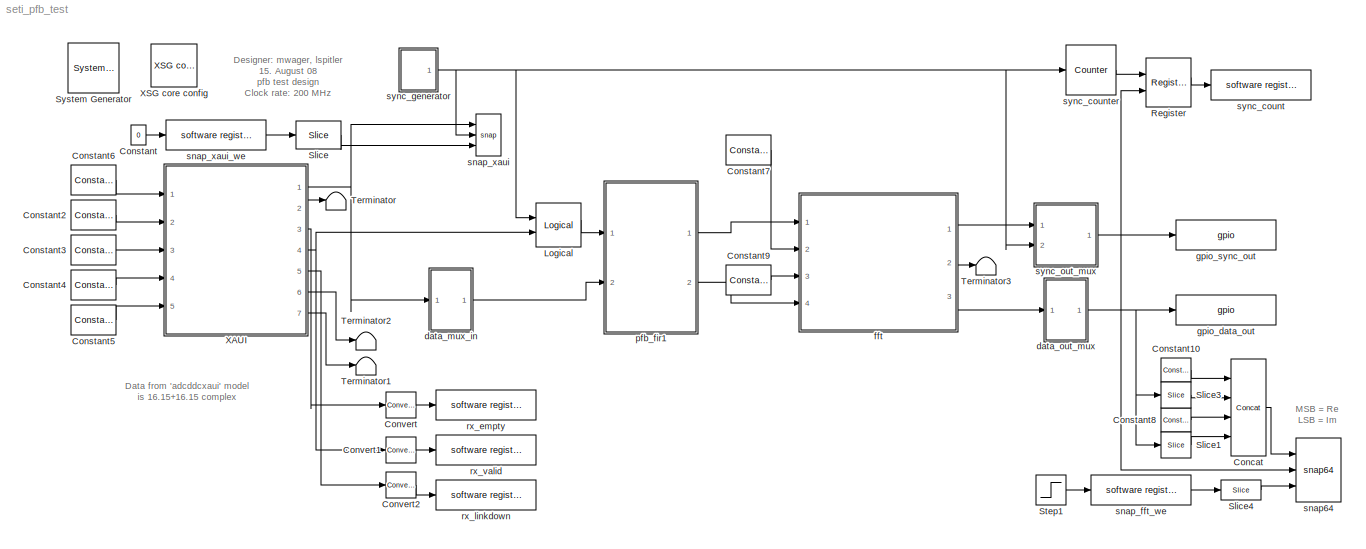
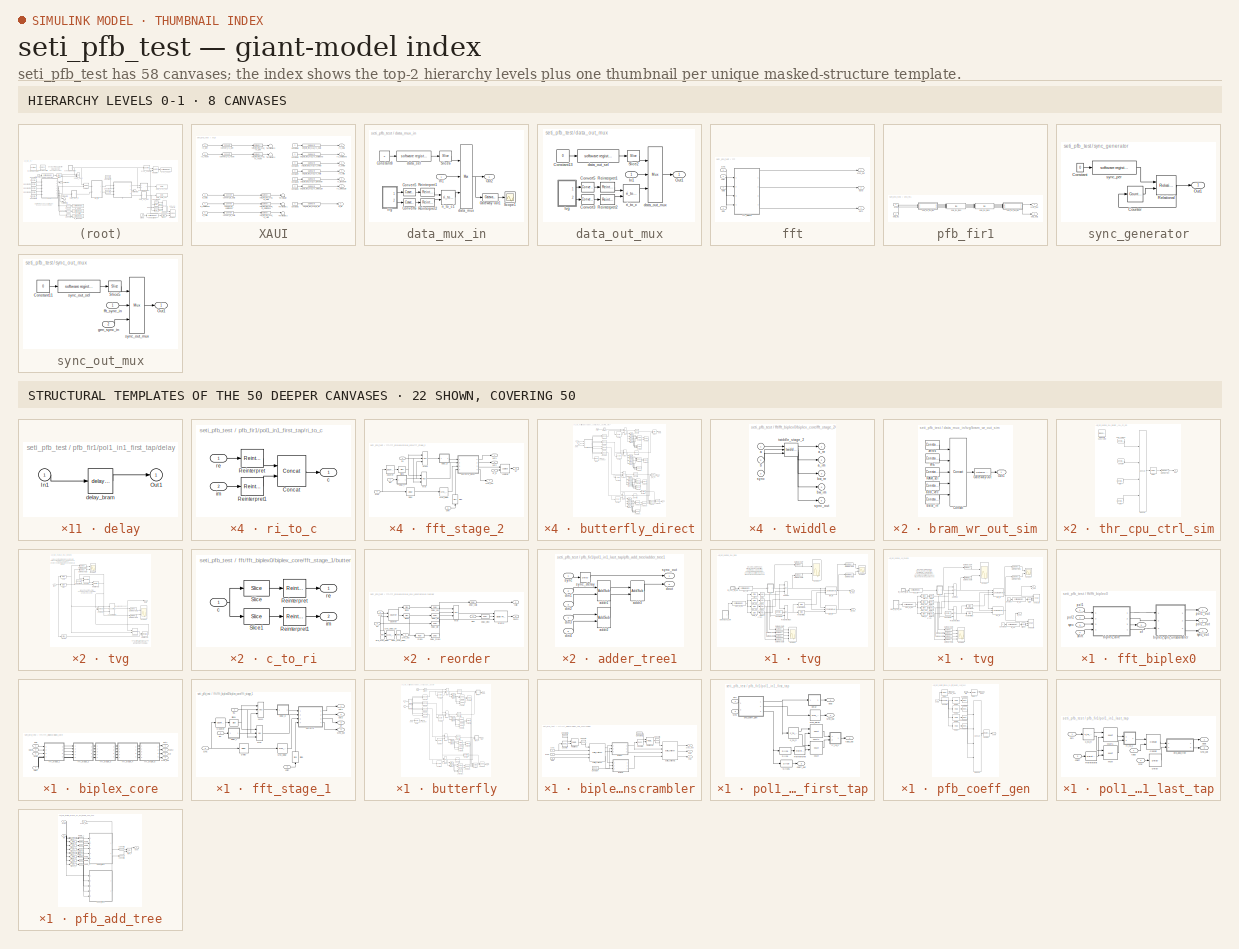
[diagram: thumbnail index - top-2 hierarchy levels (8 canvases) + 22 structural-template representatives of the remaining 50 canvases]
MODEL seti_pfb_test
KIND model
BLOCK [Reference]  System Generator  REF=xbsIndex_r3/ System Generator
  AttributesFormatString = System\\nGenerator
  Ports = []
  ShowPortLabels = on
  SourceBlock = xbsIndex_r3/ System Generator
  SourceType = Xilinx System Generator
  Tag = genX
  UserData = DataTag0
  UserDataPersistent = on
  core_generation = According to Block Masks
  dbl_ovrd = According to Block Masks
  deprecated_control = off
  directory = ./seti_pfb_test/sysgen
  eval_field = 0
  incr_netlist = off
  package = ff1704
  part = xc2vp70
  run_coregen = off
  simulink_period = 1
  speed = -7
  synthesis_tool = XST
  sysclk_period = 5
  testbench = off
  trim_vbits = Everywhere in SubSystem
  xilinxfamily = Virtex2P
BLOCK [Reference] Concat  REF=xbsIndex_r3/Concat
  Ports = [4, 1]
  SourceBlock = xbsIndex_r3/Concat
  SourceType = Xilinx Bus Concatenator
  dbl_ovrd = off
  explicit_period = on
  num_inputs = 4
  period = 1
BLOCK [Constant] Constant
  Value = 0
BLOCK [Reference] Constant10  REF=xbsIndex_r3/Constant
  Ports = [0, 1]
  SourceBlock = xbsIndex_r3/Constant
  SourceType = Xilinx Constant Block
  arith_type = Unsigned
  bin_pt = 0
  carry = CIN
  const = 0
  dbl_ovrd = off
  equ = P=C
  explicit_period = on
  inp1 = P
  inp2 = PCIN>>17
  iostate = 0
  n_bits = 14
  opr = +
  opselect = C
  period = 1
BLOCK [Reference] Constant2  REF=xbsIndex_r3/Constant
  Ports = [0, 1]
  SourceBlock = xbsIndex_r3/Constant
  SourceType = Xilinx Constant Block
  arith_type = Boolean
  bin_pt = 0
  carry = CIN
  const = 0
  dbl_ovrd = off
  equ = P=C
  explicit_period = on
  inp1 = P
  inp2 = PCIN>>17
  iostate = 0
  n_bits = 1
  opr = +
  opselect = C
  period = 1
BLOCK [Reference] Constant3  REF=xbsIndex_r3/Constant
  Ports = [0, 1]
  SourceBlock = xbsIndex_r3/Constant
  SourceType = Xilinx Constant Block
  arith_type = Unsigned
  bin_pt = 0
  carry = CIN
  const = 0
  dbl_ovrd = off
  equ = P=C
  explicit_period = on
  inp1 = P
  inp2 = PCIN>>17
  iostate = 0
  n_bits = 32
  opr = +
  opselect = C
  period = 1
BLOCK [Reference] Constant4  REF=xbsIndex_r3/Constant
  Ports = [0, 1]
  SourceBlock = xbsIndex_r3/Constant
  SourceType = Xilinx Constant Block
  arith_type = Unsigned
  bin_pt = 0
  carry = CIN
  const = 0
  dbl_ovrd = off
  equ = P=C
  explicit_period = on
  inp1 = P
  inp2 = PCIN>>17
  iostate = 0
  n_bits = 4
  opr = +
  opselect = C
  period = 1
BLOCK [Reference] Constant5  REF=xbsIndex_r3/Constant
  Ports = [0, 1]
  SourceBlock = xbsIndex_r3/Constant
  SourceType = Xilinx Constant Block
  arith_type = Boolean
  bin_pt = 0
  carry = CIN
  const = 0
  dbl_ovrd = off
  equ = P=C
  explicit_period = on
  inp1 = P
  inp2 = PCIN>>17
  iostate = 0
  n_bits = 1
  opr = +
  opselect = C
  period = 1
BLOCK [Reference] Constant6  REF=xbsIndex_r3/Constant
  Ports = [0, 1]
  SourceBlock = xbsIndex_r3/Constant
  SourceType = Xilinx Constant Block
  arith_type = Boolean
  bin_pt = 0
  carry = CIN
  const = 1
  dbl_ovrd = off
  equ = P=C
  explicit_period = on
  inp1 = P
  inp2 = PCIN>>17
  iostate = 0
  n_bits = 1
  opr = +
  opselect = C
  period = 1
BLOCK [Reference] Constant7  REF=xbsIndex_r3/Constant
  Ports = [0, 1]
  SourceBlock = xbsIndex_r3/Constant
  SourceType = Xilinx Constant Block
  arith_type = Signed  (2's comp)
  bin_pt = 0
  carry = CIN
  const = -1
  dbl_ovrd = off
  equ = P=C
  explicit_period = on
  inp1 = P
  inp2 = PCIN>>17
  iostate = 0
  n_bits = 18
  opr = +
  opselect = C
  period = 1
BLOCK [Reference] Constant8  REF=xbsIndex_r3/Constant
  Ports = [0, 1]
  SourceBlock = xbsIndex_r3/Constant
  SourceType = Xilinx Constant Block
  arith_type = Unsigned
  bin_pt = 0
  carry = CIN
  const = 0
  dbl_ovrd = off
  equ = P=C
  explicit_period = on
  inp1 = P
  inp2 = PCIN>>17
  iostate = 0
  n_bits = 14
  opr = +
  opselect = C
  period = 1
BLOCK [Reference] Constant9  REF=xbsIndex_r3/Constant
  Ports = [0, 1]
  SourceBlock = xbsIndex_r3/Constant
  SourceType = Xilinx Constant Block
  arith_type = Unsigned
  bin_pt = 0
  carry = CIN
  const = 0
  dbl_ovrd = off
  equ = P=C
  explicit_period = on
  inp1 = P
  inp2 = PCIN>>17
  iostate = 0
  n_bits = 36
  opr = +
  opselect = C
  period = 1
BLOCK [Reference] Convert  REF=xbsIndex_r3/Convert
  Ports = [1, 1]
  SourceBlock = xbsIndex_r3/Convert
  SourceType = Xilinx Converter Block
  arith_type = Unsigned
  bin_pt = 0
  dbl_ovrd = off
  explicit_period = on
  inserted_by_tool = off
  latency = 0
  n_bits = 32
  overflow = Wrap
  period = 1
  pipeline = off
  quantization = Truncate
  show_param = off
  xl_area = [0, 0, 0, 0, 0, 0, 0]
  xl_use_area = off
BLOCK [Reference] Convert1  REF=xbsIndex_r3/Convert
  Ports = [1, 1]
  SourceBlock = xbsIndex_r3/Convert
  SourceType = Xilinx Converter Block
  arith_type = Unsigned
  bin_pt = 0
  dbl_ovrd = off
  explicit_period = on
  inserted_by_tool = off
  latency = 0
  n_bits = 32
  overflow = Wrap
  period = 1
  pipeline = off
  quantization = Truncate
  show_param = off
  xl_area = [0, 0, 0, 0, 0, 0, 0]
  xl_use_area = off
BLOCK [Reference] Convert2  REF=xbsIndex_r3/Convert
  Ports = [1, 1]
  SourceBlock = xbsIndex_r3/Convert
  SourceType = Xilinx Converter Block
  arith_type = Unsigned
  bin_pt = 0
  dbl_ovrd = off
  explicit_period = on
  inserted_by_tool = off
  latency = 0
  n_bits = 32
  overflow = Wrap
  period = 1
  pipeline = off
  quantization = Truncate
  show_param = off
  xl_area = [0, 0, 0, 0, 0, 0, 0]
  xl_use_area = off
BLOCK [Reference] Logical  REF=xbsIndex_r3/Logical
  Ports = [2, 1]
  SourceBlock = xbsIndex_r3/Logical
  SourceType = Xilinx Logical Block
  align_bp = on
  arith_type = Unsigned
  bin_pt = 2
  dbl_ovrd = off
  en = off
  explicit_period = on
  inputs = 2
  latency = 0
  logical_function = AND
  n_bits = 8
  period = 1
  precision = Full
  show_param = off
  xl_area = [0, 0, 0, 0, 0, 0, 0]
  xl_use_area = off
BLOCK [Reference] Register  REF=xbsIndex_r3/Register
  Ports = [2, 1]
  SourceBlock = xbsIndex_r3/Register
  SourceType = Xilinx Register Block
  dbl_ovrd = off
  en = on
  explicit_period = off
  init = 0
  out_en = off
  period = 1
  reg_only_valid = off
  rst = off
  show_param = off
  xl_area = [0, 0, 0, 0, 0, 0, 0]
  xl_use_area = off
BLOCK [Reference] Slice  REF=xbsIndex_r3/Slice
  Ports = [1, 1]
  SourceBlock = xbsIndex_r3/Slice
  SourceType = Xilinx Slice Block
  base0 = LSB of Input
  base1 = MSB of Input
  bit0 = 0
  bit1 = 0
  boolean_output = on
  dbl_ovrd = off
  explicit_period = on
  mode = Lower Bit Location + Width
  nbits = 1
  period = 1
BLOCK [Reference] Slice1  REF=xbsIndex_r3/Slice
  Ports = [1, 1]
  SourceBlock = xbsIndex_r3/Slice
  SourceType = Xilinx Slice Block
  base0 = LSB of Input
  base1 = MSB of Input
  bit0 = 0
  bit1 = 0
  boolean_output = off
  dbl_ovrd = off
  explicit_period = off
  mode = Lower Bit Location + Width
  nbits = 18
  period = 1
BLOCK [Reference] Slice3  REF=xbsIndex_r3/Slice
  Ports = [1, 1]
  SourceBlock = xbsIndex_r3/Slice
  SourceType = Xilinx Slice Block
  base0 = LSB of Input
  base1 = MSB of Input
  bit0 = 18
  bit1 = 0
  boolean_output = off
  dbl_ovrd = off
  explicit_period = off
  mode = Upper Bit Location + Width
  nbits = 18
  period = 1
BLOCK [Reference] Slice4  REF=xbsIndex_r3/Slice
  Ports = [1, 1]
  SourceBlock = xbsIndex_r3/Slice
  SourceType = Xilinx Slice Block
  base0 = LSB of Input
  base1 = MSB of Input
  bit0 = 0
  bit1 = 0
  boolean_output = on
  dbl_ovrd = off
  explicit_period = off
  mode = Lower Bit Location + Width
  nbits = 1
  period = 1
BLOCK [Step] Step1
  SampleTime = 0
BLOCK [Terminator] Terminator
BLOCK [Terminator] Terminator1
BLOCK [Terminator] Terminator2
BLOCK [Terminator] Terminator3
BLOCK [SubSystem] XAUI
  AncestorBlock = xps_library/XAUI
  MaskCallbackString = ||myname=gcb;\nif strcmp(get_param(myname, 'show_param'), 'on')\n    set_param(myname, 'MaskVisibilities', {'on','on','on','on','on'});\nelse\n    set_param(myname, 'MaskVisibilities', {'on','on','on','off','off'});\nend||
  MaskDescription = XAUI block for sending and receiving point-to-point, streaming data over the BEE2 and iBOB's CX4 connectors. NOTE: A new version of this block is in development.
  MaskEnableString = on,on,on,on,on
  MaskHelp = eval('xlWeb([getenv(''MLIB_ROOT''), ''<path>''])')
  MaskIconFrame = on
  MaskIconOpaque = on
  MaskIconRotate = none
  MaskIconUnits = autoscale
  MaskInitialization = xaui_mask;
  MaskPromptString = Demux|Port|---------------------- Show Implementation Parameters -----------------------------------------------------------------------------------|Pre-emphasis|Differential swing
  MaskSelfModifiable = on
  MaskStyleString = popup(1|2),popup(iBOB:0|iBOB:1|BEE2_ctrl:0|BEE2_ctrl:1|BEE2_usr:0|BEE2_usr:1|BEE2_usr:2|BEE2_usr:3|CORR:0),checkbox,popup(0|1|2|3),popup(400|500|600|700|800)
  MaskTabNameString = ,,,,
  MaskToolTipString = on,on,on,on,on
  MaskTunableValueString = off,off,off,off,off
  MaskType = xaui
  MaskValueString = 2|BEE2_usr:0|off|3|800
  MaskVarAliasString = ,,,,
  MaskVariables = demux=@1;port=@2;show_param=&3;pre_emph=@4;swing=@5;
  MaskVisibilityString = on,on,on,off,off
  MinAlgLoopOccurrences = off
  Ports = [5, 7]
  RTWSystemCode = Auto
  Tag = xps:xaui
  TreatAsAtomicUnit = off
BLOCK [Constant] XAUI/Constant1
  Value = 0
BLOCK [Constant] XAUI/Constant2
  Value = 0
BLOCK [Constant] XAUI/Constant3
  Value = 0
BLOCK [Constant] XAUI/Constant4
  Value = 0
BLOCK [Constant] XAUI/Constant5
  Value = 0
BLOCK [Constant] XAUI/Constant6
  Value = 0
BLOCK [Constant] XAUI/Constant7
  Value = 0
BLOCK [Terminator] XAUI/Terminator
BLOCK [Terminator] XAUI/Terminator1
BLOCK [Terminator] XAUI/Terminator2
BLOCK [Terminator] XAUI/Terminator3
BLOCK [Terminator] XAUI/Terminator4
BLOCK [Reference] XAUI/convert_rx_get  REF=xbsIndex_r3/Convert
  Ports = [1, 1]
  SourceBlock = xbsIndex_r3/Convert
  SourceType = Xilinx Converter Block
  arith_type = Boolean
  bin_pt = 0
  dbl_ovrd = off
  explicit_period = off
  inserted_by_tool = off
  latency = 0
  n_bits = 64
  overflow = Wrap
  period = 1
  pipeline = off
  quantization = Truncate
  show_param = off
  xl_area = [0, 0, 0, 0, 0, 0, 0]
  xl_use_area = off
BLOCK [Reference] XAUI/convert_rx_reset  REF=xbsIndex_r3/Convert
  Ports = [1, 1]
  SourceBlock = xbsIndex_r3/Convert
  SourceType = Xilinx Converter Block
  arith_type = Boolean
  bin_pt = 0
  dbl_ovrd = off
  explicit_period = off
  inserted_by_tool = off
  latency = 0
  n_bits = 1
  overflow = Wrap
  period = 1
  pipeline = off
  quantization = Truncate
  show_param = off
  xl_area = [0, 0, 0, 0, 0, 0, 0]
  xl_use_area = off
BLOCK [Reference] XAUI/convert_tx_data  REF=xbsIndex_r3/Convert
  Ports = [1, 1]
  SourceBlock = xbsIndex_r3/Convert
  SourceType = Xilinx Converter Block
  arith_type = Unsigned
  bin_pt = 0
  dbl_ovrd = off
  explicit_period = off
  inserted_by_tool = off
  latency = 0
  n_bits = 32
  overflow = Wrap
  period = 1
  pipeline = off
  quantization = Truncate
  show_param = off
  xl_area = [0, 0, 0, 0, 0, 0, 0]
  xl_use_area = off
BLOCK [Reference] XAUI/convert_tx_outofband  REF=xbsIndex_r3/Convert
  Ports = [1, 1]
  SourceBlock = xbsIndex_r3/Convert
  SourceType = Xilinx Converter Block
  arith_type = Unsigned
  bin_pt = 0
  dbl_ovrd = off
  explicit_period = off
  inserted_by_tool = off
  latency = 0
  n_bits = 4
  overflow = Wrap
  period = 1
  pipeline = off
  quantization = Truncate
  show_param = off
  xl_area = [0, 0, 0, 0, 0, 0, 0]
  xl_use_area = off
BLOCK [Reference] XAUI/convert_tx_valid  REF=xbsIndex_r3/Convert
  Ports = [1, 1]
  SourceBlock = xbsIndex_r3/Convert
  SourceType = Xilinx Converter Block
  arith_type = Boolean
  bin_pt = 0
  dbl_ovrd = off
  explicit_period = off
  inserted_by_tool = off
  latency = 0
  n_bits = 1
  overflow = Wrap
  period = 1
  pipeline = off
  quantization = Truncate
  show_param = off
  xl_area = [0, 0, 0, 0, 0, 0, 0]
  xl_use_area = off
BLOCK [Outport] XAUI/rx_almost_full
  BusOutputAsStruct = off
  IconDisplay = Port number
  Port = 7
BLOCK [Outport] XAUI/rx_data
  BusOutputAsStruct = off
  IconDisplay = Port number
BLOCK [Outport] XAUI/rx_empty
  BusOutputAsStruct = off
  IconDisplay = Port number
  Port = 3
BLOCK [Inport] XAUI/rx_get
  IconDisplay = Port number
  LatchInput = off
  Port = 1
BLOCK [Outport] XAUI/rx_linkdown
  BusOutputAsStruct = off
  IconDisplay = Port number
  Port = 5
BLOCK [Outport] XAUI/rx_outofband
  BusOutputAsStruct = off
  IconDisplay = Port number
  Port = 2
BLOCK [Inport] XAUI/rx_reset
  IconDisplay = Port number
  LatchInput = off
  Port = 2
BLOCK [Outport] XAUI/rx_valid
  BusOutputAsStruct = off
  IconDisplay = Port number
  Port = 4
BLOCK [Reference] XAUI/seti_pfb_test_XAUI_rx_almost_full  REF=xbsIndex_r3/Gateway In
  LOCs = {}
  Ports = [1, 1]
  SourceBlock = xbsIndex_r3/Gateway In
  SourceType = Xilinx Gateway In
  arith_type = Boolean
  bin_pt = 0
  dbl_ovrd = off
  locs_specified = off
  n_bits = 1
  needs_fixed_name = off
  overflow = Wrap
  period = 1
  quantization = Truncate
  show_param = off
  timing_constraint = None
  xl_area = [0, 0, 0, 0, 0, 0, 0]
  xl_use_area = off
BLOCK [Reference] XAUI/seti_pfb_test_XAUI_rx_data  REF=xbsIndex_r3/Gateway In
  LOCs = {}
  Ports = [1, 1]
  SourceBlock = xbsIndex_r3/Gateway In
  SourceType = Xilinx Gateway In
  arith_type = Unsigned
  bin_pt = 0
  dbl_ovrd = off
  locs_specified = off
  n_bits = 32
  needs_fixed_name = off
  overflow = Wrap
  period = 1
  quantization = Truncate
  show_param = off
  timing_constraint = None
  xl_area = [0, 0, 0, 0, 0, 0, 0]
  xl_use_area = off
BLOCK [Reference] XAUI/seti_pfb_test_XAUI_rx_empty  REF=xbsIndex_r3/Gateway In
  LOCs = {}
  Ports = [1, 1]
  SourceBlock = xbsIndex_r3/Gateway In
  SourceType = Xilinx Gateway In
  arith_type = Boolean
  bin_pt = 0
  dbl_ovrd = off
  locs_specified = off
  n_bits = 1
  needs_fixed_name = off
  overflow = Wrap
  period = 1
  quantization = Truncate
  show_param = off
  timing_constraint = None
  xl_area = [0, 0, 0, 0, 0, 0, 0]
  xl_use_area = off
BLOCK [Reference] XAUI/seti_pfb_test_XAUI_rx_get  REF=xbsIndex_r3/Gateway Out
  LOCs = {}
  Ports = [1, 1]
  SourceBlock = xbsIndex_r3/Gateway Out
  SourceType = Xilinx Gateway Out
  arith_type = Boolean
  bin_pt = 6
  hdl_port = on
  locs_specified = off
  nbits = 8
  needs_fixed_name = off
  output_type = Double
  overflow = Wrap
  quantization = Truncate
  show_param = off
  timing_constraint = None
  xl_area = [0, 0, 0, 0, 0, 0, 0]
  xl_use_area = off
BLOCK [Reference] XAUI/seti_pfb_test_XAUI_rx_linkdown  REF=xbsIndex_r3/Gateway In
  LOCs = {}
  Ports = [1, 1]
  SourceBlock = xbsIndex_r3/Gateway In
  SourceType = Xilinx Gateway In
  arith_type = Boolean
  bin_pt = 0
  dbl_ovrd = off
  locs_specified = off
  n_bits = 1
  needs_fixed_name = off
  overflow = Wrap
  period = 1
  quantization = Truncate
  show_param = off
  timing_constraint = None
  xl_area = [0, 0, 0, 0, 0, 0, 0]
  xl_use_area = off
BLOCK [Reference] XAUI/seti_pfb_test_XAUI_rx_outofband  REF=xbsIndex_r3/Gateway In
  LOCs = {}
  Ports = [1, 1]
  SourceBlock = xbsIndex_r3/Gateway In
  SourceType = Xilinx Gateway In
  arith_type = Unsigned
  bin_pt = 0
  dbl_ovrd = off
  locs_specified = off
  n_bits = 4
  needs_fixed_name = off
  overflow = Wrap
  period = 1
  quantization = Truncate
  show_param = off
  timing_constraint = None
  xl_area = [0, 0, 0, 0, 0, 0, 0]
  xl_use_area = off
BLOCK [Reference] XAUI/seti_pfb_test_XAUI_rx_reset  REF=xbsIndex_r3/Gateway Out
  LOCs = {}
  Ports = [1, 1]
  SourceBlock = xbsIndex_r3/Gateway Out
  SourceType = Xilinx Gateway Out
  arith_type = Boolean
  bin_pt = 6
  hdl_port = on
  locs_specified = off
  nbits = 8
  needs_fixed_name = off
  output_type = Double
  overflow = Wrap
  quantization = Truncate
  show_param = off
  timing_constraint = None
  xl_area = [0, 0, 0, 0, 0, 0, 0]
  xl_use_area = off
BLOCK [Reference] XAUI/seti_pfb_test_XAUI_rx_valid  REF=xbsIndex_r3/Gateway In
  LOCs = {}
  Ports = [1, 1]
  SourceBlock = xbsIndex_r3/Gateway In
  SourceType = Xilinx Gateway In
  arith_type = Boolean
  bin_pt = 0
  dbl_ovrd = off
  locs_specified = off
  n_bits = 1
  needs_fixed_name = off
  overflow = Wrap
  period = 1
  quantization = Truncate
  show_param = off
  timing_constraint = None
  xl_area = [0, 0, 0, 0, 0, 0, 0]
  xl_use_area = off
BLOCK [Reference] XAUI/seti_pfb_test_XAUI_tx_data  REF=xbsIndex_r3/Gateway Out
  LOCs = {}
  Ports = [1, 1]
  SourceBlock = xbsIndex_r3/Gateway Out
  SourceType = Xilinx Gateway Out
  arith_type = Boolean
  bin_pt = 6
  hdl_port = on
  locs_specified = off
  nbits = 8
  needs_fixed_name = off
  output_type = Double
  overflow = Wrap
  quantization = Truncate
  show_param = off
  timing_constraint = None
  xl_area = [0, 0, 0, 0, 0, 0, 0]
  xl_use_area = off
BLOCK [Reference] XAUI/seti_pfb_test_XAUI_tx_full  REF=xbsIndex_r3/Gateway In
  LOCs = {}
  Ports = [1, 1]
  SourceBlock = xbsIndex_r3/Gateway In
  SourceType = Xilinx Gateway In
  arith_type = Boolean
  bin_pt = 0
  dbl_ovrd = off
  locs_specified = off
  n_bits = 1
  needs_fixed_name = off
  overflow = Wrap
  period = 1
  quantization = Truncate
  show_param = off
  timing_constraint = None
  xl_area = [0, 0, 0, 0, 0, 0, 0]
  xl_use_area = off
BLOCK [Reference] XAUI/seti_pfb_test_XAUI_tx_outofband  REF=xbsIndex_r3/Gateway Out
  LOCs = {}
  Ports = [1, 1]
  SourceBlock = xbsIndex_r3/Gateway Out
  SourceType = Xilinx Gateway Out
  arith_type = Boolean
  bin_pt = 6
  hdl_port = on
  locs_specified = off
  nbits = 8
  needs_fixed_name = off
  output_type = Double
  overflow = Wrap
  quantization = Truncate
  show_param = off
  timing_constraint = None
  xl_area = [0, 0, 0, 0, 0, 0, 0]
  xl_use_area = off
BLOCK [Reference] XAUI/seti_pfb_test_XAUI_tx_valid  REF=xbsIndex_r3/Gateway Out
  LOCs = {}
  Ports = [1, 1]
  SourceBlock = xbsIndex_r3/Gateway Out
  SourceType = Xilinx Gateway Out
  arith_type = Boolean
  bin_pt = 6
  hdl_port = on
  locs_specified = off
  nbits = 8
  needs_fixed_name = off
  output_type = Double
  overflow = Wrap
  quantization = Truncate
  show_param = off
  timing_constraint = None
  xl_area = [0, 0, 0, 0, 0, 0, 0]
  xl_use_area = off
BLOCK [Inport] XAUI/tx_data
  IconDisplay = Port number
  LatchInput = off
  Port = 3
BLOCK [Outport] XAUI/tx_full
  BusOutputAsStruct = off
  IconDisplay = Port number
  Port = 6
BLOCK [Inport] XAUI/tx_outofband
  IconDisplay = Port number
  LatchInput = off
  Port = 4
BLOCK [Inport] XAUI/tx_valid
  IconDisplay = Port number
  LatchInput = off
  Port = 5
BLOCK [Reference] XSG core config  REF=xps_library/XSG core config  (lib defined in mdl_00b5cec29cd0, mdl_02ab6ecaa3d1, +5 more)
  Ports = []
  ShowPortLabels = on
  SourceBlock = xps_library/XSG core config
  SourceType = xsg core config
  Tag = xps:xsg
  clk_rate = 200
  clk_src = usr_clk2x
  gpio_clk_bit_index = 0
  gpio_clk_io_group = iBOB:sma
  hw_sys = BEE2_usr
  ibob_linux = off
  mpc_type = powerpc405
  sample_period = 1
  synthesis_tool = XST
BLOCK [SubSystem] data_mux_in
  MaskIconFrame = on
  MaskIconOpaque = on
  MaskIconRotate = none
  MaskIconUnits = autoscale
  MaskValueString = 0
  MinAlgLoopOccurrences = off
  Ports = [1, 1]
  RTWSystemCode = Auto
  TreatAsAtomicUnit = off
BLOCK [Constant] data_mux_in/Constant8
  Value = 0
BLOCK [Reference] data_mux_in/Convert5  REF=xbsIndex_r3/Convert
  Ports = [1, 1]
  SourceBlock = xbsIndex_r3/Convert
  SourceType = Xilinx Converter Block
  arith_type = Unsigned
  bin_pt = 0
  dbl_ovrd = off
  explicit_period = on
  inserted_by_tool = off
  latency = 0
  n_bits = 16
  overflow = Wrap
  period = 1
  pipeline = off
  quantization = Truncate
  show_param = off
  xl_area = [0, 0, 0, 0, 0, 0, 0]
  xl_use_area = off
BLOCK [Reference] data_mux_in/Convert6  REF=xbsIndex_r3/Convert
  Ports = [1, 1]
  SourceBlock = xbsIndex_r3/Convert
  SourceType = Xilinx Converter Block
  arith_type = Unsigned
  bin_pt = 0
  dbl_ovrd = off
  explicit_period = on
  inserted_by_tool = off
  latency = 0
  n_bits = 16
  overflow = Wrap
  period = 1
  pipeline = off
  quantization = Truncate
  show_param = off
  xl_area = [0, 0, 0, 0, 0, 0, 0]
  xl_use_area = off
BLOCK [Reference] data_mux_in/Gateway Out1  REF=xbsIndex_r3/Gateway Out
  LOCs = {}
  Ports = [1, 1]
  SourceBlock = xbsIndex_r3/Gateway Out
  SourceType = Xilinx Gateway Out
  arith_type = Boolean
  bin_pt = 6
  hdl_port = on
  locs_specified = off
  nbits = 8
  needs_fixed_name = off
  output_type = Double
  overflow = Wrap
  quantization = Truncate
  show_param = off
  timing_constraint = None
  xl_area = [0, 0, 0, 0, 0, 0, 0]
  xl_use_area = off
BLOCK [Inport] data_mux_in/In1
  IconDisplay = Port number
  LatchInput = off
  Port = 1
BLOCK [Outport] data_mux_in/Out2
  BusOutputAsStruct = off
  IconDisplay = Port number
BLOCK [Reference] data_mux_in/Reinterpret1  REF=xbsIndex_r3/Reinterpret
  Ports = [1, 1]
  SourceBlock = xbsIndex_r3/Reinterpret
  SourceType = Xilinx Type Reinterpreting Block
  arith_type = Signed  (2's comp)
  bin_pt = 15
  force_arith_type = on
  force_bin_pt = on
  force_valid = on
BLOCK [Reference] data_mux_in/Reinterpret2  REF=xbsIndex_r3/Reinterpret
  Ports = [1, 1]
  SourceBlock = xbsIndex_r3/Reinterpret
  SourceType = Xilinx Type Reinterpreting Block
  arith_type = Signed  (2's comp)
  bin_pt = 15
  force_arith_type = on
  force_bin_pt = on
  force_valid = on
BLOCK [Scope] data_mux_in/Scope1
  DataFormat = StructureWithTime
  NumInputPorts = 1
  Ports = [1]
  SaveName = ScopeData5
BLOCK [Reference] data_mux_in/Slice6  REF=xbsIndex_r3/Slice
  Ports = [1, 1]
  SourceBlock = xbsIndex_r3/Slice
  SourceType = Xilinx Slice Block
  base0 = LSB of Input
  base1 = MSB of Input
  bit0 = 0
  bit1 = 0
  boolean_output = off
  dbl_ovrd = off
  explicit_period = off
  mode = Lower Bit Location + Width
  nbits = 1
  period = 1
BLOCK [Reference] data_mux_in/data_mux  REF=xbsIndex_r3/Mux
  Ports = [3, 1]
  SourceBlock = xbsIndex_r3/Mux
  SourceType = Xilinx Multiplexer Block
  arith_type = Signed  (2's comp)
  bin_pt = 2
  dbl_ovrd = off
  en = off
  explicit_period = on
  gen_core = off
  inputs = 2
  latency = 0
  mux_type = off
  n_bits = 8
  overflow = Wrap
  period = 1
  precision = Full
  quantization = Truncate
  show_param = off
  use_rpm = off
  xl_area = [0, 0, 0, 0, 0, 0, 0]
  xl_use_area = off
BLOCK [Reference] data_mux_in/data_sel  REF=xps_library/software register  (lib defined in mdl_00b5cec29cd0, mdl_02ab6ecaa3d1, +5 more)
  Ports = [1, 1]
  ShowPortLabels = on
  SourceBlock = xps_library/software register
  Tag = xps:sw_reg
  arith_type = Unsigned
  bin_pt = 0
  bitwidth = 32
  gw_name = seti_pfb_test_data_mux_in_data_sel_user_data_out
  io_dir = From Processor
  sample_period = 1
BLOCK [Reference] data_mux_in/ri_to_c1  REF=casper_library/Misc/ri_to_c  (lib defined in mdl_138b2fc3435f, mdl_4ed325b712b3, +2 more)
  Ports = [2, 1]
  ShowPortLabels = on
  SourceBlock = casper_library/Misc/ri_to_c
  SourceType = ri_to_c
  UserData = DataTag1
  UserDataPersistent = on
BLOCK [SubSystem] data_mux_in/tvg
  MinAlgLoopOccurrences = off
  Ports = [0, 2]
  RTWSystemCode = Auto
  TreatAsAtomicUnit = off
BLOCK [Reference] data_mux_in/tvg/Constant3  REF=xbsIndex_r3/Constant
  Ports = [0, 1]
  SourceBlock = xbsIndex_r3/Constant
  SourceType = Xilinx Constant Block
  arith_type = Unsigned
  bin_pt = 0
  carry = CIN
  const = 0
  dbl_ovrd = off
  equ = P=C
  explicit_period = on
  inp1 = P
  inp2 = PCIN>>17
  iostate = 0
  n_bits = 4
  opr = +
  opselect = C
  period = 1
BLOCK [Reference] data_mux_in/tvg/Delay  REF=xbsIndex_r3/Delay
  Ports = [1, 1]
  SourceBlock = xbsIndex_r3/Delay
  SourceType = Xilinx Delay Block
  accept_only_valid = off
  dbl_ovrd = off
  en = off
  explicit_period = on
  init_zero = on
  latency = 1
  period = 1
  reg_retiming = off
  show_param = off
  xl_area = [0, 0, 0, 0, 0, 0, 0]
  xl_use_area = off
BLOCK [Reference] data_mux_in/tvg/Delay1  REF=xbsIndex_r3/Delay
  Ports = [1, 1]
  SourceBlock = xbsIndex_r3/Delay
  SourceType = Xilinx Delay Block
  accept_only_valid = off
  dbl_ovrd = off
  en = off
  explicit_period = on
  init_zero = on
  latency = 1
  period = 1
  reg_retiming = off
  show_param = off
  xl_area = [0, 0, 0, 0, 0, 0, 0]
  xl_use_area = off
BLOCK [Reference] data_mux_in/tvg/Delay2  REF=xbsIndex_r3/Delay
  Ports = [1, 1]
  SourceBlock = xbsIndex_r3/Delay
  SourceType = Xilinx Delay Block
  accept_only_valid = off
  dbl_ovrd = off
  en = off
  explicit_period = on
  init_zero = on
  latency = 1
  period = 1
  reg_retiming = off
  show_param = off
  xl_area = [0, 0, 0, 0, 0, 0, 0]
  xl_use_area = off
BLOCK [Reference] data_mux_in/tvg/Delay3  REF=xbsIndex_r3/Delay
  Ports = [1, 1]
  SourceBlock = xbsIndex_r3/Delay
  SourceType = Xilinx Delay Block
  accept_only_valid = off
  dbl_ovrd = off
  en = off
  explicit_period = on
  init_zero = on
  latency = 1
  period = 1
  reg_retiming = off
  show_param = off
  xl_area = [0, 0, 0, 0, 0, 0, 0]
  xl_use_area = off
BLOCK [Reference] data_mux_in/tvg/Gateway Out1  REF=xbsIndex_r3/Gateway Out
  LOCs = {}
  Ports = [1, 1]
  SourceBlock = xbsIndex_r3/Gateway Out
  SourceType = Xilinx Gateway Out
  arith_type = Boolean
  bin_pt = 6
  hdl_port = on
  locs_specified = off
  nbits = 8
  needs_fixed_name = off
  output_type = Double
  overflow = Wrap
  quantization = Truncate
  show_param = off
  timing_constraint = None
  xl_area = [0, 0, 0, 0, 0, 0, 0]
  xl_use_area = off
BLOCK [Reference] data_mux_in/tvg/Gateway Out2  REF=xbsIndex_r3/Gateway Out
  LOCs = {}
  Ports = [1, 1]
  SourceBlock = xbsIndex_r3/Gateway Out
  SourceType = Xilinx Gateway Out
  arith_type = Boolean
  bin_pt = 6
  hdl_port = on
  locs_specified = off
  nbits = 8
  needs_fixed_name = off
  output_type = Double
  overflow = Wrap
  quantization = Truncate
  show_param = off
  timing_constraint = None
  xl_area = [0, 0, 0, 0, 0, 0, 0]
  xl_use_area = off
BLOCK [Reference] data_mux_in/tvg/Gateway Out3  REF=xbsIndex_r3/Gateway Out
  LOCs = {}
  Ports = [1, 1]
  SourceBlock = xbsIndex_r3/Gateway Out
  SourceType = Xilinx Gateway Out
  arith_type = Boolean
  bin_pt = 6
  hdl_port = on
  locs_specified = off
  nbits = 8
  needs_fixed_name = off
  output_type = Double
  overflow = Wrap
  quantization = Truncate
  show_param = off
  timing_constraint = None
  xl_area = [0, 0, 0, 0, 0, 0, 0]
  xl_use_area = off
BLOCK [Reference] data_mux_in/tvg/Gateway Out4  REF=xbsIndex_r3/Gateway Out
  LOCs = {}
  Ports = [1, 1]
  SourceBlock = xbsIndex_r3/Gateway Out
  SourceType = Xilinx Gateway Out
  arith_type = Boolean
  bin_pt = 6
  hdl_port = on
  locs_specified = off
  nbits = 8
  needs_fixed_name = off
  output_type = Double
  overflow = Wrap
  quantization = Truncate
  show_param = off
  timing_constraint = None
  xl_area = [0, 0, 0, 0, 0, 0, 0]
  xl_use_area = off
BLOCK [Reference] data_mux_in/tvg/Gateway Out5  REF=xbsIndex_r3/Gateway Out
  LOCs = {}
  Ports = [1, 1]
  SourceBlock = xbsIndex_r3/Gateway Out
  SourceType = Xilinx Gateway Out
  arith_type = Boolean
  bin_pt = 6
  hdl_port = on
  locs_specified = off
  nbits = 8
  needs_fixed_name = off
  output_type = Double
  overflow = Wrap
  quantization = Truncate
  show_param = off
  timing_constraint = None
  xl_area = [0, 0, 0, 0, 0, 0, 0]
  xl_use_area = off
BLOCK [Reference] data_mux_in/tvg/Gateway Out6  REF=xbsIndex_r3/Gateway Out
  LOCs = {}
  Ports = [1, 1]
  SourceBlock = xbsIndex_r3/Gateway Out
  SourceType = Xilinx Gateway Out
  arith_type = Boolean
  bin_pt = 6
  hdl_port = on
  locs_specified = off
  nbits = 8
  needs_fixed_name = off
  output_type = Double
  overflow = Wrap
  quantization = Truncate
  show_param = off
  timing_constraint = None
  xl_area = [0, 0, 0, 0, 0, 0, 0]
  xl_use_area = off
BLOCK [Reference] data_mux_in/tvg/Gateway Out7  REF=xbsIndex_r3/Gateway Out
  LOCs = {}
  Ports = [1, 1]
  SourceBlock = xbsIndex_r3/Gateway Out
  SourceType = Xilinx Gateway Out
  arith_type = Boolean
  bin_pt = 6
  hdl_port = on
  locs_specified = off
  nbits = 8
  needs_fixed_name = off
  output_type = Double
  overflow = Wrap
  quantization = Truncate
  show_param = off
  timing_constraint = None
  xl_area = [0, 0, 0, 0, 0, 0, 0]
  xl_use_area = off
BLOCK [Reference] data_mux_in/tvg/Gateway Out8  REF=xbsIndex_r3/Gateway Out
  LOCs = {}
  Ports = [1, 1]
  SourceBlock = xbsIndex_r3/Gateway Out
  SourceType = Xilinx Gateway Out
  arith_type = Boolean
  bin_pt = 6
  hdl_port = on
  locs_specified = off
  nbits = 8
  needs_fixed_name = off
  output_type = Double
  overflow = Wrap
  quantization = Truncate
  show_param = off
  timing_constraint = None
  xl_area = [0, 0, 0, 0, 0, 0, 0]
  xl_use_area = off
BLOCK [Reference] data_mux_in/tvg/RAM sel  Re (0)  REF=xbsIndex_r3/Slice
  Ports = [1, 1]
  SourceBlock = xbsIndex_r3/Slice
  SourceType = Xilinx Slice Block
  base0 = LSB of Input
  base1 = MSB of Input
  bit0 = 0
  bit1 = 0
  boolean_output = on
  dbl_ovrd = off
  explicit_period = on
  mode = Lower Bit Location + Width
  nbits = 1
  period = 1
BLOCK [Reference] data_mux_in/tvg/RAM sel Im (1)  REF=xbsIndex_r3/Slice
  Ports = [1, 1]
  SourceBlock = xbsIndex_r3/Slice
  SourceType = Xilinx Slice Block
  base0 = LSB of Input
  base1 = MSB of Input
  bit0 = 1
  bit1 = 0
  boolean_output = on
  dbl_ovrd = off
  explicit_period = on
  mode = Lower Bit Location + Width
  nbits = 1
  period = 1
BLOCK [Reference] data_mux_in/tvg/RAM select mux  REF=xbsIndex_r3/Mux
  Ports = [3, 1]
  SourceBlock = xbsIndex_r3/Mux
  SourceType = Xilinx Multiplexer Block
  arith_type = Signed  (2's comp)
  bin_pt = 2
  dbl_ovrd = off
  en = off
  explicit_period = on
  gen_core = off
  inputs = 2
  latency = 0
  mux_type = off
  n_bits = 8
  overflow = Wrap
  period = 1
  precision = Full
  quantization = Truncate
  show_param = off
  use_rpm = off
  xl_area = [0, 0, 0, 0, 0, 0, 0]
  xl_use_area = off
BLOCK [Reference] data_mux_in/tvg/RAM_sel  REF=xbsIndex_r3/Slice
  Ports = [1, 1]
  SourceBlock = xbsIndex_r3/Slice
  SourceType = Xilinx Slice Block
  base0 = LSB of Input
  base1 = MSB of Input
  bit0 = 27
  bit1 = 10
  boolean_output = off
  dbl_ovrd = off
  explicit_period = on
  mode = Lower Bit Location + Width
  nbits = 2
  period = 1
BLOCK [Scope] data_mux_in/tvg/Scope1
  DataFormat = StructureWithTime
  NumInputPorts = 2
  Ports = [2]
  SaveName = ScopeData2
  YMax = 5~5
  YMin = -5~-5
  ZoomMode = yonly
BLOCK [Scope] data_mux_in/tvg/Scope2
  DataFormat = StructureWithTime
  NumInputPorts = 4
  Ports = [4]
  SaveName = ScopeData1
  YMax = 5~5~5~5
  YMin = -5~-5~-5~-5
  ZoomMode = xonly
BLOCK [Scope] data_mux_in/tvg/Scope3
  DataFormat = StructureWithTime
  NumInputPorts = 2
  Ports = [2]
  SaveName = ScopeData3
  YMax = 5~5
  YMin = -5~-5
  ZoomMode = yonly
BLOCK [Reference] data_mux_in/tvg/WE  REF=xbsIndex_r3/Slice
  Ports = [1, 1]
  SourceBlock = xbsIndex_r3/Slice
  SourceType = Xilinx Slice Block
  base0 = LSB of Input
  base1 = MSB of Input
  bit0 = 29
  bit1 = 10
  boolean_output = off
  dbl_ovrd = off
  explicit_period = on
  mode = Lower Bit Location + Width
  nbits = 1
  period = 1
BLOCK [Reference] data_mux_in/tvg/add mux  REF=xbsIndex_r3/Mux
  Ports = [3, 1]
  SourceBlock = xbsIndex_r3/Mux
  SourceType = Xilinx Multiplexer Block
  arith_type = Signed  (2's comp)
  bin_pt = 2
  dbl_ovrd = off
  en = off
  explicit_period = on
  gen_core = off
  inputs = 2
  latency = 0
  mux_type = off
  n_bits = 8
  overflow = Wrap
  period = 1
  precision = Full
  quantization = Truncate
  show_param = off
  use_rpm = off
  xl_area = [0, 0, 0, 0, 0, 0, 0]
  xl_use_area = off
BLOCK [Reference] data_mux_in/tvg/add_vec  REF=xbsIndex_r3/Slice
  Ports = [1, 1]
  SourceBlock = xbsIndex_r3/Slice
  SourceType = Xilinx Slice Block
  base0 = LSB of Input
  base1 = MSB of Input
  bit0 = 18
  bit1 = 0
  boolean_output = off
  dbl_ovrd = off
  explicit_period = on
  mode = Lower Bit Location + Width
  nbits = 9
  period = 1
BLOCK [SubSystem] data_mux_in/tvg/bram_wr_out_sim
  MaskCallbackString = |||
  MaskEnableString = on,on,on,on
  MaskIconFrame = on
  MaskIconOpaque = on
  MaskIconRotate = none
  MaskIconUnits = autoscale
  MaskPromptString = Write enable|RAM selector (1 = Re; 2 = Im; 3 = both)|RAM address|Data in
  MaskStyleString = edit,edit,edit,edit
  MaskTabNameString = ,,,
  MaskToolTipString = on,on,on,on
  MaskTunableValueString = on,on,on,on
  MaskValueString = 0|3|512|32
  MaskVarAliasString = ,,,
  MaskVariables = we_enable=@1;ram_sel=@2;add_vec=@3;data_in=@4;
  MaskVisibilityString = on,on,on,on
  MinAlgLoopOccurrences = off
  Ports = [0, 1]
  RTWSystemCode = Auto
  TreatAsAtomicUnit = off
BLOCK [Reference] data_mux_in/tvg/bram_wr_out_sim/Concat  REF=xbsIndex_r3/Concat
  Ports = [5, 1]
  SourceBlock = xbsIndex_r3/Concat
  SourceType = Xilinx Bus Concatenator
  dbl_ovrd = off
  explicit_period = off
  num_inputs = 5
  period = 1
BLOCK [Reference] data_mux_in/tvg/bram_wr_out_sim/Gateway Out  REF=xbsIndex_r3/Gateway Out
  LOCs = {}
  Ports = [1, 1]
  SourceBlock = xbsIndex_r3/Gateway Out
  SourceType = Xilinx Gateway Out
  arith_type = Boolean
  bin_pt = 6
  hdl_port = on
  locs_specified = off
  nbits = 8
  needs_fixed_name = off
  output_type = Double
  overflow = Wrap
  quantization = Truncate
  show_param = off
  timing_constraint = None
  xl_area = [0, 0, 0, 0, 0, 0, 0]
  xl_use_area = off
BLOCK [Outport] data_mux_in/tvg/bram_wr_out_sim/Out1
  BusOutputAsStruct = off
  IconDisplay = Port number
BLOCK [Reference] data_mux_in/tvg/bram_wr_out_sim/RAM_sel  REF=xbsIndex_r3/Constant
  Ports = [0, 1]
  SourceBlock = xbsIndex_r3/Constant
  SourceType = Xilinx Constant Block
  arith_type = Unsigned
  bin_pt = 0
  carry = CIN
  const = ram_sel
  dbl_ovrd = off
  equ = P=C
  explicit_period = on
  inp1 = P
  inp2 = PCIN>>17
  iostate = 0
  n_bits = 2
  opr = +
  opselect = C
  period = 1
BLOCK [Reference] data_mux_in/tvg/bram_wr_out_sim/WE  REF=xbsIndex_r3/Constant
  Ports = [0, 1]
  SourceBlock = xbsIndex_r3/Constant
  SourceType = Xilinx Constant Block
  arith_type = Unsigned
  bin_pt = 0
  carry = CIN
  const = we_enable
  dbl_ovrd = off
  equ = P=C
  explicit_period = on
  inp1 = P
  inp2 = PCIN>>17
  iostate = 0
  n_bits = 1
  opr = +
  opselect = C
  period = 1
BLOCK [Reference] data_mux_in/tvg/bram_wr_out_sim/add_vec  REF=xbsIndex_r3/Constant
  Ports = [0, 1]
  SourceBlock = xbsIndex_r3/Constant
  SourceType = Xilinx Constant Block
  arith_type = Unsigned
  bin_pt = 0
  carry = CIN
  const = add_vec
  dbl_ovrd = off
  equ = P=C
  explicit_period = on
  inp1 = P
  inp2 = PCIN>>17
  iostate = 0
  n_bits = 9
  opr = +
  opselect = C
  period = 1
BLOCK [Reference] data_mux_in/tvg/bram_wr_out_sim/data_in  REF=xbsIndex_r3/Constant
  Ports = [0, 1]
  SourceBlock = xbsIndex_r3/Constant
  SourceType = Xilinx Constant Block
  arith_type = Unsigned
  bin_pt = 0
  carry = CIN
  const = data_in
  dbl_ovrd = off
  equ = P=C
  explicit_period = on
  inp1 = P
  inp2 = PCIN>>17
  iostate = 0
  n_bits = 18
  opr = +
  opselect = C
  period = 1
BLOCK [Reference] data_mux_in/tvg/bram_wr_out_sim/zeros  REF=xbsIndex_r3/Constant
  Ports = [0, 1]
  SourceBlock = xbsIndex_r3/Constant
  SourceType = Xilinx Constant Block
  arith_type = Unsigned
  bin_pt = 0
  carry = CIN
  const = 0
  dbl_ovrd = off
  equ = P=C
  explicit_period = on
  inp1 = P
  inp2 = PCIN>>17
  iostate = 0
  n_bits = 2
  opr = +
  opselect = C
  period = 1
BLOCK [Reference] data_mux_in/tvg/bram_wr_reg  REF=xps_library/software register  (lib defined in mdl_00b5cec29cd0, mdl_02ab6ecaa3d1, +5 more)
  Ports = [1, 1]
  ShowPortLabels = on
  SourceBlock = xps_library/software register
  Tag = xps:sw_reg
  arith_type = Unsigned
  bin_pt = 0
  bitwidth = 32
  gw_name = seti_pfb_test_data_mux_in_tvg_bram_wr_reg_user_data_out
  io_dir = From Processor
  sample_period = 1
BLOCK [Reference] data_mux_in/tvg/data_in  REF=xbsIndex_r3/Slice
  Ports = [1, 1]
  SourceBlock = xbsIndex_r3/Slice
  SourceType = Xilinx Slice Block
  base0 = LSB of Input
  base1 = MSB of Input
  bit0 = 0
  bit1 = 0
  boolean_output = off
  dbl_ovrd = off
  explicit_period = on
  mode = Lower Bit Location + Width
  nbits = 18
  period = 1
BLOCK [Outport] data_mux_in/tvg/im_out
  BusOutputAsStruct = off
  IconDisplay = Port number
  Port = 2
BLOCK [Reference] data_mux_in/tvg/ram_im  REF=xps_library/Shared BRAM  (lib defined in mdl_00b5cec29cd0, mdl_02ab6ecaa3d1, +5 more)
  Ports = [3, 1]
  ShowPortLabels = on
  SourceBlock = xps_library/Shared BRAM
  Tag = xps:bram
  addr_width = 11
  arith_type = Signed  (2's comp)
  data_bin_pt = 0
  data_width = 32
  init_vals = [1:2^11]
  sample_rate = 1
BLOCK [Reference] data_mux_in/tvg/ram_re  REF=xps_library/Shared BRAM  (lib defined in mdl_00b5cec29cd0, mdl_02ab6ecaa3d1, +5 more)
  Ports = [3, 1]
  ShowPortLabels = on
  SourceBlock = xps_library/Shared BRAM
  Tag = xps:bram
  addr_width = 11
  arith_type = Signed  (2's comp)
  data_bin_pt = 0
  data_width = 32
  init_vals = [1:2^11]
  sample_rate = 1
BLOCK [Outport] data_mux_in/tvg/re_out
  BusOutputAsStruct = off
  IconDisplay = Port number
BLOCK [SubSystem] data_mux_in/tvg/thr_cpu_ctrl_sim
  MaskCallbackString = ||
  MaskDescription = Mux Data for CT and FFT Syncs:\n\n0 -> Interchip Connection\n1 -> User Generated External Sync\n2 -> Periodic Sync Generator\n3 -> Periodic Sync Generator (Same as 2)\n\nMux Data for CT and FFT Inputs:\n\n0 -> Interchip Connection\n1 -> Test Vector Generator (TVG)\n2 -> All Zeroes (0's)\n3 -> All Ones (1's)
  MaskEnableString = on,on,on
  MaskIconFrame = on
  MaskIconOpaque = on
  MaskIconRotate = none
  MaskIconUnits = autoscale
  MaskPromptString = Skip|Stall|Length
  MaskStyleString = edit,edit,edit
  MaskTabNameString = ,,
  MaskToolTipString = on,on,on
  MaskTunableValueString = on,on,on
  MaskValueString = 1|2|5
  MaskVarAliasString = ,,
  MaskVariables = tvg_skip=@1;tvg_stall=@2;tvg_length=@3;
  MaskVisibilityString = on,on,on
  MinAlgLoopOccurrences = off
  Ports = [0, 1]
  RTWSystemCode = Auto
  TreatAsAtomicUnit = off
BLOCK [Reference] data_mux_in/tvg/thr_cpu_ctrl_sim/Concat  REF=xbsIndex_r3/Concat
  Ports = [4, 1]
  SourceBlock = xbsIndex_r3/Concat
  SourceType = Xilinx Bus Concatenator
  dbl_ovrd = off
  explicit_period = off
  num_inputs = 4
  period = 1
BLOCK [Reference] data_mux_in/tvg/thr_cpu_ctrl_sim/Delay  REF=xbsIndex_r3/Delay
  Ports = [1, 1]
  SourceBlock = xbsIndex_r3/Delay
  SourceType = Xilinx Delay Block
  accept_only_valid = off
  dbl_ovrd = off
  en = off
  explicit_period = off
  init_zero = on
  latency = 1
  period = 1
  reg_retiming = off
  show_param = off
  xl_area = [0, 0, 0, 0, 0, 0, 0]
  xl_use_area = off
BLOCK [Reference] data_mux_in/tvg/thr_cpu_ctrl_sim/Disregard Subsystem  REF=xbsIndex_r3/Disregard Subsystem
  AttributesFormatString = Disregard Subsystem\\nFor Generation
  Ports = []
  ShowPortLabels = on
  SourceBlock = xbsIndex_r3/Disregard Subsystem
  SourceType = Xilinx Disregard Subsystem For Generation
  Tag = discardX
BLOCK [Reference] data_mux_in/tvg/thr_cpu_ctrl_sim/Gateway Out  REF=xbsIndex_r3/Gateway Out
  LOCs = {}
  Ports = [1, 1]
  SourceBlock = xbsIndex_r3/Gateway Out
  SourceType = Xilinx Gateway Out
  arith_type = Boolean
  bin_pt = 6
  hdl_port = off
  locs_specified = off
  nbits = 8
  needs_fixed_name = off
  output_type = Double
  overflow = Wrap
  quantization = Truncate
  show_param = off
  timing_constraint = None
  xl_area = [0, 0, 0, 0, 0, 0, 0]
  xl_use_area = off
BLOCK [Reference] data_mux_in/tvg/thr_cpu_ctrl_sim/Length  REF=xbsIndex_r3/Constant
  Ports = [0, 1]
  SourceBlock = xbsIndex_r3/Constant
  SourceType = Xilinx Constant Block
  arith_type = Unsigned
  bin_pt = 0
  carry = CIN
  const = tvg_length
  dbl_ovrd = off
  equ = P=C
  explicit_period = on
  inp1 = P
  inp2 = PCIN>>17
  iostate = 0
  n_bits = 10
  opr = +
  opselect = C
  period = 1
BLOCK [Reference] data_mux_in/tvg/thr_cpu_ctrl_sim/Skip	  REF=xbsIndex_r3/Constant
  Ports = [0, 1]
  SourceBlock = xbsIndex_r3/Constant
  SourceType = Xilinx Constant Block
  arith_type = Unsigned
  bin_pt = 0
  carry = CIN
  const = tvg_skip
  dbl_ovrd = off
  equ = P=C
  explicit_period = on
  inp1 = P
  inp2 = PCIN>>17
  iostate = 0
  n_bits = 10
  opr = +
  opselect = C
  period = 1
BLOCK [Reference] data_mux_in/tvg/thr_cpu_ctrl_sim/Stall  REF=xbsIndex_r3/Constant
  Ports = [0, 1]
  SourceBlock = xbsIndex_r3/Constant
  SourceType = Xilinx Constant Block
  arith_type = Unsigned
  bin_pt = 0
  carry = CIN
  const = tvg_stall
  dbl_ovrd = off
  equ = P=C
  explicit_period = on
  inp1 = P
  inp2 = PCIN>>17
  iostate = 0
  n_bits = 10
  opr = +
  opselect = C
  period = 1
BLOCK [Outport] data_mux_in/tvg/thr_cpu_ctrl_sim/out
  BusOutputAsStruct = off
  IconDisplay = Port number
BLOCK [Reference] data_mux_in/tvg/thr_cpu_ctrl_sim/pad_zeroes  REF=xbsIndex_r3/Constant
  Ports = [0, 1]
  SourceBlock = xbsIndex_r3/Constant
  SourceType = Xilinx Constant Block
  arith_type = Unsigned
  bin_pt = 0
  carry = CIN
  const = 0
  dbl_ovrd = off
  equ = P=C
  explicit_period = on
  inp1 = P
  inp2 = PCIN>>17
  iostate = 0
  n_bits = 2
  opr = +
  opselect = C
  period = 1
BLOCK [SubSystem] data_mux_in/tvg/tvg
  MaskCallbackString = ||
  MaskEnableString = on,on,on
  MaskIconFrame = on
  MaskIconOpaque = on
  MaskIconRotate = none
  MaskIconUnits = autoscale
  MaskPromptString = Skip|Stall|Length
  MaskStyleString = edit,edit,edit
  MaskTabNameString = ,,
  MaskToolTipString = on,on,on
  MaskTunableValueString = on,on,on
  MaskType = Test Vector Generator(TVG)
  MaskValueString = 1|1|512
  MaskVarAliasString = ,,
  MaskVariables = tvg_skip=@1;tvg_stall=@2;tvg_length=@3;
  MaskVisibilityString = on,on,on
  MinAlgLoopOccurrences = off
  Ports = [1, 1]
  RTWSystemCode = Auto
  TreatAsAtomicUnit = off
BLOCK [Reference] data_mux_in/tvg/tvg/Accumulator  REF=xbsIndex_r3/Accumulator
  Ports = [3, 1]
  SourceBlock = xbsIndex_r3/Accumulator
  SourceType = Xilinx Accumulator
  dbl_ovrd = off
  en = on
  explicit_period = on
  gen_core = off
  hasbypass = off
  n_bits = 10
  operation = Add
  overflow = Wrap
  period = 1
  rst = on
  scale = 1
  show_param = off
  use_rpm = on
  xl_area = [0, 0, 0, 0, 0, 0, 0]
  xl_use_area = off
BLOCK [Reference] data_mux_in/tvg/tvg/AddSub  REF=xbsIndex_r3/AddSub
  Ports = [2, 1]
  SourceBlock = xbsIndex_r3/AddSub
  SourceType = Xilinx Adder/Subtractor
  arith_type = Unsigned
  bin_pt = 2
  dbl_ovrd = off
  en = off
  explicit_period = on
  gen_core = off
  latency = 0
  mode = Addition
  n_bits = 8
  overflow = Wrap
  period = 1
  pipeline = off
  precision = Full
  quantization = Truncate
  show_param = off
  use_carryin = off
  use_carryout = off
  use_core = on
  use_rpm = on
  xl_area = [0, 0, 0, 0, 0, 0, 0]
  xl_use_area = off
BLOCK [Reference] data_mux_in/tvg/tvg/Constant1  REF=xbsIndex_r3/Constant
  Ports = [0, 1]
  SourceBlock = xbsIndex_r3/Constant
  SourceType = Xilinx Constant Block
  arith_type = Unsigned
  bin_pt = 0
  carry = CIN
  const = 1
  dbl_ovrd = off
  equ = P=C
  explicit_period = on
  inp1 = P
  inp2 = PCIN>>17
  iostate = 0
  n_bits = 10
  opr = +
  opselect = C
  period = 1
BLOCK [Reference] data_mux_in/tvg/tvg/Counter  REF=xbsIndex_r3/Counter
  Ports = [2, 1]
  SourceBlock = xbsIndex_r3/Counter
  SourceType = Xilinx Counter Block
  arith_type = Unsigned
  bin_pt = 0
  cnt_by_val = 1
  cnt_to = inf
  cnt_type = Free Running
  dbl_ovrd = off
  en = off
  explicit_period = on
  gen_core = off
  load_pin = on
  n_bits = 10
  operation = Up
  period = 1
  rst = off
  show_param = off
  start_count = 0
  use_rpm = on
  xl_area = [0, 0, 0, 0, 0, 0, 0]
  xl_use_area = off
BLOCK [Reference] data_mux_in/tvg/tvg/Gateway Out1  REF=xbsIndex_r3/Gateway Out
  LOCs = {}
  Ports = [1, 1]
  SourceBlock = xbsIndex_r3/Gateway Out
  SourceType = Xilinx Gateway Out
  arith_type = Boolean
  bin_pt = 6
  hdl_port = on
  locs_specified = off
  nbits = 8
  needs_fixed_name = off
  output_type = Double
  overflow = Wrap
  quantization = Truncate
  show_param = off
  timing_constraint = None
  xl_area = [0, 0, 0, 0, 0, 0, 0]
  xl_use_area = off
BLOCK [Reference] data_mux_in/tvg/tvg/Gateway Out2  REF=xbsIndex_r3/Gateway Out
  LOCs = {}
  Ports = [1, 1]
  SourceBlock = xbsIndex_r3/Gateway Out
  SourceType = Xilinx Gateway Out
  arith_type = Boolean
  bin_pt = 6
  hdl_port = on
  locs_specified = off
  nbits = 8
  needs_fixed_name = off
  output_type = Double
  overflow = Wrap
  quantization = Truncate
  show_param = off
  timing_constraint = None
  xl_area = [0, 0, 0, 0, 0, 0, 0]
  xl_use_area = off
BLOCK [Reference] data_mux_in/tvg/tvg/Gateway Out3  REF=xbsIndex_r3/Gateway Out
  LOCs = {}
  Ports = [1, 1]
  SourceBlock = xbsIndex_r3/Gateway Out
  SourceType = Xilinx Gateway Out
  arith_type = Boolean
  bin_pt = 6
  hdl_port = on
  locs_specified = off
  nbits = 8
  needs_fixed_name = off
  output_type = Double
  overflow = Wrap
  quantization = Truncate
  show_param = off
  timing_constraint = None
  xl_area = [0, 0, 0, 0, 0, 0, 0]
  xl_use_area = off
BLOCK [Reference] data_mux_in/tvg/tvg/Gateway Out4  REF=xbsIndex_r3/Gateway Out
  LOCs = {}
  Ports = [1, 1]
  SourceBlock = xbsIndex_r3/Gateway Out
  SourceType = Xilinx Gateway Out
  arith_type = Boolean
  bin_pt = 6
  hdl_port = on
  locs_specified = off
  nbits = 8
  needs_fixed_name = off
  output_type = Double
  overflow = Wrap
  quantization = Truncate
  show_param = off
  timing_constraint = None
  xl_area = [0, 0, 0, 0, 0, 0, 0]
  xl_use_area = off
BLOCK [Inport] data_mux_in/tvg/tvg/In1
  IconDisplay = Port number
  LatchInput = off
  Port = 1
BLOCK [Reference] data_mux_in/tvg/tvg/Logical  REF=xbsIndex_r3/Logical
  Ports = [2, 1]
  SourceBlock = xbsIndex_r3/Logical
  SourceType = Xilinx Logical Block
  align_bp = on
  arith_type = Unsigned
  bin_pt = 2
  dbl_ovrd = off
  en = off
  explicit_period = off
  inputs = 2
  latency = 0
  logical_function = AND
  n_bits = 8
  period = 1
  precision = Full
  show_param = off
  xl_area = [0, 0, 0, 0, 0, 0, 0]
  xl_use_area = off
BLOCK [Outport] data_mux_in/tvg/tvg/Out1
  BusOutputAsStruct = off
  IconDisplay = Port number
BLOCK [Reference] data_mux_in/tvg/tvg/Relational2  REF=xbsIndex_r3/Relational
  Ports = [2, 1]
  SourceBlock = xbsIndex_r3/Relational
  SourceType = Xilinx Relational Block
  dbl_ovrd = off
  en = off
  explicit_period = on
  latency = 0
  mode = a>=b
  period = 1
  show_param = off
  xl_area = [0, 0, 0, 0, 0, 0, 0]
  xl_use_area = off
BLOCK [Reference] data_mux_in/tvg/tvg/Relational3  REF=xbsIndex_r3/Relational
  Ports = [2, 1]
  SourceBlock = xbsIndex_r3/Relational
  SourceType = Xilinx Relational Block
  dbl_ovrd = off
  en = off
  explicit_period = on
  latency = 0
  mode = a>=b
  period = 1
  show_param = off
  xl_area = [0, 0, 0, 0, 0, 0, 0]
  xl_use_area = off
BLOCK [Scope] data_mux_in/tvg/tvg/Scope1
  DataFormat = StructureWithTime
  NumInputPorts = 2
  Ports = [2]
  YMax = 5~5
  YMin = -5~-5
  ZoomMode = xonly
BLOCK [Scope] data_mux_in/tvg/tvg/Scope3
  DataFormat = StructureWithTime
  NumInputPorts = 2
  Ports = [2]
  SaveName = ScopeData4
  TimeRange = 20
  YMax = 5~5
  YMin = -5~-5
BLOCK [Reference] data_mux_in/tvg/tvg/length  REF=xbsIndex_r3/Slice
  Ports = [1, 1]
  SourceBlock = xbsIndex_r3/Slice
  SourceType = Xilinx Slice Block
  base0 = LSB of Input
  base1 = MSB of Input
  bit0 = 20
  bit1 = 0
  boolean_output = off
  dbl_ovrd = off
  explicit_period = on
  mode = Lower Bit Location + Width
  nbits = 10
  period = 1
BLOCK [Reference] data_mux_in/tvg/tvg/skip  REF=xbsIndex_r3/Slice
  Ports = [1, 1]
  SourceBlock = xbsIndex_r3/Slice
  SourceType = Xilinx Slice Block
  base0 = LSB of Input
  base1 = MSB of Input
  bit0 = 0
  bit1 = 0
  boolean_output = off
  dbl_ovrd = off
  explicit_period = on
  mode = Lower Bit Location + Width
  nbits = 10
  period = 1
BLOCK [Reference] data_mux_in/tvg/tvg/stall  REF=xbsIndex_r3/Slice
  Ports = [1, 1]
  SourceBlock = xbsIndex_r3/Slice
  SourceType = Xilinx Slice Block
  base0 = LSB of Input
  base1 = MSB of Input
  bit0 = 10
  bit1 = 0
  boolean_output = off
  dbl_ovrd = off
  explicit_period = on
  mode = Lower Bit Location + Width
  nbits = 10
  period = 1
BLOCK [Reference] data_mux_in/tvg/tvg_ctrl  REF=xps_library/software register  (lib defined in mdl_00b5cec29cd0, mdl_02ab6ecaa3d1, +5 more)
  Ports = [1, 1]
  ShowPortLabels = on
  SourceBlock = xps_library/software register
  Tag = xps:sw_reg
  arith_type = Unsigned
  bin_pt = 0
  bitwidth = 32
  gw_name = seti_pfb_test_data_mux_in_tvg_tvg_ctrl_user_data_out
  io_dir = From Processor
  sample_period = 1
BLOCK [SubSystem] data_out_mux
  MinAlgLoopOccurrences = off
  Ports = [1, 1]
  RTWSystemCode = Auto
  TreatAsAtomicUnit = off
BLOCK [Constant] data_out_mux/Constant13
  Value = 0
BLOCK [Reference] data_out_mux/Convert3  REF=xbsIndex_r3/Convert
  Ports = [1, 1]
  SourceBlock = xbsIndex_r3/Convert
  SourceType = Xilinx Converter Block
  arith_type = Unsigned
  bin_pt = 0
  dbl_ovrd = off
  explicit_period = on
  inserted_by_tool = off
  latency = 0
  n_bits = 16
  overflow = Wrap
  period = 1
  pipeline = off
  quantization = Truncate
  show_param = off
  xl_area = [0, 0, 0, 0, 0, 0, 0]
  xl_use_area = off
BLOCK [Reference] data_out_mux/Convert5  REF=xbsIndex_r3/Convert
  Ports = [1, 1]
  SourceBlock = xbsIndex_r3/Convert
  SourceType = Xilinx Converter Block
  arith_type = Unsigned
  bin_pt = 0
  dbl_ovrd = off
  explicit_period = on
  inserted_by_tool = off
  latency = 0
  n_bits = 16
  overflow = Wrap
  period = 1
  pipeline = off
  quantization = Truncate
  show_param = off
  xl_area = [0, 0, 0, 0, 0, 0, 0]
  xl_use_area = off
BLOCK [Inport] data_out_mux/In1
  IconDisplay = Port number
  LatchInput = off
  Port = 1
BLOCK [Outport] data_out_mux/Out1
  BusOutputAsStruct = off
  IconDisplay = Port number
BLOCK [Reference] data_out_mux/Reinterpret1  REF=xbsIndex_r3/Reinterpret
  Ports = [1, 1]
  SourceBlock = xbsIndex_r3/Reinterpret
  SourceType = Xilinx Type Reinterpreting Block
  arith_type = Signed  (2's comp)
  bin_pt = 15
  force_arith_type = on
  force_bin_pt = on
  force_valid = on
BLOCK [Reference] data_out_mux/Reinterpret2  REF=xbsIndex_r3/Reinterpret
  Ports = [1, 1]
  SourceBlock = xbsIndex_r3/Reinterpret
  SourceType = Xilinx Type Reinterpreting Block
  arith_type = Signed  (2's comp)
  bin_pt = 15
  force_arith_type = on
  force_bin_pt = on
  force_valid = on
BLOCK [Reference] data_out_mux/Slice2  REF=xbsIndex_r3/Slice
  Ports = [1, 1]
  SourceBlock = xbsIndex_r3/Slice
  SourceType = Xilinx Slice Block
  base0 = LSB of Input
  base1 = MSB of Input
  bit0 = 0
  bit1 = 0
  boolean_output = off
  dbl_ovrd = off
  explicit_period = off
  mode = Lower Bit Location + Width
  nbits = 1
  period = 1
BLOCK [Reference] data_out_mux/data_out_mux  REF=xbsIndex_r3/Mux
  Ports = [3, 1]
  SourceBlock = xbsIndex_r3/Mux
  SourceType = Xilinx Multiplexer Block
  arith_type = Signed  (2's comp)
  bin_pt = 2
  dbl_ovrd = off
  en = off
  explicit_period = on
  gen_core = off
  inputs = 2
  latency = 0
  mux_type = off
  n_bits = 8
  overflow = Wrap
  period = 1
  precision = Full
  quantization = Truncate
  show_param = off
  use_rpm = off
  xl_area = [0, 0, 0, 0, 0, 0, 0]
  xl_use_area = off
BLOCK [Reference] data_out_mux/data_out_sel  REF=xps_library/software register  (lib defined in mdl_00b5cec29cd0, mdl_02ab6ecaa3d1, +5 more)
  Ports = [1, 1]
  ShowPortLabels = on
  SourceBlock = xps_library/software register
  Tag = xps:sw_reg
  arith_type = Unsigned
  bin_pt = 0
  bitwidth = 32
  gw_name = seti_pfb_test_data_out_mux_data_out_sel_user_data_out
  io_dir = From Processor
  sample_period = 1
BLOCK [Reference] data_out_mux/ri_to_c  REF=casper_library/Misc/ri_to_c  (lib defined in mdl_138b2fc3435f, mdl_4ed325b712b3, +2 more)
  Ports = [2, 1]
  ShowPortLabels = on
  SourceBlock = casper_library/Misc/ri_to_c
  SourceType = ri_to_c
  UserData = DataTag2
  UserDataPersistent = on
BLOCK [SubSystem] data_out_mux/tvg
  MinAlgLoopOccurrences = off
  Ports = [0, 2]
  RTWSystemCode = Auto
  TreatAsAtomicUnit = off
BLOCK [Constant] data_out_mux/tvg/Constant
  Value = 0
BLOCK [Constant] data_out_mux/tvg/Constant1
  Value = 0
BLOCK [Reference] data_out_mux/tvg/Constant3  REF=xbsIndex_r3/Constant
  Ports = [0, 1]
  SourceBlock = xbsIndex_r3/Constant
  SourceType = Xilinx Constant Block
  arith_type = Unsigned
  bin_pt = 0
  carry = CIN
  const = 0
  dbl_ovrd = off
  equ = P=C
  explicit_period = on
  inp1 = P
  inp2 = PCIN>>17
  iostate = 0
  n_bits = 4
  opr = +
  opselect = C
  period = 1
BLOCK [Reference] data_out_mux/tvg/Delay  REF=xbsIndex_r3/Delay
  Ports = [1, 1]
  SourceBlock = xbsIndex_r3/Delay
  SourceType = Xilinx Delay Block
  accept_only_valid = off
  dbl_ovrd = off
  en = off
  explicit_period = on
  init_zero = on
  latency = 1
  period = 1
  reg_retiming = off
  show_param = off
  xl_area = [0, 0, 0, 0, 0, 0, 0]
  xl_use_area = off
BLOCK [Reference] data_out_mux/tvg/Delay1  REF=xbsIndex_r3/Delay
  Ports = [1, 1]
  SourceBlock = xbsIndex_r3/Delay
  SourceType = Xilinx Delay Block
  accept_only_valid = off
  dbl_ovrd = off
  en = off
  explicit_period = on
  init_zero = on
  latency = 1
  period = 1
  reg_retiming = off
  show_param = off
  xl_area = [0, 0, 0, 0, 0, 0, 0]
  xl_use_area = off
BLOCK [Reference] data_out_mux/tvg/Delay2  REF=xbsIndex_r3/Delay
  Ports = [1, 1]
  SourceBlock = xbsIndex_r3/Delay
  SourceType = Xilinx Delay Block
  accept_only_valid = off
  dbl_ovrd = off
  en = off
  explicit_period = on
  init_zero = on
  latency = 1
  period = 1
  reg_retiming = off
  show_param = off
  xl_area = [0, 0, 0, 0, 0, 0, 0]
  xl_use_area = off
BLOCK [Reference] data_out_mux/tvg/Delay3  REF=xbsIndex_r3/Delay
  Ports = [1, 1]
  SourceBlock = xbsIndex_r3/Delay
  SourceType = Xilinx Delay Block
  accept_only_valid = off
  dbl_ovrd = off
  en = off
  explicit_period = on
  init_zero = on
  latency = 1
  period = 1
  reg_retiming = off
  show_param = off
  xl_area = [0, 0, 0, 0, 0, 0, 0]
  xl_use_area = off
BLOCK [Reference] data_out_mux/tvg/Gateway Out1  REF=xbsIndex_r3/Gateway Out
  LOCs = {}
  Ports = [1, 1]
  SourceBlock = xbsIndex_r3/Gateway Out
  SourceType = Xilinx Gateway Out
  arith_type = Boolean
  bin_pt = 6
  hdl_port = on
  locs_specified = off
  nbits = 8
  needs_fixed_name = off
  output_type = Double
  overflow = Wrap
  quantization = Truncate
  show_param = off
  timing_constraint = None
  xl_area = [0, 0, 0, 0, 0, 0, 0]
  xl_use_area = off
BLOCK [Reference] data_out_mux/tvg/Gateway Out2  REF=xbsIndex_r3/Gateway Out
  LOCs = {}
  Ports = [1, 1]
  SourceBlock = xbsIndex_r3/Gateway Out
  SourceType = Xilinx Gateway Out
  arith_type = Boolean
  bin_pt = 6
  hdl_port = on
  locs_specified = off
  nbits = 8
  needs_fixed_name = off
  output_type = Double
  overflow = Wrap
  quantization = Truncate
  show_param = off
  timing_constraint = None
  xl_area = [0, 0, 0, 0, 0, 0, 0]
  xl_use_area = off
BLOCK [Reference] data_out_mux/tvg/Gateway Out3  REF=xbsIndex_r3/Gateway Out
  LOCs = {}
  Ports = [1, 1]
  SourceBlock = xbsIndex_r3/Gateway Out
  SourceType = Xilinx Gateway Out
  arith_type = Boolean
  bin_pt = 6
  hdl_port = on
  locs_specified = off
  nbits = 8
  needs_fixed_name = off
  output_type = Double
  overflow = Wrap
  quantization = Truncate
  show_param = off
  timing_constraint = None
  xl_area = [0, 0, 0, 0, 0, 0, 0]
  xl_use_area = off
BLOCK [Reference] data_out_mux/tvg/Gateway Out4  REF=xbsIndex_r3/Gateway Out
  LOCs = {}
  Ports = [1, 1]
  SourceBlock = xbsIndex_r3/Gateway Out
  SourceType = Xilinx Gateway Out
  arith_type = Boolean
  bin_pt = 6
  hdl_port = on
  locs_specified = off
  nbits = 8
  needs_fixed_name = off
  output_type = Double
  overflow = Wrap
  quantization = Truncate
  show_param = off
  timing_constraint = None
  xl_area = [0, 0, 0, 0, 0, 0, 0]
  xl_use_area = off
BLOCK [Reference] data_out_mux/tvg/Gateway Out5  REF=xbsIndex_r3/Gateway Out
  LOCs = {}
  Ports = [1, 1]
  SourceBlock = xbsIndex_r3/Gateway Out
  SourceType = Xilinx Gateway Out
  arith_type = Boolean
  bin_pt = 6
  hdl_port = on
  locs_specified = off
  nbits = 8
  needs_fixed_name = off
  output_type = Double
  overflow = Wrap
  quantization = Truncate
  show_param = off
  timing_constraint = None
  xl_area = [0, 0, 0, 0, 0, 0, 0]
  xl_use_area = off
BLOCK [Reference] data_out_mux/tvg/Gateway Out6  REF=xbsIndex_r3/Gateway Out
  LOCs = {}
  Ports = [1, 1]
  SourceBlock = xbsIndex_r3/Gateway Out
  SourceType = Xilinx Gateway Out
  arith_type = Boolean
  bin_pt = 6
  hdl_port = on
  locs_specified = off
  nbits = 8
  needs_fixed_name = off
  output_type = Double
  overflow = Wrap
  quantization = Truncate
  show_param = off
  timing_constraint = None
  xl_area = [0, 0, 0, 0, 0, 0, 0]
  xl_use_area = off
BLOCK [Reference] data_out_mux/tvg/Gateway Out7  REF=xbsIndex_r3/Gateway Out
  LOCs = {}
  Ports = [1, 1]
  SourceBlock = xbsIndex_r3/Gateway Out
  SourceType = Xilinx Gateway Out
  arith_type = Boolean
  bin_pt = 6
  hdl_port = on
  locs_specified = off
  nbits = 8
  needs_fixed_name = off
  output_type = Double
  overflow = Wrap
  quantization = Truncate
  show_param = off
  timing_constraint = None
  xl_area = [0, 0, 0, 0, 0, 0, 0]
  xl_use_area = off
BLOCK [Reference] data_out_mux/tvg/Gateway Out8  REF=xbsIndex_r3/Gateway Out
  LOCs = {}
  Ports = [1, 1]
  SourceBlock = xbsIndex_r3/Gateway Out
  SourceType = Xilinx Gateway Out
  arith_type = Boolean
  bin_pt = 6
  hdl_port = on
  locs_specified = off
  nbits = 8
  needs_fixed_name = off
  output_type = Double
  overflow = Wrap
  quantization = Truncate
  show_param = off
  timing_constraint = None
  xl_area = [0, 0, 0, 0, 0, 0, 0]
  xl_use_area = off
BLOCK [Reference] data_out_mux/tvg/RAM sel  Re (0)  REF=xbsIndex_r3/Slice
  Ports = [1, 1]
  SourceBlock = xbsIndex_r3/Slice
  SourceType = Xilinx Slice Block
  base0 = LSB of Input
  base1 = MSB of Input
  bit0 = 0
  bit1 = 0
  boolean_output = on
  dbl_ovrd = off
  explicit_period = on
  mode = Lower Bit Location + Width
  nbits = 1
  period = 1
BLOCK [Reference] data_out_mux/tvg/RAM sel Im (1)  REF=xbsIndex_r3/Slice
  Ports = [1, 1]
  SourceBlock = xbsIndex_r3/Slice
  SourceType = Xilinx Slice Block
  base0 = LSB of Input
  base1 = MSB of Input
  bit0 = 1
  bit1 = 0
  boolean_output = on
  dbl_ovrd = off
  explicit_period = on
  mode = Lower Bit Location + Width
  nbits = 1
  period = 1
BLOCK [Reference] data_out_mux/tvg/RAM select mux  REF=xbsIndex_r3/Mux
  Ports = [3, 1]
  SourceBlock = xbsIndex_r3/Mux
  SourceType = Xilinx Multiplexer Block
  arith_type = Signed  (2's comp)
  bin_pt = 2
  dbl_ovrd = off
  en = off
  explicit_period = on
  gen_core = off
  inputs = 2
  latency = 0
  mux_type = off
  n_bits = 8
  overflow = Wrap
  period = 1
  precision = Full
  quantization = Truncate
  show_param = off
  use_rpm = off
  xl_area = [0, 0, 0, 0, 0, 0, 0]
  xl_use_area = off
BLOCK [Reference] data_out_mux/tvg/RAM_sel  REF=xbsIndex_r3/Slice
  Ports = [1, 1]
  SourceBlock = xbsIndex_r3/Slice
  SourceType = Xilinx Slice Block
  base0 = LSB of Input
  base1 = MSB of Input
  bit0 = 27
  bit1 = 10
  boolean_output = off
  dbl_ovrd = off
  explicit_period = on
  mode = Lower Bit Location + Width
  nbits = 2
  period = 1
BLOCK [Scope] data_out_mux/tvg/Scope1
  DataFormat = StructureWithTime
  NumInputPorts = 2
  Ports = [2]
  SaveName = ScopeData2
  YMax = 5~5
  YMin = -5~-5
  ZoomMode = yonly
BLOCK [Scope] data_out_mux/tvg/Scope2
  DataFormat = StructureWithTime
  NumInputPorts = 4
  Ports = [4]
  SaveName = ScopeData1
  YMax = 5~5~5~5
  YMin = -5~-5~-5~-5
  ZoomMode = xonly
BLOCK [Scope] data_out_mux/tvg/Scope3
  DataFormat = StructureWithTime
  NumInputPorts = 2
  Ports = [2]
  SaveName = ScopeData3
  YMax = 5~5
  YMin = -5~-5
  ZoomMode = yonly
BLOCK [Reference] data_out_mux/tvg/Slice  REF=xbsIndex_r3/Slice
  Ports = [1, 1]
  SourceBlock = xbsIndex_r3/Slice
  SourceType = Xilinx Slice Block
  base0 = LSB of Input
  base1 = MSB of Input
  bit0 = 0
  bit1 = 0
  boolean_output = on
  dbl_ovrd = off
  explicit_period = off
  mode = Lower Bit Location + Width
  nbits = 1
  period = 1
BLOCK [Reference] data_out_mux/tvg/Slice1  REF=xbsIndex_r3/Slice
  Ports = [1, 1]
  SourceBlock = xbsIndex_r3/Slice
  SourceType = Xilinx Slice Block
  base0 = LSB of Input
  base1 = MSB of Input
  bit0 = 0
  bit1 = 0
  boolean_output = on
  dbl_ovrd = off
  explicit_period = off
  mode = Lower Bit Location + Width
  nbits = 1
  period = 1
BLOCK [Reference] data_out_mux/tvg/WE  REF=xbsIndex_r3/Slice
  Ports = [1, 1]
  SourceBlock = xbsIndex_r3/Slice
  SourceType = Xilinx Slice Block
  base0 = LSB of Input
  base1 = MSB of Input
  bit0 = 29
  bit1 = 10
  boolean_output = off
  dbl_ovrd = off
  explicit_period = on
  mode = Lower Bit Location + Width
  nbits = 1
  period = 1
BLOCK [Reference] data_out_mux/tvg/add mux  REF=xbsIndex_r3/Mux
  Ports = [3, 1]
  SourceBlock = xbsIndex_r3/Mux
  SourceType = Xilinx Multiplexer Block
  arith_type = Signed  (2's comp)
  bin_pt = 2
  dbl_ovrd = off
  en = off
  explicit_period = on
  gen_core = off
  inputs = 2
  latency = 0
  mux_type = off
  n_bits = 8
  overflow = Wrap
  period = 1
  precision = Full
  quantization = Truncate
  show_param = off
  use_rpm = off
  xl_area = [0, 0, 0, 0, 0, 0, 0]
  xl_use_area = off
BLOCK [Reference] data_out_mux/tvg/add_vec  REF=xbsIndex_r3/Slice
  Ports = [1, 1]
  SourceBlock = xbsIndex_r3/Slice
  SourceType = Xilinx Slice Block
  base0 = LSB of Input
  base1 = MSB of Input
  bit0 = 18
  bit1 = 0
  boolean_output = off
  dbl_ovrd = off
  explicit_period = on
  mode = Lower Bit Location + Width
  nbits = 9
  period = 1
BLOCK [SubSystem] data_out_mux/tvg/bram_wr_out_sim
  MaskCallbackString = |||
  MaskEnableString = on,on,on,on
  MaskIconFrame = on
  MaskIconOpaque = on
  MaskIconRotate = none
  MaskIconUnits = autoscale
  MaskPromptString = Write enable|RAM selector (1 = Re; 2 = Im; 3 = both)|RAM address|Data in
  MaskStyleString = edit,edit,edit,edit
  MaskTabNameString = ,,,
  MaskToolTipString = on,on,on,on
  MaskTunableValueString = on,on,on,on
  MaskValueString = 0|3|512|32
  MaskVarAliasString = ,,,
  MaskVariables = we_enable=@1;ram_sel=@2;add_vec=@3;data_in=@4;
  MaskVisibilityString = on,on,on,on
  MinAlgLoopOccurrences = off
  Ports = [0, 1]
  RTWSystemCode = Auto
  TreatAsAtomicUnit = off
BLOCK [Reference] data_out_mux/tvg/bram_wr_out_sim/Concat  REF=xbsIndex_r3/Concat
  Ports = [5, 1]
  SourceBlock = xbsIndex_r3/Concat
  SourceType = Xilinx Bus Concatenator
  dbl_ovrd = off
  explicit_period = off
  num_inputs = 5
  period = 1
BLOCK [Reference] data_out_mux/tvg/bram_wr_out_sim/Gateway Out  REF=xbsIndex_r3/Gateway Out
  LOCs = {}
  Ports = [1, 1]
  SourceBlock = xbsIndex_r3/Gateway Out
  SourceType = Xilinx Gateway Out
  arith_type = Boolean
  bin_pt = 6
  hdl_port = on
  locs_specified = off
  nbits = 8
  needs_fixed_name = off
  output_type = Double
  overflow = Wrap
  quantization = Truncate
  show_param = off
  timing_constraint = None
  xl_area = [0, 0, 0, 0, 0, 0, 0]
  xl_use_area = off
BLOCK [Outport] data_out_mux/tvg/bram_wr_out_sim/Out1
  BusOutputAsStruct = off
  IconDisplay = Port number
BLOCK [Reference] data_out_mux/tvg/bram_wr_out_sim/RAM_sel  REF=xbsIndex_r3/Constant
  Ports = [0, 1]
  SourceBlock = xbsIndex_r3/Constant
  SourceType = Xilinx Constant Block
  arith_type = Unsigned
  bin_pt = 0
  carry = CIN
  const = ram_sel
  dbl_ovrd = off
  equ = P=C
  explicit_period = on
  inp1 = P
  inp2 = PCIN>>17
  iostate = 0
  n_bits = 2
  opr = +
  opselect = C
  period = 1
BLOCK [Reference] data_out_mux/tvg/bram_wr_out_sim/WE  REF=xbsIndex_r3/Constant
  Ports = [0, 1]
  SourceBlock = xbsIndex_r3/Constant
  SourceType = Xilinx Constant Block
  arith_type = Unsigned
  bin_pt = 0
  carry = CIN
  const = we_enable
  dbl_ovrd = off
  equ = P=C
  explicit_period = on
  inp1 = P
  inp2 = PCIN>>17
  iostate = 0
  n_bits = 1
  opr = +
  opselect = C
  period = 1
BLOCK [Reference] data_out_mux/tvg/bram_wr_out_sim/add_vec  REF=xbsIndex_r3/Constant
  Ports = [0, 1]
  SourceBlock = xbsIndex_r3/Constant
  SourceType = Xilinx Constant Block
  arith_type = Unsigned
  bin_pt = 0
  carry = CIN
  const = add_vec
  dbl_ovrd = off
  equ = P=C
  explicit_period = on
  inp1 = P
  inp2 = PCIN>>17
  iostate = 0
  n_bits = 9
  opr = +
  opselect = C
  period = 1
BLOCK [Reference] data_out_mux/tvg/bram_wr_out_sim/data_in  REF=xbsIndex_r3/Constant
  Ports = [0, 1]
  SourceBlock = xbsIndex_r3/Constant
  SourceType = Xilinx Constant Block
  arith_type = Unsigned
  bin_pt = 0
  carry = CIN
  const = data_in
  dbl_ovrd = off
  equ = P=C
  explicit_period = on
  inp1 = P
  inp2 = PCIN>>17
  iostate = 0
  n_bits = 18
  opr = +
  opselect = C
  period = 1
BLOCK [Reference] data_out_mux/tvg/bram_wr_out_sim/zeros  REF=xbsIndex_r3/Constant
  Ports = [0, 1]
  SourceBlock = xbsIndex_r3/Constant
  SourceType = Xilinx Constant Block
  arith_type = Unsigned
  bin_pt = 0
  carry = CIN
  const = 0
  dbl_ovrd = off
  equ = P=C
  explicit_period = on
  inp1 = P
  inp2 = PCIN>>17
  iostate = 0
  n_bits = 2
  opr = +
  opselect = C
  period = 1
BLOCK [Reference] data_out_mux/tvg/bram_wr_reg  REF=xps_library/software register  (lib defined in mdl_00b5cec29cd0, mdl_02ab6ecaa3d1, +5 more)
  Ports = [1, 1]
  ShowPortLabels = on
  SourceBlock = xps_library/software register
  Tag = xps:sw_reg
  arith_type = Unsigned
  bin_pt = 0
  bitwidth = 32
  gw_name = seti_pfb_test_data_out_mux_tvg_bram_wr_reg_user_data_out
  io_dir = From Processor
  sample_period = 1
BLOCK [Reference] data_out_mux/tvg/data_in  REF=xbsIndex_r3/Slice
  Ports = [1, 1]
  SourceBlock = xbsIndex_r3/Slice
  SourceType = Xilinx Slice Block
  base0 = LSB of Input
  base1 = MSB of Input
  bit0 = 0
  bit1 = 0
  boolean_output = off
  dbl_ovrd = off
  explicit_period = on
  mode = Lower Bit Location + Width
  nbits = 18
  period = 1
BLOCK [Outport] data_out_mux/tvg/im_out
  BusOutputAsStruct = off
  IconDisplay = Port number
  Port = 2
BLOCK [Reference] data_out_mux/tvg/im_we  REF=xps_library/software register  (lib defined in mdl_00b5cec29cd0, mdl_02ab6ecaa3d1, +5 more)
  Ports = [1, 1]
  ShowPortLabels = on
  SourceBlock = xps_library/software register
  Tag = xps:sw_reg
  arith_type = Unsigned
  bin_pt = 0
  bitwidth = 32
  gw_name = seti_pfb_test_data_out_mux_tvg_im_we_user_data_out
  io_dir = From Processor
  sample_period = 1
BLOCK [Reference] data_out_mux/tvg/ram_im  REF=xps_library/Shared BRAM  (lib defined in mdl_00b5cec29cd0, mdl_02ab6ecaa3d1, +5 more)
  Ports = [3, 1]
  ShowPortLabels = on
  SourceBlock = xps_library/Shared BRAM
  Tag = xps:bram
  addr_width = 11
  arith_type = Signed  (2's comp)
  data_bin_pt = 0
  data_width = 32
  init_vals = [1:2^11]
  sample_rate = 1
BLOCK [Reference] data_out_mux/tvg/ram_re  REF=xps_library/Shared BRAM  (lib defined in mdl_00b5cec29cd0, mdl_02ab6ecaa3d1, +5 more)
  Ports = [3, 1]
  ShowPortLabels = on
  SourceBlock = xps_library/Shared BRAM
  Tag = xps:bram
  addr_width = 11
  arith_type = Signed  (2's comp)
  data_bin_pt = 0
  data_width = 32
  init_vals = [1:2^11]
  sample_rate = 1
BLOCK [Outport] data_out_mux/tvg/re_out
  BusOutputAsStruct = off
  IconDisplay = Port number
BLOCK [Reference] data_out_mux/tvg/re_we  REF=xps_library/software register  (lib defined in mdl_00b5cec29cd0, mdl_02ab6ecaa3d1, +5 more)
  Ports = [1, 1]
  ShowPortLabels = on
  SourceBlock = xps_library/software register
  Tag = xps:sw_reg
  arith_type = Unsigned
  bin_pt = 0
  bitwidth = 32
  gw_name = seti_pfb_test_data_out_mux_tvg_re_we_user_data_out
  io_dir = From Processor
  sample_period = 1
BLOCK [Reference] data_out_mux/tvg/snap_im  REF=casper_library/Scopes/snap  (lib defined in mdl_138b2fc3435f, mdl_4ed325b712b3, +2 more)
  Ports = [3]
  ShowPortLabels = on
  SourceBlock = casper_library/Scopes/snap
  SourceType = snap
  nsamples = 11
BLOCK [Reference] data_out_mux/tvg/snap_re  REF=casper_library/Scopes/snap  (lib defined in mdl_138b2fc3435f, mdl_4ed325b712b3, +2 more)
  Ports = [3]
  ShowPortLabels = on
  SourceBlock = casper_library/Scopes/snap
  SourceType = snap
  nsamples = 11
BLOCK [SubSystem] data_out_mux/tvg/thr_cpu_ctrl_sim
  MaskCallbackString = ||
  MaskDescription = Mux Data for CT and FFT Syncs:\n\n0 -> Interchip Connection\n1 -> User Generated External Sync\n2 -> Periodic Sync Generator\n3 -> Periodic Sync Generator (Same as 2)\n\nMux Data for CT and FFT Inputs:\n\n0 -> Interchip Connection\n1 -> Test Vector Generator (TVG)\n2 -> All Zeroes (0's)\n3 -> All Ones (1's)
  MaskEnableString = on,on,on
  MaskIconFrame = on
  MaskIconOpaque = on
  MaskIconRotate = none
  MaskIconUnits = autoscale
  MaskPromptString = Skip|Stall|Length
  MaskStyleString = edit,edit,edit
  MaskTabNameString = ,,
  MaskToolTipString = on,on,on
  MaskTunableValueString = on,on,on
  MaskValueString = 1|2|5
  MaskVarAliasString = ,,
  MaskVariables = tvg_skip=@1;tvg_stall=@2;tvg_length=@3;
  MaskVisibilityString = on,on,on
  MinAlgLoopOccurrences = off
  Ports = [0, 1]
  RTWSystemCode = Auto
  TreatAsAtomicUnit = off
BLOCK [Reference] data_out_mux/tvg/thr_cpu_ctrl_sim/Concat  REF=xbsIndex_r3/Concat
  Ports = [4, 1]
  SourceBlock = xbsIndex_r3/Concat
  SourceType = Xilinx Bus Concatenator
  dbl_ovrd = off
  explicit_period = off
  num_inputs = 4
  period = 1
BLOCK [Reference] data_out_mux/tvg/thr_cpu_ctrl_sim/Delay  REF=xbsIndex_r3/Delay
  Ports = [1, 1]
  SourceBlock = xbsIndex_r3/Delay
  SourceType = Xilinx Delay Block
  accept_only_valid = off
  dbl_ovrd = off
  en = off
  explicit_period = off
  init_zero = on
  latency = 1
  period = 1
  reg_retiming = off
  show_param = off
  xl_area = [0, 0, 0, 0, 0, 0, 0]
  xl_use_area = off
BLOCK [Reference] data_out_mux/tvg/thr_cpu_ctrl_sim/Disregard Subsystem  REF=xbsIndex_r3/Disregard Subsystem
  AttributesFormatString = Disregard Subsystem\\nFor Generation
  Ports = []
  ShowPortLabels = on
  SourceBlock = xbsIndex_r3/Disregard Subsystem
  SourceType = Xilinx Disregard Subsystem For Generation
  Tag = discardX
BLOCK [Reference] data_out_mux/tvg/thr_cpu_ctrl_sim/Gateway Out  REF=xbsIndex_r3/Gateway Out
  LOCs = {}
  Ports = [1, 1]
  SourceBlock = xbsIndex_r3/Gateway Out
  SourceType = Xilinx Gateway Out
  arith_type = Boolean
  bin_pt = 6
  hdl_port = off
  locs_specified = off
  nbits = 8
  needs_fixed_name = off
  output_type = Double
  overflow = Wrap
  quantization = Truncate
  show_param = off
  timing_constraint = None
  xl_area = [0, 0, 0, 0, 0, 0, 0]
  xl_use_area = off
BLOCK [Reference] data_out_mux/tvg/thr_cpu_ctrl_sim/Length  REF=xbsIndex_r3/Constant
  Ports = [0, 1]
  SourceBlock = xbsIndex_r3/Constant
  SourceType = Xilinx Constant Block
  arith_type = Unsigned
  bin_pt = 0
  carry = CIN
  const = tvg_length
  dbl_ovrd = off
  equ = P=C
  explicit_period = on
  inp1 = P
  inp2 = PCIN>>17
  iostate = 0
  n_bits = 10
  opr = +
  opselect = C
  period = 1
BLOCK [Reference] data_out_mux/tvg/thr_cpu_ctrl_sim/Skip	  REF=xbsIndex_r3/Constant
  Ports = [0, 1]
  SourceBlock = xbsIndex_r3/Constant
  SourceType = Xilinx Constant Block
  arith_type = Unsigned
  bin_pt = 0
  carry = CIN
  const = tvg_skip
  dbl_ovrd = off
  equ = P=C
  explicit_period = on
  inp1 = P
  inp2 = PCIN>>17
  iostate = 0
  n_bits = 10
  opr = +
  opselect = C
  period = 1
BLOCK [Reference] data_out_mux/tvg/thr_cpu_ctrl_sim/Stall  REF=xbsIndex_r3/Constant
  Ports = [0, 1]
  SourceBlock = xbsIndex_r3/Constant
  SourceType = Xilinx Constant Block
  arith_type = Unsigned
  bin_pt = 0
  carry = CIN
  const = tvg_stall
  dbl_ovrd = off
  equ = P=C
  explicit_period = on
  inp1 = P
  inp2 = PCIN>>17
  iostate = 0
  n_bits = 10
  opr = +
  opselect = C
  period = 1
BLOCK [Outport] data_out_mux/tvg/thr_cpu_ctrl_sim/out
  BusOutputAsStruct = off
  IconDisplay = Port number
BLOCK [Reference] data_out_mux/tvg/thr_cpu_ctrl_sim/pad_zeroes  REF=xbsIndex_r3/Constant
  Ports = [0, 1]
  SourceBlock = xbsIndex_r3/Constant
  SourceType = Xilinx Constant Block
  arith_type = Unsigned
  bin_pt = 0
  carry = CIN
  const = 0
  dbl_ovrd = off
  equ = P=C
  explicit_period = on
  inp1 = P
  inp2 = PCIN>>17
  iostate = 0
  n_bits = 2
  opr = +
  opselect = C
  period = 1
BLOCK [SubSystem] data_out_mux/tvg/tvg
  MaskCallbackString = ||
  MaskEnableString = on,on,on
  MaskIconFrame = on
  MaskIconOpaque = on
  MaskIconRotate = none
  MaskIconUnits = autoscale
  MaskPromptString = Skip|Stall|Length
  MaskStyleString = edit,edit,edit
  MaskTabNameString = ,,
  MaskToolTipString = on,on,on
  MaskTunableValueString = on,on,on
  MaskType = Test Vector Generator(TVG)
  MaskValueString = 1|1|512
  MaskVarAliasString = ,,
  MaskVariables = tvg_skip=@1;tvg_stall=@2;tvg_length=@3;
  MaskVisibilityString = on,on,on
  MinAlgLoopOccurrences = off
  Ports = [1, 1]
  RTWSystemCode = Auto
  TreatAsAtomicUnit = off
BLOCK [Reference] data_out_mux/tvg/tvg/Accumulator  REF=xbsIndex_r3/Accumulator
  Ports = [3, 1]
  SourceBlock = xbsIndex_r3/Accumulator
  SourceType = Xilinx Accumulator
  dbl_ovrd = off
  en = on
  explicit_period = on
  gen_core = off
  hasbypass = off
  n_bits = 10
  operation = Add
  overflow = Wrap
  period = 1
  rst = on
  scale = 1
  show_param = off
  use_rpm = on
  xl_area = [0, 0, 0, 0, 0, 0, 0]
  xl_use_area = off
BLOCK [Reference] data_out_mux/tvg/tvg/AddSub  REF=xbsIndex_r3/AddSub
  Ports = [2, 1]
  SourceBlock = xbsIndex_r3/AddSub
  SourceType = Xilinx Adder/Subtractor
  arith_type = Unsigned
  bin_pt = 2
  dbl_ovrd = off
  en = off
  explicit_period = on
  gen_core = off
  latency = 0
  mode = Addition
  n_bits = 8
  overflow = Wrap
  period = 1
  pipeline = off
  precision = Full
  quantization = Truncate
  show_param = off
  use_carryin = off
  use_carryout = off
  use_core = on
  use_rpm = on
  xl_area = [0, 0, 0, 0, 0, 0, 0]
  xl_use_area = off
BLOCK [Reference] data_out_mux/tvg/tvg/Constant1  REF=xbsIndex_r3/Constant
  Ports = [0, 1]
  SourceBlock = xbsIndex_r3/Constant
  SourceType = Xilinx Constant Block
  arith_type = Unsigned
  bin_pt = 0
  carry = CIN
  const = 1
  dbl_ovrd = off
  equ = P=C
  explicit_period = on
  inp1 = P
  inp2 = PCIN>>17
  iostate = 0
  n_bits = 10
  opr = +
  opselect = C
  period = 1
BLOCK [Reference] data_out_mux/tvg/tvg/Counter  REF=xbsIndex_r3/Counter
  Ports = [2, 1]
  SourceBlock = xbsIndex_r3/Counter
  SourceType = Xilinx Counter Block
  arith_type = Unsigned
  bin_pt = 0
  cnt_by_val = 1
  cnt_to = inf
  cnt_type = Free Running
  dbl_ovrd = off
  en = off
  explicit_period = on
  gen_core = off
  load_pin = on
  n_bits = 10
  operation = Up
  period = 1
  rst = off
  show_param = off
  start_count = 0
  use_rpm = on
  xl_area = [0, 0, 0, 0, 0, 0, 0]
  xl_use_area = off
BLOCK [Reference] data_out_mux/tvg/tvg/Gateway Out1  REF=xbsIndex_r3/Gateway Out
  LOCs = {}
  Ports = [1, 1]
  SourceBlock = xbsIndex_r3/Gateway Out
  SourceType = Xilinx Gateway Out
  arith_type = Boolean
  bin_pt = 6
  hdl_port = on
  locs_specified = off
  nbits = 8
  needs_fixed_name = off
  output_type = Double
  overflow = Wrap
  quantization = Truncate
  show_param = off
  timing_constraint = None
  xl_area = [0, 0, 0, 0, 0, 0, 0]
  xl_use_area = off
BLOCK [Reference] data_out_mux/tvg/tvg/Gateway Out2  REF=xbsIndex_r3/Gateway Out
  LOCs = {}
  Ports = [1, 1]
  SourceBlock = xbsIndex_r3/Gateway Out
  SourceType = Xilinx Gateway Out
  arith_type = Boolean
  bin_pt = 6
  hdl_port = on
  locs_specified = off
  nbits = 8
  needs_fixed_name = off
  output_type = Double
  overflow = Wrap
  quantization = Truncate
  show_param = off
  timing_constraint = None
  xl_area = [0, 0, 0, 0, 0, 0, 0]
  xl_use_area = off
BLOCK [Reference] data_out_mux/tvg/tvg/Gateway Out3  REF=xbsIndex_r3/Gateway Out
  LOCs = {}
  Ports = [1, 1]
  SourceBlock = xbsIndex_r3/Gateway Out
  SourceType = Xilinx Gateway Out
  arith_type = Boolean
  bin_pt = 6
  hdl_port = on
  locs_specified = off
  nbits = 8
  needs_fixed_name = off
  output_type = Double
  overflow = Wrap
  quantization = Truncate
  show_param = off
  timing_constraint = None
  xl_area = [0, 0, 0, 0, 0, 0, 0]
  xl_use_area = off
BLOCK [Reference] data_out_mux/tvg/tvg/Gateway Out4  REF=xbsIndex_r3/Gateway Out
  LOCs = {}
  Ports = [1, 1]
  SourceBlock = xbsIndex_r3/Gateway Out
  SourceType = Xilinx Gateway Out
  arith_type = Boolean
  bin_pt = 6
  hdl_port = on
  locs_specified = off
  nbits = 8
  needs_fixed_name = off
  output_type = Double
  overflow = Wrap
  quantization = Truncate
  show_param = off
  timing_constraint = None
  xl_area = [0, 0, 0, 0, 0, 0, 0]
  xl_use_area = off
BLOCK [Inport] data_out_mux/tvg/tvg/In1
  IconDisplay = Port number
  LatchInput = off
  Port = 1
BLOCK [Reference] data_out_mux/tvg/tvg/Logical  REF=xbsIndex_r3/Logical
  Ports = [2, 1]
  SourceBlock = xbsIndex_r3/Logical
  SourceType = Xilinx Logical Block
  align_bp = on
  arith_type = Unsigned
  bin_pt = 2
  dbl_ovrd = off
  en = off
  explicit_period = off
  inputs = 2
  latency = 0
  logical_function = AND
  n_bits = 8
  period = 1
  precision = Full
  show_param = off
  xl_area = [0, 0, 0, 0, 0, 0, 0]
  xl_use_area = off
BLOCK [Outport] data_out_mux/tvg/tvg/Out1
  BusOutputAsStruct = off
  IconDisplay = Port number
BLOCK [Reference] data_out_mux/tvg/tvg/Relational2  REF=xbsIndex_r3/Relational
  Ports = [2, 1]
  SourceBlock = xbsIndex_r3/Relational
  SourceType = Xilinx Relational Block
  dbl_ovrd = off
  en = off
  explicit_period = on
  latency = 0
  mode = a>=b
  period = 1
  show_param = off
  xl_area = [0, 0, 0, 0, 0, 0, 0]
  xl_use_area = off
BLOCK [Reference] data_out_mux/tvg/tvg/Relational3  REF=xbsIndex_r3/Relational
  Ports = [2, 1]
  SourceBlock = xbsIndex_r3/Relational
  SourceType = Xilinx Relational Block
  dbl_ovrd = off
  en = off
  explicit_period = on
  latency = 0
  mode = a>=b
  period = 1
  show_param = off
  xl_area = [0, 0, 0, 0, 0, 0, 0]
  xl_use_area = off
BLOCK [Scope] data_out_mux/tvg/tvg/Scope1
  DataFormat = StructureWithTime
  NumInputPorts = 2
  Ports = [2]
  YMax = 5~5
  YMin = -5~-5
  ZoomMode = xonly
BLOCK [Scope] data_out_mux/tvg/tvg/Scope3
  DataFormat = StructureWithTime
  NumInputPorts = 2
  Ports = [2]
  SaveName = ScopeData4
  TimeRange = 20
  YMax = 5~5
  YMin = -5~-5
BLOCK [Reference] data_out_mux/tvg/tvg/length  REF=xbsIndex_r3/Slice
  Ports = [1, 1]
  SourceBlock = xbsIndex_r3/Slice
  SourceType = Xilinx Slice Block
  base0 = LSB of Input
  base1 = MSB of Input
  bit0 = 20
  bit1 = 0
  boolean_output = off
  dbl_ovrd = off
  explicit_period = on
  mode = Lower Bit Location + Width
  nbits = 10
  period = 1
BLOCK [Reference] data_out_mux/tvg/tvg/skip  REF=xbsIndex_r3/Slice
  Ports = [1, 1]
  SourceBlock = xbsIndex_r3/Slice
  SourceType = Xilinx Slice Block
  base0 = LSB of Input
  base1 = MSB of Input
  bit0 = 0
  bit1 = 0
  boolean_output = off
  dbl_ovrd = off
  explicit_period = on
  mode = Lower Bit Location + Width
  nbits = 10
  period = 1
BLOCK [Reference] data_out_mux/tvg/tvg/stall  REF=xbsIndex_r3/Slice
  Ports = [1, 1]
  SourceBlock = xbsIndex_r3/Slice
  SourceType = Xilinx Slice Block
  base0 = LSB of Input
  base1 = MSB of Input
  bit0 = 10
  bit1 = 0
  boolean_output = off
  dbl_ovrd = off
  explicit_period = on
  mode = Lower Bit Location + Width
  nbits = 10
  period = 1
BLOCK [Reference] data_out_mux/tvg/tvg_ctrl  REF=xps_library/software register  (lib defined in mdl_00b5cec29cd0, mdl_02ab6ecaa3d1, +5 more)
  Ports = [1, 1]
  ShowPortLabels = on
  SourceBlock = xps_library/software register
  Tag = xps:sw_reg
  arith_type = Unsigned
  bin_pt = 0
  bitwidth = 32
  gw_name = seti_pfb_test_data_out_mux_tvg_tvg_ctrl_user_data_out
  io_dir = From Processor
  sample_period = 1
BLOCK [SubSystem] fft
  AncestorBlock = casper_library/FFTs/fft
  AttributesFormatString = FFTSize=5, n_inputs=0
  MaskCallbackString = |||||||
  MaskEnableString = on,on,on,on,on,on,on,on
  MaskIconFrame = on
  MaskIconOpaque = on
  MaskIconRotate = none
  MaskIconUnits = autoscale
  MaskInitialization = fft_init(gcb,...\n    'FFTSize', FFTSize,...\n    'BitWidth', BitWidth,...\n    'n_inputs', n_inputs,...\n    'quantization', quantization,...\n    'overflow', overflow,...\n    'add_latency', add_latency,...\n    'mult_latency', mult_latency,...\n    'bram_latency', bram_latency);
  MaskPromptString = Size of FFT: (2^?)|Bit Width|Number of Simultaneous Inputs: (2^?)|Quantization Behavior|Overflow Behavior|Add Latency|Mult Latency|BRAM Latency
  MaskSelfModifiable = on
  MaskStyleString = edit,edit,edit,popup(Truncate|Round  (unbiased: +/- Inf)|Round  (unbiased: Even Values)),popup(Wrap|Saturate|Error),edit,edit,edit
  MaskTabNameString = ,,,,,,,
  MaskToolTipString = on,on,on,on,on,on,on,on
  MaskTunableValueString = on,on,on,on,on,on,on,on
  MaskType = fft
  MaskValueString = 5|18|0|Truncate|Wrap|3|4|3
  MaskVarAliasString = ,,,,,,,
  MaskVariables = FFTSize=@1;BitWidth=@2;n_inputs=@3;quantization=&4;overflow=&5;add_latency=@6;mult_latency=@7;bram_latency=@8;
  MaskVisibilityString = on,on,on,on,on,on,on,on
  MinAlgLoopOccurrences = off
  Ports = [4, 3]
  RTWSystemCode = Auto
  TreatAsAtomicUnit = off
  UserData = DataTag3
  UserDataPersistent = on
BLOCK [SubSystem] fft/fft_biplex0
  AncestorBlock = casper_library/FFTs/fft_biplex
  AttributesFormatString = FFTSize=5, BitWidth=18
  MaskCallbackString = ||||||
  MaskEnableString = on,on,on,on,on,on,on
  MaskIconFrame = on
  MaskIconOpaque = on
  MaskIconRotate = none
  MaskIconUnits = autoscale
  MaskInitialization = fft_biplex_init(gcb,...\n    'FFTSize', FFTSize,...\n    'BitWidth', BitWidth,...\n    'quantization', quantization,...\n    'overflow', overflow,...\n    'add_latency', add_latency,...\n    'mult_latency', mult_latency,...\n    'bram_latency', bram_latency);
  MaskPromptString = Size of FFT: (2^? pnts)|Bitwidth: (Max Efficiency at 18 bits)|Quantization Behavior|Overflow Behavior|Add Latency|Mult Latency|BRAM Latency
  MaskSelfModifiable = on
  MaskStyleString = edit,edit,popup(Truncate|Round  (unbiased: +/- Inf)|Round  (unbiased: Even Values)),popup(Wrap|Saturate|Error),edit,edit,edit
  MaskTabNameString = ,,,,,,
  MaskToolTipString = on,on,on,on,on,on,on
  MaskTunableValueString = on,on,on,on,on,on,on
  MaskType = fft_biplex
  MaskValueString = 5|18|Truncate|Wrap|3|4|3
  MaskVarAliasString = ,,,,,,
  MaskVariables = FFTSize=@1;BitWidth=@2;quantization=&3;overflow=&4;add_latency=@5;mult_latency=@6;bram_latency=@7;
  MaskVisibilityString = on,on,on,on,on,on,on
  MinAlgLoopOccurrences = off
  Ports = [4, 4]
  RTWSystemCode = Auto
  TreatAsAtomicUnit = off
  UserData = DataTag4
  UserDataPersistent = on
BLOCK [SubSystem] fft/fft_biplex0/biplex_core
  AncestorBlock = casper_library/FFTs/biplex_core
  AttributesFormatString = FFTSize=5
  MaskCallbackString = ||||||
  MaskEnableString = on,on,on,on,on,on,on
  MaskIconFrame = on
  MaskIconOpaque = on
  MaskIconRotate = none
  MaskIconUnits = autoscale
  MaskInitialization = biplex_core_init(gcb,...\n    'FFTSize', FFTSize,...\n    'BitWidth', BitWidth,...\n    'quantization', quantization,...\n    'overflow', overflow,...\n    'add_latency', add_latency,...\n    'mult_latency', mult_latency,...\n    'bram_latency', bram_latency);
  MaskPromptString = Size of FFT: (2^? pnts)|Bitwidth: (Max Efficiency at 18 bits)|Quantization Behavior|Overflow Behavior|Add Latency|Mult Latency|BRAM Latency
  MaskSelfModifiable = on
  MaskStyleString = edit,edit,popup(Truncate|Round  (unbiased: +/- Inf)|Round  (unbiased: Even Values)),popup(Wrap|Saturate|Error),edit,edit,edit
  MaskTabNameString = ,,,,,,
  MaskToolTipString = on,on,on,on,on,on,on
  MaskTunableValueString = on,on,on,on,on,on,on
  MaskType = biplex_core
  MaskValueString = 5|18|Truncate|Wrap|3|4|3
  MaskVarAliasString = ,,,,,,
  MaskVariables = FFTSize=@1;BitWidth=@2;quantization=&3;overflow=&4;add_latency=@5;mult_latency=@6;bram_latency=@7;
  MaskVisibilityString = on,on,on,on,on,on,on
  MinAlgLoopOccurrences = off
  Ports = [4, 4]
  RTWSystemCode = Auto
  TreatAsAtomicUnit = off
  UserData = DataTag5
  UserDataPersistent = on
BLOCK [SubSystem] fft/fft_biplex0/biplex_core/fft_stage_1
  AttributesFormatString = FFTSize=5, FFTStage=1, BitWidth=18
  MaskCallbackString = ||||||||||
  MaskEnableString = on,on,on,on,on,on,on,on,on,on,on
  MaskIconFrame = on
  MaskIconOpaque = on
  MaskIconRotate = none
  MaskIconUnits = autoscale
  MaskInitialization = fft_stage_n_init(gcb,...\n    'FFTSize', FFTSize,...\n    'FFTStage', FFTStage,...\n    'BitWidth', BitWidth,...\n    'use_bram', use_bram,...\n    'CoeffBram', CoeffBram,...\n    'MaxCoeffNum', MaxCoeffNum,...\n    'quantization', quantization,...\n    'overflow', overflow,...\n    'add_latency', add_latency,...\n    'mult_latency', mult_latency,...\n    'bram_latency', bram_latency);\n  <repeated x5 — deduplicated; at blocks: fft_stage_1, fft_stage_2, fft_stage_3, fft_stage_4, fft_stage_5>
  MaskPromptString = Size of FFT: (2^? pnts)|Stage of FFT:|Output Bitwidth:|Implement Delays in BRAM:|Store Coefficients in BRAM:|Maximum Coefficient Depth: (2^?)|Quantization Behavior|Overflow Behavior|Add Latency|Mult Latency|BRAM Latency  <repeated x5 — deduplicated; at blocks: fft_stage_1, fft_stage_2, fft_stage_3, fft_stage_4, fft_stage_5>
  MaskSelfModifiable = on
  MaskStyleString = edit,edit,edit,edit,edit,edit,popup(Truncate|Round  (unbiased: +/- Inf)|Round  (unbiased: Even Values)),popup(Wrap|Saturate|Error),edit,edit,edit
  MaskTabNameString = ,,,,,,,,,,
  MaskToolTipString = on,on,on,on,on,on,on,on,on,on,on
  MaskTunableValueString = on,on,on,on,on,on,on,on,on,on,on
  MaskType = fft_stage_n
  MaskValueString = 5|1|18|0|0|11|Truncate|Wrap|3|4|3
  MaskVarAliasString = ,,,,,,,,,,
  MaskVariables = FFTSize=@1;FFTStage=@2;BitWidth=@3;use_bram=@4;CoeffBram=&5;MaxCoeffNum=@6;quantization=&7;overflow=&8;add_latency=@9;mult_latency=@10;bram_latency=@11;
  MaskVisibilityString = on,on,on,on,on,on,on,on,on,on,on
  MinAlgLoopOccurrences = off
  Ports = [4, 4]
  RTWSystemCode = Auto
  TreatAsAtomicUnit = off
  UserData = DataTag6
  UserDataPersistent = on
BLOCK [Reference] fft/fft_biplex0/biplex_core/fft_stage_1/Counter  REF=xbsIndex_r3/Counter
  Ports = [1, 1]
  SourceBlock = xbsIndex_r3/Counter
  SourceType = Xilinx Counter Block
  arith_type = Unsigned
  bin_pt = 0
  cnt_by_val = 1
  cnt_to = Inf
  cnt_type = Free Running
  dbl_ovrd = off
  en = off
  explicit_period = off
  gen_core = on
  load_pin = off
  n_bits = FFTSize-FFTStage+1
  operation = Up
  period = 1
  rst = on
  show_param = off
  start_count = 0
  use_rpm = off
  xl_area = [0, 0, 0, 0, 0, 0, 0]
  xl_use_area = off
BLOCK [Reference] fft/fft_biplex0/biplex_core/fft_stage_1/Delay  REF=xbsIndex_r3/Delay
  Ports = [1, 1]
  SourceBlock = xbsIndex_r3/Delay
  SourceType = Xilinx Delay Block
  accept_only_valid = off
  dbl_ovrd = off
  en = off
  explicit_period = off
  init_zero = on
  latency = 1
  period = 1
  reg_retiming = off
  show_param = off
  xl_area = [0, 0, 0, 0, 0, 0, 0]
  xl_use_area = off
BLOCK [Reference] fft/fft_biplex0/biplex_core/fft_stage_1/Mux  REF=xbsIndex_r3/Mux
  Ports = [3, 1]
  SourceBlock = xbsIndex_r3/Mux
  SourceType = Xilinx Multiplexer Block
  arith_type = Signed  (2's comp)
  bin_pt = 2
  dbl_ovrd = off
  en = off
  explicit_period = off
  gen_core = on
  inputs = 2
  latency = 1
  mux_type = off
  n_bits = 8
  overflow = Wrap
  period = 1
  precision = Full
  quantization = Truncate
  show_param = off
  use_rpm = off
  xl_area = [0, 0, 0, 0, 0, 0, 0]
  xl_use_area = off
BLOCK [Reference] fft/fft_biplex0/biplex_core/fft_stage_1/Mux1  REF=xbsIndex_r3/Mux
  Ports = [3, 1]
  SourceBlock = xbsIndex_r3/Mux
  SourceType = Xilinx Multiplexer Block
  arith_type = Signed  (2's comp)
  bin_pt = 2
  dbl_ovrd = off
  en = off
  explicit_period = off
  gen_core = on
  inputs = 2
  latency = 1
  mux_type = off
  n_bits = 8
  overflow = Wrap
  period = 1
  precision = Full
  quantization = Truncate
  show_param = off
  use_rpm = off
  xl_area = [0, 0, 0, 0, 0, 0, 0]
  xl_use_area = off
BLOCK [Reference] fft/fft_biplex0/biplex_core/fft_stage_1/Slice  REF=xbsIndex_r3/Slice
  Ports = [1, 1]
  SourceBlock = xbsIndex_r3/Slice
  SourceType = Xilinx Slice Block
  base0 = LSB of Input
  base1 = MSB of Input
  bit0 = FFTStage - 1
  bit1 = -(FFTStage - 1)
  boolean_output = on
  dbl_ovrd = off
  explicit_period = off
  mode = Lower Bit Location + Width
  nbits = 1
  period = 1
BLOCK [Reference] fft/fft_biplex0/biplex_core/fft_stage_1/Slice1  REF=xbsIndex_r3/Slice
  Ports = [1, 1]
  SourceBlock = xbsIndex_r3/Slice
  SourceType = Xilinx Slice Block
  base0 = LSB of Input
  base1 = MSB of Input
  bit0 = 0
  bit1 = 0
  boolean_output = off
  dbl_ovrd = off
  explicit_period = off
  mode = Upper Bit Location + Width
  nbits = 1
  period = 1
BLOCK [SubSystem] fft/fft_biplex0/biplex_core/fft_stage_1/butterfly
  MinAlgLoopOccurrences = off
  Ports = [4, 4]
  RTWSystemCode = Auto
  TreatAsAtomicUnit = off
BLOCK [Reference] fft/fft_biplex0/biplex_core/fft_stage_1/butterfly/AddSub  REF=xbsIndex_r3/AddSub
  Ports = [2, 1]
  SourceBlock = xbsIndex_r3/AddSub
  SourceType = Xilinx Adder/Subtractor
  arith_type = Unsigned
  bin_pt = 2
  dbl_ovrd = off
  en = off
  explicit_period = off
  gen_core = on
  latency = add_latency
  mode = Addition
  n_bits = 8
  overflow = Wrap
  period = 1
  pipeline = on
  precision = Full
  quantization = Truncate
  show_param = on
  use_carryin = off
  use_carryout = off
  use_core = on
  use_rpm = on
  xl_area = [0, 0, 0, 0, 0, 0, 0]
  xl_use_area = off
BLOCK [Reference] fft/fft_biplex0/biplex_core/fft_stage_1/butterfly/AddSub1  REF=xbsIndex_r3/AddSub
  Ports = [2, 1]
  SourceBlock = xbsIndex_r3/AddSub
  SourceType = Xilinx Adder/Subtractor
  arith_type = Unsigned
  bin_pt = 2
  dbl_ovrd = off
  en = off
  explicit_period = off
  gen_core = on
  latency = add_latency
  mode = Addition
  n_bits = 8
  overflow = Wrap
  period = 1
  pipeline = on
  precision = Full
  quantization = Truncate
  show_param = on
  use_carryin = off
  use_carryout = off
  use_core = on
  use_rpm = on
  xl_area = [0, 0, 0, 0, 0, 0, 0]
  xl_use_area = off
BLOCK [Reference] fft/fft_biplex0/biplex_core/fft_stage_1/butterfly/AddSub2  REF=xbsIndex_r3/AddSub
  Ports = [2, 1]
  SourceBlock = xbsIndex_r3/AddSub
  SourceType = Xilinx Adder/Subtractor
  arith_type = Unsigned
  bin_pt = 2
  dbl_ovrd = off
  en = off
  explicit_period = off
  gen_core = on
  latency = add_latency
  mode = Subtraction
  n_bits = 8
  overflow = Wrap
  period = 1
  pipeline = on
  precision = Full
  quantization = Truncate
  show_param = on
  use_carryin = off
  use_carryout = off
  use_core = on
  use_rpm = on
  xl_area = [0, 0, 0, 0, 0, 0, 0]
  xl_use_area = off
BLOCK [Reference] fft/fft_biplex0/biplex_core/fft_stage_1/butterfly/AddSub3  REF=xbsIndex_r3/AddSub
  Ports = [2, 1]
  SourceBlock = xbsIndex_r3/AddSub
  SourceType = Xilinx Adder/Subtractor
  arith_type = Unsigned
  bin_pt = 2
  dbl_ovrd = off
  en = off
  explicit_period = off
  gen_core = on
  latency = add_latency
  mode = Subtraction
  n_bits = 8
  overflow = Wrap
  period = 1
  pipeline = on
  precision = Full
  quantization = Truncate
  show_param = on
  use_carryin = off
  use_carryout = off
  use_core = on
  use_rpm = on
  xl_area = [0, 0, 0, 0, 0, 0, 0]
  xl_use_area = off
BLOCK [Reference] fft/fft_biplex0/biplex_core/fft_stage_1/butterfly/Convert  REF=xbsIndex_r3/Convert
  Ports = [1, 1]
  SourceBlock = xbsIndex_r3/Convert
  SourceType = Xilinx Converter Block
  arith_type = Signed  (2's comp)
  bin_pt = BitWidth-1
  dbl_ovrd = off
  explicit_period = off
  inserted_by_tool = off
  latency = add_latency
  n_bits = BitWidth
  overflow = Wrap
  period = 1
  pipeline = off
  quantization = Truncate
  show_param = off
  xl_area = [0, 0, 0, 0, 0, 0, 0]
  xl_use_area = off
BLOCK [Reference] fft/fft_biplex0/biplex_core/fft_stage_1/butterfly/Convert1  REF=xbsIndex_r3/Convert
  Ports = [1, 1]
  SourceBlock = xbsIndex_r3/Convert
  SourceType = Xilinx Converter Block
  arith_type = Signed  (2's comp)
  bin_pt = BitWidth-1
  dbl_ovrd = off
  explicit_period = off
  inserted_by_tool = off
  latency = add_latency
  n_bits = BitWidth
  overflow = Wrap
  period = 1
  pipeline = off
  quantization = Truncate
  show_param = off
  xl_area = [0, 0, 0, 0, 0, 0, 0]
  xl_use_area = off
BLOCK [Reference] fft/fft_biplex0/biplex_core/fft_stage_1/butterfly/Convert2  REF=xbsIndex_r3/Convert
  Ports = [1, 1]
  SourceBlock = xbsIndex_r3/Convert
  SourceType = Xilinx Converter Block
  arith_type = Signed  (2's comp)
  bin_pt = BitWidth-1
  dbl_ovrd = off
  explicit_period = off
  inserted_by_tool = off
  latency = add_latency
  n_bits = BitWidth
  overflow = Wrap
  period = 1
  pipeline = off
  quantization = Truncate
  show_param = off
  xl_area = [0, 0, 0, 0, 0, 0, 0]
  xl_use_area = off
BLOCK [Reference] fft/fft_biplex0/biplex_core/fft_stage_1/butterfly/Convert3  REF=xbsIndex_r3/Convert
  Ports = [1, 1]
  SourceBlock = xbsIndex_r3/Convert
  SourceType = Xilinx Converter Block
  arith_type = Signed  (2's comp)
  bin_pt = BitWidth-1
  dbl_ovrd = off
  explicit_period = off
  inserted_by_tool = off
  latency = add_latency
  n_bits = BitWidth
  overflow = Wrap
  period = 1
  pipeline = off
  quantization = Truncate
  show_param = off
  xl_area = [0, 0, 0, 0, 0, 0, 0]
  xl_use_area = off
BLOCK [Reference] fft/fft_biplex0/biplex_core/fft_stage_1/butterfly/Delay  REF=xbsIndex_r3/Delay
  Ports = [1, 1]
  SourceBlock = xbsIndex_r3/Delay
  SourceType = Xilinx Delay Block
  accept_only_valid = off
  dbl_ovrd = off
  en = off
  explicit_period = off
  init_zero = on
  latency = 2 * add_latency + 1
  period = 1
  reg_retiming = off
  show_param = off
  xl_area = [0, 0, 0, 0, 0, 0, 0]
  xl_use_area = off
BLOCK [Reference] fft/fft_biplex0/biplex_core/fft_stage_1/butterfly/Delay3  REF=xbsIndex_r3/Delay
  Ports = [1, 1]
  SourceBlock = xbsIndex_r3/Delay
  SourceType = Xilinx Delay Block
  accept_only_valid = off
  dbl_ovrd = off
  en = off
  explicit_period = off
  init_zero = on
  latency = 1
  period = 1
  reg_retiming = off
  show_param = off
  xl_area = [0, 0, 0, 0, 0, 0, 0]
  xl_use_area = off
BLOCK [Reference] fft/fft_biplex0/biplex_core/fft_stage_1/butterfly/Inverter  REF=xbsIndex_r3/Inverter
  Ports = [1, 1]
  SourceBlock = xbsIndex_r3/Inverter
  SourceType = Xilinx Inverter
  dbl_ovrd = off
  en = off
  explicit_period = off
  latency = 0
  period = 1
  show_param = off
  xl_area = [0, 0, 0, 0, 0, 0, 0]
  xl_use_area = off
BLOCK [Reference] fft/fft_biplex0/biplex_core/fft_stage_1/butterfly/Logical  REF=xbsIndex_r3/Logical
  Ports = [4, 1]
  SourceBlock = xbsIndex_r3/Logical
  SourceType = Xilinx Logical Block
  align_bp = on
  arith_type = Unsigned
  bin_pt = 2
  dbl_ovrd = off
  en = off
  explicit_period = off
  inputs = 4
  latency = 1
  logical_function = OR
  n_bits = 8
  period = 1
  precision = Full
  show_param = off
  xl_area = [0, 0, 0, 0, 0, 0, 0]
  xl_use_area = off
BLOCK [Reference] fft/fft_biplex0/biplex_core/fft_stage_1/butterfly/Logical1  REF=xbsIndex_r3/Logical
  Ports = [2, 1]
  SourceBlock = xbsIndex_r3/Logical
  SourceType = Xilinx Logical Block
  align_bp = off
  arith_type = Unsigned
  bin_pt = 2
  dbl_ovrd = off
  en = off
  explicit_period = off
  inputs = 2
  latency = 1
  logical_function = OR
  n_bits = 8
  period = 1
  precision = Full
  show_param = off
  xl_area = [0, 0, 0, 0, 0, 0, 0]
  xl_use_area = off
BLOCK [Reference] fft/fft_biplex0/biplex_core/fft_stage_1/butterfly/Logical10  REF=xbsIndex_r3/Logical
  Ports = [2, 1]
  SourceBlock = xbsIndex_r3/Logical
  SourceType = Xilinx Logical Block
  align_bp = off
  arith_type = Unsigned
  bin_pt = 2
  dbl_ovrd = off
  en = off
  explicit_period = off
  inputs = 2
  latency = 1
  logical_function = OR
  n_bits = 8
  period = 1
  precision = Full
  show_param = off
  xl_area = [0, 0, 0, 0, 0, 0, 0]
  xl_use_area = off
BLOCK [Reference] fft/fft_biplex0/biplex_core/fft_stage_1/butterfly/Logical11  REF=xbsIndex_r3/Logical
  Ports = [2, 1]
  SourceBlock = xbsIndex_r3/Logical
  SourceType = Xilinx Logical Block
  align_bp = off
  arith_type = Unsigned
  bin_pt = 2
  dbl_ovrd = off
  en = off
  explicit_period = off
  inputs = 2
  latency = 1
  logical_function = NOR
  n_bits = 8
  period = 1
  precision = Full
  show_param = off
  xl_area = [0, 0, 0, 0, 0, 0, 0]
  xl_use_area = off
BLOCK [Reference] fft/fft_biplex0/biplex_core/fft_stage_1/butterfly/Logical12  REF=xbsIndex_r3/Logical
  Ports = [2, 1]
  SourceBlock = xbsIndex_r3/Logical
  SourceType = Xilinx Logical Block
  align_bp = off
  arith_type = Unsigned
  bin_pt = 2
  dbl_ovrd = off
  en = off
  explicit_period = off
  inputs = 2
  latency = 1
  logical_function = AND
  n_bits = 8
  period = 1
  precision = Full
  show_param = off
  xl_area = [0, 0, 0, 0, 0, 0, 0]
  xl_use_area = off
BLOCK [Reference] fft/fft_biplex0/biplex_core/fft_stage_1/butterfly/Logical13  REF=xbsIndex_r3/Logical
  Ports = [2, 1]
  SourceBlock = xbsIndex_r3/Logical
  SourceType = Xilinx Logical Block
  align_bp = off
  arith_type = Unsigned
  bin_pt = 2
  dbl_ovrd = off
  en = off
  explicit_period = off
  inputs = 2
  latency = 1
  logical_function = AND
  n_bits = 8
  period = 1
  precision = Full
  show_param = off
  xl_area = [0, 0, 0, 0, 0, 0, 0]
  xl_use_area = off
BLOCK [Reference] fft/fft_biplex0/biplex_core/fft_stage_1/butterfly/Logical2  REF=xbsIndex_r3/Logical
  Ports = [2, 1]
  SourceBlock = xbsIndex_r3/Logical
  SourceType = Xilinx Logical Block
  align_bp = off
  arith_type = Unsigned
  bin_pt = 2
  dbl_ovrd = off
  en = off
  explicit_period = off
  inputs = 2
  latency = 1
  logical_function = NOR
  n_bits = 8
  period = 1
  precision = Full
  show_param = off
  xl_area = [0, 0, 0, 0, 0, 0, 0]
  xl_use_area = off
BLOCK [Reference] fft/fft_biplex0/biplex_core/fft_stage_1/butterfly/Logical3  REF=xbsIndex_r3/Logical
  Ports = [2, 1]
  SourceBlock = xbsIndex_r3/Logical
  SourceType = Xilinx Logical Block
  align_bp = off
  arith_type = Unsigned
  bin_pt = 2
  dbl_ovrd = off
  en = off
  explicit_period = off
  inputs = 2
  latency = 1
  logical_function = AND
  n_bits = 8
  period = 1
  precision = Full
  show_param = off
  xl_area = [0, 0, 0, 0, 0, 0, 0]
  xl_use_area = off
BLOCK [Reference] fft/fft_biplex0/biplex_core/fft_stage_1/butterfly/Logical4  REF=xbsIndex_r3/Logical
  Ports = [2, 1]
  SourceBlock = xbsIndex_r3/Logical
  SourceType = Xilinx Logical Block
  align_bp = off
  arith_type = Unsigned
  bin_pt = 2
  dbl_ovrd = off
  en = off
  explicit_period = off
  inputs = 2
  latency = 1
  logical_function = OR
  n_bits = 8
  period = 1
  precision = Full
  show_param = off
  xl_area = [0, 0, 0, 0, 0, 0, 0]
  xl_use_area = off
BLOCK [Reference] fft/fft_biplex0/biplex_core/fft_stage_1/butterfly/Logical5  REF=xbsIndex_r3/Logical
  Ports = [2, 1]
  SourceBlock = xbsIndex_r3/Logical
  SourceType = Xilinx Logical Block
  align_bp = off
  arith_type = Unsigned
  bin_pt = 2
  dbl_ovrd = off
  en = off
  explicit_period = off
  inputs = 2
  latency = 1
  logical_function = NOR
  n_bits = 8
  period = 1
  precision = Full
  show_param = off
  xl_area = [0, 0, 0, 0, 0, 0, 0]
  xl_use_area = off
BLOCK [Reference] fft/fft_biplex0/biplex_core/fft_stage_1/butterfly/Logical6  REF=xbsIndex_r3/Logical
  Ports = [2, 1]
  SourceBlock = xbsIndex_r3/Logical
  SourceType = Xilinx Logical Block
  align_bp = off
  arith_type = Unsigned
  bin_pt = 2
  dbl_ovrd = off
  en = off
  explicit_period = off
  inputs = 2
  latency = 1
  logical_function = AND
  n_bits = 8
  period = 1
  precision = Full
  show_param = off
  xl_area = [0, 0, 0, 0, 0, 0, 0]
  xl_use_area = off
BLOCK [Reference] fft/fft_biplex0/biplex_core/fft_stage_1/butterfly/Logical7  REF=xbsIndex_r3/Logical
  Ports = [2, 1]
  SourceBlock = xbsIndex_r3/Logical
  SourceType = Xilinx Logical Block
  align_bp = off
  arith_type = Unsigned
  bin_pt = 2
  dbl_ovrd = off
  en = off
  explicit_period = off
  inputs = 2
  latency = 1
  logical_function = OR
  n_bits = 8
  period = 1
  precision = Full
  show_param = off
  xl_area = [0, 0, 0, 0, 0, 0, 0]
  xl_use_area = off
BLOCK [Reference] fft/fft_biplex0/biplex_core/fft_stage_1/butterfly/Logical8  REF=xbsIndex_r3/Logical
  Ports = [2, 1]
  SourceBlock = xbsIndex_r3/Logical
  SourceType = Xilinx Logical Block
  align_bp = off
  arith_type = Unsigned
  bin_pt = 2
  dbl_ovrd = off
  en = off
  explicit_period = off
  inputs = 2
  latency = 1
  logical_function = NOR
  n_bits = 8
  period = 1
  precision = Full
  show_param = off
  xl_area = [0, 0, 0, 0, 0, 0, 0]
  xl_use_area = off
BLOCK [Reference] fft/fft_biplex0/biplex_core/fft_stage_1/butterfly/Logical9  REF=xbsIndex_r3/Logical
  Ports = [2, 1]
  SourceBlock = xbsIndex_r3/Logical
  SourceType = Xilinx Logical Block
  align_bp = off
  arith_type = Unsigned
  bin_pt = 2
  dbl_ovrd = off
  en = off
  explicit_period = off
  inputs = 2
  latency = 1
  logical_function = AND
  n_bits = 8
  period = 1
  precision = Full
  show_param = off
  xl_area = [0, 0, 0, 0, 0, 0, 0]
  xl_use_area = off
BLOCK [Reference] fft/fft_biplex0/biplex_core/fft_stage_1/butterfly/Mux  REF=xbsIndex_r3/Mux
  Ports = [3, 1]
  SourceBlock = xbsIndex_r3/Mux
  SourceType = Xilinx Multiplexer Block
  arith_type = Signed  (2's comp)
  bin_pt = 2
  dbl_ovrd = off
  en = off
  explicit_period = off
  gen_core = off
  inputs = 2
  latency = 1
  mux_type = off
  n_bits = 8
  overflow = Wrap
  period = 1
  precision = Full
  quantization = Truncate
  show_param = off
  use_rpm = off
  xl_area = [0, 0, 0, 0, 0, 0, 0]
  xl_use_area = off
BLOCK [Reference] fft/fft_biplex0/biplex_core/fft_stage_1/butterfly/Mux1  REF=xbsIndex_r3/Mux
  Ports = [3, 1]
  SourceBlock = xbsIndex_r3/Mux
  SourceType = Xilinx Multiplexer Block
  arith_type = Signed  (2's comp)
  bin_pt = 2
  dbl_ovrd = off
  en = off
  explicit_period = off
  gen_core = off
  inputs = 2
  latency = 1
  mux_type = off
  n_bits = 8
  overflow = Wrap
  period = 1
  precision = Full
  quantization = Truncate
  show_param = off
  use_rpm = off
  xl_area = [0, 0, 0, 0, 0, 0, 0]
  xl_use_area = off
BLOCK [Reference] fft/fft_biplex0/biplex_core/fft_stage_1/butterfly/Mux2  REF=xbsIndex_r3/Mux
  Ports = [3, 1]
  SourceBlock = xbsIndex_r3/Mux
  SourceType = Xilinx Multiplexer Block
  arith_type = Signed  (2's comp)
  bin_pt = 2
  dbl_ovrd = off
  en = off
  explicit_period = off
  gen_core = off
  inputs = 2
  latency = 1
  mux_type = off
  n_bits = 8
  overflow = Wrap
  period = 1
  precision = Full
  quantization = Truncate
  show_param = off
  use_rpm = off
  xl_area = [0, 0, 0, 0, 0, 0, 0]
  xl_use_area = off
BLOCK [Reference] fft/fft_biplex0/biplex_core/fft_stage_1/butterfly/Mux3  REF=xbsIndex_r3/Mux
  Ports = [3, 1]
  SourceBlock = xbsIndex_r3/Mux
  SourceType = Xilinx Multiplexer Block
  arith_type = Signed  (2's comp)
  bin_pt = 2
  dbl_ovrd = off
  en = off
  explicit_period = off
  gen_core = off
  inputs = 2
  latency = 1
  mux_type = off
  n_bits = 8
  overflow = Wrap
  period = 1
  precision = Full
  quantization = Truncate
  show_param = off
  use_rpm = off
  xl_area = [0, 0, 0, 0, 0, 0, 0]
  xl_use_area = off
BLOCK [Reference] fft/fft_biplex0/biplex_core/fft_stage_1/butterfly/Scale  REF=xbsIndex_r3/Scale
  Ports = [1, 1]
  SourceBlock = xbsIndex_r3/Scale
  SourceType = Xilinx Scaling Block
  dbl_ovrd = off
  explicit_period = off
  period = 1
  scale_factor = -1
BLOCK [Reference] fft/fft_biplex0/biplex_core/fft_stage_1/butterfly/Scale1  REF=xbsIndex_r3/Scale
  Ports = [1, 1]
  SourceBlock = xbsIndex_r3/Scale
  SourceType = Xilinx Scaling Block
  dbl_ovrd = off
  explicit_period = off
  period = 1
  scale_factor = -1
BLOCK [Reference] fft/fft_biplex0/biplex_core/fft_stage_1/butterfly/Scale2  REF=xbsIndex_r3/Scale
  Ports = [1, 1]
  SourceBlock = xbsIndex_r3/Scale
  SourceType = Xilinx Scaling Block
  dbl_ovrd = off
  explicit_period = off
  period = 1
  scale_factor = -1
BLOCK [Reference] fft/fft_biplex0/biplex_core/fft_stage_1/butterfly/Scale3  REF=xbsIndex_r3/Scale
  Ports = [1, 1]
  SourceBlock = xbsIndex_r3/Scale
  SourceType = Xilinx Scaling Block
  dbl_ovrd = off
  explicit_period = off
  period = 1
  scale_factor = -1
BLOCK [Reference] fft/fft_biplex0/biplex_core/fft_stage_1/butterfly/Slice1  REF=xbsIndex_r3/Slice
  Ports = [1, 1]
  SourceBlock = xbsIndex_r3/Slice
  SourceType = Xilinx Slice Block
  base0 = LSB of Input
  base1 = MSB of Input
  bit0 = 0
  bit1 = 0
  boolean_output = on
  dbl_ovrd = off
  explicit_period = off
  mode = Upper Bit Location + Width
  nbits = 1
  period = 1
BLOCK [Reference] fft/fft_biplex0/biplex_core/fft_stage_1/butterfly/Slice10  REF=xbsIndex_r3/Slice
  Ports = [1, 1]
  SourceBlock = xbsIndex_r3/Slice
  SourceType = Xilinx Slice Block
  base0 = LSB of Input
  base1 = MSB of Input
  bit0 = 0
  bit1 = -1
  boolean_output = on
  dbl_ovrd = off
  explicit_period = off
  mode = Upper Bit Location + Width
  nbits = 1
  period = 1
BLOCK [Reference] fft/fft_biplex0/biplex_core/fft_stage_1/butterfly/Slice13  REF=xbsIndex_r3/Slice
  Ports = [1, 1]
  SourceBlock = xbsIndex_r3/Slice
  SourceType = Xilinx Slice Block
  base0 = LSB of Input
  base1 = MSB of Input
  bit0 = 0
  bit1 = 0
  boolean_output = on
  dbl_ovrd = off
  explicit_period = off
  mode = Upper Bit Location + Width
  nbits = 1
  period = 1
BLOCK [Reference] fft/fft_biplex0/biplex_core/fft_stage_1/butterfly/Slice14  REF=xbsIndex_r3/Slice
  Ports = [1, 1]
  SourceBlock = xbsIndex_r3/Slice
  SourceType = Xilinx Slice Block
  base0 = LSB of Input
  base1 = MSB of Input
  bit0 = 0
  bit1 = -1
  boolean_output = on
  dbl_ovrd = off
  explicit_period = off
  mode = Upper Bit Location + Width
  nbits = 1
  period = 1
BLOCK [Reference] fft/fft_biplex0/biplex_core/fft_stage_1/butterfly/Slice2  REF=xbsIndex_r3/Slice
  Ports = [1, 1]
  SourceBlock = xbsIndex_r3/Slice
  SourceType = Xilinx Slice Block
  base0 = LSB of Input
  base1 = MSB of Input
  bit0 = 0
  bit1 = -1
  boolean_output = on
  dbl_ovrd = off
  explicit_period = off
  mode = Upper Bit Location + Width
  nbits = 1
  period = 1
BLOCK [Reference] fft/fft_biplex0/biplex_core/fft_stage_1/butterfly/Slice5  REF=xbsIndex_r3/Slice
  Ports = [1, 1]
  SourceBlock = xbsIndex_r3/Slice
  SourceType = Xilinx Slice Block
  base0 = LSB of Input
  base1 = MSB of Input
  bit0 = 0
  bit1 = 0
  boolean_output = on
  dbl_ovrd = off
  explicit_period = off
  mode = Upper Bit Location + Width
  nbits = 1
  period = 1
BLOCK [Reference] fft/fft_biplex0/biplex_core/fft_stage_1/butterfly/Slice6  REF=xbsIndex_r3/Slice
  Ports = [1, 1]
  SourceBlock = xbsIndex_r3/Slice
  SourceType = Xilinx Slice Block
  base0 = LSB of Input
  base1 = MSB of Input
  bit0 = 0
  bit1 = -1
  boolean_output = on
  dbl_ovrd = off
  explicit_period = off
  mode = Upper Bit Location + Width
  nbits = 1
  period = 1
BLOCK [Reference] fft/fft_biplex0/biplex_core/fft_stage_1/butterfly/Slice9  REF=xbsIndex_r3/Slice
  Ports = [1, 1]
  SourceBlock = xbsIndex_r3/Slice
  SourceType = Xilinx Slice Block
  base0 = LSB of Input
  base1 = MSB of Input
  bit0 = 0
  bit1 = 0
  boolean_output = on
  dbl_ovrd = off
  explicit_period = off
  mode = Upper Bit Location + Width
  nbits = 1
  period = 1
BLOCK [Inport] fft/fft_biplex0/biplex_core/fft_stage_1/butterfly/a
  IconDisplay = Port number
  LatchInput = off
  Port = 1
BLOCK [Outport] fft/fft_biplex0/biplex_core/fft_stage_1/butterfly/a+bw
  BusOutputAsStruct = off
  IconDisplay = Port number
BLOCK [Outport] fft/fft_biplex0/biplex_core/fft_stage_1/butterfly/a-bw
  BusOutputAsStruct = off
  IconDisplay = Port number
  Port = 2
BLOCK [Inport] fft/fft_biplex0/biplex_core/fft_stage_1/butterfly/b
  IconDisplay = Port number
  LatchInput = off
  Port = 2
BLOCK [SubSystem] fft/fft_biplex0/biplex_core/fft_stage_1/butterfly/c_to_ri
  MinAlgLoopOccurrences = off
  Ports = [1, 2]
  RTWSystemCode = Auto
  TreatAsAtomicUnit = off
BLOCK [Reference] fft/fft_biplex0/biplex_core/fft_stage_1/butterfly/c_to_ri/Reinterpret  REF=xbsIndex_r3/Reinterpret
  Ports = [1, 1]
  SourceBlock = xbsIndex_r3/Reinterpret
  SourceType = Xilinx Type Reinterpreting Block
  arith_type = Signed  (2's comp)
  bin_pt = BitWidth - 1
  force_arith_type = on
  force_bin_pt = on
  force_valid = on
BLOCK [Reference] fft/fft_biplex0/biplex_core/fft_stage_1/butterfly/c_to_ri/Reinterpret1  REF=xbsIndex_r3/Reinterpret
  Ports = [1, 1]
  SourceBlock = xbsIndex_r3/Reinterpret
  SourceType = Xilinx Type Reinterpreting Block
  arith_type = Signed  (2's comp)
  bin_pt = BitWidth - 1
  force_arith_type = on
  force_bin_pt = on
  force_valid = on
BLOCK [Reference] fft/fft_biplex0/biplex_core/fft_stage_1/butterfly/c_to_ri/Slice  REF=xbsIndex_r3/Slice
  Ports = [1, 1]
  SourceBlock = xbsIndex_r3/Slice
  SourceType = Xilinx Slice Block
  base0 = LSB of Input
  base1 = MSB of Input
  bit0 = 0
  bit1 = 0
  boolean_output = off
  dbl_ovrd = off
  explicit_period = off
  mode = Upper Bit Location + Width
  nbits = BitWidth
  period = 1
BLOCK [Reference] fft/fft_biplex0/biplex_core/fft_stage_1/butterfly/c_to_ri/Slice1  REF=xbsIndex_r3/Slice
  Ports = [1, 1]
  SourceBlock = xbsIndex_r3/Slice
  SourceType = Xilinx Slice Block
  base0 = LSB of Input
  base1 = MSB of Input
  bit0 = 0
  bit1 = 0
  boolean_output = off
  dbl_ovrd = off
  explicit_period = off
  mode = Lower Bit Location + Width
  nbits = BitWidth
  period = 1
BLOCK [Inport] fft/fft_biplex0/biplex_core/fft_stage_1/butterfly/c_to_ri/c
  IconDisplay = Port number
  LatchInput = off
  Port = 1
BLOCK [Outport] fft/fft_biplex0/biplex_core/fft_stage_1/butterfly/c_to_ri/im
  BusOutputAsStruct = off
  IconDisplay = Port number
  Port = 2
BLOCK [Outport] fft/fft_biplex0/biplex_core/fft_stage_1/butterfly/c_to_ri/re
  BusOutputAsStruct = off
  IconDisplay = Port number
BLOCK [SubSystem] fft/fft_biplex0/biplex_core/fft_stage_1/butterfly/c_to_ri1
  MinAlgLoopOccurrences = off
  Ports = [1, 2]
  RTWSystemCode = Auto
  TreatAsAtomicUnit = off
BLOCK [Reference] fft/fft_biplex0/biplex_core/fft_stage_1/butterfly/c_to_ri1/Reinterpret  REF=xbsIndex_r3/Reinterpret
  Ports = [1, 1]
  SourceBlock = xbsIndex_r3/Reinterpret
  SourceType = Xilinx Type Reinterpreting Block
  arith_type = Signed  (2's comp)
  bin_pt = BitWidth - 1
  force_arith_type = on
  force_bin_pt = on
  force_valid = on
BLOCK [Reference] fft/fft_biplex0/biplex_core/fft_stage_1/butterfly/c_to_ri1/Reinterpret1  REF=xbsIndex_r3/Reinterpret
  Ports = [1, 1]
  SourceBlock = xbsIndex_r3/Reinterpret
  SourceType = Xilinx Type Reinterpreting Block
  arith_type = Signed  (2's comp)
  bin_pt = BitWidth - 1
  force_arith_type = on
  force_bin_pt = on
  force_valid = on
BLOCK [Reference] fft/fft_biplex0/biplex_core/fft_stage_1/butterfly/c_to_ri1/Slice  REF=xbsIndex_r3/Slice
  Ports = [1, 1]
  SourceBlock = xbsIndex_r3/Slice
  SourceType = Xilinx Slice Block
  base0 = LSB of Input
  base1 = MSB of Input
  bit0 = 0
  bit1 = 0
  boolean_output = off
  dbl_ovrd = off
  explicit_period = off
  mode = Upper Bit Location + Width
  nbits = BitWidth
  period = 1
BLOCK [Reference] fft/fft_biplex0/biplex_core/fft_stage_1/butterfly/c_to_ri1/Slice1  REF=xbsIndex_r3/Slice
  Ports = [1, 1]
  SourceBlock = xbsIndex_r3/Slice
  SourceType = Xilinx Slice Block
  base0 = LSB of Input
  base1 = MSB of Input
  bit0 = 0
  bit1 = 0
  boolean_output = off
  dbl_ovrd = off
  explicit_period = off
  mode = Lower Bit Location + Width
  nbits = BitWidth
  period = 1
BLOCK [Inport] fft/fft_biplex0/biplex_core/fft_stage_1/butterfly/c_to_ri1/c
  IconDisplay = Port number
  LatchInput = off
  Port = 1
BLOCK [Outport] fft/fft_biplex0/biplex_core/fft_stage_1/butterfly/c_to_ri1/im
  BusOutputAsStruct = off
  IconDisplay = Port number
  Port = 2
BLOCK [Outport] fft/fft_biplex0/biplex_core/fft_stage_1/butterfly/c_to_ri1/re
  BusOutputAsStruct = off
  IconDisplay = Port number
BLOCK [Outport] fft/fft_biplex0/biplex_core/fft_stage_1/butterfly/of
  BusOutputAsStruct = off
  IconDisplay = Port number
  Port = 3
BLOCK [SubSystem] fft/fft_biplex0/biplex_core/fft_stage_1/butterfly/ri_to_c
  MinAlgLoopOccurrences = off
  Ports = [2, 1]
  RTWSystemCode = Auto
  TreatAsAtomicUnit = off
BLOCK [Reference] fft/fft_biplex0/biplex_core/fft_stage_1/butterfly/ri_to_c/Concat  REF=xbsIndex_r3/Concat
  Ports = [2, 1]
  SourceBlock = xbsIndex_r3/Concat
  SourceType = Xilinx Bus Concatenator
  dbl_ovrd = off
  explicit_period = off
  num_inputs = 2
  period = 1
BLOCK [Reference] fft/fft_biplex0/biplex_core/fft_stage_1/butterfly/ri_to_c/Reinterpret  REF=xbsIndex_r3/Reinterpret
  Ports = [1, 1]
  SourceBlock = xbsIndex_r3/Reinterpret
  SourceType = Xilinx Type Reinterpreting Block
  arith_type = Unsigned
  bin_pt = 0
  force_arith_type = on
  force_bin_pt = on
  force_valid = on
BLOCK [Reference] fft/fft_biplex0/biplex_core/fft_stage_1/butterfly/ri_to_c/Reinterpret1  REF=xbsIndex_r3/Reinterpret
  Ports = [1, 1]
  SourceBlock = xbsIndex_r3/Reinterpret
  SourceType = Xilinx Type Reinterpreting Block
  arith_type = Unsigned
  bin_pt = 0
  force_arith_type = on
  force_bin_pt = on
  force_valid = on
BLOCK [Outport] fft/fft_biplex0/biplex_core/fft_stage_1/butterfly/ri_to_c/c
  BusOutputAsStruct = off
  IconDisplay = Port number
BLOCK [Inport] fft/fft_biplex0/biplex_core/fft_stage_1/butterfly/ri_to_c/im
  IconDisplay = Port number
  LatchInput = off
  Port = 2
BLOCK [Inport] fft/fft_biplex0/biplex_core/fft_stage_1/butterfly/ri_to_c/re
  IconDisplay = Port number
  LatchInput = off
  Port = 1
BLOCK [SubSystem] fft/fft_biplex0/biplex_core/fft_stage_1/butterfly/ri_to_c1
  MinAlgLoopOccurrences = off
  Ports = [2, 1]
  RTWSystemCode = Auto
  TreatAsAtomicUnit = off
BLOCK [Reference] fft/fft_biplex0/biplex_core/fft_stage_1/butterfly/ri_to_c1/Concat  REF=xbsIndex_r3/Concat
  Ports = [2, 1]
  SourceBlock = xbsIndex_r3/Concat
  SourceType = Xilinx Bus Concatenator
  dbl_ovrd = off
  explicit_period = off
  num_inputs = 2
  period = 1
BLOCK [Reference] fft/fft_biplex0/biplex_core/fft_stage_1/butterfly/ri_to_c1/Reinterpret  REF=xbsIndex_r3/Reinterpret
  Ports = [1, 1]
  SourceBlock = xbsIndex_r3/Reinterpret
  SourceType = Xilinx Type Reinterpreting Block
  arith_type = Unsigned
  bin_pt = 0
  force_arith_type = on
  force_bin_pt = on
  force_valid = on
BLOCK [Reference] fft/fft_biplex0/biplex_core/fft_stage_1/butterfly/ri_to_c1/Reinterpret1  REF=xbsIndex_r3/Reinterpret
  Ports = [1, 1]
  SourceBlock = xbsIndex_r3/Reinterpret
  SourceType = Xilinx Type Reinterpreting Block
  arith_type = Unsigned
  bin_pt = 0
  force_arith_type = on
  force_bin_pt = on
  force_valid = on
BLOCK [Outport] fft/fft_biplex0/biplex_core/fft_stage_1/butterfly/ri_to_c1/c
  BusOutputAsStruct = off
  IconDisplay = Port number
BLOCK [Inport] fft/fft_biplex0/biplex_core/fft_stage_1/butterfly/ri_to_c1/im
  IconDisplay = Port number
  LatchInput = off
  Port = 2
BLOCK [Inport] fft/fft_biplex0/biplex_core/fft_stage_1/butterfly/ri_to_c1/re
  IconDisplay = Port number
  LatchInput = off
  Port = 1
BLOCK [Inport] fft/fft_biplex0/biplex_core/fft_stage_1/butterfly/shift
  IconDisplay = Port number
  LatchInput = off
  Port = 4
BLOCK [Inport] fft/fft_biplex0/biplex_core/fft_stage_1/butterfly/sync
  IconDisplay = Port number
  LatchInput = off
  Port = 3
BLOCK [Outport] fft/fft_biplex0/biplex_core/fft_stage_1/butterfly/sync_out
  BusOutputAsStruct = off
  IconDisplay = Port number
  Port = 4
BLOCK [SubSystem] fft/fft_biplex0/biplex_core/fft_stage_1/delay_b
  AttributesFormatString = %<BlockChoice>
  BlockChoice = delay_slr
  MemberBlocks = delay_bram,delay_slr
  MinAlgLoopOccurrences = off
  Ports = [1, 1]
  RTWSystemCode = Auto
  TemplateBlock = casper_library/Delays/delay
  TreatAsAtomicUnit = off
BLOCK [Inport] fft/fft_biplex0/biplex_core/fft_stage_1/delay_b/In1
  IconDisplay = Port number
  LatchInput = off
  Port = 1
BLOCK [Outport] fft/fft_biplex0/biplex_core/fft_stage_1/delay_b/Out1
  BusOutputAsStruct = off
  IconDisplay = Port number
BLOCK [Reference] fft/fft_biplex0/biplex_core/fft_stage_1/delay_b/delay_slr  REF=casper_library/Delays/delay_slr  (lib defined in mdl_138b2fc3435f, mdl_4ed325b712b3, +2 more)
  DelayLen = 2^(FFTSize-FFTStage)
  Ports = [1, 1]
  ShowPortLabels = on
  SourceBlock = casper_library/Delays/delay_slr
  SourceType = delay_slr
BLOCK [SubSystem] fft/fft_biplex0/biplex_core/fft_stage_1/delay_f
  AttributesFormatString = %<BlockChoice>
  BlockChoice = delay_slr
  MemberBlocks = delay_bram,delay_slr
  MinAlgLoopOccurrences = off
  Ports = [1, 1]
  RTWSystemCode = Auto
  TemplateBlock = casper_library/Delays/delay
  TreatAsAtomicUnit = off
BLOCK [Inport] fft/fft_biplex0/biplex_core/fft_stage_1/delay_f/In1
  IconDisplay = Port number
  LatchInput = off
  Port = 1
BLOCK [Outport] fft/fft_biplex0/biplex_core/fft_stage_1/delay_f/Out1
  BusOutputAsStruct = off
  IconDisplay = Port number
BLOCK [Reference] fft/fft_biplex0/biplex_core/fft_stage_1/delay_f/delay_slr  REF=casper_library/Delays/delay_slr  (lib defined in mdl_138b2fc3435f, mdl_4ed325b712b3, +2 more)
  DelayLen = 2^(FFTSize-FFTStage)
  Ports = [1, 1]
  ShowPortLabels = on
  SourceBlock = casper_library/Delays/delay_slr
  SourceType = delay_slr
BLOCK [Inport] fft/fft_biplex0/biplex_core/fft_stage_1/in1
  IconDisplay = Port number
  LatchInput = off
  Port = 1
BLOCK [Inport] fft/fft_biplex0/biplex_core/fft_stage_1/in2
  IconDisplay = Port number
  LatchInput = off
  Port = 2
BLOCK [Outport] fft/fft_biplex0/biplex_core/fft_stage_1/of
  BusOutputAsStruct = off
  IconDisplay = Port number
  Port = 3
BLOCK [Outport] fft/fft_biplex0/biplex_core/fft_stage_1/out1
  BusOutputAsStruct = off
  IconDisplay = Port number
BLOCK [Outport] fft/fft_biplex0/biplex_core/fft_stage_1/out2
  BusOutputAsStruct = off
  IconDisplay = Port number
  Port = 2
BLOCK [Inport] fft/fft_biplex0/biplex_core/fft_stage_1/shift
  IconDisplay = Port number
  LatchInput = off
  Port = 4
BLOCK [Inport] fft/fft_biplex0/biplex_core/fft_stage_1/sync
  IconDisplay = Port number
  LatchInput = off
  Port = 3
BLOCK [Reference] fft/fft_biplex0/biplex_core/fft_stage_1/sync_delay  REF=casper_library/Delays/sync_delay  (lib defined in mdl_138b2fc3435f, mdl_4ed325b712b3, +2 more)
  DelayLen = 2^(FFTSize - FFTStage)
  Ports = [1, 1]
  ShowPortLabels = on
  SourceBlock = casper_library/Delays/sync_delay
  SourceType = sync_delay
BLOCK [Outport] fft/fft_biplex0/biplex_core/fft_stage_1/sync_out
  BusOutputAsStruct = off
  IconDisplay = Port number
  Port = 4
BLOCK [SubSystem] fft/fft_biplex0/biplex_core/fft_stage_2
  AncestorBlock = casper_library/FFTs/fft_stage_n
  AttributesFormatString = FFTSize=5, FFTStage=2, BitWidth=18
  MaskCallbackString = ||||||||||
  MaskEnableString = on,on,on,on,on,on,on,on,on,on,on
  MaskIconFrame = on
  MaskIconOpaque = on
  MaskIconRotate = none
  MaskIconUnits = autoscale
  MaskSelfModifiable = on
  MaskStyleString = edit,edit,edit,edit,edit,edit,popup(Truncate|Round  (unbiased: +/- Inf)|Round  (unbiased: Even Values)),popup(Wrap|Saturate|Error),edit,edit,edit
  MaskTabNameString = ,,,,,,,,,,
  MaskToolTipString = on,on,on,on,on,on,on,on,on,on,on
  MaskTunableValueString = on,on,on,on,on,on,on,on,on,on,on
  MaskType = fft_stage_n
  MaskValueString = 5|2|18|0|0|11|Truncate|Wrap|3|4|3
  MaskVarAliasString = ,,,,,,,,,,
  MaskVariables = FFTSize=@1;FFTStage=@2;BitWidth=@3;use_bram=@4;CoeffBram=&5;MaxCoeffNum=@6;quantization=&7;overflow=&8;add_latency=@9;mult_latency=@10;bram_latency=@11;
  MaskVisibilityString = on,on,on,on,on,on,on,on,on,on,on
  MinAlgLoopOccurrences = off
  Ports = [5, 4]
  RTWSystemCode = Auto
  TreatAsAtomicUnit = off
  UserData = DataTag7
  UserDataPersistent = on
BLOCK [Reference] fft/fft_biplex0/biplex_core/fft_stage_2/Counter  REF=xbsIndex_r3/Counter
  Ports = [1, 1]
  SourceBlock = xbsIndex_r3/Counter
  SourceType = Xilinx Counter Block
  arith_type = Unsigned
  bin_pt = 0
  cnt_by_val = 1
  cnt_to = Inf
  cnt_type = Free Running
  dbl_ovrd = off
  en = off
  explicit_period = off
  gen_core = on
  load_pin = off
  n_bits = FFTSize-FFTStage+1
  operation = Up
  period = 1
  rst = on
  show_param = off
  start_count = 0
  use_rpm = off
  xl_area = [0, 0, 0, 0, 0, 0, 0]
  xl_use_area = off
BLOCK [Reference] fft/fft_biplex0/biplex_core/fft_stage_2/Delay  REF=xbsIndex_r3/Delay
  Ports = [1, 1]
  SourceBlock = xbsIndex_r3/Delay
  SourceType = Xilinx Delay Block
  accept_only_valid = off
  dbl_ovrd = off
  en = off
  explicit_period = off
  init_zero = on
  latency = 1
  period = 1
  reg_retiming = off
  show_param = off
  xl_area = [0, 0, 0, 0, 0, 0, 0]
  xl_use_area = off
BLOCK [Reference] fft/fft_biplex0/biplex_core/fft_stage_2/Logical1  REF=xbsIndex_r3/Logical
  Ports = [2, 1]
  SourceBlock = xbsIndex_r3/Logical
  SourceType = Xilinx Logical Block
  align_bp = on
  arith_type = Unsigned
  bin_pt = 2
  dbl_ovrd = off
  en = off
  explicit_period = on
  inputs = 2
  latency = 1
  logical_function = OR
  n_bits = 8
  period = 1
  precision = Full
  show_param = off
  xl_area = [0, 0, 0, 0, 0, 0, 0]
  xl_use_area = off
BLOCK [Reference] fft/fft_biplex0/biplex_core/fft_stage_2/Mux  REF=xbsIndex_r3/Mux
  Ports = [3, 1]
  SourceBlock = xbsIndex_r3/Mux
  SourceType = Xilinx Multiplexer Block
  arith_type = Signed  (2's comp)
  bin_pt = 2
  dbl_ovrd = off
  en = off
  explicit_period = off
  gen_core = on
  inputs = 2
  latency = 1
  mux_type = off
  n_bits = 8
  overflow = Wrap
  period = 1
  precision = Full
  quantization = Truncate
  show_param = off
  use_rpm = off
  xl_area = [0, 0, 0, 0, 0, 0, 0]
  xl_use_area = off
BLOCK [Reference] fft/fft_biplex0/biplex_core/fft_stage_2/Mux1  REF=xbsIndex_r3/Mux
  Ports = [3, 1]
  SourceBlock = xbsIndex_r3/Mux
  SourceType = Xilinx Multiplexer Block
  arith_type = Signed  (2's comp)
  bin_pt = 2
  dbl_ovrd = off
  en = off
  explicit_period = off
  gen_core = on
  inputs = 2
  latency = 1
  mux_type = off
  n_bits = 8
  overflow = Wrap
  period = 1
  precision = Full
  quantization = Truncate
  show_param = off
  use_rpm = off
  xl_area = [0, 0, 0, 0, 0, 0, 0]
  xl_use_area = off
BLOCK [Reference] fft/fft_biplex0/biplex_core/fft_stage_2/Slice  REF=xbsIndex_r3/Slice
  Ports = [1, 1]
  SourceBlock = xbsIndex_r3/Slice
  SourceType = Xilinx Slice Block
  base0 = LSB of Input
  base1 = MSB of Input
  bit0 = FFTStage - 1
  bit1 = -(FFTStage - 1)
  boolean_output = on
  dbl_ovrd = off
  explicit_period = off
  mode = Lower Bit Location + Width
  nbits = 1
  period = 1
BLOCK [Reference] fft/fft_biplex0/biplex_core/fft_stage_2/Slice1  REF=xbsIndex_r3/Slice
  Ports = [1, 1]
  SourceBlock = xbsIndex_r3/Slice
  SourceType = Xilinx Slice Block
  base0 = LSB of Input
  base1 = MSB of Input
  bit0 = 0
  bit1 = 0
  boolean_output = off
  dbl_ovrd = off
  explicit_period = off
  mode = Upper Bit Location + Width
  nbits = 1
  period = 1
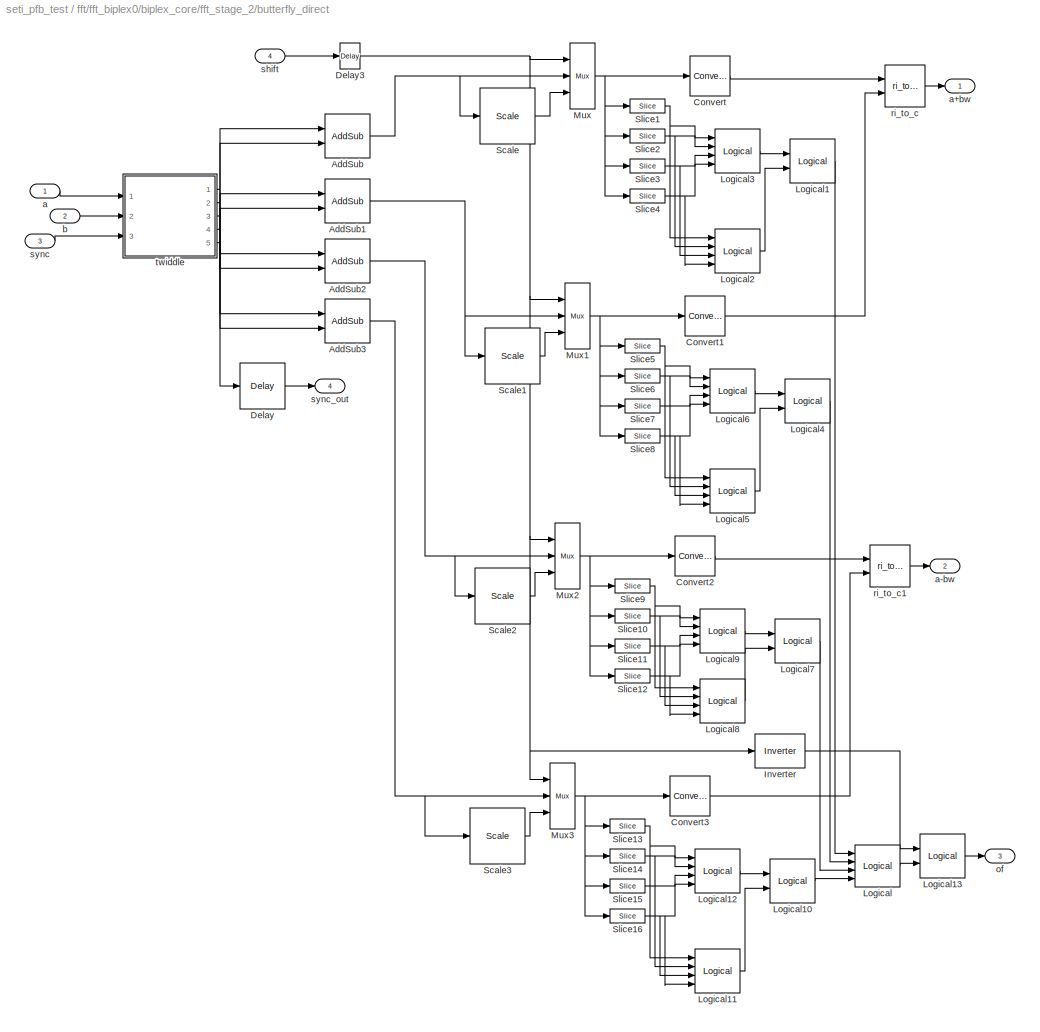
BLOCK [SubSystem] fft/fft_biplex0/biplex_core/fft_stage_2/butterfly_direct
  AncestorBlock = casper_library/FFTs/butterfly_direct
  AttributesFormatString = FFTSize=5, Coeffs=[0  1],\n StepPeriod=3, BitWidth=18
  MaskCallbackString = |||||||||
  MaskEnableString = on,on,on,on,on,on,on,on,on,on
  MaskIconFrame = on
  MaskIconOpaque = on
  MaskIconRotate = none
  MaskIconUnits = autoscale
  MaskInitialization = butterfly_direct_init(gcb,...\n              'FFTSize', FFTSize,...\n              'Coeffs', Coeffs,...\n              'StepPeriod', StepPeriod,...\n              'BitWidth', BitWidth,...\n              'add_latency', add_latency,...\n              'mult_latency', mult_latency,...\n              'bram_latency', bram_latency,...\n              'use_bram',use_bram,...\n              'quantization',q...<+52ch>  <repeated x4 — deduplicated; at blocks: butterfly_direct>
  MaskPromptString = Size of FFT: (2^?)|Coefficients: (0 to 2^(FFTSize-1)-1)|Coefficient Step Period: (2^?)|Output Bitwidth:|Add Latency|Mult Latency|BRAM Latency|Store Coefficients in BRAM|Quantization Behavior|Overflow Behavior  <repeated x4 — deduplicated; at blocks: butterfly_direct>
  MaskSelfModifiable = on
  MaskStyleString = edit,edit,edit,edit,edit,edit,edit,edit,popup(Truncate|Round  (unbiased: +/- Inf)|Round  (unbiased: Even Values)),popup(Wrap|Saturate|Error)
  MaskTabNameString = ,,,,,,,,,
  MaskToolTipString = on,on,on,on,on,on,on,on,on,on
  MaskTunableValueString = on,on,on,on,on,on,on,on,on,on
  MaskType = butterfly_direct
  MaskValueString = 5|[0 1]|3|18|3|4|3|0|Truncate|Wrap
  MaskVarAliasString = ,,,,,,,,,
  MaskVariables = FFTSize=@1;Coeffs=@2;StepPeriod=@3;BitWidth=@4;add_latency=@5;mult_latency=@6;bram_latency=@7;use_bram=@8;quantization=&9;overflow=&10;
  MaskVisibilityString = on,on,on,on,on,on,on,on,on,on
  MinAlgLoopOccurrences = off
  Ports = [4, 4]
  RTWSystemCode = Auto
  TreatAsAtomicUnit = off
  UserData = DataTag8
  UserDataPersistent = on
BLOCK [Reference] fft/fft_biplex0/biplex_core/fft_stage_2/butterfly_direct/AddSub  REF=xbsIndex_r3/AddSub
  Ports = [2, 1]
  SourceBlock = xbsIndex_r3/AddSub
  SourceType = Xilinx Adder/Subtractor
  arith_type = Unsigned
  bin_pt = 2
  dbl_ovrd = off
  en = off
  explicit_period = off
  gen_core = on
  latency = add_latency
  mode = Addition
  n_bits = 8
  overflow = Wrap
  period = 1
  pipeline = on
  precision = Full
  quantization = Truncate
  show_param = on
  use_carryin = off
  use_carryout = off
  use_core = on
  use_rpm = on
  xl_area = [0, 0, 0, 0, 0, 0, 0]
  xl_use_area = off
BLOCK [Reference] fft/fft_biplex0/biplex_core/fft_stage_2/butterfly_direct/AddSub1  REF=xbsIndex_r3/AddSub
  Ports = [2, 1]
  SourceBlock = xbsIndex_r3/AddSub
  SourceType = Xilinx Adder/Subtractor
  arith_type = Unsigned
  bin_pt = 2
  dbl_ovrd = off
  en = off
  explicit_period = off
  gen_core = on
  latency = add_latency
  mode = Addition
  n_bits = 8
  overflow = Wrap
  period = 1
  pipeline = on
  precision = Full
  quantization = Truncate
  show_param = on
  use_carryin = off
  use_carryout = off
  use_core = on
  use_rpm = on
  xl_area = [0, 0, 0, 0, 0, 0, 0]
  xl_use_area = off
BLOCK [Reference] fft/fft_biplex0/biplex_core/fft_stage_2/butterfly_direct/AddSub2  REF=xbsIndex_r3/AddSub
  Ports = [2, 1]
  SourceBlock = xbsIndex_r3/AddSub
  SourceType = Xilinx Adder/Subtractor
  arith_type = Unsigned
  bin_pt = 2
  dbl_ovrd = off
  en = off
  explicit_period = off
  gen_core = on
  latency = add_latency
  mode = Subtraction
  n_bits = 8
  overflow = Wrap
  period = 1
  pipeline = on
  precision = Full
  quantization = Truncate
  show_param = on
  use_carryin = off
  use_carryout = off
  use_core = on
  use_rpm = on
  xl_area = [0, 0, 0, 0, 0, 0, 0]
  xl_use_area = off
BLOCK [Reference] fft/fft_biplex0/biplex_core/fft_stage_2/butterfly_direct/AddSub3  REF=xbsIndex_r3/AddSub
  Ports = [2, 1]
  SourceBlock = xbsIndex_r3/AddSub
  SourceType = Xilinx Adder/Subtractor
  arith_type = Unsigned
  bin_pt = 2
  dbl_ovrd = off
  en = off
  explicit_period = off
  gen_core = on
  latency = add_latency
  mode = Subtraction
  n_bits = 8
  overflow = Wrap
  period = 1
  pipeline = on
  precision = Full
  quantization = Truncate
  show_param = on
  use_carryin = off
  use_carryout = off
  use_core = on
  use_rpm = on
  xl_area = [0, 0, 0, 0, 0, 0, 0]
  xl_use_area = off
BLOCK [Reference] fft/fft_biplex0/biplex_core/fft_stage_2/butterfly_direct/Convert  REF=xbsIndex_r3/Convert
  Ports = [1, 1]
  SourceBlock = xbsIndex_r3/Convert
  SourceType = Xilinx Converter Block
  arith_type = Signed  (2's comp)
  bin_pt = BitWidth-1
  dbl_ovrd = off
  explicit_period = off
  inserted_by_tool = off
  latency = add_latency
  n_bits = BitWidth
  overflow = Wrap
  period = 1
  pipeline = off
  quantization = Truncate
  show_param = off
  xl_area = [0, 0, 0, 0, 0, 0, 0]
  xl_use_area = off
BLOCK [Reference] fft/fft_biplex0/biplex_core/fft_stage_2/butterfly_direct/Convert1  REF=xbsIndex_r3/Convert
  Ports = [1, 1]
  SourceBlock = xbsIndex_r3/Convert
  SourceType = Xilinx Converter Block
  arith_type = Signed  (2's comp)
  bin_pt = BitWidth-1
  dbl_ovrd = off
  explicit_period = off
  inserted_by_tool = off
  latency = add_latency
  n_bits = BitWidth
  overflow = Wrap
  period = 1
  pipeline = off
  quantization = Truncate
  show_param = off
  xl_area = [0, 0, 0, 0, 0, 0, 0]
  xl_use_area = off
BLOCK [Reference] fft/fft_biplex0/biplex_core/fft_stage_2/butterfly_direct/Convert2  REF=xbsIndex_r3/Convert
  Ports = [1, 1]
  SourceBlock = xbsIndex_r3/Convert
  SourceType = Xilinx Converter Block
  arith_type = Signed  (2's comp)
  bin_pt = BitWidth-1
  dbl_ovrd = off
  explicit_period = off
  inserted_by_tool = off
  latency = add_latency
  n_bits = BitWidth
  overflow = Wrap
  period = 1
  pipeline = off
  quantization = Truncate
  show_param = off
  xl_area = [0, 0, 0, 0, 0, 0, 0]
  xl_use_area = off
BLOCK [Reference] fft/fft_biplex0/biplex_core/fft_stage_2/butterfly_direct/Convert3  REF=xbsIndex_r3/Convert
  Ports = [1, 1]
  SourceBlock = xbsIndex_r3/Convert
  SourceType = Xilinx Converter Block
  arith_type = Signed  (2's comp)
  bin_pt = BitWidth-1
  dbl_ovrd = off
  explicit_period = off
  inserted_by_tool = off
  latency = add_latency
  n_bits = BitWidth
  overflow = Wrap
  period = 1
  pipeline = off
  quantization = Truncate
  show_param = off
  xl_area = [0, 0, 0, 0, 0, 0, 0]
  xl_use_area = off
BLOCK [Reference] fft/fft_biplex0/biplex_core/fft_stage_2/butterfly_direct/Delay  REF=xbsIndex_r3/Delay
  Ports = [1, 1]
  SourceBlock = xbsIndex_r3/Delay
  SourceType = Xilinx Delay Block
  accept_only_valid = off
  dbl_ovrd = off
  en = off
  explicit_period = off
  init_zero = on
  latency = 2 * add_latency + 1
  period = 1
  reg_retiming = off
  show_param = off
  xl_area = [0, 0, 0, 0, 0, 0, 0]
  xl_use_area = off
BLOCK [Reference] fft/fft_biplex0/biplex_core/fft_stage_2/butterfly_direct/Delay3  REF=xbsIndex_r3/Delay
  Ports = [1, 1]
  SourceBlock = xbsIndex_r3/Delay
  SourceType = Xilinx Delay Block
  accept_only_valid = off
  dbl_ovrd = off
  en = off
  explicit_period = off
  init_zero = on
  latency = 1
  period = 1
  reg_retiming = off
  show_param = off
  xl_area = [0, 0, 0, 0, 0, 0, 0]
  xl_use_area = off
BLOCK [Reference] fft/fft_biplex0/biplex_core/fft_stage_2/butterfly_direct/Inverter  REF=xbsIndex_r3/Inverter
  Ports = [1, 1]
  SourceBlock = xbsIndex_r3/Inverter
  SourceType = Xilinx Inverter
  dbl_ovrd = off
  en = off
  explicit_period = off
  latency = 0
  period = 1
  show_param = off
  xl_area = [0, 0, 0, 0, 0, 0, 0]
  xl_use_area = off
BLOCK [Reference] fft/fft_biplex0/biplex_core/fft_stage_2/butterfly_direct/Logical  REF=xbsIndex_r3/Logical
  Ports = [4, 1]
  SourceBlock = xbsIndex_r3/Logical
  SourceType = Xilinx Logical Block
  align_bp = on
  arith_type = Unsigned
  bin_pt = 2
  dbl_ovrd = off
  en = off
  explicit_period = off
  inputs = 4
  latency = 1
  logical_function = OR
  n_bits = 8
  period = 1
  precision = Full
  show_param = off
  xl_area = [0, 0, 0, 0, 0, 0, 0]
  xl_use_area = off
BLOCK [Reference] fft/fft_biplex0/biplex_core/fft_stage_2/butterfly_direct/Logical1  REF=xbsIndex_r3/Logical
  Ports = [2, 1]
  SourceBlock = xbsIndex_r3/Logical
  SourceType = Xilinx Logical Block
  align_bp = off
  arith_type = Unsigned
  bin_pt = 2
  dbl_ovrd = off
  en = off
  explicit_period = off
  inputs = 2
  latency = 1
  logical_function = OR
  n_bits = 8
  period = 1
  precision = Full
  show_param = off
  xl_area = [0, 0, 0, 0, 0, 0, 0]
  xl_use_area = off
BLOCK [Reference] fft/fft_biplex0/biplex_core/fft_stage_2/butterfly_direct/Logical10  REF=xbsIndex_r3/Logical
  Ports = [2, 1]
  SourceBlock = xbsIndex_r3/Logical
  SourceType = Xilinx Logical Block
  align_bp = off
  arith_type = Unsigned
  bin_pt = 2
  dbl_ovrd = off
  en = off
  explicit_period = off
  inputs = 2
  latency = 1
  logical_function = OR
  n_bits = 8
  period = 1
  precision = Full
  show_param = off
  xl_area = [0, 0, 0, 0, 0, 0, 0]
  xl_use_area = off
BLOCK [Reference] fft/fft_biplex0/biplex_core/fft_stage_2/butterfly_direct/Logical11  REF=xbsIndex_r3/Logical
  Ports = [4, 1]
  SourceBlock = xbsIndex_r3/Logical
  SourceType = Xilinx Logical Block
  align_bp = off
  arith_type = Unsigned
  bin_pt = 2
  dbl_ovrd = off
  en = off
  explicit_period = off
  inputs = 4
  latency = 1
  logical_function = NOR
  n_bits = 8
  period = 1
  precision = Full
  show_param = off
  xl_area = [0, 0, 0, 0, 0, 0, 0]
  xl_use_area = off
BLOCK [Reference] fft/fft_biplex0/biplex_core/fft_stage_2/butterfly_direct/Logical12  REF=xbsIndex_r3/Logical
  Ports = [4, 1]
  SourceBlock = xbsIndex_r3/Logical
  SourceType = Xilinx Logical Block
  align_bp = off
  arith_type = Unsigned
  bin_pt = 2
  dbl_ovrd = off
  en = off
  explicit_period = off
  inputs = 4
  latency = 1
  logical_function = AND
  n_bits = 8
  period = 1
  precision = Full
  show_param = off
  xl_area = [0, 0, 0, 0, 0, 0, 0]
  xl_use_area = off
BLOCK [Reference] fft/fft_biplex0/biplex_core/fft_stage_2/butterfly_direct/Logical13  REF=xbsIndex_r3/Logical
  Ports = [2, 1]
  SourceBlock = xbsIndex_r3/Logical
  SourceType = Xilinx Logical Block
  align_bp = off
  arith_type = Unsigned
  bin_pt = 2
  dbl_ovrd = off
  en = off
  explicit_period = off
  inputs = 2
  latency = 1
  logical_function = AND
  n_bits = 8
  period = 1
  precision = Full
  show_param = off
  xl_area = [0, 0, 0, 0, 0, 0, 0]
  xl_use_area = off
BLOCK [Reference] fft/fft_biplex0/biplex_core/fft_stage_2/butterfly_direct/Logical2  REF=xbsIndex_r3/Logical
  Ports = [4, 1]
  SourceBlock = xbsIndex_r3/Logical
  SourceType = Xilinx Logical Block
  align_bp = off
  arith_type = Unsigned
  bin_pt = 2
  dbl_ovrd = off
  en = off
  explicit_period = off
  inputs = 4
  latency = 1
  logical_function = NOR
  n_bits = 8
  period = 1
  precision = Full
  show_param = off
  xl_area = [0, 0, 0, 0, 0, 0, 0]
  xl_use_area = off
BLOCK [Reference] fft/fft_biplex0/biplex_core/fft_stage_2/butterfly_direct/Logical3  REF=xbsIndex_r3/Logical
  Ports = [4, 1]
  SourceBlock = xbsIndex_r3/Logical
  SourceType = Xilinx Logical Block
  align_bp = off
  arith_type = Unsigned
  bin_pt = 2
  dbl_ovrd = off
  en = off
  explicit_period = off
  inputs = 4
  latency = 1
  logical_function = AND
  n_bits = 8
  period = 1
  precision = Full
  show_param = off
  xl_area = [0, 0, 0, 0, 0, 0, 0]
  xl_use_area = off
BLOCK [Reference] fft/fft_biplex0/biplex_core/fft_stage_2/butterfly_direct/Logical4  REF=xbsIndex_r3/Logical
  Ports = [2, 1]
  SourceBlock = xbsIndex_r3/Logical
  SourceType = Xilinx Logical Block
  align_bp = off
  arith_type = Unsigned
  bin_pt = 2
  dbl_ovrd = off
  en = off
  explicit_period = off
  inputs = 2
  latency = 1
  logical_function = OR
  n_bits = 8
  period = 1
  precision = Full
  show_param = off
  xl_area = [0, 0, 0, 0, 0, 0, 0]
  xl_use_area = off
BLOCK [Reference] fft/fft_biplex0/biplex_core/fft_stage_2/butterfly_direct/Logical5  REF=xbsIndex_r3/Logical
  Ports = [4, 1]
  SourceBlock = xbsIndex_r3/Logical
  SourceType = Xilinx Logical Block
  align_bp = off
  arith_type = Unsigned
  bin_pt = 2
  dbl_ovrd = off
  en = off
  explicit_period = off
  inputs = 4
  latency = 1
  logical_function = NOR
  n_bits = 8
  period = 1
  precision = Full
  show_param = off
  xl_area = [0, 0, 0, 0, 0, 0, 0]
  xl_use_area = off
BLOCK [Reference] fft/fft_biplex0/biplex_core/fft_stage_2/butterfly_direct/Logical6  REF=xbsIndex_r3/Logical
  Ports = [4, 1]
  SourceBlock = xbsIndex_r3/Logical
  SourceType = Xilinx Logical Block
  align_bp = off
  arith_type = Unsigned
  bin_pt = 2
  dbl_ovrd = off
  en = off
  explicit_period = off
  inputs = 4
  latency = 1
  logical_function = AND
  n_bits = 8
  period = 1
  precision = Full
  show_param = off
  xl_area = [0, 0, 0, 0, 0, 0, 0]
  xl_use_area = off
BLOCK [Reference] fft/fft_biplex0/biplex_core/fft_stage_2/butterfly_direct/Logical7  REF=xbsIndex_r3/Logical
  Ports = [2, 1]
  SourceBlock = xbsIndex_r3/Logical
  SourceType = Xilinx Logical Block
  align_bp = off
  arith_type = Unsigned
  bin_pt = 2
  dbl_ovrd = off
  en = off
  explicit_period = off
  inputs = 2
  latency = 1
  logical_function = OR
  n_bits = 8
  period = 1
  precision = Full
  show_param = off
  xl_area = [0, 0, 0, 0, 0, 0, 0]
  xl_use_area = off
BLOCK [Reference] fft/fft_biplex0/biplex_core/fft_stage_2/butterfly_direct/Logical8  REF=xbsIndex_r3/Logical
  Ports = [4, 1]
  SourceBlock = xbsIndex_r3/Logical
  SourceType = Xilinx Logical Block
  align_bp = off
  arith_type = Unsigned
  bin_pt = 2
  dbl_ovrd = off
  en = off
  explicit_period = off
  inputs = 4
  latency = 1
  logical_function = NOR
  n_bits = 8
  period = 1
  precision = Full
  show_param = off
  xl_area = [0, 0, 0, 0, 0, 0, 0]
  xl_use_area = off
BLOCK [Reference] fft/fft_biplex0/biplex_core/fft_stage_2/butterfly_direct/Logical9  REF=xbsIndex_r3/Logical
  Ports = [4, 1]
  SourceBlock = xbsIndex_r3/Logical
  SourceType = Xilinx Logical Block
  align_bp = off
  arith_type = Unsigned
  bin_pt = 2
  dbl_ovrd = off
  en = off
  explicit_period = off
  inputs = 4
  latency = 1
  logical_function = AND
  n_bits = 8
  period = 1
  precision = Full
  show_param = off
  xl_area = [0, 0, 0, 0, 0, 0, 0]
  xl_use_area = off
BLOCK [Reference] fft/fft_biplex0/biplex_core/fft_stage_2/butterfly_direct/Mux  REF=xbsIndex_r3/Mux
  Ports = [3, 1]
  SourceBlock = xbsIndex_r3/Mux
  SourceType = Xilinx Multiplexer Block
  arith_type = Signed  (2's comp)
  bin_pt = 2
  dbl_ovrd = off
  en = off
  explicit_period = off
  gen_core = off
  inputs = 2
  latency = 1
  mux_type = off
  n_bits = 8
  overflow = Wrap
  period = 1
  precision = Full
  quantization = Truncate
  show_param = off
  use_rpm = off
  xl_area = [0, 0, 0, 0, 0, 0, 0]
  xl_use_area = off
BLOCK [Reference] fft/fft_biplex0/biplex_core/fft_stage_2/butterfly_direct/Mux1  REF=xbsIndex_r3/Mux
  Ports = [3, 1]
  SourceBlock = xbsIndex_r3/Mux
  SourceType = Xilinx Multiplexer Block
  arith_type = Signed  (2's comp)
  bin_pt = 2
  dbl_ovrd = off
  en = off
  explicit_period = off
  gen_core = off
  inputs = 2
  latency = 1
  mux_type = off
  n_bits = 8
  overflow = Wrap
  period = 1
  precision = Full
  quantization = Truncate
  show_param = off
  use_rpm = off
  xl_area = [0, 0, 0, 0, 0, 0, 0]
  xl_use_area = off
BLOCK [Reference] fft/fft_biplex0/biplex_core/fft_stage_2/butterfly_direct/Mux2  REF=xbsIndex_r3/Mux
  Ports = [3, 1]
  SourceBlock = xbsIndex_r3/Mux
  SourceType = Xilinx Multiplexer Block
  arith_type = Signed  (2's comp)
  bin_pt = 2
  dbl_ovrd = off
  en = off
  explicit_period = off
  gen_core = off
  inputs = 2
  latency = 1
  mux_type = off
  n_bits = 8
  overflow = Wrap
  period = 1
  precision = Full
  quantization = Truncate
  show_param = off
  use_rpm = off
  xl_area = [0, 0, 0, 0, 0, 0, 0]
  xl_use_area = off
BLOCK [Reference] fft/fft_biplex0/biplex_core/fft_stage_2/butterfly_direct/Mux3  REF=xbsIndex_r3/Mux
  Ports = [3, 1]
  SourceBlock = xbsIndex_r3/Mux
  SourceType = Xilinx Multiplexer Block
  arith_type = Signed  (2's comp)
  bin_pt = 2
  dbl_ovrd = off
  en = off
  explicit_period = off
  gen_core = off
  inputs = 2
  latency = 1
  mux_type = off
  n_bits = 8
  overflow = Wrap
  period = 1
  precision = Full
  quantization = Truncate
  show_param = off
  use_rpm = off
  xl_area = [0, 0, 0, 0, 0, 0, 0]
  xl_use_area = off
BLOCK [Reference] fft/fft_biplex0/biplex_core/fft_stage_2/butterfly_direct/Scale  REF=xbsIndex_r3/Scale
  Ports = [1, 1]
  SourceBlock = xbsIndex_r3/Scale
  SourceType = Xilinx Scaling Block
  dbl_ovrd = off
  explicit_period = off
  period = 1
  scale_factor = -1
BLOCK [Reference] fft/fft_biplex0/biplex_core/fft_stage_2/butterfly_direct/Scale1  REF=xbsIndex_r3/Scale
  Ports = [1, 1]
  SourceBlock = xbsIndex_r3/Scale
  SourceType = Xilinx Scaling Block
  dbl_ovrd = off
  explicit_period = off
  period = 1
  scale_factor = -1
BLOCK [Reference] fft/fft_biplex0/biplex_core/fft_stage_2/butterfly_direct/Scale2  REF=xbsIndex_r3/Scale
  Ports = [1, 1]
  SourceBlock = xbsIndex_r3/Scale
  SourceType = Xilinx Scaling Block
  dbl_ovrd = off
  explicit_period = off
  period = 1
  scale_factor = -1
BLOCK [Reference] fft/fft_biplex0/biplex_core/fft_stage_2/butterfly_direct/Scale3  REF=xbsIndex_r3/Scale
  Ports = [1, 1]
  SourceBlock = xbsIndex_r3/Scale
  SourceType = Xilinx Scaling Block
  dbl_ovrd = off
  explicit_period = off
  period = 1
  scale_factor = -1
BLOCK [Reference] fft/fft_biplex0/biplex_core/fft_stage_2/butterfly_direct/Slice1  REF=xbsIndex_r3/Slice
  Ports = [1, 1]
  SourceBlock = xbsIndex_r3/Slice
  SourceType = Xilinx Slice Block
  base0 = LSB of Input
  base1 = MSB of Input
  bit0 = 0
  bit1 = 0
  boolean_output = on
  dbl_ovrd = off
  explicit_period = off
  mode = Upper Bit Location + Width
  nbits = 1
  period = 1
BLOCK [Reference] fft/fft_biplex0/biplex_core/fft_stage_2/butterfly_direct/Slice10  REF=xbsIndex_r3/Slice
  Ports = [1, 1]
  SourceBlock = xbsIndex_r3/Slice
  SourceType = Xilinx Slice Block
  base0 = LSB of Input
  base1 = MSB of Input
  bit0 = 0
  bit1 = -1
  boolean_output = on
  dbl_ovrd = off
  explicit_period = off
  mode = Upper Bit Location + Width
  nbits = 1
  period = 1
BLOCK [Reference] fft/fft_biplex0/biplex_core/fft_stage_2/butterfly_direct/Slice11  REF=xbsIndex_r3/Slice
  Ports = [1, 1]
  SourceBlock = xbsIndex_r3/Slice
  SourceType = Xilinx Slice Block
  base0 = LSB of Input
  base1 = MSB of Input
  bit0 = 0
  bit1 = -2
  boolean_output = on
  dbl_ovrd = off
  explicit_period = off
  mode = Upper Bit Location + Width
  nbits = 1
  period = 1
BLOCK [Reference] fft/fft_biplex0/biplex_core/fft_stage_2/butterfly_direct/Slice12  REF=xbsIndex_r3/Slice
  Ports = [1, 1]
  SourceBlock = xbsIndex_r3/Slice
  SourceType = Xilinx Slice Block
  base0 = LSB of Input
  base1 = MSB of Input
  bit0 = 0
  bit1 = -3
  boolean_output = on
  dbl_ovrd = off
  explicit_period = off
  mode = Upper Bit Location + Width
  nbits = 1
  period = 1
BLOCK [Reference] fft/fft_biplex0/biplex_core/fft_stage_2/butterfly_direct/Slice13  REF=xbsIndex_r3/Slice
  Ports = [1, 1]
  SourceBlock = xbsIndex_r3/Slice
  SourceType = Xilinx Slice Block
  base0 = LSB of Input
  base1 = MSB of Input
  bit0 = 0
  bit1 = 0
  boolean_output = on
  dbl_ovrd = off
  explicit_period = off
  mode = Upper Bit Location + Width
  nbits = 1
  period = 1
BLOCK [Reference] fft/fft_biplex0/biplex_core/fft_stage_2/butterfly_direct/Slice14  REF=xbsIndex_r3/Slice
  Ports = [1, 1]
  SourceBlock = xbsIndex_r3/Slice
  SourceType = Xilinx Slice Block
  base0 = LSB of Input
  base1 = MSB of Input
  bit0 = 0
  bit1 = -1
  boolean_output = on
  dbl_ovrd = off
  explicit_period = off
  mode = Upper Bit Location + Width
  nbits = 1
  period = 1
BLOCK [Reference] fft/fft_biplex0/biplex_core/fft_stage_2/butterfly_direct/Slice15  REF=xbsIndex_r3/Slice
  Ports = [1, 1]
  SourceBlock = xbsIndex_r3/Slice
  SourceType = Xilinx Slice Block
  base0 = LSB of Input
  base1 = MSB of Input
  bit0 = 0
  bit1 = -2
  boolean_output = on
  dbl_ovrd = off
  explicit_period = off
  mode = Upper Bit Location + Width
  nbits = 1
  period = 1
BLOCK [Reference] fft/fft_biplex0/biplex_core/fft_stage_2/butterfly_direct/Slice16  REF=xbsIndex_r3/Slice
  Ports = [1, 1]
  SourceBlock = xbsIndex_r3/Slice
  SourceType = Xilinx Slice Block
  base0 = LSB of Input
  base1 = MSB of Input
  bit0 = 0
  bit1 = -3
  boolean_output = on
  dbl_ovrd = off
  explicit_period = off
  mode = Upper Bit Location + Width
  nbits = 1
  period = 1
BLOCK [Reference] fft/fft_biplex0/biplex_core/fft_stage_2/butterfly_direct/Slice2  REF=xbsIndex_r3/Slice
  Ports = [1, 1]
  SourceBlock = xbsIndex_r3/Slice
  SourceType = Xilinx Slice Block
  base0 = LSB of Input
  base1 = MSB of Input
  bit0 = 0
  bit1 = -1
  boolean_output = on
  dbl_ovrd = off
  explicit_period = off
  mode = Upper Bit Location + Width
  nbits = 1
  period = 1
BLOCK [Reference] fft/fft_biplex0/biplex_core/fft_stage_2/butterfly_direct/Slice3  REF=xbsIndex_r3/Slice
  Ports = [1, 1]
  SourceBlock = xbsIndex_r3/Slice
  SourceType = Xilinx Slice Block
  base0 = LSB of Input
  base1 = MSB of Input
  bit0 = 0
  bit1 = -2
  boolean_output = on
  dbl_ovrd = off
  explicit_period = off
  mode = Upper Bit Location + Width
  nbits = 1
  period = 1
BLOCK [Reference] fft/fft_biplex0/biplex_core/fft_stage_2/butterfly_direct/Slice4  REF=xbsIndex_r3/Slice
  Ports = [1, 1]
  SourceBlock = xbsIndex_r3/Slice
  SourceType = Xilinx Slice Block
  base0 = LSB of Input
  base1 = MSB of Input
  bit0 = 0
  bit1 = -3
  boolean_output = on
  dbl_ovrd = off
  explicit_period = off
  mode = Upper Bit Location + Width
  nbits = 1
  period = 1
BLOCK [Reference] fft/fft_biplex0/biplex_core/fft_stage_2/butterfly_direct/Slice5  REF=xbsIndex_r3/Slice
  Ports = [1, 1]
  SourceBlock = xbsIndex_r3/Slice
  SourceType = Xilinx Slice Block
  base0 = LSB of Input
  base1 = MSB of Input
  bit0 = 0
  bit1 = 0
  boolean_output = on
  dbl_ovrd = off
  explicit_period = off
  mode = Upper Bit Location + Width
  nbits = 1
  period = 1
BLOCK [Reference] fft/fft_biplex0/biplex_core/fft_stage_2/butterfly_direct/Slice6  REF=xbsIndex_r3/Slice
  Ports = [1, 1]
  SourceBlock = xbsIndex_r3/Slice
  SourceType = Xilinx Slice Block
  base0 = LSB of Input
  base1 = MSB of Input
  bit0 = 0
  bit1 = -1
  boolean_output = on
  dbl_ovrd = off
  explicit_period = off
  mode = Upper Bit Location + Width
  nbits = 1
  period = 1
BLOCK [Reference] fft/fft_biplex0/biplex_core/fft_stage_2/butterfly_direct/Slice7  REF=xbsIndex_r3/Slice
  Ports = [1, 1]
  SourceBlock = xbsIndex_r3/Slice
  SourceType = Xilinx Slice Block
  base0 = LSB of Input
  base1 = MSB of Input
  bit0 = 0
  bit1 = -2
  boolean_output = on
  dbl_ovrd = off
  explicit_period = off
  mode = Upper Bit Location + Width
  nbits = 1
  period = 1
BLOCK [Reference] fft/fft_biplex0/biplex_core/fft_stage_2/butterfly_direct/Slice8  REF=xbsIndex_r3/Slice
  Ports = [1, 1]
  SourceBlock = xbsIndex_r3/Slice
  SourceType = Xilinx Slice Block
  base0 = LSB of Input
  base1 = MSB of Input
  bit0 = 0
  bit1 = -3
  boolean_output = on
  dbl_ovrd = off
  explicit_period = off
  mode = Upper Bit Location + Width
  nbits = 1
  period = 1
BLOCK [Reference] fft/fft_biplex0/biplex_core/fft_stage_2/butterfly_direct/Slice9  REF=xbsIndex_r3/Slice
  Ports = [1, 1]
  SourceBlock = xbsIndex_r3/Slice
  SourceType = Xilinx Slice Block
  base0 = LSB of Input
  base1 = MSB of Input
  bit0 = 0
  bit1 = 0
  boolean_output = on
  dbl_ovrd = off
  explicit_period = off
  mode = Upper Bit Location + Width
  nbits = 1
  period = 1
BLOCK [Inport] fft/fft_biplex0/biplex_core/fft_stage_2/butterfly_direct/a
  IconDisplay = Port number
  LatchInput = off
  Port = 1
BLOCK [Outport] fft/fft_biplex0/biplex_core/fft_stage_2/butterfly_direct/a+bw
  BusOutputAsStruct = off
  IconDisplay = Port number
BLOCK [Outport] fft/fft_biplex0/biplex_core/fft_stage_2/butterfly_direct/a-bw
  BusOutputAsStruct = off
  IconDisplay = Port number
  Port = 2
BLOCK [Inport] fft/fft_biplex0/biplex_core/fft_stage_2/butterfly_direct/b
  IconDisplay = Port number
  LatchInput = off
  Port = 2
BLOCK [Outport] fft/fft_biplex0/biplex_core/fft_stage_2/butterfly_direct/of
  BusOutputAsStruct = off
  IconDisplay = Port number
  Port = 3
BLOCK [Reference] fft/fft_biplex0/biplex_core/fft_stage_2/butterfly_direct/ri_to_c  REF=casper_library/Misc/ri_to_c  (lib defined in mdl_138b2fc3435f, mdl_4ed325b712b3, +2 more)
  Ports = [2, 1]
  ShowPortLabels = on
  SourceBlock = casper_library/Misc/ri_to_c
  SourceType = ri_to_c
  UserData = DataTag9
  UserDataPersistent = on
BLOCK [Reference] fft/fft_biplex0/biplex_core/fft_stage_2/butterfly_direct/ri_to_c1  REF=casper_library/Misc/ri_to_c  (lib defined in mdl_138b2fc3435f, mdl_4ed325b712b3, +2 more)
  Ports = [2, 1]
  ShowPortLabels = on
  SourceBlock = casper_library/Misc/ri_to_c
  SourceType = ri_to_c
  UserData = DataTag10
  UserDataPersistent = on
BLOCK [Inport] fft/fft_biplex0/biplex_core/fft_stage_2/butterfly_direct/shift
  IconDisplay = Port number
  LatchInput = off
  Port = 4
BLOCK [Inport] fft/fft_biplex0/biplex_core/fft_stage_2/butterfly_direct/sync
  IconDisplay = Port number
  LatchInput = off
  Port = 3
BLOCK [Outport] fft/fft_biplex0/biplex_core/fft_stage_2/butterfly_direct/sync_out
  BusOutputAsStruct = off
  IconDisplay = Port number
  Port = 4
BLOCK [SubSystem] fft/fft_biplex0/biplex_core/fft_stage_2/butterfly_direct/twiddle
  AttributesFormatString = %<BlockChoice>
  BlockChoice = twiddle_stage_2
  MemberBlocks = twiddle_coeff_0,twiddle_coeff_1,twiddle_general_3mult,twiddle_general_4mult,twiddle_stage_2
  MinAlgLoopOccurrences = off
  Ports = [3, 5]
  RTWSystemCode = Auto
  TemplateBlock = casper_library/FFTs/Twiddle/twiddle
  TreatAsAtomicUnit = off
BLOCK [Inport] fft/fft_biplex0/biplex_core/fft_stage_2/butterfly_direct/twiddle/a
  IconDisplay = Port number
  LatchInput = off
  Port = 1
BLOCK [Outport] fft/fft_biplex0/biplex_core/fft_stage_2/butterfly_direct/twiddle/a_im
  BusOutputAsStruct = off
  IconDisplay = Port number
  Port = 2
BLOCK [Outport] fft/fft_biplex0/biplex_core/fft_stage_2/butterfly_direct/twiddle/a_re
  BusOutputAsStruct = off
  IconDisplay = Port number
BLOCK [Inport] fft/fft_biplex0/biplex_core/fft_stage_2/butterfly_direct/twiddle/b
  IconDisplay = Port number
  LatchInput = off
  Port = 2
BLOCK [Outport] fft/fft_biplex0/biplex_core/fft_stage_2/butterfly_direct/twiddle/bw_im
  BusOutputAsStruct = off
  IconDisplay = Port number
  Port = 4
BLOCK [Outport] fft/fft_biplex0/biplex_core/fft_stage_2/butterfly_direct/twiddle/bw_re
  BusOutputAsStruct = off
  IconDisplay = Port number
  Port = 3
BLOCK [Inport] fft/fft_biplex0/biplex_core/fft_stage_2/butterfly_direct/twiddle/sync
  IconDisplay = Port number
  LatchInput = off
  Port = 3
BLOCK [Outport] fft/fft_biplex0/biplex_core/fft_stage_2/butterfly_direct/twiddle/sync_out
  BusOutputAsStruct = off
  IconDisplay = Port number
  Port = 5
BLOCK [Reference] fft/fft_biplex0/biplex_core/fft_stage_2/butterfly_direct/twiddle/twiddle_stage_2  REF=casper_library/FFTs/Twiddle/twiddle_stage_2  (lib defined in mdl_138b2fc3435f, mdl_4ed325b712b3, +2 more)
  BitWidth = 18
  FFTSize = 5
  Ports = [3, 5]
  ShowPortLabels = on
  SourceBlock = casper_library/FFTs/Twiddle/twiddle_stage_2
  add_latency = 3
  bram_latency = 3
  mult_latency = 4
BLOCK [SubSystem] fft/fft_biplex0/biplex_core/fft_stage_2/delay_b
  AttributesFormatString = %<BlockChoice>
  BlockChoice = delay_slr
  MemberBlocks = delay_bram,delay_slr
  MinAlgLoopOccurrences = off
  Ports = [1, 1]
  RTWSystemCode = Auto
  TemplateBlock = casper_library/Delays/delay
  TreatAsAtomicUnit = off
BLOCK [Inport] fft/fft_biplex0/biplex_core/fft_stage_2/delay_b/In1
  IconDisplay = Port number
  LatchInput = off
  Port = 1
BLOCK [Outport] fft/fft_biplex0/biplex_core/fft_stage_2/delay_b/Out1
  BusOutputAsStruct = off
  IconDisplay = Port number
BLOCK [Reference] fft/fft_biplex0/biplex_core/fft_stage_2/delay_b/delay_slr  REF=casper_library/Delays/delay_slr  (lib defined in mdl_138b2fc3435f, mdl_4ed325b712b3, +2 more)
  DelayLen = 2^(FFTSize-FFTStage)
  Ports = [1, 1]
  ShowPortLabels = on
  SourceBlock = casper_library/Delays/delay_slr
  SourceType = delay_slr
BLOCK [SubSystem] fft/fft_biplex0/biplex_core/fft_stage_2/delay_f
  AttributesFormatString = %<BlockChoice>
  BlockChoice = delay_slr
  MemberBlocks = delay_bram,delay_slr
  MinAlgLoopOccurrences = off
  Ports = [1, 1]
  RTWSystemCode = Auto
  TemplateBlock = casper_library/Delays/delay
  TreatAsAtomicUnit = off
BLOCK [Inport] fft/fft_biplex0/biplex_core/fft_stage_2/delay_f/In1
  IconDisplay = Port number
  LatchInput = off
  Port = 1
BLOCK [Outport] fft/fft_biplex0/biplex_core/fft_stage_2/delay_f/Out1
  BusOutputAsStruct = off
  IconDisplay = Port number
BLOCK [Reference] fft/fft_biplex0/biplex_core/fft_stage_2/delay_f/delay_slr  REF=casper_library/Delays/delay_slr  (lib defined in mdl_138b2fc3435f, mdl_4ed325b712b3, +2 more)
  DelayLen = 2^(FFTSize-FFTStage)
  Ports = [1, 1]
  ShowPortLabels = on
  SourceBlock = casper_library/Delays/delay_slr
  SourceType = delay_slr
BLOCK [Inport] fft/fft_biplex0/biplex_core/fft_stage_2/in1
  IconDisplay = Port number
  LatchInput = off
  Port = 1
BLOCK [Inport] fft/fft_biplex0/biplex_core/fft_stage_2/in2
  IconDisplay = Port number
  LatchInput = off
  Port = 2
BLOCK [Outport] fft/fft_biplex0/biplex_core/fft_stage_2/of
  BusOutputAsStruct = off
  IconDisplay = Port number
  Port = 3
BLOCK [Inport] fft/fft_biplex0/biplex_core/fft_stage_2/of_in
  IconDisplay = Port number
  LatchInput = off
  Port = 3
BLOCK [Outport] fft/fft_biplex0/biplex_core/fft_stage_2/out1
  BusOutputAsStruct = off
  IconDisplay = Port number
BLOCK [Outport] fft/fft_biplex0/biplex_core/fft_stage_2/out2
  BusOutputAsStruct = off
  IconDisplay = Port number
  Port = 2
BLOCK [Inport] fft/fft_biplex0/biplex_core/fft_stage_2/shift
  IconDisplay = Port number
  LatchInput = off
  Port = 5
BLOCK [Inport] fft/fft_biplex0/biplex_core/fft_stage_2/sync
  IconDisplay = Port number
  LatchInput = off
  Port = 4
BLOCK [Reference] fft/fft_biplex0/biplex_core/fft_stage_2/sync_delay  REF=casper_library/Delays/sync_delay  (lib defined in mdl_138b2fc3435f, mdl_4ed325b712b3, +2 more)
  DelayLen = 2^(FFTSize - FFTStage)
  Ports = [1, 1]
  ShowPortLabels = on
  SourceBlock = casper_library/Delays/sync_delay
  SourceType = sync_delay
BLOCK [Outport] fft/fft_biplex0/biplex_core/fft_stage_2/sync_out
  BusOutputAsStruct = off
  IconDisplay = Port number
  Port = 4
BLOCK [SubSystem] fft/fft_biplex0/biplex_core/fft_stage_3
  AncestorBlock = casper_library/FFTs/fft_stage_n
  AttributesFormatString = FFTSize=5, FFTStage=3, BitWidth=18
  MaskCallbackString = ||||||||||
  MaskEnableString = on,on,on,on,on,on,on,on,on,on,on
  MaskIconFrame = on
  MaskIconOpaque = on
  MaskIconRotate = none
  MaskIconUnits = autoscale
  MaskSelfModifiable = on
  MaskStyleString = edit,edit,edit,edit,edit,edit,popup(Truncate|Round  (unbiased: +/- Inf)|Round  (unbiased: Even Values)),popup(Wrap|Saturate|Error),edit,edit,edit
  MaskTabNameString = ,,,,,,,,,,
  MaskToolTipString = on,on,on,on,on,on,on,on,on,on,on
  MaskTunableValueString = on,on,on,on,on,on,on,on,on,on,on
  MaskType = fft_stage_n
  MaskValueString = 5|3|18|0|0|11|Truncate|Wrap|3|4|3
  MaskVarAliasString = ,,,,,,,,,,
  MaskVariables = FFTSize=@1;FFTStage=@2;BitWidth=@3;use_bram=@4;CoeffBram=&5;MaxCoeffNum=@6;quantization=&7;overflow=&8;add_latency=@9;mult_latency=@10;bram_latency=@11;
  MaskVisibilityString = on,on,on,on,on,on,on,on,on,on,on
  MinAlgLoopOccurrences = off
  Ports = [5, 4]
  RTWSystemCode = Auto
  TreatAsAtomicUnit = off
  UserData = DataTag11
  UserDataPersistent = on
BLOCK [Reference] fft/fft_biplex0/biplex_core/fft_stage_3/Counter  REF=xbsIndex_r3/Counter
  Ports = [1, 1]
  SourceBlock = xbsIndex_r3/Counter
  SourceType = Xilinx Counter Block
  arith_type = Unsigned
  bin_pt = 0
  cnt_by_val = 1
  cnt_to = Inf
  cnt_type = Free Running
  dbl_ovrd = off
  en = off
  explicit_period = off
  gen_core = on
  load_pin = off
  n_bits = FFTSize-FFTStage+1
  operation = Up
  period = 1
  rst = on
  show_param = off
  start_count = 0
  use_rpm = off
  xl_area = [0, 0, 0, 0, 0, 0, 0]
  xl_use_area = off
BLOCK [Reference] fft/fft_biplex0/biplex_core/fft_stage_3/Delay  REF=xbsIndex_r3/Delay
  Ports = [1, 1]
  SourceBlock = xbsIndex_r3/Delay
  SourceType = Xilinx Delay Block
  accept_only_valid = off
  dbl_ovrd = off
  en = off
  explicit_period = off
  init_zero = on
  latency = 1
  period = 1
  reg_retiming = off
  show_param = off
  xl_area = [0, 0, 0, 0, 0, 0, 0]
  xl_use_area = off
BLOCK [Reference] fft/fft_biplex0/biplex_core/fft_stage_3/Logical1  REF=xbsIndex_r3/Logical
  Ports = [2, 1]
  SourceBlock = xbsIndex_r3/Logical
  SourceType = Xilinx Logical Block
  align_bp = on
  arith_type = Unsigned
  bin_pt = 2
  dbl_ovrd = off
  en = off
  explicit_period = on
  inputs = 2
  latency = 1
  logical_function = OR
  n_bits = 8
  period = 1
  precision = Full
  show_param = off
  xl_area = [0, 0, 0, 0, 0, 0, 0]
  xl_use_area = off
BLOCK [Reference] fft/fft_biplex0/biplex_core/fft_stage_3/Mux  REF=xbsIndex_r3/Mux
  Ports = [3, 1]
  SourceBlock = xbsIndex_r3/Mux
  SourceType = Xilinx Multiplexer Block
  arith_type = Signed  (2's comp)
  bin_pt = 2
  dbl_ovrd = off
  en = off
  explicit_period = off
  gen_core = on
  inputs = 2
  latency = 1
  mux_type = off
  n_bits = 8
  overflow = Wrap
  period = 1
  precision = Full
  quantization = Truncate
  show_param = off
  use_rpm = off
  xl_area = [0, 0, 0, 0, 0, 0, 0]
  xl_use_area = off
BLOCK [Reference] fft/fft_biplex0/biplex_core/fft_stage_3/Mux1  REF=xbsIndex_r3/Mux
  Ports = [3, 1]
  SourceBlock = xbsIndex_r3/Mux
  SourceType = Xilinx Multiplexer Block
  arith_type = Signed  (2's comp)
  bin_pt = 2
  dbl_ovrd = off
  en = off
  explicit_period = off
  gen_core = on
  inputs = 2
  latency = 1
  mux_type = off
  n_bits = 8
  overflow = Wrap
  period = 1
  precision = Full
  quantization = Truncate
  show_param = off
  use_rpm = off
  xl_area = [0, 0, 0, 0, 0, 0, 0]
  xl_use_area = off
BLOCK [Reference] fft/fft_biplex0/biplex_core/fft_stage_3/Slice  REF=xbsIndex_r3/Slice
  Ports = [1, 1]
  SourceBlock = xbsIndex_r3/Slice
  SourceType = Xilinx Slice Block
  base0 = LSB of Input
  base1 = MSB of Input
  bit0 = FFTStage - 1
  bit1 = -(FFTStage - 1)
  boolean_output = on
  dbl_ovrd = off
  explicit_period = off
  mode = Lower Bit Location + Width
  nbits = 1
  period = 1
BLOCK [Reference] fft/fft_biplex0/biplex_core/fft_stage_3/Slice1  REF=xbsIndex_r3/Slice
  Ports = [1, 1]
  SourceBlock = xbsIndex_r3/Slice
  SourceType = Xilinx Slice Block
  base0 = LSB of Input
  base1 = MSB of Input
  bit0 = 0
  bit1 = 0
  boolean_output = off
  dbl_ovrd = off
  explicit_period = off
  mode = Upper Bit Location + Width
  nbits = 1
  period = 1
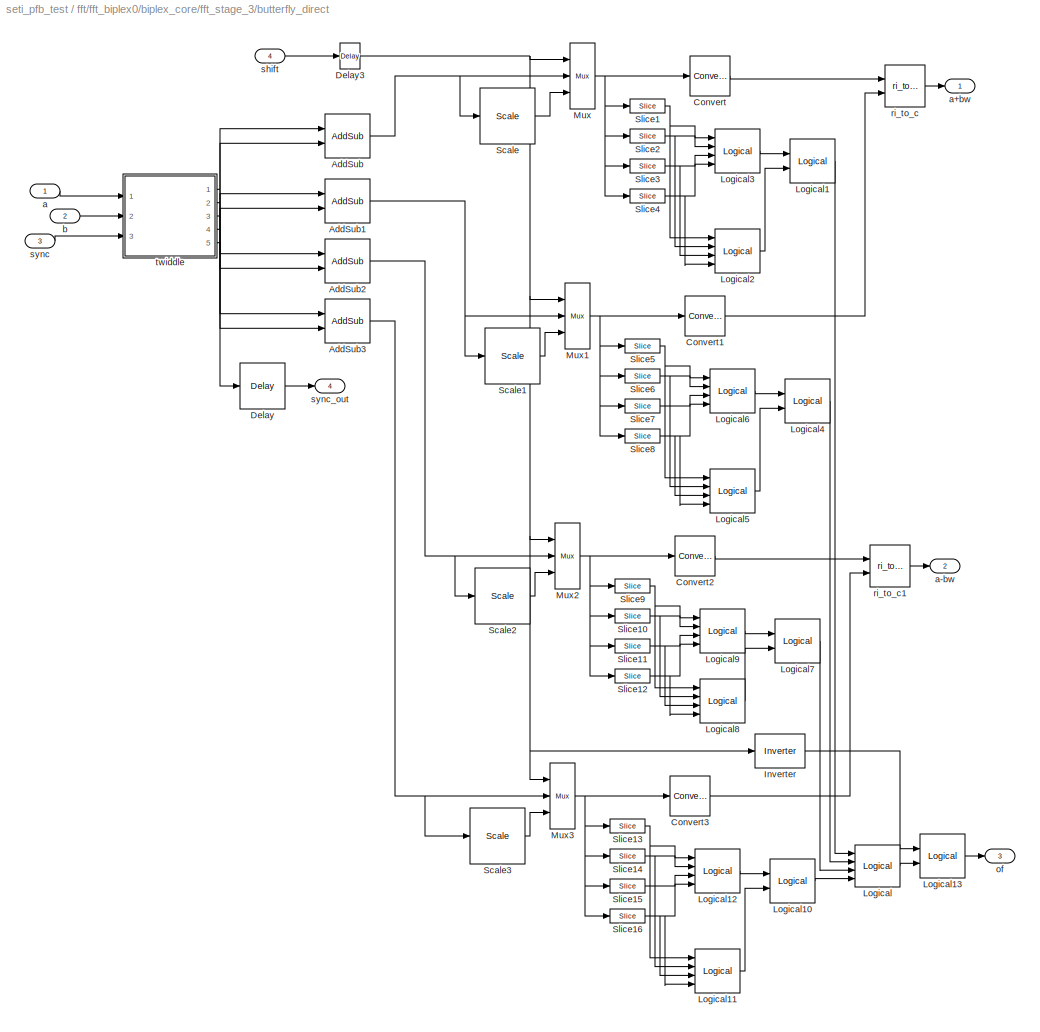
BLOCK [SubSystem] fft/fft_biplex0/biplex_core/fft_stage_3/butterfly_direct
  AncestorBlock = casper_library/FFTs/butterfly_direct
  AttributesFormatString = FFTSize=5, Coeffs=[0  1  2  3],\n StepPeriod=2, BitWidth=18
  MaskCallbackString = |||||||||
  MaskEnableString = on,on,on,on,on,on,on,on,on,on
  MaskIconFrame = on
  MaskIconOpaque = on
  MaskIconRotate = none
  MaskIconUnits = autoscale
  MaskSelfModifiable = on
  MaskStyleString = edit,edit,edit,edit,edit,edit,edit,edit,popup(Truncate|Round  (unbiased: +/- Inf)|Round  (unbiased: Even Values)),popup(Wrap|Saturate|Error)
  MaskTabNameString = ,,,,,,,,,
  MaskToolTipString = on,on,on,on,on,on,on,on,on,on
  MaskTunableValueString = on,on,on,on,on,on,on,on,on,on
  MaskType = butterfly_direct
  MaskValueString = 5|[0 1 2 3]|2|18|3|4|3|0|Truncate|Wrap
  MaskVarAliasString = ,,,,,,,,,
  MaskVariables = FFTSize=@1;Coeffs=@2;StepPeriod=@3;BitWidth=@4;add_latency=@5;mult_latency=@6;bram_latency=@7;use_bram=@8;quantization=&9;overflow=&10;
  MaskVisibilityString = on,on,on,on,on,on,on,on,on,on
  MinAlgLoopOccurrences = off
  Ports = [4, 4]
  RTWSystemCode = Auto
  TreatAsAtomicUnit = off
  UserData = DataTag12
  UserDataPersistent = on
BLOCK [Reference] fft/fft_biplex0/biplex_core/fft_stage_3/butterfly_direct/AddSub  REF=xbsIndex_r3/AddSub
  Ports = [2, 1]
  SourceBlock = xbsIndex_r3/AddSub
  SourceType = Xilinx Adder/Subtractor
  arith_type = Unsigned
  bin_pt = 2
  dbl_ovrd = off
  en = off
  explicit_period = off
  gen_core = on
  latency = add_latency
  mode = Addition
  n_bits = 8
  overflow = Wrap
  period = 1
  pipeline = on
  precision = Full
  quantization = Truncate
  show_param = on
  use_carryin = off
  use_carryout = off
  use_core = on
  use_rpm = on
  xl_area = [0, 0, 0, 0, 0, 0, 0]
  xl_use_area = off
BLOCK [Reference] fft/fft_biplex0/biplex_core/fft_stage_3/butterfly_direct/AddSub1  REF=xbsIndex_r3/AddSub
  Ports = [2, 1]
  SourceBlock = xbsIndex_r3/AddSub
  SourceType = Xilinx Adder/Subtractor
  arith_type = Unsigned
  bin_pt = 2
  dbl_ovrd = off
  en = off
  explicit_period = off
  gen_core = on
  latency = add_latency
  mode = Addition
  n_bits = 8
  overflow = Wrap
  period = 1
  pipeline = on
  precision = Full
  quantization = Truncate
  show_param = on
  use_carryin = off
  use_carryout = off
  use_core = on
  use_rpm = on
  xl_area = [0, 0, 0, 0, 0, 0, 0]
  xl_use_area = off
BLOCK [Reference] fft/fft_biplex0/biplex_core/fft_stage_3/butterfly_direct/AddSub2  REF=xbsIndex_r3/AddSub
  Ports = [2, 1]
  SourceBlock = xbsIndex_r3/AddSub
  SourceType = Xilinx Adder/Subtractor
  arith_type = Unsigned
  bin_pt = 2
  dbl_ovrd = off
  en = off
  explicit_period = off
  gen_core = on
  latency = add_latency
  mode = Subtraction
  n_bits = 8
  overflow = Wrap
  period = 1
  pipeline = on
  precision = Full
  quantization = Truncate
  show_param = on
  use_carryin = off
  use_carryout = off
  use_core = on
  use_rpm = on
  xl_area = [0, 0, 0, 0, 0, 0, 0]
  xl_use_area = off
BLOCK [Reference] fft/fft_biplex0/biplex_core/fft_stage_3/butterfly_direct/AddSub3  REF=xbsIndex_r3/AddSub
  Ports = [2, 1]
  SourceBlock = xbsIndex_r3/AddSub
  SourceType = Xilinx Adder/Subtractor
  arith_type = Unsigned
  bin_pt = 2
  dbl_ovrd = off
  en = off
  explicit_period = off
  gen_core = on
  latency = add_latency
  mode = Subtraction
  n_bits = 8
  overflow = Wrap
  period = 1
  pipeline = on
  precision = Full
  quantization = Truncate
  show_param = on
  use_carryin = off
  use_carryout = off
  use_core = on
  use_rpm = on
  xl_area = [0, 0, 0, 0, 0, 0, 0]
  xl_use_area = off
BLOCK [Reference] fft/fft_biplex0/biplex_core/fft_stage_3/butterfly_direct/Convert  REF=xbsIndex_r3/Convert
  Ports = [1, 1]
  SourceBlock = xbsIndex_r3/Convert
  SourceType = Xilinx Converter Block
  arith_type = Signed  (2's comp)
  bin_pt = BitWidth-1
  dbl_ovrd = off
  explicit_period = off
  inserted_by_tool = off
  latency = add_latency
  n_bits = BitWidth
  overflow = Wrap
  period = 1
  pipeline = off
  quantization = Truncate
  show_param = off
  xl_area = [0, 0, 0, 0, 0, 0, 0]
  xl_use_area = off
BLOCK [Reference] fft/fft_biplex0/biplex_core/fft_stage_3/butterfly_direct/Convert1  REF=xbsIndex_r3/Convert
  Ports = [1, 1]
  SourceBlock = xbsIndex_r3/Convert
  SourceType = Xilinx Converter Block
  arith_type = Signed  (2's comp)
  bin_pt = BitWidth-1
  dbl_ovrd = off
  explicit_period = off
  inserted_by_tool = off
  latency = add_latency
  n_bits = BitWidth
  overflow = Wrap
  period = 1
  pipeline = off
  quantization = Truncate
  show_param = off
  xl_area = [0, 0, 0, 0, 0, 0, 0]
  xl_use_area = off
BLOCK [Reference] fft/fft_biplex0/biplex_core/fft_stage_3/butterfly_direct/Convert2  REF=xbsIndex_r3/Convert
  Ports = [1, 1]
  SourceBlock = xbsIndex_r3/Convert
  SourceType = Xilinx Converter Block
  arith_type = Signed  (2's comp)
  bin_pt = BitWidth-1
  dbl_ovrd = off
  explicit_period = off
  inserted_by_tool = off
  latency = add_latency
  n_bits = BitWidth
  overflow = Wrap
  period = 1
  pipeline = off
  quantization = Truncate
  show_param = off
  xl_area = [0, 0, 0, 0, 0, 0, 0]
  xl_use_area = off
BLOCK [Reference] fft/fft_biplex0/biplex_core/fft_stage_3/butterfly_direct/Convert3  REF=xbsIndex_r3/Convert
  Ports = [1, 1]
  SourceBlock = xbsIndex_r3/Convert
  SourceType = Xilinx Converter Block
  arith_type = Signed  (2's comp)
  bin_pt = BitWidth-1
  dbl_ovrd = off
  explicit_period = off
  inserted_by_tool = off
  latency = add_latency
  n_bits = BitWidth
  overflow = Wrap
  period = 1
  pipeline = off
  quantization = Truncate
  show_param = off
  xl_area = [0, 0, 0, 0, 0, 0, 0]
  xl_use_area = off
BLOCK [Reference] fft/fft_biplex0/biplex_core/fft_stage_3/butterfly_direct/Delay  REF=xbsIndex_r3/Delay
  Ports = [1, 1]
  SourceBlock = xbsIndex_r3/Delay
  SourceType = Xilinx Delay Block
  accept_only_valid = off
  dbl_ovrd = off
  en = off
  explicit_period = off
  init_zero = on
  latency = 2 * add_latency + 1
  period = 1
  reg_retiming = off
  show_param = off
  xl_area = [0, 0, 0, 0, 0, 0, 0]
  xl_use_area = off
BLOCK [Reference] fft/fft_biplex0/biplex_core/fft_stage_3/butterfly_direct/Delay3  REF=xbsIndex_r3/Delay
  Ports = [1, 1]
  SourceBlock = xbsIndex_r3/Delay
  SourceType = Xilinx Delay Block
  accept_only_valid = off
  dbl_ovrd = off
  en = off
  explicit_period = off
  init_zero = on
  latency = 1
  period = 1
  reg_retiming = off
  show_param = off
  xl_area = [0, 0, 0, 0, 0, 0, 0]
  xl_use_area = off
BLOCK [Reference] fft/fft_biplex0/biplex_core/fft_stage_3/butterfly_direct/Inverter  REF=xbsIndex_r3/Inverter
  Ports = [1, 1]
  SourceBlock = xbsIndex_r3/Inverter
  SourceType = Xilinx Inverter
  dbl_ovrd = off
  en = off
  explicit_period = off
  latency = 0
  period = 1
  show_param = off
  xl_area = [0, 0, 0, 0, 0, 0, 0]
  xl_use_area = off
BLOCK [Reference] fft/fft_biplex0/biplex_core/fft_stage_3/butterfly_direct/Logical  REF=xbsIndex_r3/Logical
  Ports = [4, 1]
  SourceBlock = xbsIndex_r3/Logical
  SourceType = Xilinx Logical Block
  align_bp = on
  arith_type = Unsigned
  bin_pt = 2
  dbl_ovrd = off
  en = off
  explicit_period = off
  inputs = 4
  latency = 1
  logical_function = OR
  n_bits = 8
  period = 1
  precision = Full
  show_param = off
  xl_area = [0, 0, 0, 0, 0, 0, 0]
  xl_use_area = off
BLOCK [Reference] fft/fft_biplex0/biplex_core/fft_stage_3/butterfly_direct/Logical1  REF=xbsIndex_r3/Logical
  Ports = [2, 1]
  SourceBlock = xbsIndex_r3/Logical
  SourceType = Xilinx Logical Block
  align_bp = off
  arith_type = Unsigned
  bin_pt = 2
  dbl_ovrd = off
  en = off
  explicit_period = off
  inputs = 2
  latency = 1
  logical_function = OR
  n_bits = 8
  period = 1
  precision = Full
  show_param = off
  xl_area = [0, 0, 0, 0, 0, 0, 0]
  xl_use_area = off
BLOCK [Reference] fft/fft_biplex0/biplex_core/fft_stage_3/butterfly_direct/Logical10  REF=xbsIndex_r3/Logical
  Ports = [2, 1]
  SourceBlock = xbsIndex_r3/Logical
  SourceType = Xilinx Logical Block
  align_bp = off
  arith_type = Unsigned
  bin_pt = 2
  dbl_ovrd = off
  en = off
  explicit_period = off
  inputs = 2
  latency = 1
  logical_function = OR
  n_bits = 8
  period = 1
  precision = Full
  show_param = off
  xl_area = [0, 0, 0, 0, 0, 0, 0]
  xl_use_area = off
BLOCK [Reference] fft/fft_biplex0/biplex_core/fft_stage_3/butterfly_direct/Logical11  REF=xbsIndex_r3/Logical
  Ports = [4, 1]
  SourceBlock = xbsIndex_r3/Logical
  SourceType = Xilinx Logical Block
  align_bp = off
  arith_type = Unsigned
  bin_pt = 2
  dbl_ovrd = off
  en = off
  explicit_period = off
  inputs = 4
  latency = 1
  logical_function = NOR
  n_bits = 8
  period = 1
  precision = Full
  show_param = off
  xl_area = [0, 0, 0, 0, 0, 0, 0]
  xl_use_area = off
BLOCK [Reference] fft/fft_biplex0/biplex_core/fft_stage_3/butterfly_direct/Logical12  REF=xbsIndex_r3/Logical
  Ports = [4, 1]
  SourceBlock = xbsIndex_r3/Logical
  SourceType = Xilinx Logical Block
  align_bp = off
  arith_type = Unsigned
  bin_pt = 2
  dbl_ovrd = off
  en = off
  explicit_period = off
  inputs = 4
  latency = 1
  logical_function = AND
  n_bits = 8
  period = 1
  precision = Full
  show_param = off
  xl_area = [0, 0, 0, 0, 0, 0, 0]
  xl_use_area = off
BLOCK [Reference] fft/fft_biplex0/biplex_core/fft_stage_3/butterfly_direct/Logical13  REF=xbsIndex_r3/Logical
  Ports = [2, 1]
  SourceBlock = xbsIndex_r3/Logical
  SourceType = Xilinx Logical Block
  align_bp = off
  arith_type = Unsigned
  bin_pt = 2
  dbl_ovrd = off
  en = off
  explicit_period = off
  inputs = 2
  latency = 1
  logical_function = AND
  n_bits = 8
  period = 1
  precision = Full
  show_param = off
  xl_area = [0, 0, 0, 0, 0, 0, 0]
  xl_use_area = off
BLOCK [Reference] fft/fft_biplex0/biplex_core/fft_stage_3/butterfly_direct/Logical2  REF=xbsIndex_r3/Logical
  Ports = [4, 1]
  SourceBlock = xbsIndex_r3/Logical
  SourceType = Xilinx Logical Block
  align_bp = off
  arith_type = Unsigned
  bin_pt = 2
  dbl_ovrd = off
  en = off
  explicit_period = off
  inputs = 4
  latency = 1
  logical_function = NOR
  n_bits = 8
  period = 1
  precision = Full
  show_param = off
  xl_area = [0, 0, 0, 0, 0, 0, 0]
  xl_use_area = off
BLOCK [Reference] fft/fft_biplex0/biplex_core/fft_stage_3/butterfly_direct/Logical3  REF=xbsIndex_r3/Logical
  Ports = [4, 1]
  SourceBlock = xbsIndex_r3/Logical
  SourceType = Xilinx Logical Block
  align_bp = off
  arith_type = Unsigned
  bin_pt = 2
  dbl_ovrd = off
  en = off
  explicit_period = off
  inputs = 4
  latency = 1
  logical_function = AND
  n_bits = 8
  period = 1
  precision = Full
  show_param = off
  xl_area = [0, 0, 0, 0, 0, 0, 0]
  xl_use_area = off
BLOCK [Reference] fft/fft_biplex0/biplex_core/fft_stage_3/butterfly_direct/Logical4  REF=xbsIndex_r3/Logical
  Ports = [2, 1]
  SourceBlock = xbsIndex_r3/Logical
  SourceType = Xilinx Logical Block
  align_bp = off
  arith_type = Unsigned
  bin_pt = 2
  dbl_ovrd = off
  en = off
  explicit_period = off
  inputs = 2
  latency = 1
  logical_function = OR
  n_bits = 8
  period = 1
  precision = Full
  show_param = off
  xl_area = [0, 0, 0, 0, 0, 0, 0]
  xl_use_area = off
BLOCK [Reference] fft/fft_biplex0/biplex_core/fft_stage_3/butterfly_direct/Logical5  REF=xbsIndex_r3/Logical
  Ports = [4, 1]
  SourceBlock = xbsIndex_r3/Logical
  SourceType = Xilinx Logical Block
  align_bp = off
  arith_type = Unsigned
  bin_pt = 2
  dbl_ovrd = off
  en = off
  explicit_period = off
  inputs = 4
  latency = 1
  logical_function = NOR
  n_bits = 8
  period = 1
  precision = Full
  show_param = off
  xl_area = [0, 0, 0, 0, 0, 0, 0]
  xl_use_area = off
BLOCK [Reference] fft/fft_biplex0/biplex_core/fft_stage_3/butterfly_direct/Logical6  REF=xbsIndex_r3/Logical
  Ports = [4, 1]
  SourceBlock = xbsIndex_r3/Logical
  SourceType = Xilinx Logical Block
  align_bp = off
  arith_type = Unsigned
  bin_pt = 2
  dbl_ovrd = off
  en = off
  explicit_period = off
  inputs = 4
  latency = 1
  logical_function = AND
  n_bits = 8
  period = 1
  precision = Full
  show_param = off
  xl_area = [0, 0, 0, 0, 0, 0, 0]
  xl_use_area = off
BLOCK [Reference] fft/fft_biplex0/biplex_core/fft_stage_3/butterfly_direct/Logical7  REF=xbsIndex_r3/Logical
  Ports = [2, 1]
  SourceBlock = xbsIndex_r3/Logical
  SourceType = Xilinx Logical Block
  align_bp = off
  arith_type = Unsigned
  bin_pt = 2
  dbl_ovrd = off
  en = off
  explicit_period = off
  inputs = 2
  latency = 1
  logical_function = OR
  n_bits = 8
  period = 1
  precision = Full
  show_param = off
  xl_area = [0, 0, 0, 0, 0, 0, 0]
  xl_use_area = off
BLOCK [Reference] fft/fft_biplex0/biplex_core/fft_stage_3/butterfly_direct/Logical8  REF=xbsIndex_r3/Logical
  Ports = [4, 1]
  SourceBlock = xbsIndex_r3/Logical
  SourceType = Xilinx Logical Block
  align_bp = off
  arith_type = Unsigned
  bin_pt = 2
  dbl_ovrd = off
  en = off
  explicit_period = off
  inputs = 4
  latency = 1
  logical_function = NOR
  n_bits = 8
  period = 1
  precision = Full
  show_param = off
  xl_area = [0, 0, 0, 0, 0, 0, 0]
  xl_use_area = off
BLOCK [Reference] fft/fft_biplex0/biplex_core/fft_stage_3/butterfly_direct/Logical9  REF=xbsIndex_r3/Logical
  Ports = [4, 1]
  SourceBlock = xbsIndex_r3/Logical
  SourceType = Xilinx Logical Block
  align_bp = off
  arith_type = Unsigned
  bin_pt = 2
  dbl_ovrd = off
  en = off
  explicit_period = off
  inputs = 4
  latency = 1
  logical_function = AND
  n_bits = 8
  period = 1
  precision = Full
  show_param = off
  xl_area = [0, 0, 0, 0, 0, 0, 0]
  xl_use_area = off
BLOCK [Reference] fft/fft_biplex0/biplex_core/fft_stage_3/butterfly_direct/Mux  REF=xbsIndex_r3/Mux
  Ports = [3, 1]
  SourceBlock = xbsIndex_r3/Mux
  SourceType = Xilinx Multiplexer Block
  arith_type = Signed  (2's comp)
  bin_pt = 2
  dbl_ovrd = off
  en = off
  explicit_period = off
  gen_core = off
  inputs = 2
  latency = 1
  mux_type = off
  n_bits = 8
  overflow = Wrap
  period = 1
  precision = Full
  quantization = Truncate
  show_param = off
  use_rpm = off
  xl_area = [0, 0, 0, 0, 0, 0, 0]
  xl_use_area = off
BLOCK [Reference] fft/fft_biplex0/biplex_core/fft_stage_3/butterfly_direct/Mux1  REF=xbsIndex_r3/Mux
  Ports = [3, 1]
  SourceBlock = xbsIndex_r3/Mux
  SourceType = Xilinx Multiplexer Block
  arith_type = Signed  (2's comp)
  bin_pt = 2
  dbl_ovrd = off
  en = off
  explicit_period = off
  gen_core = off
  inputs = 2
  latency = 1
  mux_type = off
  n_bits = 8
  overflow = Wrap
  period = 1
  precision = Full
  quantization = Truncate
  show_param = off
  use_rpm = off
  xl_area = [0, 0, 0, 0, 0, 0, 0]
  xl_use_area = off
BLOCK [Reference] fft/fft_biplex0/biplex_core/fft_stage_3/butterfly_direct/Mux2  REF=xbsIndex_r3/Mux
  Ports = [3, 1]
  SourceBlock = xbsIndex_r3/Mux
  SourceType = Xilinx Multiplexer Block
  arith_type = Signed  (2's comp)
  bin_pt = 2
  dbl_ovrd = off
  en = off
  explicit_period = off
  gen_core = off
  inputs = 2
  latency = 1
  mux_type = off
  n_bits = 8
  overflow = Wrap
  period = 1
  precision = Full
  quantization = Truncate
  show_param = off
  use_rpm = off
  xl_area = [0, 0, 0, 0, 0, 0, 0]
  xl_use_area = off
BLOCK [Reference] fft/fft_biplex0/biplex_core/fft_stage_3/butterfly_direct/Mux3  REF=xbsIndex_r3/Mux
  Ports = [3, 1]
  SourceBlock = xbsIndex_r3/Mux
  SourceType = Xilinx Multiplexer Block
  arith_type = Signed  (2's comp)
  bin_pt = 2
  dbl_ovrd = off
  en = off
  explicit_period = off
  gen_core = off
  inputs = 2
  latency = 1
  mux_type = off
  n_bits = 8
  overflow = Wrap
  period = 1
  precision = Full
  quantization = Truncate
  show_param = off
  use_rpm = off
  xl_area = [0, 0, 0, 0, 0, 0, 0]
  xl_use_area = off
BLOCK [Reference] fft/fft_biplex0/biplex_core/fft_stage_3/butterfly_direct/Scale  REF=xbsIndex_r3/Scale
  Ports = [1, 1]
  SourceBlock = xbsIndex_r3/Scale
  SourceType = Xilinx Scaling Block
  dbl_ovrd = off
  explicit_period = off
  period = 1
  scale_factor = -1
BLOCK [Reference] fft/fft_biplex0/biplex_core/fft_stage_3/butterfly_direct/Scale1  REF=xbsIndex_r3/Scale
  Ports = [1, 1]
  SourceBlock = xbsIndex_r3/Scale
  SourceType = Xilinx Scaling Block
  dbl_ovrd = off
  explicit_period = off
  period = 1
  scale_factor = -1
BLOCK [Reference] fft/fft_biplex0/biplex_core/fft_stage_3/butterfly_direct/Scale2  REF=xbsIndex_r3/Scale
  Ports = [1, 1]
  SourceBlock = xbsIndex_r3/Scale
  SourceType = Xilinx Scaling Block
  dbl_ovrd = off
  explicit_period = off
  period = 1
  scale_factor = -1
BLOCK [Reference] fft/fft_biplex0/biplex_core/fft_stage_3/butterfly_direct/Scale3  REF=xbsIndex_r3/Scale
  Ports = [1, 1]
  SourceBlock = xbsIndex_r3/Scale
  SourceType = Xilinx Scaling Block
  dbl_ovrd = off
  explicit_period = off
  period = 1
  scale_factor = -1
BLOCK [Reference] fft/fft_biplex0/biplex_core/fft_stage_3/butterfly_direct/Slice1  REF=xbsIndex_r3/Slice
  Ports = [1, 1]
  SourceBlock = xbsIndex_r3/Slice
  SourceType = Xilinx Slice Block
  base0 = LSB of Input
  base1 = MSB of Input
  bit0 = 0
  bit1 = 0
  boolean_output = on
  dbl_ovrd = off
  explicit_period = off
  mode = Upper Bit Location + Width
  nbits = 1
  period = 1
BLOCK [Reference] fft/fft_biplex0/biplex_core/fft_stage_3/butterfly_direct/Slice10  REF=xbsIndex_r3/Slice
  Ports = [1, 1]
  SourceBlock = xbsIndex_r3/Slice
  SourceType = Xilinx Slice Block
  base0 = LSB of Input
  base1 = MSB of Input
  bit0 = 0
  bit1 = -1
  boolean_output = on
  dbl_ovrd = off
  explicit_period = off
  mode = Upper Bit Location + Width
  nbits = 1
  period = 1
BLOCK [Reference] fft/fft_biplex0/biplex_core/fft_stage_3/butterfly_direct/Slice11  REF=xbsIndex_r3/Slice
  Ports = [1, 1]
  SourceBlock = xbsIndex_r3/Slice
  SourceType = Xilinx Slice Block
  base0 = LSB of Input
  base1 = MSB of Input
  bit0 = 0
  bit1 = -2
  boolean_output = on
  dbl_ovrd = off
  explicit_period = off
  mode = Upper Bit Location + Width
  nbits = 1
  period = 1
BLOCK [Reference] fft/fft_biplex0/biplex_core/fft_stage_3/butterfly_direct/Slice12  REF=xbsIndex_r3/Slice
  Ports = [1, 1]
  SourceBlock = xbsIndex_r3/Slice
  SourceType = Xilinx Slice Block
  base0 = LSB of Input
  base1 = MSB of Input
  bit0 = 0
  bit1 = -3
  boolean_output = on
  dbl_ovrd = off
  explicit_period = off
  mode = Upper Bit Location + Width
  nbits = 1
  period = 1
BLOCK [Reference] fft/fft_biplex0/biplex_core/fft_stage_3/butterfly_direct/Slice13  REF=xbsIndex_r3/Slice
  Ports = [1, 1]
  SourceBlock = xbsIndex_r3/Slice
  SourceType = Xilinx Slice Block
  base0 = LSB of Input
  base1 = MSB of Input
  bit0 = 0
  bit1 = 0
  boolean_output = on
  dbl_ovrd = off
  explicit_period = off
  mode = Upper Bit Location + Width
  nbits = 1
  period = 1
BLOCK [Reference] fft/fft_biplex0/biplex_core/fft_stage_3/butterfly_direct/Slice14  REF=xbsIndex_r3/Slice
  Ports = [1, 1]
  SourceBlock = xbsIndex_r3/Slice
  SourceType = Xilinx Slice Block
  base0 = LSB of Input
  base1 = MSB of Input
  bit0 = 0
  bit1 = -1
  boolean_output = on
  dbl_ovrd = off
  explicit_period = off
  mode = Upper Bit Location + Width
  nbits = 1
  period = 1
BLOCK [Reference] fft/fft_biplex0/biplex_core/fft_stage_3/butterfly_direct/Slice15  REF=xbsIndex_r3/Slice
  Ports = [1, 1]
  SourceBlock = xbsIndex_r3/Slice
  SourceType = Xilinx Slice Block
  base0 = LSB of Input
  base1 = MSB of Input
  bit0 = 0
  bit1 = -2
  boolean_output = on
  dbl_ovrd = off
  explicit_period = off
  mode = Upper Bit Location + Width
  nbits = 1
  period = 1
BLOCK [Reference] fft/fft_biplex0/biplex_core/fft_stage_3/butterfly_direct/Slice16  REF=xbsIndex_r3/Slice
  Ports = [1, 1]
  SourceBlock = xbsIndex_r3/Slice
  SourceType = Xilinx Slice Block
  base0 = LSB of Input
  base1 = MSB of Input
  bit0 = 0
  bit1 = -3
  boolean_output = on
  dbl_ovrd = off
  explicit_period = off
  mode = Upper Bit Location + Width
  nbits = 1
  period = 1
BLOCK [Reference] fft/fft_biplex0/biplex_core/fft_stage_3/butterfly_direct/Slice2  REF=xbsIndex_r3/Slice
  Ports = [1, 1]
  SourceBlock = xbsIndex_r3/Slice
  SourceType = Xilinx Slice Block
  base0 = LSB of Input
  base1 = MSB of Input
  bit0 = 0
  bit1 = -1
  boolean_output = on
  dbl_ovrd = off
  explicit_period = off
  mode = Upper Bit Location + Width
  nbits = 1
  period = 1
BLOCK [Reference] fft/fft_biplex0/biplex_core/fft_stage_3/butterfly_direct/Slice3  REF=xbsIndex_r3/Slice
  Ports = [1, 1]
  SourceBlock = xbsIndex_r3/Slice
  SourceType = Xilinx Slice Block
  base0 = LSB of Input
  base1 = MSB of Input
  bit0 = 0
  bit1 = -2
  boolean_output = on
  dbl_ovrd = off
  explicit_period = off
  mode = Upper Bit Location + Width
  nbits = 1
  period = 1
BLOCK [Reference] fft/fft_biplex0/biplex_core/fft_stage_3/butterfly_direct/Slice4  REF=xbsIndex_r3/Slice
  Ports = [1, 1]
  SourceBlock = xbsIndex_r3/Slice
  SourceType = Xilinx Slice Block
  base0 = LSB of Input
  base1 = MSB of Input
  bit0 = 0
  bit1 = -3
  boolean_output = on
  dbl_ovrd = off
  explicit_period = off
  mode = Upper Bit Location + Width
  nbits = 1
  period = 1
BLOCK [Reference] fft/fft_biplex0/biplex_core/fft_stage_3/butterfly_direct/Slice5  REF=xbsIndex_r3/Slice
  Ports = [1, 1]
  SourceBlock = xbsIndex_r3/Slice
  SourceType = Xilinx Slice Block
  base0 = LSB of Input
  base1 = MSB of Input
  bit0 = 0
  bit1 = 0
  boolean_output = on
  dbl_ovrd = off
  explicit_period = off
  mode = Upper Bit Location + Width
  nbits = 1
  period = 1
BLOCK [Reference] fft/fft_biplex0/biplex_core/fft_stage_3/butterfly_direct/Slice6  REF=xbsIndex_r3/Slice
  Ports = [1, 1]
  SourceBlock = xbsIndex_r3/Slice
  SourceType = Xilinx Slice Block
  base0 = LSB of Input
  base1 = MSB of Input
  bit0 = 0
  bit1 = -1
  boolean_output = on
  dbl_ovrd = off
  explicit_period = off
  mode = Upper Bit Location + Width
  nbits = 1
  period = 1
BLOCK [Reference] fft/fft_biplex0/biplex_core/fft_stage_3/butterfly_direct/Slice7  REF=xbsIndex_r3/Slice
  Ports = [1, 1]
  SourceBlock = xbsIndex_r3/Slice
  SourceType = Xilinx Slice Block
  base0 = LSB of Input
  base1 = MSB of Input
  bit0 = 0
  bit1 = -2
  boolean_output = on
  dbl_ovrd = off
  explicit_period = off
  mode = Upper Bit Location + Width
  nbits = 1
  period = 1
BLOCK [Reference] fft/fft_biplex0/biplex_core/fft_stage_3/butterfly_direct/Slice8  REF=xbsIndex_r3/Slice
  Ports = [1, 1]
  SourceBlock = xbsIndex_r3/Slice
  SourceType = Xilinx Slice Block
  base0 = LSB of Input
  base1 = MSB of Input
  bit0 = 0
  bit1 = -3
  boolean_output = on
  dbl_ovrd = off
  explicit_period = off
  mode = Upper Bit Location + Width
  nbits = 1
  period = 1
BLOCK [Reference] fft/fft_biplex0/biplex_core/fft_stage_3/butterfly_direct/Slice9  REF=xbsIndex_r3/Slice
  Ports = [1, 1]
  SourceBlock = xbsIndex_r3/Slice
  SourceType = Xilinx Slice Block
  base0 = LSB of Input
  base1 = MSB of Input
  bit0 = 0
  bit1 = 0
  boolean_output = on
  dbl_ovrd = off
  explicit_period = off
  mode = Upper Bit Location + Width
  nbits = 1
  period = 1
BLOCK [Inport] fft/fft_biplex0/biplex_core/fft_stage_3/butterfly_direct/a
  IconDisplay = Port number
  LatchInput = off
  Port = 1
BLOCK [Outport] fft/fft_biplex0/biplex_core/fft_stage_3/butterfly_direct/a+bw
  BusOutputAsStruct = off
  IconDisplay = Port number
BLOCK [Outport] fft/fft_biplex0/biplex_core/fft_stage_3/butterfly_direct/a-bw
  BusOutputAsStruct = off
  IconDisplay = Port number
  Port = 2
BLOCK [Inport] fft/fft_biplex0/biplex_core/fft_stage_3/butterfly_direct/b
  IconDisplay = Port number
  LatchInput = off
  Port = 2
BLOCK [Outport] fft/fft_biplex0/biplex_core/fft_stage_3/butterfly_direct/of
  BusOutputAsStruct = off
  IconDisplay = Port number
  Port = 3
BLOCK [Reference] fft/fft_biplex0/biplex_core/fft_stage_3/butterfly_direct/ri_to_c  REF=casper_library/Misc/ri_to_c  (lib defined in mdl_138b2fc3435f, mdl_4ed325b712b3, +2 more)
  Ports = [2, 1]
  ShowPortLabels = on
  SourceBlock = casper_library/Misc/ri_to_c
  SourceType = ri_to_c
  UserData = DataTag13
  UserDataPersistent = on
BLOCK [Reference] fft/fft_biplex0/biplex_core/fft_stage_3/butterfly_direct/ri_to_c1  REF=casper_library/Misc/ri_to_c  (lib defined in mdl_138b2fc3435f, mdl_4ed325b712b3, +2 more)
  Ports = [2, 1]
  ShowPortLabels = on
  SourceBlock = casper_library/Misc/ri_to_c
  SourceType = ri_to_c
  UserData = DataTag14
  UserDataPersistent = on
BLOCK [Inport] fft/fft_biplex0/biplex_core/fft_stage_3/butterfly_direct/shift
  IconDisplay = Port number
  LatchInput = off
  Port = 4
BLOCK [Inport] fft/fft_biplex0/biplex_core/fft_stage_3/butterfly_direct/sync
  IconDisplay = Port number
  LatchInput = off
  Port = 3
BLOCK [Outport] fft/fft_biplex0/biplex_core/fft_stage_3/butterfly_direct/sync_out
  BusOutputAsStruct = off
  IconDisplay = Port number
  Port = 4
BLOCK [SubSystem] fft/fft_biplex0/biplex_core/fft_stage_3/butterfly_direct/twiddle
  AttributesFormatString = %<BlockChoice>
  BlockChoice = twiddle_general_3mult
  MemberBlocks = twiddle_coeff_0,twiddle_coeff_1,twiddle_general_3mult,twiddle_general_4mult,twiddle_stage_2
  MinAlgLoopOccurrences = off
  Ports = [3, 5]
  RTWSystemCode = Auto
  TemplateBlock = casper_library/FFTs/Twiddle/twiddle
  TreatAsAtomicUnit = off
BLOCK [Inport] fft/fft_biplex0/biplex_core/fft_stage_3/butterfly_direct/twiddle/a
  IconDisplay = Port number
  LatchInput = off
  Port = 1
BLOCK [Outport] fft/fft_biplex0/biplex_core/fft_stage_3/butterfly_direct/twiddle/a_im
  BusOutputAsStruct = off
  IconDisplay = Port number
  Port = 2
BLOCK [Outport] fft/fft_biplex0/biplex_core/fft_stage_3/butterfly_direct/twiddle/a_re
  BusOutputAsStruct = off
  IconDisplay = Port number
BLOCK [Inport] fft/fft_biplex0/biplex_core/fft_stage_3/butterfly_direct/twiddle/b
  IconDisplay = Port number
  LatchInput = off
  Port = 2
BLOCK [Outport] fft/fft_biplex0/biplex_core/fft_stage_3/butterfly_direct/twiddle/bw_im
  BusOutputAsStruct = off
  IconDisplay = Port number
  Port = 4
BLOCK [Outport] fft/fft_biplex0/biplex_core/fft_stage_3/butterfly_direct/twiddle/bw_re
  BusOutputAsStruct = off
  IconDisplay = Port number
  Port = 3
BLOCK [Inport] fft/fft_biplex0/biplex_core/fft_stage_3/butterfly_direct/twiddle/sync
  IconDisplay = Port number
  LatchInput = off
  Port = 3
BLOCK [Outport] fft/fft_biplex0/biplex_core/fft_stage_3/butterfly_direct/twiddle/sync_out
  BusOutputAsStruct = off
  IconDisplay = Port number
  Port = 5
BLOCK [Reference] fft/fft_biplex0/biplex_core/fft_stage_3/butterfly_direct/twiddle/twiddle_general_3mult  REF=casper_library/FFTs/Twiddle/twiddle_general_3mult  (lib defined in mdl_138b2fc3435f, mdl_4ed325b712b3, +2 more)
  BitWidth = 18
  Coeffs = [1+0i           6.1232e-017-1i               0.70711-0.70711i        -0.70711-0.70711i    ]
  Ports = [3, 5]
  ShowPortLabels = on
  SourceBlock = casper_library/FFTs/Twiddle/twiddle_general_3mult
  StepPeriod = 2
  add_latency = 3
  bram_latency = 3
  mult_latency = 4
BLOCK [SubSystem] fft/fft_biplex0/biplex_core/fft_stage_3/delay_b
  AttributesFormatString = %<BlockChoice>
  BlockChoice = delay_slr
  MemberBlocks = delay_bram,delay_slr
  MinAlgLoopOccurrences = off
  Ports = [1, 1]
  RTWSystemCode = Auto
  TemplateBlock = casper_library/Delays/delay
  TreatAsAtomicUnit = off
BLOCK [Inport] fft/fft_biplex0/biplex_core/fft_stage_3/delay_b/In1
  IconDisplay = Port number
  LatchInput = off
  Port = 1
BLOCK [Outport] fft/fft_biplex0/biplex_core/fft_stage_3/delay_b/Out1
  BusOutputAsStruct = off
  IconDisplay = Port number
BLOCK [Reference] fft/fft_biplex0/biplex_core/fft_stage_3/delay_b/delay_slr  REF=casper_library/Delays/delay_slr  (lib defined in mdl_138b2fc3435f, mdl_4ed325b712b3, +2 more)
  DelayLen = 2^(FFTSize-FFTStage)
  Ports = [1, 1]
  ShowPortLabels = on
  SourceBlock = casper_library/Delays/delay_slr
  SourceType = delay_slr
BLOCK [SubSystem] fft/fft_biplex0/biplex_core/fft_stage_3/delay_f
  AttributesFormatString = %<BlockChoice>
  BlockChoice = delay_slr
  MemberBlocks = delay_bram,delay_slr
  MinAlgLoopOccurrences = off
  Ports = [1, 1]
  RTWSystemCode = Auto
  TemplateBlock = casper_library/Delays/delay
  TreatAsAtomicUnit = off
BLOCK [Inport] fft/fft_biplex0/biplex_core/fft_stage_3/delay_f/In1
  IconDisplay = Port number
  LatchInput = off
  Port = 1
BLOCK [Outport] fft/fft_biplex0/biplex_core/fft_stage_3/delay_f/Out1
  BusOutputAsStruct = off
  IconDisplay = Port number
BLOCK [Reference] fft/fft_biplex0/biplex_core/fft_stage_3/delay_f/delay_slr  REF=casper_library/Delays/delay_slr  (lib defined in mdl_138b2fc3435f, mdl_4ed325b712b3, +2 more)
  DelayLen = 2^(FFTSize-FFTStage)
  Ports = [1, 1]
  ShowPortLabels = on
  SourceBlock = casper_library/Delays/delay_slr
  SourceType = delay_slr
BLOCK [Inport] fft/fft_biplex0/biplex_core/fft_stage_3/in1
  IconDisplay = Port number
  LatchInput = off
  Port = 1
BLOCK [Inport] fft/fft_biplex0/biplex_core/fft_stage_3/in2
  IconDisplay = Port number
  LatchInput = off
  Port = 2
BLOCK [Outport] fft/fft_biplex0/biplex_core/fft_stage_3/of
  BusOutputAsStruct = off
  IconDisplay = Port number
  Port = 3
BLOCK [Inport] fft/fft_biplex0/biplex_core/fft_stage_3/of_in
  IconDisplay = Port number
  LatchInput = off
  Port = 3
BLOCK [Outport] fft/fft_biplex0/biplex_core/fft_stage_3/out1
  BusOutputAsStruct = off
  IconDisplay = Port number
BLOCK [Outport] fft/fft_biplex0/biplex_core/fft_stage_3/out2
  BusOutputAsStruct = off
  IconDisplay = Port number
  Port = 2
BLOCK [Inport] fft/fft_biplex0/biplex_core/fft_stage_3/shift
  IconDisplay = Port number
  LatchInput = off
  Port = 5
BLOCK [Inport] fft/fft_biplex0/biplex_core/fft_stage_3/sync
  IconDisplay = Port number
  LatchInput = off
  Port = 4
BLOCK [Reference] fft/fft_biplex0/biplex_core/fft_stage_3/sync_delay  REF=casper_library/Delays/sync_delay  (lib defined in mdl_138b2fc3435f, mdl_4ed325b712b3, +2 more)
  DelayLen = 2^(FFTSize - FFTStage)
  Ports = [1, 1]
  ShowPortLabels = on
  SourceBlock = casper_library/Delays/sync_delay
  SourceType = sync_delay
BLOCK [Outport] fft/fft_biplex0/biplex_core/fft_stage_3/sync_out
  BusOutputAsStruct = off
  IconDisplay = Port number
  Port = 4
BLOCK [SubSystem] fft/fft_biplex0/biplex_core/fft_stage_4
  AncestorBlock = casper_library/FFTs/fft_stage_n
  AttributesFormatString = FFTSize=5, FFTStage=4, BitWidth=18
  MaskCallbackString = ||||||||||
  MaskEnableString = on,on,on,on,on,on,on,on,on,on,on
  MaskIconFrame = on
  MaskIconOpaque = on
  MaskIconRotate = none
  MaskIconUnits = autoscale
  MaskSelfModifiable = on
  MaskStyleString = edit,edit,edit,edit,edit,edit,popup(Truncate|Round  (unbiased: +/- Inf)|Round  (unbiased: Even Values)),popup(Wrap|Saturate|Error),edit,edit,edit
  MaskTabNameString = ,,,,,,,,,,
  MaskToolTipString = on,on,on,on,on,on,on,on,on,on,on
  MaskTunableValueString = on,on,on,on,on,on,on,on,on,on,on
  MaskType = fft_stage_n
  MaskValueString = 5|4|18|0|0|11|Truncate|Wrap|3|4|3
  MaskVarAliasString = ,,,,,,,,,,
  MaskVariables = FFTSize=@1;FFTStage=@2;BitWidth=@3;use_bram=@4;CoeffBram=&5;MaxCoeffNum=@6;quantization=&7;overflow=&8;add_latency=@9;mult_latency=@10;bram_latency=@11;
  MaskVisibilityString = on,on,on,on,on,on,on,on,on,on,on
  MinAlgLoopOccurrences = off
  Ports = [5, 4]
  RTWSystemCode = Auto
  TreatAsAtomicUnit = off
  UserData = DataTag15
  UserDataPersistent = on
BLOCK [Reference] fft/fft_biplex0/biplex_core/fft_stage_4/Counter  REF=xbsIndex_r3/Counter
  Ports = [1, 1]
  SourceBlock = xbsIndex_r3/Counter
  SourceType = Xilinx Counter Block
  arith_type = Unsigned
  bin_pt = 0
  cnt_by_val = 1
  cnt_to = Inf
  cnt_type = Free Running
  dbl_ovrd = off
  en = off
  explicit_period = off
  gen_core = on
  load_pin = off
  n_bits = FFTSize-FFTStage+1
  operation = Up
  period = 1
  rst = on
  show_param = off
  start_count = 0
  use_rpm = off
  xl_area = [0, 0, 0, 0, 0, 0, 0]
  xl_use_area = off
BLOCK [Reference] fft/fft_biplex0/biplex_core/fft_stage_4/Delay  REF=xbsIndex_r3/Delay
  Ports = [1, 1]
  SourceBlock = xbsIndex_r3/Delay
  SourceType = Xilinx Delay Block
  accept_only_valid = off
  dbl_ovrd = off
  en = off
  explicit_period = off
  init_zero = on
  latency = 1
  period = 1
  reg_retiming = off
  show_param = off
  xl_area = [0, 0, 0, 0, 0, 0, 0]
  xl_use_area = off
BLOCK [Reference] fft/fft_biplex0/biplex_core/fft_stage_4/Logical1  REF=xbsIndex_r3/Logical
  Ports = [2, 1]
  SourceBlock = xbsIndex_r3/Logical
  SourceType = Xilinx Logical Block
  align_bp = on
  arith_type = Unsigned
  bin_pt = 2
  dbl_ovrd = off
  en = off
  explicit_period = on
  inputs = 2
  latency = 1
  logical_function = OR
  n_bits = 8
  period = 1
  precision = Full
  show_param = off
  xl_area = [0, 0, 0, 0, 0, 0, 0]
  xl_use_area = off
BLOCK [Reference] fft/fft_biplex0/biplex_core/fft_stage_4/Mux  REF=xbsIndex_r3/Mux
  Ports = [3, 1]
  SourceBlock = xbsIndex_r3/Mux
  SourceType = Xilinx Multiplexer Block
  arith_type = Signed  (2's comp)
  bin_pt = 2
  dbl_ovrd = off
  en = off
  explicit_period = off
  gen_core = on
  inputs = 2
  latency = 1
  mux_type = off
  n_bits = 8
  overflow = Wrap
  period = 1
  precision = Full
  quantization = Truncate
  show_param = off
  use_rpm = off
  xl_area = [0, 0, 0, 0, 0, 0, 0]
  xl_use_area = off
BLOCK [Reference] fft/fft_biplex0/biplex_core/fft_stage_4/Mux1  REF=xbsIndex_r3/Mux
  Ports = [3, 1]
  SourceBlock = xbsIndex_r3/Mux
  SourceType = Xilinx Multiplexer Block
  arith_type = Signed  (2's comp)
  bin_pt = 2
  dbl_ovrd = off
  en = off
  explicit_period = off
  gen_core = on
  inputs = 2
  latency = 1
  mux_type = off
  n_bits = 8
  overflow = Wrap
  period = 1
  precision = Full
  quantization = Truncate
  show_param = off
  use_rpm = off
  xl_area = [0, 0, 0, 0, 0, 0, 0]
  xl_use_area = off
BLOCK [Reference] fft/fft_biplex0/biplex_core/fft_stage_4/Slice  REF=xbsIndex_r3/Slice
  Ports = [1, 1]
  SourceBlock = xbsIndex_r3/Slice
  SourceType = Xilinx Slice Block
  base0 = LSB of Input
  base1 = MSB of Input
  bit0 = FFTStage - 1
  bit1 = -(FFTStage - 1)
  boolean_output = on
  dbl_ovrd = off
  explicit_period = off
  mode = Lower Bit Location + Width
  nbits = 1
  period = 1
BLOCK [Reference] fft/fft_biplex0/biplex_core/fft_stage_4/Slice1  REF=xbsIndex_r3/Slice
  Ports = [1, 1]
  SourceBlock = xbsIndex_r3/Slice
  SourceType = Xilinx Slice Block
  base0 = LSB of Input
  base1 = MSB of Input
  bit0 = 0
  bit1 = 0
  boolean_output = off
  dbl_ovrd = off
  explicit_period = off
  mode = Upper Bit Location + Width
  nbits = 1
  period = 1
BLOCK [SubSystem] fft/fft_biplex0/biplex_core/fft_stage_4/butterfly_direct
  AncestorBlock = casper_library/FFTs/butterfly_direct
  AttributesFormatString = FFTSize=5, Coeffs=[0  1  2  3  4  5  6  7],\n StepPeriod=1, BitWidth=18
  MaskCallbackString = |||||||||
  MaskEnableString = on,on,on,on,on,on,on,on,on,on
  MaskIconFrame = on
  MaskIconOpaque = on
  MaskIconRotate = none
  MaskIconUnits = autoscale
  MaskSelfModifiable = on
  MaskStyleString = edit,edit,edit,edit,edit,edit,edit,edit,popup(Truncate|Round  (unbiased: +/- Inf)|Round  (unbiased: Even Values)),popup(Wrap|Saturate|Error)
  MaskTabNameString = ,,,,,,,,,
  MaskToolTipString = on,on,on,on,on,on,on,on,on,on
  MaskTunableValueString = on,on,on,on,on,on,on,on,on,on
  MaskType = butterfly_direct
  MaskValueString = 5|[0 1 2 3 4 5 6 7]|1|18|3|4|3|0|Truncate|Wrap
  MaskVarAliasString = ,,,,,,,,,
  MaskVariables = FFTSize=@1;Coeffs=@2;StepPeriod=@3;BitWidth=@4;add_latency=@5;mult_latency=@6;bram_latency=@7;use_bram=@8;quantization=&9;overflow=&10;
  MaskVisibilityString = on,on,on,on,on,on,on,on,on,on
  MinAlgLoopOccurrences = off
  Ports = [4, 4]
  RTWSystemCode = Auto
  TreatAsAtomicUnit = off
  UserData = DataTag16
  UserDataPersistent = on
BLOCK [Reference] fft/fft_biplex0/biplex_core/fft_stage_4/butterfly_direct/AddSub  REF=xbsIndex_r3/AddSub
  Ports = [2, 1]
  SourceBlock = xbsIndex_r3/AddSub
  SourceType = Xilinx Adder/Subtractor
  arith_type = Unsigned
  bin_pt = 2
  dbl_ovrd = off
  en = off
  explicit_period = off
  gen_core = on
  latency = add_latency
  mode = Addition
  n_bits = 8
  overflow = Wrap
  period = 1
  pipeline = on
  precision = Full
  quantization = Truncate
  show_param = on
  use_carryin = off
  use_carryout = off
  use_core = on
  use_rpm = on
  xl_area = [0, 0, 0, 0, 0, 0, 0]
  xl_use_area = off
BLOCK [Reference] fft/fft_biplex0/biplex_core/fft_stage_4/butterfly_direct/AddSub1  REF=xbsIndex_r3/AddSub
  Ports = [2, 1]
  SourceBlock = xbsIndex_r3/AddSub
  SourceType = Xilinx Adder/Subtractor
  arith_type = Unsigned
  bin_pt = 2
  dbl_ovrd = off
  en = off
  explicit_period = off
  gen_core = on
  latency = add_latency
  mode = Addition
  n_bits = 8
  overflow = Wrap
  period = 1
  pipeline = on
  precision = Full
  quantization = Truncate
  show_param = on
  use_carryin = off
  use_carryout = off
  use_core = on
  use_rpm = on
  xl_area = [0, 0, 0, 0, 0, 0, 0]
  xl_use_area = off
BLOCK [Reference] fft/fft_biplex0/biplex_core/fft_stage_4/butterfly_direct/AddSub2  REF=xbsIndex_r3/AddSub
  Ports = [2, 1]
  SourceBlock = xbsIndex_r3/AddSub
  SourceType = Xilinx Adder/Subtractor
  arith_type = Unsigned
  bin_pt = 2
  dbl_ovrd = off
  en = off
  explicit_period = off
  gen_core = on
  latency = add_latency
  mode = Subtraction
  n_bits = 8
  overflow = Wrap
  period = 1
  pipeline = on
  precision = Full
  quantization = Truncate
  show_param = on
  use_carryin = off
  use_carryout = off
  use_core = on
  use_rpm = on
  xl_area = [0, 0, 0, 0, 0, 0, 0]
  xl_use_area = off
BLOCK [Reference] fft/fft_biplex0/biplex_core/fft_stage_4/butterfly_direct/AddSub3  REF=xbsIndex_r3/AddSub
  Ports = [2, 1]
  SourceBlock = xbsIndex_r3/AddSub
  SourceType = Xilinx Adder/Subtractor
  arith_type = Unsigned
  bin_pt = 2
  dbl_ovrd = off
  en = off
  explicit_period = off
  gen_core = on
  latency = add_latency
  mode = Subtraction
  n_bits = 8
  overflow = Wrap
  period = 1
  pipeline = on
  precision = Full
  quantization = Truncate
  show_param = on
  use_carryin = off
  use_carryout = off
  use_core = on
  use_rpm = on
  xl_area = [0, 0, 0, 0, 0, 0, 0]
  xl_use_area = off
BLOCK [Reference] fft/fft_biplex0/biplex_core/fft_stage_4/butterfly_direct/Convert  REF=xbsIndex_r3/Convert
  Ports = [1, 1]
  SourceBlock = xbsIndex_r3/Convert
  SourceType = Xilinx Converter Block
  arith_type = Signed  (2's comp)
  bin_pt = BitWidth-1
  dbl_ovrd = off
  explicit_period = off
  inserted_by_tool = off
  latency = add_latency
  n_bits = BitWidth
  overflow = Wrap
  period = 1
  pipeline = off
  quantization = Truncate
  show_param = off
  xl_area = [0, 0, 0, 0, 0, 0, 0]
  xl_use_area = off
BLOCK [Reference] fft/fft_biplex0/biplex_core/fft_stage_4/butterfly_direct/Convert1  REF=xbsIndex_r3/Convert
  Ports = [1, 1]
  SourceBlock = xbsIndex_r3/Convert
  SourceType = Xilinx Converter Block
  arith_type = Signed  (2's comp)
  bin_pt = BitWidth-1
  dbl_ovrd = off
  explicit_period = off
  inserted_by_tool = off
  latency = add_latency
  n_bits = BitWidth
  overflow = Wrap
  period = 1
  pipeline = off
  quantization = Truncate
  show_param = off
  xl_area = [0, 0, 0, 0, 0, 0, 0]
  xl_use_area = off
BLOCK [Reference] fft/fft_biplex0/biplex_core/fft_stage_4/butterfly_direct/Convert2  REF=xbsIndex_r3/Convert
  Ports = [1, 1]
  SourceBlock = xbsIndex_r3/Convert
  SourceType = Xilinx Converter Block
  arith_type = Signed  (2's comp)
  bin_pt = BitWidth-1
  dbl_ovrd = off
  explicit_period = off
  inserted_by_tool = off
  latency = add_latency
  n_bits = BitWidth
  overflow = Wrap
  period = 1
  pipeline = off
  quantization = Truncate
  show_param = off
  xl_area = [0, 0, 0, 0, 0, 0, 0]
  xl_use_area = off
BLOCK [Reference] fft/fft_biplex0/biplex_core/fft_stage_4/butterfly_direct/Convert3  REF=xbsIndex_r3/Convert
  Ports = [1, 1]
  SourceBlock = xbsIndex_r3/Convert
  SourceType = Xilinx Converter Block
  arith_type = Signed  (2's comp)
  bin_pt = BitWidth-1
  dbl_ovrd = off
  explicit_period = off
  inserted_by_tool = off
  latency = add_latency
  n_bits = BitWidth
  overflow = Wrap
  period = 1
  pipeline = off
  quantization = Truncate
  show_param = off
  xl_area = [0, 0, 0, 0, 0, 0, 0]
  xl_use_area = off
BLOCK [Reference] fft/fft_biplex0/biplex_core/fft_stage_4/butterfly_direct/Delay  REF=xbsIndex_r3/Delay
  Ports = [1, 1]
  SourceBlock = xbsIndex_r3/Delay
  SourceType = Xilinx Delay Block
  accept_only_valid = off
  dbl_ovrd = off
  en = off
  explicit_period = off
  init_zero = on
  latency = 2 * add_latency + 1
  period = 1
  reg_retiming = off
  show_param = off
  xl_area = [0, 0, 0, 0, 0, 0, 0]
  xl_use_area = off
BLOCK [Reference] fft/fft_biplex0/biplex_core/fft_stage_4/butterfly_direct/Delay3  REF=xbsIndex_r3/Delay
  Ports = [1, 1]
  SourceBlock = xbsIndex_r3/Delay
  SourceType = Xilinx Delay Block
  accept_only_valid = off
  dbl_ovrd = off
  en = off
  explicit_period = off
  init_zero = on
  latency = 1
  period = 1
  reg_retiming = off
  show_param = off
  xl_area = [0, 0, 0, 0, 0, 0, 0]
  xl_use_area = off
BLOCK [Reference] fft/fft_biplex0/biplex_core/fft_stage_4/butterfly_direct/Inverter  REF=xbsIndex_r3/Inverter
  Ports = [1, 1]
  SourceBlock = xbsIndex_r3/Inverter
  SourceType = Xilinx Inverter
  dbl_ovrd = off
  en = off
  explicit_period = off
  latency = 0
  period = 1
  show_param = off
  xl_area = [0, 0, 0, 0, 0, 0, 0]
  xl_use_area = off
BLOCK [Reference] fft/fft_biplex0/biplex_core/fft_stage_4/butterfly_direct/Logical  REF=xbsIndex_r3/Logical
  Ports = [4, 1]
  SourceBlock = xbsIndex_r3/Logical
  SourceType = Xilinx Logical Block
  align_bp = on
  arith_type = Unsigned
  bin_pt = 2
  dbl_ovrd = off
  en = off
  explicit_period = off
  inputs = 4
  latency = 1
  logical_function = OR
  n_bits = 8
  period = 1
  precision = Full
  show_param = off
  xl_area = [0, 0, 0, 0, 0, 0, 0]
  xl_use_area = off
BLOCK [Reference] fft/fft_biplex0/biplex_core/fft_stage_4/butterfly_direct/Logical1  REF=xbsIndex_r3/Logical
  Ports = [2, 1]
  SourceBlock = xbsIndex_r3/Logical
  SourceType = Xilinx Logical Block
  align_bp = off
  arith_type = Unsigned
  bin_pt = 2
  dbl_ovrd = off
  en = off
  explicit_period = off
  inputs = 2
  latency = 1
  logical_function = OR
  n_bits = 8
  period = 1
  precision = Full
  show_param = off
  xl_area = [0, 0, 0, 0, 0, 0, 0]
  xl_use_area = off
BLOCK [Reference] fft/fft_biplex0/biplex_core/fft_stage_4/butterfly_direct/Logical10  REF=xbsIndex_r3/Logical
  Ports = [2, 1]
  SourceBlock = xbsIndex_r3/Logical
  SourceType = Xilinx Logical Block
  align_bp = off
  arith_type = Unsigned
  bin_pt = 2
  dbl_ovrd = off
  en = off
  explicit_period = off
  inputs = 2
  latency = 1
  logical_function = OR
  n_bits = 8
  period = 1
  precision = Full
  show_param = off
  xl_area = [0, 0, 0, 0, 0, 0, 0]
  xl_use_area = off
BLOCK [Reference] fft/fft_biplex0/biplex_core/fft_stage_4/butterfly_direct/Logical11  REF=xbsIndex_r3/Logical
  Ports = [4, 1]
  SourceBlock = xbsIndex_r3/Logical
  SourceType = Xilinx Logical Block
  align_bp = off
  arith_type = Unsigned
  bin_pt = 2
  dbl_ovrd = off
  en = off
  explicit_period = off
  inputs = 4
  latency = 1
  logical_function = NOR
  n_bits = 8
  period = 1
  precision = Full
  show_param = off
  xl_area = [0, 0, 0, 0, 0, 0, 0]
  xl_use_area = off
BLOCK [Reference] fft/fft_biplex0/biplex_core/fft_stage_4/butterfly_direct/Logical12  REF=xbsIndex_r3/Logical
  Ports = [4, 1]
  SourceBlock = xbsIndex_r3/Logical
  SourceType = Xilinx Logical Block
  align_bp = off
  arith_type = Unsigned
  bin_pt = 2
  dbl_ovrd = off
  en = off
  explicit_period = off
  inputs = 4
  latency = 1
  logical_function = AND
  n_bits = 8
  period = 1
  precision = Full
  show_param = off
  xl_area = [0, 0, 0, 0, 0, 0, 0]
  xl_use_area = off
BLOCK [Reference] fft/fft_biplex0/biplex_core/fft_stage_4/butterfly_direct/Logical13  REF=xbsIndex_r3/Logical
  Ports = [2, 1]
  SourceBlock = xbsIndex_r3/Logical
  SourceType = Xilinx Logical Block
  align_bp = off
  arith_type = Unsigned
  bin_pt = 2
  dbl_ovrd = off
  en = off
  explicit_period = off
  inputs = 2
  latency = 1
  logical_function = AND
  n_bits = 8
  period = 1
  precision = Full
  show_param = off
  xl_area = [0, 0, 0, 0, 0, 0, 0]
  xl_use_area = off
BLOCK [Reference] fft/fft_biplex0/biplex_core/fft_stage_4/butterfly_direct/Logical2  REF=xbsIndex_r3/Logical
  Ports = [4, 1]
  SourceBlock = xbsIndex_r3/Logical
  SourceType = Xilinx Logical Block
  align_bp = off
  arith_type = Unsigned
  bin_pt = 2
  dbl_ovrd = off
  en = off
  explicit_period = off
  inputs = 4
  latency = 1
  logical_function = NOR
  n_bits = 8
  period = 1
  precision = Full
  show_param = off
  xl_area = [0, 0, 0, 0, 0, 0, 0]
  xl_use_area = off
BLOCK [Reference] fft/fft_biplex0/biplex_core/fft_stage_4/butterfly_direct/Logical3  REF=xbsIndex_r3/Logical
  Ports = [4, 1]
  SourceBlock = xbsIndex_r3/Logical
  SourceType = Xilinx Logical Block
  align_bp = off
  arith_type = Unsigned
  bin_pt = 2
  dbl_ovrd = off
  en = off
  explicit_period = off
  inputs = 4
  latency = 1
  logical_function = AND
  n_bits = 8
  period = 1
  precision = Full
  show_param = off
  xl_area = [0, 0, 0, 0, 0, 0, 0]
  xl_use_area = off
BLOCK [Reference] fft/fft_biplex0/biplex_core/fft_stage_4/butterfly_direct/Logical4  REF=xbsIndex_r3/Logical
  Ports = [2, 1]
  SourceBlock = xbsIndex_r3/Logical
  SourceType = Xilinx Logical Block
  align_bp = off
  arith_type = Unsigned
  bin_pt = 2
  dbl_ovrd = off
  en = off
  explicit_period = off
  inputs = 2
  latency = 1
  logical_function = OR
  n_bits = 8
  period = 1
  precision = Full
  show_param = off
  xl_area = [0, 0, 0, 0, 0, 0, 0]
  xl_use_area = off
BLOCK [Reference] fft/fft_biplex0/biplex_core/fft_stage_4/butterfly_direct/Logical5  REF=xbsIndex_r3/Logical
  Ports = [4, 1]
  SourceBlock = xbsIndex_r3/Logical
  SourceType = Xilinx Logical Block
  align_bp = off
  arith_type = Unsigned
  bin_pt = 2
  dbl_ovrd = off
  en = off
  explicit_period = off
  inputs = 4
  latency = 1
  logical_function = NOR
  n_bits = 8
  period = 1
  precision = Full
  show_param = off
  xl_area = [0, 0, 0, 0, 0, 0, 0]
  xl_use_area = off
BLOCK [Reference] fft/fft_biplex0/biplex_core/fft_stage_4/butterfly_direct/Logical6  REF=xbsIndex_r3/Logical
  Ports = [4, 1]
  SourceBlock = xbsIndex_r3/Logical
  SourceType = Xilinx Logical Block
  align_bp = off
  arith_type = Unsigned
  bin_pt = 2
  dbl_ovrd = off
  en = off
  explicit_period = off
  inputs = 4
  latency = 1
  logical_function = AND
  n_bits = 8
  period = 1
  precision = Full
  show_param = off
  xl_area = [0, 0, 0, 0, 0, 0, 0]
  xl_use_area = off
BLOCK [Reference] fft/fft_biplex0/biplex_core/fft_stage_4/butterfly_direct/Logical7  REF=xbsIndex_r3/Logical
  Ports = [2, 1]
  SourceBlock = xbsIndex_r3/Logical
  SourceType = Xilinx Logical Block
  align_bp = off
  arith_type = Unsigned
  bin_pt = 2
  dbl_ovrd = off
  en = off
  explicit_period = off
  inputs = 2
  latency = 1
  logical_function = OR
  n_bits = 8
  period = 1
  precision = Full
  show_param = off
  xl_area = [0, 0, 0, 0, 0, 0, 0]
  xl_use_area = off
BLOCK [Reference] fft/fft_biplex0/biplex_core/fft_stage_4/butterfly_direct/Logical8  REF=xbsIndex_r3/Logical
  Ports = [4, 1]
  SourceBlock = xbsIndex_r3/Logical
  SourceType = Xilinx Logical Block
  align_bp = off
  arith_type = Unsigned
  bin_pt = 2
  dbl_ovrd = off
  en = off
  explicit_period = off
  inputs = 4
  latency = 1
  logical_function = NOR
  n_bits = 8
  period = 1
  precision = Full
  show_param = off
  xl_area = [0, 0, 0, 0, 0, 0, 0]
  xl_use_area = off
BLOCK [Reference] fft/fft_biplex0/biplex_core/fft_stage_4/butterfly_direct/Logical9  REF=xbsIndex_r3/Logical
  Ports = [4, 1]
  SourceBlock = xbsIndex_r3/Logical
  SourceType = Xilinx Logical Block
  align_bp = off
  arith_type = Unsigned
  bin_pt = 2
  dbl_ovrd = off
  en = off
  explicit_period = off
  inputs = 4
  latency = 1
  logical_function = AND
  n_bits = 8
  period = 1
  precision = Full
  show_param = off
  xl_area = [0, 0, 0, 0, 0, 0, 0]
  xl_use_area = off
BLOCK [Reference] fft/fft_biplex0/biplex_core/fft_stage_4/butterfly_direct/Mux  REF=xbsIndex_r3/Mux
  Ports = [3, 1]
  SourceBlock = xbsIndex_r3/Mux
  SourceType = Xilinx Multiplexer Block
  arith_type = Signed  (2's comp)
  bin_pt = 2
  dbl_ovrd = off
  en = off
  explicit_period = off
  gen_core = off
  inputs = 2
  latency = 1
  mux_type = off
  n_bits = 8
  overflow = Wrap
  period = 1
  precision = Full
  quantization = Truncate
  show_param = off
  use_rpm = off
  xl_area = [0, 0, 0, 0, 0, 0, 0]
  xl_use_area = off
BLOCK [Reference] fft/fft_biplex0/biplex_core/fft_stage_4/butterfly_direct/Mux1  REF=xbsIndex_r3/Mux
  Ports = [3, 1]
  SourceBlock = xbsIndex_r3/Mux
  SourceType = Xilinx Multiplexer Block
  arith_type = Signed  (2's comp)
  bin_pt = 2
  dbl_ovrd = off
  en = off
  explicit_period = off
  gen_core = off
  inputs = 2
  latency = 1
  mux_type = off
  n_bits = 8
  overflow = Wrap
  period = 1
  precision = Full
  quantization = Truncate
  show_param = off
  use_rpm = off
  xl_area = [0, 0, 0, 0, 0, 0, 0]
  xl_use_area = off
BLOCK [Reference] fft/fft_biplex0/biplex_core/fft_stage_4/butterfly_direct/Mux2  REF=xbsIndex_r3/Mux
  Ports = [3, 1]
  SourceBlock = xbsIndex_r3/Mux
  SourceType = Xilinx Multiplexer Block
  arith_type = Signed  (2's comp)
  bin_pt = 2
  dbl_ovrd = off
  en = off
  explicit_period = off
  gen_core = off
  inputs = 2
  latency = 1
  mux_type = off
  n_bits = 8
  overflow = Wrap
  period = 1
  precision = Full
  quantization = Truncate
  show_param = off
  use_rpm = off
  xl_area = [0, 0, 0, 0, 0, 0, 0]
  xl_use_area = off
BLOCK [Reference] fft/fft_biplex0/biplex_core/fft_stage_4/butterfly_direct/Mux3  REF=xbsIndex_r3/Mux
  Ports = [3, 1]
  SourceBlock = xbsIndex_r3/Mux
  SourceType = Xilinx Multiplexer Block
  arith_type = Signed  (2's comp)
  bin_pt = 2
  dbl_ovrd = off
  en = off
  explicit_period = off
  gen_core = off
  inputs = 2
  latency = 1
  mux_type = off
  n_bits = 8
  overflow = Wrap
  period = 1
  precision = Full
  quantization = Truncate
  show_param = off
  use_rpm = off
  xl_area = [0, 0, 0, 0, 0, 0, 0]
  xl_use_area = off
BLOCK [Reference] fft/fft_biplex0/biplex_core/fft_stage_4/butterfly_direct/Scale  REF=xbsIndex_r3/Scale
  Ports = [1, 1]
  SourceBlock = xbsIndex_r3/Scale
  SourceType = Xilinx Scaling Block
  dbl_ovrd = off
  explicit_period = off
  period = 1
  scale_factor = -1
BLOCK [Reference] fft/fft_biplex0/biplex_core/fft_stage_4/butterfly_direct/Scale1  REF=xbsIndex_r3/Scale
  Ports = [1, 1]
  SourceBlock = xbsIndex_r3/Scale
  SourceType = Xilinx Scaling Block
  dbl_ovrd = off
  explicit_period = off
  period = 1
  scale_factor = -1
BLOCK [Reference] fft/fft_biplex0/biplex_core/fft_stage_4/butterfly_direct/Scale2  REF=xbsIndex_r3/Scale
  Ports = [1, 1]
  SourceBlock = xbsIndex_r3/Scale
  SourceType = Xilinx Scaling Block
  dbl_ovrd = off
  explicit_period = off
  period = 1
  scale_factor = -1
BLOCK [Reference] fft/fft_biplex0/biplex_core/fft_stage_4/butterfly_direct/Scale3  REF=xbsIndex_r3/Scale
  Ports = [1, 1]
  SourceBlock = xbsIndex_r3/Scale
  SourceType = Xilinx Scaling Block
  dbl_ovrd = off
  explicit_period = off
  period = 1
  scale_factor = -1
BLOCK [Reference] fft/fft_biplex0/biplex_core/fft_stage_4/butterfly_direct/Slice1  REF=xbsIndex_r3/Slice
  Ports = [1, 1]
  SourceBlock = xbsIndex_r3/Slice
  SourceType = Xilinx Slice Block
  base0 = LSB of Input
  base1 = MSB of Input
  bit0 = 0
  bit1 = 0
  boolean_output = on
  dbl_ovrd = off
  explicit_period = off
  mode = Upper Bit Location + Width
  nbits = 1
  period = 1
BLOCK [Reference] fft/fft_biplex0/biplex_core/fft_stage_4/butterfly_direct/Slice10  REF=xbsIndex_r3/Slice
  Ports = [1, 1]
  SourceBlock = xbsIndex_r3/Slice
  SourceType = Xilinx Slice Block
  base0 = LSB of Input
  base1 = MSB of Input
  bit0 = 0
  bit1 = -1
  boolean_output = on
  dbl_ovrd = off
  explicit_period = off
  mode = Upper Bit Location + Width
  nbits = 1
  period = 1
BLOCK [Reference] fft/fft_biplex0/biplex_core/fft_stage_4/butterfly_direct/Slice11  REF=xbsIndex_r3/Slice
  Ports = [1, 1]
  SourceBlock = xbsIndex_r3/Slice
  SourceType = Xilinx Slice Block
  base0 = LSB of Input
  base1 = MSB of Input
  bit0 = 0
  bit1 = -2
  boolean_output = on
  dbl_ovrd = off
  explicit_period = off
  mode = Upper Bit Location + Width
  nbits = 1
  period = 1
BLOCK [Reference] fft/fft_biplex0/biplex_core/fft_stage_4/butterfly_direct/Slice12  REF=xbsIndex_r3/Slice
  Ports = [1, 1]
  SourceBlock = xbsIndex_r3/Slice
  SourceType = Xilinx Slice Block
  base0 = LSB of Input
  base1 = MSB of Input
  bit0 = 0
  bit1 = -3
  boolean_output = on
  dbl_ovrd = off
  explicit_period = off
  mode = Upper Bit Location + Width
  nbits = 1
  period = 1
BLOCK [Reference] fft/fft_biplex0/biplex_core/fft_stage_4/butterfly_direct/Slice13  REF=xbsIndex_r3/Slice
  Ports = [1, 1]
  SourceBlock = xbsIndex_r3/Slice
  SourceType = Xilinx Slice Block
  base0 = LSB of Input
  base1 = MSB of Input
  bit0 = 0
  bit1 = 0
  boolean_output = on
  dbl_ovrd = off
  explicit_period = off
  mode = Upper Bit Location + Width
  nbits = 1
  period = 1
BLOCK [Reference] fft/fft_biplex0/biplex_core/fft_stage_4/butterfly_direct/Slice14  REF=xbsIndex_r3/Slice
  Ports = [1, 1]
  SourceBlock = xbsIndex_r3/Slice
  SourceType = Xilinx Slice Block
  base0 = LSB of Input
  base1 = MSB of Input
  bit0 = 0
  bit1 = -1
  boolean_output = on
  dbl_ovrd = off
  explicit_period = off
  mode = Upper Bit Location + Width
  nbits = 1
  period = 1
BLOCK [Reference] fft/fft_biplex0/biplex_core/fft_stage_4/butterfly_direct/Slice15  REF=xbsIndex_r3/Slice
  Ports = [1, 1]
  SourceBlock = xbsIndex_r3/Slice
  SourceType = Xilinx Slice Block
  base0 = LSB of Input
  base1 = MSB of Input
  bit0 = 0
  bit1 = -2
  boolean_output = on
  dbl_ovrd = off
  explicit_period = off
  mode = Upper Bit Location + Width
  nbits = 1
  period = 1
BLOCK [Reference] fft/fft_biplex0/biplex_core/fft_stage_4/butterfly_direct/Slice16  REF=xbsIndex_r3/Slice
  Ports = [1, 1]
  SourceBlock = xbsIndex_r3/Slice
  SourceType = Xilinx Slice Block
  base0 = LSB of Input
  base1 = MSB of Input
  bit0 = 0
  bit1 = -3
  boolean_output = on
  dbl_ovrd = off
  explicit_period = off
  mode = Upper Bit Location + Width
  nbits = 1
  period = 1
BLOCK [Reference] fft/fft_biplex0/biplex_core/fft_stage_4/butterfly_direct/Slice2  REF=xbsIndex_r3/Slice
  Ports = [1, 1]
  SourceBlock = xbsIndex_r3/Slice
  SourceType = Xilinx Slice Block
  base0 = LSB of Input
  base1 = MSB of Input
  bit0 = 0
  bit1 = -1
  boolean_output = on
  dbl_ovrd = off
  explicit_period = off
  mode = Upper Bit Location + Width
  nbits = 1
  period = 1
BLOCK [Reference] fft/fft_biplex0/biplex_core/fft_stage_4/butterfly_direct/Slice3  REF=xbsIndex_r3/Slice
  Ports = [1, 1]
  SourceBlock = xbsIndex_r3/Slice
  SourceType = Xilinx Slice Block
  base0 = LSB of Input
  base1 = MSB of Input
  bit0 = 0
  bit1 = -2
  boolean_output = on
  dbl_ovrd = off
  explicit_period = off
  mode = Upper Bit Location + Width
  nbits = 1
  period = 1
BLOCK [Reference] fft/fft_biplex0/biplex_core/fft_stage_4/butterfly_direct/Slice4  REF=xbsIndex_r3/Slice
  Ports = [1, 1]
  SourceBlock = xbsIndex_r3/Slice
  SourceType = Xilinx Slice Block
  base0 = LSB of Input
  base1 = MSB of Input
  bit0 = 0
  bit1 = -3
  boolean_output = on
  dbl_ovrd = off
  explicit_period = off
  mode = Upper Bit Location + Width
  nbits = 1
  period = 1
BLOCK [Reference] fft/fft_biplex0/biplex_core/fft_stage_4/butterfly_direct/Slice5  REF=xbsIndex_r3/Slice
  Ports = [1, 1]
  SourceBlock = xbsIndex_r3/Slice
  SourceType = Xilinx Slice Block
  base0 = LSB of Input
  base1 = MSB of Input
  bit0 = 0
  bit1 = 0
  boolean_output = on
  dbl_ovrd = off
  explicit_period = off
  mode = Upper Bit Location + Width
  nbits = 1
  period = 1
BLOCK [Reference] fft/fft_biplex0/biplex_core/fft_stage_4/butterfly_direct/Slice6  REF=xbsIndex_r3/Slice
  Ports = [1, 1]
  SourceBlock = xbsIndex_r3/Slice
  SourceType = Xilinx Slice Block
  base0 = LSB of Input
  base1 = MSB of Input
  bit0 = 0
  bit1 = -1
  boolean_output = on
  dbl_ovrd = off
  explicit_period = off
  mode = Upper Bit Location + Width
  nbits = 1
  period = 1
BLOCK [Reference] fft/fft_biplex0/biplex_core/fft_stage_4/butterfly_direct/Slice7  REF=xbsIndex_r3/Slice
  Ports = [1, 1]
  SourceBlock = xbsIndex_r3/Slice
  SourceType = Xilinx Slice Block
  base0 = LSB of Input
  base1 = MSB of Input
  bit0 = 0
  bit1 = -2
  boolean_output = on
  dbl_ovrd = off
  explicit_period = off
  mode = Upper Bit Location + Width
  nbits = 1
  period = 1
BLOCK [Reference] fft/fft_biplex0/biplex_core/fft_stage_4/butterfly_direct/Slice8  REF=xbsIndex_r3/Slice
  Ports = [1, 1]
  SourceBlock = xbsIndex_r3/Slice
  SourceType = Xilinx Slice Block
  base0 = LSB of Input
  base1 = MSB of Input
  bit0 = 0
  bit1 = -3
  boolean_output = on
  dbl_ovrd = off
  explicit_period = off
  mode = Upper Bit Location + Width
  nbits = 1
  period = 1
BLOCK [Reference] fft/fft_biplex0/biplex_core/fft_stage_4/butterfly_direct/Slice9  REF=xbsIndex_r3/Slice
  Ports = [1, 1]
  SourceBlock = xbsIndex_r3/Slice
  SourceType = Xilinx Slice Block
  base0 = LSB of Input
  base1 = MSB of Input
  bit0 = 0
  bit1 = 0
  boolean_output = on
  dbl_ovrd = off
  explicit_period = off
  mode = Upper Bit Location + Width
  nbits = 1
  period = 1
BLOCK [Inport] fft/fft_biplex0/biplex_core/fft_stage_4/butterfly_direct/a
  IconDisplay = Port number
  LatchInput = off
  Port = 1
BLOCK [Outport] fft/fft_biplex0/biplex_core/fft_stage_4/butterfly_direct/a+bw
  BusOutputAsStruct = off
  IconDisplay = Port number
BLOCK [Outport] fft/fft_biplex0/biplex_core/fft_stage_4/butterfly_direct/a-bw
  BusOutputAsStruct = off
  IconDisplay = Port number
  Port = 2
BLOCK [Inport] fft/fft_biplex0/biplex_core/fft_stage_4/butterfly_direct/b
  IconDisplay = Port number
  LatchInput = off
  Port = 2
BLOCK [Outport] fft/fft_biplex0/biplex_core/fft_stage_4/butterfly_direct/of
  BusOutputAsStruct = off
  IconDisplay = Port number
  Port = 3
BLOCK [Reference] fft/fft_biplex0/biplex_core/fft_stage_4/butterfly_direct/ri_to_c  REF=casper_library/Misc/ri_to_c  (lib defined in mdl_138b2fc3435f, mdl_4ed325b712b3, +2 more)
  Ports = [2, 1]
  ShowPortLabels = on
  SourceBlock = casper_library/Misc/ri_to_c
  SourceType = ri_to_c
  UserData = DataTag17
  UserDataPersistent = on
BLOCK [Reference] fft/fft_biplex0/biplex_core/fft_stage_4/butterfly_direct/ri_to_c1  REF=casper_library/Misc/ri_to_c  (lib defined in mdl_138b2fc3435f, mdl_4ed325b712b3, +2 more)
  Ports = [2, 1]
  ShowPortLabels = on
  SourceBlock = casper_library/Misc/ri_to_c
  SourceType = ri_to_c
  UserData = DataTag18
  UserDataPersistent = on
BLOCK [Inport] fft/fft_biplex0/biplex_core/fft_stage_4/butterfly_direct/shift
  IconDisplay = Port number
  LatchInput = off
  Port = 4
BLOCK [Inport] fft/fft_biplex0/biplex_core/fft_stage_4/butterfly_direct/sync
  IconDisplay = Port number
  LatchInput = off
  Port = 3
BLOCK [Outport] fft/fft_biplex0/biplex_core/fft_stage_4/butterfly_direct/sync_out
  BusOutputAsStruct = off
  IconDisplay = Port number
  Port = 4
BLOCK [SubSystem] fft/fft_biplex0/biplex_core/fft_stage_4/butterfly_direct/twiddle
  AttributesFormatString = %<BlockChoice>
  BlockChoice = twiddle_general_3mult
  MemberBlocks = twiddle_coeff_0,twiddle_coeff_1,twiddle_general_3mult,twiddle_general_4mult,twiddle_stage_2
  MinAlgLoopOccurrences = off
  Ports = [3, 5]
  RTWSystemCode = Auto
  TemplateBlock = casper_library/FFTs/Twiddle/twiddle
  TreatAsAtomicUnit = off
BLOCK [Inport] fft/fft_biplex0/biplex_core/fft_stage_4/butterfly_direct/twiddle/a
  IconDisplay = Port number
  LatchInput = off
  Port = 1
BLOCK [Outport] fft/fft_biplex0/biplex_core/fft_stage_4/butterfly_direct/twiddle/a_im
  BusOutputAsStruct = off
  IconDisplay = Port number
  Port = 2
BLOCK [Outport] fft/fft_biplex0/biplex_core/fft_stage_4/butterfly_direct/twiddle/a_re
  BusOutputAsStruct = off
  IconDisplay = Port number
BLOCK [Inport] fft/fft_biplex0/biplex_core/fft_stage_4/butterfly_direct/twiddle/b
  IconDisplay = Port number
  LatchInput = off
  Port = 2
BLOCK [Outport] fft/fft_biplex0/biplex_core/fft_stage_4/butterfly_direct/twiddle/bw_im
  BusOutputAsStruct = off
  IconDisplay = Port number
  Port = 4
BLOCK [Outport] fft/fft_biplex0/biplex_core/fft_stage_4/butterfly_direct/twiddle/bw_re
  BusOutputAsStruct = off
  IconDisplay = Port number
  Port = 3
BLOCK [Inport] fft/fft_biplex0/biplex_core/fft_stage_4/butterfly_direct/twiddle/sync
  IconDisplay = Port number
  LatchInput = off
  Port = 3
BLOCK [Outport] fft/fft_biplex0/biplex_core/fft_stage_4/butterfly_direct/twiddle/sync_out
  BusOutputAsStruct = off
  IconDisplay = Port number
  Port = 5
BLOCK [Reference] fft/fft_biplex0/biplex_core/fft_stage_4/butterfly_direct/twiddle/twiddle_general_3mult  REF=casper_library/FFTs/Twiddle/twiddle_general_3mult  (lib defined in mdl_138b2fc3435f, mdl_4ed325b712b3, +2 more)
  BitWidth = 18
  Coeffs = [1+0i           6.1232e-017-1i               0.70711-0.70711i        -0.70711-0.70711i         0.92388-0.38268i        -0.38268-0.92388i         0.38268-0.92388i        -0.92388-0.38268i    ]
  Ports = [3, 5]
  ShowPortLabels = on
  SourceBlock = casper_library/FFTs/Twiddle/twiddle_general_3mult
  StepPeriod = 1
  add_latency = 3
  bram_latency = 3
  mult_latency = 4
BLOCK [SubSystem] fft/fft_biplex0/biplex_core/fft_stage_4/delay_b
  AttributesFormatString = %<BlockChoice>
  BlockChoice = delay_slr
  MemberBlocks = delay_bram,delay_slr
  MinAlgLoopOccurrences = off
  Ports = [1, 1]
  RTWSystemCode = Auto
  TemplateBlock = casper_library/Delays/delay
  TreatAsAtomicUnit = off
BLOCK [Inport] fft/fft_biplex0/biplex_core/fft_stage_4/delay_b/In1
  IconDisplay = Port number
  LatchInput = off
  Port = 1
BLOCK [Outport] fft/fft_biplex0/biplex_core/fft_stage_4/delay_b/Out1
  BusOutputAsStruct = off
  IconDisplay = Port number
BLOCK [Reference] fft/fft_biplex0/biplex_core/fft_stage_4/delay_b/delay_slr  REF=casper_library/Delays/delay_slr  (lib defined in mdl_138b2fc3435f, mdl_4ed325b712b3, +2 more)
  DelayLen = 2^(FFTSize-FFTStage)
  Ports = [1, 1]
  ShowPortLabels = on
  SourceBlock = casper_library/Delays/delay_slr
  SourceType = delay_slr
BLOCK [SubSystem] fft/fft_biplex0/biplex_core/fft_stage_4/delay_f
  AttributesFormatString = %<BlockChoice>
  BlockChoice = delay_slr
  MemberBlocks = delay_bram,delay_slr
  MinAlgLoopOccurrences = off
  Ports = [1, 1]
  RTWSystemCode = Auto
  TemplateBlock = casper_library/Delays/delay
  TreatAsAtomicUnit = off
BLOCK [Inport] fft/fft_biplex0/biplex_core/fft_stage_4/delay_f/In1
  IconDisplay = Port number
  LatchInput = off
  Port = 1
BLOCK [Outport] fft/fft_biplex0/biplex_core/fft_stage_4/delay_f/Out1
  BusOutputAsStruct = off
  IconDisplay = Port number
BLOCK [Reference] fft/fft_biplex0/biplex_core/fft_stage_4/delay_f/delay_slr  REF=casper_library/Delays/delay_slr  (lib defined in mdl_138b2fc3435f, mdl_4ed325b712b3, +2 more)
  DelayLen = 2^(FFTSize-FFTStage)
  Ports = [1, 1]
  ShowPortLabels = on
  SourceBlock = casper_library/Delays/delay_slr
  SourceType = delay_slr
BLOCK [Inport] fft/fft_biplex0/biplex_core/fft_stage_4/in1
  IconDisplay = Port number
  LatchInput = off
  Port = 1
BLOCK [Inport] fft/fft_biplex0/biplex_core/fft_stage_4/in2
  IconDisplay = Port number
  LatchInput = off
  Port = 2
BLOCK [Outport] fft/fft_biplex0/biplex_core/fft_stage_4/of
  BusOutputAsStruct = off
  IconDisplay = Port number
  Port = 3
BLOCK [Inport] fft/fft_biplex0/biplex_core/fft_stage_4/of_in
  IconDisplay = Port number
  LatchInput = off
  Port = 3
BLOCK [Outport] fft/fft_biplex0/biplex_core/fft_stage_4/out1
  BusOutputAsStruct = off
  IconDisplay = Port number
BLOCK [Outport] fft/fft_biplex0/biplex_core/fft_stage_4/out2
  BusOutputAsStruct = off
  IconDisplay = Port number
  Port = 2
BLOCK [Inport] fft/fft_biplex0/biplex_core/fft_stage_4/shift
  IconDisplay = Port number
  LatchInput = off
  Port = 5
BLOCK [Inport] fft/fft_biplex0/biplex_core/fft_stage_4/sync
  IconDisplay = Port number
  LatchInput = off
  Port = 4
BLOCK [Reference] fft/fft_biplex0/biplex_core/fft_stage_4/sync_delay  REF=casper_library/Delays/sync_delay  (lib defined in mdl_138b2fc3435f, mdl_4ed325b712b3, +2 more)
  DelayLen = 2^(FFTSize - FFTStage)
  Ports = [1, 1]
  ShowPortLabels = on
  SourceBlock = casper_library/Delays/sync_delay
  SourceType = sync_delay
BLOCK [Outport] fft/fft_biplex0/biplex_core/fft_stage_4/sync_out
  BusOutputAsStruct = off
  IconDisplay = Port number
  Port = 4
BLOCK [SubSystem] fft/fft_biplex0/biplex_core/fft_stage_5
  AncestorBlock = casper_library/FFTs/fft_stage_n
  AttributesFormatString = FFTSize=5, FFTStage=5, BitWidth=18
  MaskCallbackString = ||||||||||
  MaskEnableString = on,on,on,on,on,on,on,on,on,on,on
  MaskIconFrame = on
  MaskIconOpaque = on
  MaskIconRotate = none
  MaskIconUnits = autoscale
  MaskSelfModifiable = on
  MaskStyleString = edit,edit,edit,edit,edit,edit,popup(Truncate|Round  (unbiased: +/- Inf)|Round  (unbiased: Even Values)),popup(Wrap|Saturate|Error),edit,edit,edit
  MaskTabNameString = ,,,,,,,,,,
  MaskToolTipString = on,on,on,on,on,on,on,on,on,on,on
  MaskTunableValueString = on,on,on,on,on,on,on,on,on,on,on
  MaskType = fft_stage_n
  MaskValueString = 5|5|18|0|0|11|Truncate|Wrap|3|4|3
  MaskVarAliasString = ,,,,,,,,,,
  MaskVariables = FFTSize=@1;FFTStage=@2;BitWidth=@3;use_bram=@4;CoeffBram=&5;MaxCoeffNum=@6;quantization=&7;overflow=&8;add_latency=@9;mult_latency=@10;bram_latency=@11;
  MaskVisibilityString = on,on,on,on,on,on,on,on,on,on,on
  MinAlgLoopOccurrences = off
  Ports = [5, 4]
  RTWSystemCode = Auto
  TreatAsAtomicUnit = off
  UserData = DataTag19
  UserDataPersistent = on
BLOCK [Reference] fft/fft_biplex0/biplex_core/fft_stage_5/Counter  REF=xbsIndex_r3/Counter
  Ports = [1, 1]
  SourceBlock = xbsIndex_r3/Counter
  SourceType = Xilinx Counter Block
  arith_type = Unsigned
  bin_pt = 0
  cnt_by_val = 1
  cnt_to = Inf
  cnt_type = Free Running
  dbl_ovrd = off
  en = off
  explicit_period = off
  gen_core = on
  load_pin = off
  n_bits = FFTSize-FFTStage+1
  operation = Up
  period = 1
  rst = on
  show_param = off
  start_count = 0
  use_rpm = off
  xl_area = [0, 0, 0, 0, 0, 0, 0]
  xl_use_area = off
BLOCK [Reference] fft/fft_biplex0/biplex_core/fft_stage_5/Delay  REF=xbsIndex_r3/Delay
  Ports = [1, 1]
  SourceBlock = xbsIndex_r3/Delay
  SourceType = Xilinx Delay Block
  accept_only_valid = off
  dbl_ovrd = off
  en = off
  explicit_period = off
  init_zero = on
  latency = 1
  period = 1
  reg_retiming = off
  show_param = off
  xl_area = [0, 0, 0, 0, 0, 0, 0]
  xl_use_area = off
BLOCK [Reference] fft/fft_biplex0/biplex_core/fft_stage_5/Logical1  REF=xbsIndex_r3/Logical
  Ports = [2, 1]
  SourceBlock = xbsIndex_r3/Logical
  SourceType = Xilinx Logical Block
  align_bp = on
  arith_type = Unsigned
  bin_pt = 2
  dbl_ovrd = off
  en = off
  explicit_period = on
  inputs = 2
  latency = 1
  logical_function = OR
  n_bits = 8
  period = 1
  precision = Full
  show_param = off
  xl_area = [0, 0, 0, 0, 0, 0, 0]
  xl_use_area = off
BLOCK [Reference] fft/fft_biplex0/biplex_core/fft_stage_5/Mux  REF=xbsIndex_r3/Mux
  Ports = [3, 1]
  SourceBlock = xbsIndex_r3/Mux
  SourceType = Xilinx Multiplexer Block
  arith_type = Signed  (2's comp)
  bin_pt = 2
  dbl_ovrd = off
  en = off
  explicit_period = off
  gen_core = on
  inputs = 2
  latency = 1
  mux_type = off
  n_bits = 8
  overflow = Wrap
  period = 1
  precision = Full
  quantization = Truncate
  show_param = off
  use_rpm = off
  xl_area = [0, 0, 0, 0, 0, 0, 0]
  xl_use_area = off
BLOCK [Reference] fft/fft_biplex0/biplex_core/fft_stage_5/Mux1  REF=xbsIndex_r3/Mux
  Ports = [3, 1]
  SourceBlock = xbsIndex_r3/Mux
  SourceType = Xilinx Multiplexer Block
  arith_type = Signed  (2's comp)
  bin_pt = 2
  dbl_ovrd = off
  en = off
  explicit_period = off
  gen_core = on
  inputs = 2
  latency = 1
  mux_type = off
  n_bits = 8
  overflow = Wrap
  period = 1
  precision = Full
  quantization = Truncate
  show_param = off
  use_rpm = off
  xl_area = [0, 0, 0, 0, 0, 0, 0]
  xl_use_area = off
BLOCK [Reference] fft/fft_biplex0/biplex_core/fft_stage_5/Slice  REF=xbsIndex_r3/Slice
  Ports = [1, 1]
  SourceBlock = xbsIndex_r3/Slice
  SourceType = Xilinx Slice Block
  base0 = LSB of Input
  base1 = MSB of Input
  bit0 = FFTStage - 1
  bit1 = -(FFTStage - 1)
  boolean_output = on
  dbl_ovrd = off
  explicit_period = off
  mode = Lower Bit Location + Width
  nbits = 1
  period = 1
BLOCK [Reference] fft/fft_biplex0/biplex_core/fft_stage_5/Slice1  REF=xbsIndex_r3/Slice
  Ports = [1, 1]
  SourceBlock = xbsIndex_r3/Slice
  SourceType = Xilinx Slice Block
  base0 = LSB of Input
  base1 = MSB of Input
  bit0 = 0
  bit1 = 0
  boolean_output = off
  dbl_ovrd = off
  explicit_period = off
  mode = Upper Bit Location + Width
  nbits = 1
  period = 1
BLOCK [SubSystem] fft/fft_biplex0/biplex_core/fft_stage_5/butterfly_direct
  AncestorBlock = casper_library/FFTs/butterfly_direct
  AttributesFormatString = FFTSize=5, Coeffs=[0   1   2   3   4   5   6   7   8   9  10  11  12  13  14  15],\n StepPeriod=0, BitWidth=18
  MaskCallbackString = |||||||||
  MaskEnableString = on,on,on,on,on,on,on,on,on,on
  MaskIconFrame = on
  MaskIconOpaque = on
  MaskIconRotate = none
  MaskIconUnits = autoscale
  MaskSelfModifiable = on
  MaskStyleString = edit,edit,edit,edit,edit,edit,edit,edit,popup(Truncate|Round  (unbiased: +/- Inf)|Round  (unbiased: Even Values)),popup(Wrap|Saturate|Error)
  MaskTabNameString = ,,,,,,,,,
  MaskToolTipString = on,on,on,on,on,on,on,on,on,on
  MaskTunableValueString = on,on,on,on,on,on,on,on,on,on
  MaskType = butterfly_direct
  MaskValueString = 5|[0 1 2 3 4 5 6 7 8 9 10 11 12 13 14 15]|0|18|3|4|3|0|Truncate|Wrap
  MaskVarAliasString = ,,,,,,,,,
  MaskVariables = FFTSize=@1;Coeffs=@2;StepPeriod=@3;BitWidth=@4;add_latency=@5;mult_latency=@6;bram_latency=@7;use_bram=@8;quantization=&9;overflow=&10;
  MaskVisibilityString = on,on,on,on,on,on,on,on,on,on
  MinAlgLoopOccurrences = off
  Ports = [4, 4]
  RTWSystemCode = Auto
  TreatAsAtomicUnit = off
  UserData = DataTag20
  UserDataPersistent = on
BLOCK [Reference] fft/fft_biplex0/biplex_core/fft_stage_5/butterfly_direct/AddSub  REF=xbsIndex_r3/AddSub
  Ports = [2, 1]
  SourceBlock = xbsIndex_r3/AddSub
  SourceType = Xilinx Adder/Subtractor
  arith_type = Unsigned
  bin_pt = 2
  dbl_ovrd = off
  en = off
  explicit_period = off
  gen_core = on
  latency = add_latency
  mode = Addition
  n_bits = 8
  overflow = Wrap
  period = 1
  pipeline = on
  precision = Full
  quantization = Truncate
  show_param = on
  use_carryin = off
  use_carryout = off
  use_core = on
  use_rpm = on
  xl_area = [0, 0, 0, 0, 0, 0, 0]
  xl_use_area = off
BLOCK [Reference] fft/fft_biplex0/biplex_core/fft_stage_5/butterfly_direct/AddSub1  REF=xbsIndex_r3/AddSub
  Ports = [2, 1]
  SourceBlock = xbsIndex_r3/AddSub
  SourceType = Xilinx Adder/Subtractor
  arith_type = Unsigned
  bin_pt = 2
  dbl_ovrd = off
  en = off
  explicit_period = off
  gen_core = on
  latency = add_latency
  mode = Addition
  n_bits = 8
  overflow = Wrap
  period = 1
  pipeline = on
  precision = Full
  quantization = Truncate
  show_param = on
  use_carryin = off
  use_carryout = off
  use_core = on
  use_rpm = on
  xl_area = [0, 0, 0, 0, 0, 0, 0]
  xl_use_area = off
BLOCK [Reference] fft/fft_biplex0/biplex_core/fft_stage_5/butterfly_direct/AddSub2  REF=xbsIndex_r3/AddSub
  Ports = [2, 1]
  SourceBlock = xbsIndex_r3/AddSub
  SourceType = Xilinx Adder/Subtractor
  arith_type = Unsigned
  bin_pt = 2
  dbl_ovrd = off
  en = off
  explicit_period = off
  gen_core = on
  latency = add_latency
  mode = Subtraction
  n_bits = 8
  overflow = Wrap
  period = 1
  pipeline = on
  precision = Full
  quantization = Truncate
  show_param = on
  use_carryin = off
  use_carryout = off
  use_core = on
  use_rpm = on
  xl_area = [0, 0, 0, 0, 0, 0, 0]
  xl_use_area = off
BLOCK [Reference] fft/fft_biplex0/biplex_core/fft_stage_5/butterfly_direct/AddSub3  REF=xbsIndex_r3/AddSub
  Ports = [2, 1]
  SourceBlock = xbsIndex_r3/AddSub
  SourceType = Xilinx Adder/Subtractor
  arith_type = Unsigned
  bin_pt = 2
  dbl_ovrd = off
  en = off
  explicit_period = off
  gen_core = on
  latency = add_latency
  mode = Subtraction
  n_bits = 8
  overflow = Wrap
  period = 1
  pipeline = on
  precision = Full
  quantization = Truncate
  show_param = on
  use_carryin = off
  use_carryout = off
  use_core = on
  use_rpm = on
  xl_area = [0, 0, 0, 0, 0, 0, 0]
  xl_use_area = off
BLOCK [Reference] fft/fft_biplex0/biplex_core/fft_stage_5/butterfly_direct/Convert  REF=xbsIndex_r3/Convert
  Ports = [1, 1]
  SourceBlock = xbsIndex_r3/Convert
  SourceType = Xilinx Converter Block
  arith_type = Signed  (2's comp)
  bin_pt = BitWidth-1
  dbl_ovrd = off
  explicit_period = off
  inserted_by_tool = off
  latency = add_latency
  n_bits = BitWidth
  overflow = Wrap
  period = 1
  pipeline = off
  quantization = Truncate
  show_param = off
  xl_area = [0, 0, 0, 0, 0, 0, 0]
  xl_use_area = off
BLOCK [Reference] fft/fft_biplex0/biplex_core/fft_stage_5/butterfly_direct/Convert1  REF=xbsIndex_r3/Convert
  Ports = [1, 1]
  SourceBlock = xbsIndex_r3/Convert
  SourceType = Xilinx Converter Block
  arith_type = Signed  (2's comp)
  bin_pt = BitWidth-1
  dbl_ovrd = off
  explicit_period = off
  inserted_by_tool = off
  latency = add_latency
  n_bits = BitWidth
  overflow = Wrap
  period = 1
  pipeline = off
  quantization = Truncate
  show_param = off
  xl_area = [0, 0, 0, 0, 0, 0, 0]
  xl_use_area = off
BLOCK [Reference] fft/fft_biplex0/biplex_core/fft_stage_5/butterfly_direct/Convert2  REF=xbsIndex_r3/Convert
  Ports = [1, 1]
  SourceBlock = xbsIndex_r3/Convert
  SourceType = Xilinx Converter Block
  arith_type = Signed  (2's comp)
  bin_pt = BitWidth-1
  dbl_ovrd = off
  explicit_period = off
  inserted_by_tool = off
  latency = add_latency
  n_bits = BitWidth
  overflow = Wrap
  period = 1
  pipeline = off
  quantization = Truncate
  show_param = off
  xl_area = [0, 0, 0, 0, 0, 0, 0]
  xl_use_area = off
BLOCK [Reference] fft/fft_biplex0/biplex_core/fft_stage_5/butterfly_direct/Convert3  REF=xbsIndex_r3/Convert
  Ports = [1, 1]
  SourceBlock = xbsIndex_r3/Convert
  SourceType = Xilinx Converter Block
  arith_type = Signed  (2's comp)
  bin_pt = BitWidth-1
  dbl_ovrd = off
  explicit_period = off
  inserted_by_tool = off
  latency = add_latency
  n_bits = BitWidth
  overflow = Wrap
  period = 1
  pipeline = off
  quantization = Truncate
  show_param = off
  xl_area = [0, 0, 0, 0, 0, 0, 0]
  xl_use_area = off
BLOCK [Reference] fft/fft_biplex0/biplex_core/fft_stage_5/butterfly_direct/Delay  REF=xbsIndex_r3/Delay
  Ports = [1, 1]
  SourceBlock = xbsIndex_r3/Delay
  SourceType = Xilinx Delay Block
  accept_only_valid = off
  dbl_ovrd = off
  en = off
  explicit_period = off
  init_zero = on
  latency = 2 * add_latency + 1
  period = 1
  reg_retiming = off
  show_param = off
  xl_area = [0, 0, 0, 0, 0, 0, 0]
  xl_use_area = off
BLOCK [Reference] fft/fft_biplex0/biplex_core/fft_stage_5/butterfly_direct/Delay3  REF=xbsIndex_r3/Delay
  Ports = [1, 1]
  SourceBlock = xbsIndex_r3/Delay
  SourceType = Xilinx Delay Block
  accept_only_valid = off
  dbl_ovrd = off
  en = off
  explicit_period = off
  init_zero = on
  latency = 1
  period = 1
  reg_retiming = off
  show_param = off
  xl_area = [0, 0, 0, 0, 0, 0, 0]
  xl_use_area = off
BLOCK [Reference] fft/fft_biplex0/biplex_core/fft_stage_5/butterfly_direct/Inverter  REF=xbsIndex_r3/Inverter
  Ports = [1, 1]
  SourceBlock = xbsIndex_r3/Inverter
  SourceType = Xilinx Inverter
  dbl_ovrd = off
  en = off
  explicit_period = off
  latency = 0
  period = 1
  show_param = off
  xl_area = [0, 0, 0, 0, 0, 0, 0]
  xl_use_area = off
BLOCK [Reference] fft/fft_biplex0/biplex_core/fft_stage_5/butterfly_direct/Logical  REF=xbsIndex_r3/Logical
  Ports = [4, 1]
  SourceBlock = xbsIndex_r3/Logical
  SourceType = Xilinx Logical Block
  align_bp = on
  arith_type = Unsigned
  bin_pt = 2
  dbl_ovrd = off
  en = off
  explicit_period = off
  inputs = 4
  latency = 1
  logical_function = OR
  n_bits = 8
  period = 1
  precision = Full
  show_param = off
  xl_area = [0, 0, 0, 0, 0, 0, 0]
  xl_use_area = off
BLOCK [Reference] fft/fft_biplex0/biplex_core/fft_stage_5/butterfly_direct/Logical1  REF=xbsIndex_r3/Logical
  Ports = [2, 1]
  SourceBlock = xbsIndex_r3/Logical
  SourceType = Xilinx Logical Block
  align_bp = off
  arith_type = Unsigned
  bin_pt = 2
  dbl_ovrd = off
  en = off
  explicit_period = off
  inputs = 2
  latency = 1
  logical_function = OR
  n_bits = 8
  period = 1
  precision = Full
  show_param = off
  xl_area = [0, 0, 0, 0, 0, 0, 0]
  xl_use_area = off
BLOCK [Reference] fft/fft_biplex0/biplex_core/fft_stage_5/butterfly_direct/Logical10  REF=xbsIndex_r3/Logical
  Ports = [2, 1]
  SourceBlock = xbsIndex_r3/Logical
  SourceType = Xilinx Logical Block
  align_bp = off
  arith_type = Unsigned
  bin_pt = 2
  dbl_ovrd = off
  en = off
  explicit_period = off
  inputs = 2
  latency = 1
  logical_function = OR
  n_bits = 8
  period = 1
  precision = Full
  show_param = off
  xl_area = [0, 0, 0, 0, 0, 0, 0]
  xl_use_area = off
BLOCK [Reference] fft/fft_biplex0/biplex_core/fft_stage_5/butterfly_direct/Logical11  REF=xbsIndex_r3/Logical
  Ports = [4, 1]
  SourceBlock = xbsIndex_r3/Logical
  SourceType = Xilinx Logical Block
  align_bp = off
  arith_type = Unsigned
  bin_pt = 2
  dbl_ovrd = off
  en = off
  explicit_period = off
  inputs = 4
  latency = 1
  logical_function = NOR
  n_bits = 8
  period = 1
  precision = Full
  show_param = off
  xl_area = [0, 0, 0, 0, 0, 0, 0]
  xl_use_area = off
BLOCK [Reference] fft/fft_biplex0/biplex_core/fft_stage_5/butterfly_direct/Logical12  REF=xbsIndex_r3/Logical
  Ports = [4, 1]
  SourceBlock = xbsIndex_r3/Logical
  SourceType = Xilinx Logical Block
  align_bp = off
  arith_type = Unsigned
  bin_pt = 2
  dbl_ovrd = off
  en = off
  explicit_period = off
  inputs = 4
  latency = 1
  logical_function = AND
  n_bits = 8
  period = 1
  precision = Full
  show_param = off
  xl_area = [0, 0, 0, 0, 0, 0, 0]
  xl_use_area = off
BLOCK [Reference] fft/fft_biplex0/biplex_core/fft_stage_5/butterfly_direct/Logical13  REF=xbsIndex_r3/Logical
  Ports = [2, 1]
  SourceBlock = xbsIndex_r3/Logical
  SourceType = Xilinx Logical Block
  align_bp = off
  arith_type = Unsigned
  bin_pt = 2
  dbl_ovrd = off
  en = off
  explicit_period = off
  inputs = 2
  latency = 1
  logical_function = AND
  n_bits = 8
  period = 1
  precision = Full
  show_param = off
  xl_area = [0, 0, 0, 0, 0, 0, 0]
  xl_use_area = off
BLOCK [Reference] fft/fft_biplex0/biplex_core/fft_stage_5/butterfly_direct/Logical2  REF=xbsIndex_r3/Logical
  Ports = [4, 1]
  SourceBlock = xbsIndex_r3/Logical
  SourceType = Xilinx Logical Block
  align_bp = off
  arith_type = Unsigned
  bin_pt = 2
  dbl_ovrd = off
  en = off
  explicit_period = off
  inputs = 4
  latency = 1
  logical_function = NOR
  n_bits = 8
  period = 1
  precision = Full
  show_param = off
  xl_area = [0, 0, 0, 0, 0, 0, 0]
  xl_use_area = off
BLOCK [Reference] fft/fft_biplex0/biplex_core/fft_stage_5/butterfly_direct/Logical3  REF=xbsIndex_r3/Logical
  Ports = [4, 1]
  SourceBlock = xbsIndex_r3/Logical
  SourceType = Xilinx Logical Block
  align_bp = off
  arith_type = Unsigned
  bin_pt = 2
  dbl_ovrd = off
  en = off
  explicit_period = off
  inputs = 4
  latency = 1
  logical_function = AND
  n_bits = 8
  period = 1
  precision = Full
  show_param = off
  xl_area = [0, 0, 0, 0, 0, 0, 0]
  xl_use_area = off
BLOCK [Reference] fft/fft_biplex0/biplex_core/fft_stage_5/butterfly_direct/Logical4  REF=xbsIndex_r3/Logical
  Ports = [2, 1]
  SourceBlock = xbsIndex_r3/Logical
  SourceType = Xilinx Logical Block
  align_bp = off
  arith_type = Unsigned
  bin_pt = 2
  dbl_ovrd = off
  en = off
  explicit_period = off
  inputs = 2
  latency = 1
  logical_function = OR
  n_bits = 8
  period = 1
  precision = Full
  show_param = off
  xl_area = [0, 0, 0, 0, 0, 0, 0]
  xl_use_area = off
BLOCK [Reference] fft/fft_biplex0/biplex_core/fft_stage_5/butterfly_direct/Logical5  REF=xbsIndex_r3/Logical
  Ports = [4, 1]
  SourceBlock = xbsIndex_r3/Logical
  SourceType = Xilinx Logical Block
  align_bp = off
  arith_type = Unsigned
  bin_pt = 2
  dbl_ovrd = off
  en = off
  explicit_period = off
  inputs = 4
  latency = 1
  logical_function = NOR
  n_bits = 8
  period = 1
  precision = Full
  show_param = off
  xl_area = [0, 0, 0, 0, 0, 0, 0]
  xl_use_area = off
BLOCK [Reference] fft/fft_biplex0/biplex_core/fft_stage_5/butterfly_direct/Logical6  REF=xbsIndex_r3/Logical
  Ports = [4, 1]
  SourceBlock = xbsIndex_r3/Logical
  SourceType = Xilinx Logical Block
  align_bp = off
  arith_type = Unsigned
  bin_pt = 2
  dbl_ovrd = off
  en = off
  explicit_period = off
  inputs = 4
  latency = 1
  logical_function = AND
  n_bits = 8
  period = 1
  precision = Full
  show_param = off
  xl_area = [0, 0, 0, 0, 0, 0, 0]
  xl_use_area = off
BLOCK [Reference] fft/fft_biplex0/biplex_core/fft_stage_5/butterfly_direct/Logical7  REF=xbsIndex_r3/Logical
  Ports = [2, 1]
  SourceBlock = xbsIndex_r3/Logical
  SourceType = Xilinx Logical Block
  align_bp = off
  arith_type = Unsigned
  bin_pt = 2
  dbl_ovrd = off
  en = off
  explicit_period = off
  inputs = 2
  latency = 1
  logical_function = OR
  n_bits = 8
  period = 1
  precision = Full
  show_param = off
  xl_area = [0, 0, 0, 0, 0, 0, 0]
  xl_use_area = off
BLOCK [Reference] fft/fft_biplex0/biplex_core/fft_stage_5/butterfly_direct/Logical8  REF=xbsIndex_r3/Logical
  Ports = [4, 1]
  SourceBlock = xbsIndex_r3/Logical
  SourceType = Xilinx Logical Block
  align_bp = off
  arith_type = Unsigned
  bin_pt = 2
  dbl_ovrd = off
  en = off
  explicit_period = off
  inputs = 4
  latency = 1
  logical_function = NOR
  n_bits = 8
  period = 1
  precision = Full
  show_param = off
  xl_area = [0, 0, 0, 0, 0, 0, 0]
  xl_use_area = off
BLOCK [Reference] fft/fft_biplex0/biplex_core/fft_stage_5/butterfly_direct/Logical9  REF=xbsIndex_r3/Logical
  Ports = [4, 1]
  SourceBlock = xbsIndex_r3/Logical
  SourceType = Xilinx Logical Block
  align_bp = off
  arith_type = Unsigned
  bin_pt = 2
  dbl_ovrd = off
  en = off
  explicit_period = off
  inputs = 4
  latency = 1
  logical_function = AND
  n_bits = 8
  period = 1
  precision = Full
  show_param = off
  xl_area = [0, 0, 0, 0, 0, 0, 0]
  xl_use_area = off
BLOCK [Reference] fft/fft_biplex0/biplex_core/fft_stage_5/butterfly_direct/Mux  REF=xbsIndex_r3/Mux
  Ports = [3, 1]
  SourceBlock = xbsIndex_r3/Mux
  SourceType = Xilinx Multiplexer Block
  arith_type = Signed  (2's comp)
  bin_pt = 2
  dbl_ovrd = off
  en = off
  explicit_period = off
  gen_core = off
  inputs = 2
  latency = 1
  mux_type = off
  n_bits = 8
  overflow = Wrap
  period = 1
  precision = Full
  quantization = Truncate
  show_param = off
  use_rpm = off
  xl_area = [0, 0, 0, 0, 0, 0, 0]
  xl_use_area = off
BLOCK [Reference] fft/fft_biplex0/biplex_core/fft_stage_5/butterfly_direct/Mux1  REF=xbsIndex_r3/Mux
  Ports = [3, 1]
  SourceBlock = xbsIndex_r3/Mux
  SourceType = Xilinx Multiplexer Block
  arith_type = Signed  (2's comp)
  bin_pt = 2
  dbl_ovrd = off
  en = off
  explicit_period = off
  gen_core = off
  inputs = 2
  latency = 1
  mux_type = off
  n_bits = 8
  overflow = Wrap
  period = 1
  precision = Full
  quantization = Truncate
  show_param = off
  use_rpm = off
  xl_area = [0, 0, 0, 0, 0, 0, 0]
  xl_use_area = off
BLOCK [Reference] fft/fft_biplex0/biplex_core/fft_stage_5/butterfly_direct/Mux2  REF=xbsIndex_r3/Mux
  Ports = [3, 1]
  SourceBlock = xbsIndex_r3/Mux
  SourceType = Xilinx Multiplexer Block
  arith_type = Signed  (2's comp)
  bin_pt = 2
  dbl_ovrd = off
  en = off
  explicit_period = off
  gen_core = off
  inputs = 2
  latency = 1
  mux_type = off
  n_bits = 8
  overflow = Wrap
  period = 1
  precision = Full
  quantization = Truncate
  show_param = off
  use_rpm = off
  xl_area = [0, 0, 0, 0, 0, 0, 0]
  xl_use_area = off
BLOCK [Reference] fft/fft_biplex0/biplex_core/fft_stage_5/butterfly_direct/Mux3  REF=xbsIndex_r3/Mux
  Ports = [3, 1]
  SourceBlock = xbsIndex_r3/Mux
  SourceType = Xilinx Multiplexer Block
  arith_type = Signed  (2's comp)
  bin_pt = 2
  dbl_ovrd = off
  en = off
  explicit_period = off
  gen_core = off
  inputs = 2
  latency = 1
  mux_type = off
  n_bits = 8
  overflow = Wrap
  period = 1
  precision = Full
  quantization = Truncate
  show_param = off
  use_rpm = off
  xl_area = [0, 0, 0, 0, 0, 0, 0]
  xl_use_area = off
BLOCK [Reference] fft/fft_biplex0/biplex_core/fft_stage_5/butterfly_direct/Scale  REF=xbsIndex_r3/Scale
  Ports = [1, 1]
  SourceBlock = xbsIndex_r3/Scale
  SourceType = Xilinx Scaling Block
  dbl_ovrd = off
  explicit_period = off
  period = 1
  scale_factor = -1
BLOCK [Reference] fft/fft_biplex0/biplex_core/fft_stage_5/butterfly_direct/Scale1  REF=xbsIndex_r3/Scale
  Ports = [1, 1]
  SourceBlock = xbsIndex_r3/Scale
  SourceType = Xilinx Scaling Block
  dbl_ovrd = off
  explicit_period = off
  period = 1
  scale_factor = -1
BLOCK [Reference] fft/fft_biplex0/biplex_core/fft_stage_5/butterfly_direct/Scale2  REF=xbsIndex_r3/Scale
  Ports = [1, 1]
  SourceBlock = xbsIndex_r3/Scale
  SourceType = Xilinx Scaling Block
  dbl_ovrd = off
  explicit_period = off
  period = 1
  scale_factor = -1
BLOCK [Reference] fft/fft_biplex0/biplex_core/fft_stage_5/butterfly_direct/Scale3  REF=xbsIndex_r3/Scale
  Ports = [1, 1]
  SourceBlock = xbsIndex_r3/Scale
  SourceType = Xilinx Scaling Block
  dbl_ovrd = off
  explicit_period = off
  period = 1
  scale_factor = -1
BLOCK [Reference] fft/fft_biplex0/biplex_core/fft_stage_5/butterfly_direct/Slice1  REF=xbsIndex_r3/Slice
  Ports = [1, 1]
  SourceBlock = xbsIndex_r3/Slice
  SourceType = Xilinx Slice Block
  base0 = LSB of Input
  base1 = MSB of Input
  bit0 = 0
  bit1 = 0
  boolean_output = on
  dbl_ovrd = off
  explicit_period = off
  mode = Upper Bit Location + Width
  nbits = 1
  period = 1
BLOCK [Reference] fft/fft_biplex0/biplex_core/fft_stage_5/butterfly_direct/Slice10  REF=xbsIndex_r3/Slice
  Ports = [1, 1]
  SourceBlock = xbsIndex_r3/Slice
  SourceType = Xilinx Slice Block
  base0 = LSB of Input
  base1 = MSB of Input
  bit0 = 0
  bit1 = -1
  boolean_output = on
  dbl_ovrd = off
  explicit_period = off
  mode = Upper Bit Location + Width
  nbits = 1
  period = 1
BLOCK [Reference] fft/fft_biplex0/biplex_core/fft_stage_5/butterfly_direct/Slice11  REF=xbsIndex_r3/Slice
  Ports = [1, 1]
  SourceBlock = xbsIndex_r3/Slice
  SourceType = Xilinx Slice Block
  base0 = LSB of Input
  base1 = MSB of Input
  bit0 = 0
  bit1 = -2
  boolean_output = on
  dbl_ovrd = off
  explicit_period = off
  mode = Upper Bit Location + Width
  nbits = 1
  period = 1
BLOCK [Reference] fft/fft_biplex0/biplex_core/fft_stage_5/butterfly_direct/Slice12  REF=xbsIndex_r3/Slice
  Ports = [1, 1]
  SourceBlock = xbsIndex_r3/Slice
  SourceType = Xilinx Slice Block
  base0 = LSB of Input
  base1 = MSB of Input
  bit0 = 0
  bit1 = -3
  boolean_output = on
  dbl_ovrd = off
  explicit_period = off
  mode = Upper Bit Location + Width
  nbits = 1
  period = 1
BLOCK [Reference] fft/fft_biplex0/biplex_core/fft_stage_5/butterfly_direct/Slice13  REF=xbsIndex_r3/Slice
  Ports = [1, 1]
  SourceBlock = xbsIndex_r3/Slice
  SourceType = Xilinx Slice Block
  base0 = LSB of Input
  base1 = MSB of Input
  bit0 = 0
  bit1 = 0
  boolean_output = on
  dbl_ovrd = off
  explicit_period = off
  mode = Upper Bit Location + Width
  nbits = 1
  period = 1
BLOCK [Reference] fft/fft_biplex0/biplex_core/fft_stage_5/butterfly_direct/Slice14  REF=xbsIndex_r3/Slice
  Ports = [1, 1]
  SourceBlock = xbsIndex_r3/Slice
  SourceType = Xilinx Slice Block
  base0 = LSB of Input
  base1 = MSB of Input
  bit0 = 0
  bit1 = -1
  boolean_output = on
  dbl_ovrd = off
  explicit_period = off
  mode = Upper Bit Location + Width
  nbits = 1
  period = 1
BLOCK [Reference] fft/fft_biplex0/biplex_core/fft_stage_5/butterfly_direct/Slice15  REF=xbsIndex_r3/Slice
  Ports = [1, 1]
  SourceBlock = xbsIndex_r3/Slice
  SourceType = Xilinx Slice Block
  base0 = LSB of Input
  base1 = MSB of Input
  bit0 = 0
  bit1 = -2
  boolean_output = on
  dbl_ovrd = off
  explicit_period = off
  mode = Upper Bit Location + Width
  nbits = 1
  period = 1
BLOCK [Reference] fft/fft_biplex0/biplex_core/fft_stage_5/butterfly_direct/Slice16  REF=xbsIndex_r3/Slice
  Ports = [1, 1]
  SourceBlock = xbsIndex_r3/Slice
  SourceType = Xilinx Slice Block
  base0 = LSB of Input
  base1 = MSB of Input
  bit0 = 0
  bit1 = -3
  boolean_output = on
  dbl_ovrd = off
  explicit_period = off
  mode = Upper Bit Location + Width
  nbits = 1
  period = 1
BLOCK [Reference] fft/fft_biplex0/biplex_core/fft_stage_5/butterfly_direct/Slice2  REF=xbsIndex_r3/Slice
  Ports = [1, 1]
  SourceBlock = xbsIndex_r3/Slice
  SourceType = Xilinx Slice Block
  base0 = LSB of Input
  base1 = MSB of Input
  bit0 = 0
  bit1 = -1
  boolean_output = on
  dbl_ovrd = off
  explicit_period = off
  mode = Upper Bit Location + Width
  nbits = 1
  period = 1
BLOCK [Reference] fft/fft_biplex0/biplex_core/fft_stage_5/butterfly_direct/Slice3  REF=xbsIndex_r3/Slice
  Ports = [1, 1]
  SourceBlock = xbsIndex_r3/Slice
  SourceType = Xilinx Slice Block
  base0 = LSB of Input
  base1 = MSB of Input
  bit0 = 0
  bit1 = -2
  boolean_output = on
  dbl_ovrd = off
  explicit_period = off
  mode = Upper Bit Location + Width
  nbits = 1
  period = 1
BLOCK [Reference] fft/fft_biplex0/biplex_core/fft_stage_5/butterfly_direct/Slice4  REF=xbsIndex_r3/Slice
  Ports = [1, 1]
  SourceBlock = xbsIndex_r3/Slice
  SourceType = Xilinx Slice Block
  base0 = LSB of Input
  base1 = MSB of Input
  bit0 = 0
  bit1 = -3
  boolean_output = on
  dbl_ovrd = off
  explicit_period = off
  mode = Upper Bit Location + Width
  nbits = 1
  period = 1
BLOCK [Reference] fft/fft_biplex0/biplex_core/fft_stage_5/butterfly_direct/Slice5  REF=xbsIndex_r3/Slice
  Ports = [1, 1]
  SourceBlock = xbsIndex_r3/Slice
  SourceType = Xilinx Slice Block
  base0 = LSB of Input
  base1 = MSB of Input
  bit0 = 0
  bit1 = 0
  boolean_output = on
  dbl_ovrd = off
  explicit_period = off
  mode = Upper Bit Location + Width
  nbits = 1
  period = 1
BLOCK [Reference] fft/fft_biplex0/biplex_core/fft_stage_5/butterfly_direct/Slice6  REF=xbsIndex_r3/Slice
  Ports = [1, 1]
  SourceBlock = xbsIndex_r3/Slice
  SourceType = Xilinx Slice Block
  base0 = LSB of Input
  base1 = MSB of Input
  bit0 = 0
  bit1 = -1
  boolean_output = on
  dbl_ovrd = off
  explicit_period = off
  mode = Upper Bit Location + Width
  nbits = 1
  period = 1
BLOCK [Reference] fft/fft_biplex0/biplex_core/fft_stage_5/butterfly_direct/Slice7  REF=xbsIndex_r3/Slice
  Ports = [1, 1]
  SourceBlock = xbsIndex_r3/Slice
  SourceType = Xilinx Slice Block
  base0 = LSB of Input
  base1 = MSB of Input
  bit0 = 0
  bit1 = -2
  boolean_output = on
  dbl_ovrd = off
  explicit_period = off
  mode = Upper Bit Location + Width
  nbits = 1
  period = 1
BLOCK [Reference] fft/fft_biplex0/biplex_core/fft_stage_5/butterfly_direct/Slice8  REF=xbsIndex_r3/Slice
  Ports = [1, 1]
  SourceBlock = xbsIndex_r3/Slice
  SourceType = Xilinx Slice Block
  base0 = LSB of Input
  base1 = MSB of Input
  bit0 = 0
  bit1 = -3
  boolean_output = on
  dbl_ovrd = off
  explicit_period = off
  mode = Upper Bit Location + Width
  nbits = 1
  period = 1
BLOCK [Reference] fft/fft_biplex0/biplex_core/fft_stage_5/butterfly_direct/Slice9  REF=xbsIndex_r3/Slice
  Ports = [1, 1]
  SourceBlock = xbsIndex_r3/Slice
  SourceType = Xilinx Slice Block
  base0 = LSB of Input
  base1 = MSB of Input
  bit0 = 0
  bit1 = 0
  boolean_output = on
  dbl_ovrd = off
  explicit_period = off
  mode = Upper Bit Location + Width
  nbits = 1
  period = 1
BLOCK [Inport] fft/fft_biplex0/biplex_core/fft_stage_5/butterfly_direct/a
  IconDisplay = Port number
  LatchInput = off
  Port = 1
BLOCK [Outport] fft/fft_biplex0/biplex_core/fft_stage_5/butterfly_direct/a+bw
  BusOutputAsStruct = off
  IconDisplay = Port number
BLOCK [Outport] fft/fft_biplex0/biplex_core/fft_stage_5/butterfly_direct/a-bw
  BusOutputAsStruct = off
  IconDisplay = Port number
  Port = 2
BLOCK [Inport] fft/fft_biplex0/biplex_core/fft_stage_5/butterfly_direct/b
  IconDisplay = Port number
  LatchInput = off
  Port = 2
BLOCK [Outport] fft/fft_biplex0/biplex_core/fft_stage_5/butterfly_direct/of
  BusOutputAsStruct = off
  IconDisplay = Port number
  Port = 3
BLOCK [Reference] fft/fft_biplex0/biplex_core/fft_stage_5/butterfly_direct/ri_to_c  REF=casper_library/Misc/ri_to_c  (lib defined in mdl_138b2fc3435f, mdl_4ed325b712b3, +2 more)
  Ports = [2, 1]
  ShowPortLabels = on
  SourceBlock = casper_library/Misc/ri_to_c
  SourceType = ri_to_c
  UserData = DataTag21
  UserDataPersistent = on
BLOCK [Reference] fft/fft_biplex0/biplex_core/fft_stage_5/butterfly_direct/ri_to_c1  REF=casper_library/Misc/ri_to_c  (lib defined in mdl_138b2fc3435f, mdl_4ed325b712b3, +2 more)
  Ports = [2, 1]
  ShowPortLabels = on
  SourceBlock = casper_library/Misc/ri_to_c
  SourceType = ri_to_c
  UserData = DataTag22
  UserDataPersistent = on
BLOCK [Inport] fft/fft_biplex0/biplex_core/fft_stage_5/butterfly_direct/shift
  IconDisplay = Port number
  LatchInput = off
  Port = 4
BLOCK [Inport] fft/fft_biplex0/biplex_core/fft_stage_5/butterfly_direct/sync
  IconDisplay = Port number
  LatchInput = off
  Port = 3
BLOCK [Outport] fft/fft_biplex0/biplex_core/fft_stage_5/butterfly_direct/sync_out
  BusOutputAsStruct = off
  IconDisplay = Port number
  Port = 4
BLOCK [SubSystem] fft/fft_biplex0/biplex_core/fft_stage_5/butterfly_direct/twiddle
  AttributesFormatString = %<BlockChoice>
  BlockChoice = twiddle_general_3mult
  MemberBlocks = twiddle_coeff_0,twiddle_coeff_1,twiddle_general_3mult,twiddle_general_4mult,twiddle_stage_2
  MinAlgLoopOccurrences = off
  Ports = [3, 5]
  RTWSystemCode = Auto
  TemplateBlock = casper_library/FFTs/Twiddle/twiddle
  TreatAsAtomicUnit = off
BLOCK [Inport] fft/fft_biplex0/biplex_core/fft_stage_5/butterfly_direct/twiddle/a
  IconDisplay = Port number
  LatchInput = off
  Port = 1
BLOCK [Outport] fft/fft_biplex0/biplex_core/fft_stage_5/butterfly_direct/twiddle/a_im
  BusOutputAsStruct = off
  IconDisplay = Port number
  Port = 2
BLOCK [Outport] fft/fft_biplex0/biplex_core/fft_stage_5/butterfly_direct/twiddle/a_re
  BusOutputAsStruct = off
  IconDisplay = Port number
BLOCK [Inport] fft/fft_biplex0/biplex_core/fft_stage_5/butterfly_direct/twiddle/b
  IconDisplay = Port number
  LatchInput = off
  Port = 2
BLOCK [Outport] fft/fft_biplex0/biplex_core/fft_stage_5/butterfly_direct/twiddle/bw_im
  BusOutputAsStruct = off
  IconDisplay = Port number
  Port = 4
BLOCK [Outport] fft/fft_biplex0/biplex_core/fft_stage_5/butterfly_direct/twiddle/bw_re
  BusOutputAsStruct = off
  IconDisplay = Port number
  Port = 3
BLOCK [Inport] fft/fft_biplex0/biplex_core/fft_stage_5/butterfly_direct/twiddle/sync
  IconDisplay = Port number
  LatchInput = off
  Port = 3
BLOCK [Outport] fft/fft_biplex0/biplex_core/fft_stage_5/butterfly_direct/twiddle/sync_out
  BusOutputAsStruct = off
  IconDisplay = Port number
  Port = 5
BLOCK [Reference] fft/fft_biplex0/biplex_core/fft_stage_5/butterfly_direct/twiddle/twiddle_general_3mult  REF=casper_library/FFTs/Twiddle/twiddle_general_3mult  (lib defined in mdl_138b2fc3435f, mdl_4ed325b712b3, +2 more)
  BitWidth = 18
  Coeffs = [1+0i           6.1232e-017-1i               0.70711-0.70711i        -0.70711-0.70711i         0.92388-0.38268i        -0.38268-0.92388i         0.38268-0.92388i        -0.92388-0.38268i         0.98079-0.19509i        -0.19509-0.98079i         0.55557-0.83147i        -0.83147-0.55557i         0.83147-0.55557i        -0.55557-0.83147i         0.19509-0.98079i        -0.98079-0.19509i    ]
  Ports = [3, 5]
  ShowPortLabels = on
  SourceBlock = casper_library/FFTs/Twiddle/twiddle_general_3mult
  StepPeriod = 0
  add_latency = 3
  bram_latency = 3
  mult_latency = 4
BLOCK [SubSystem] fft/fft_biplex0/biplex_core/fft_stage_5/delay_b
  AttributesFormatString = %<BlockChoice>
  BlockChoice = delay_slr
  MemberBlocks = delay_bram,delay_slr
  MinAlgLoopOccurrences = off
  Ports = [1, 1]
  RTWSystemCode = Auto
  TemplateBlock = casper_library/Delays/delay
  TreatAsAtomicUnit = off
BLOCK [Inport] fft/fft_biplex0/biplex_core/fft_stage_5/delay_b/In1
  IconDisplay = Port number
  LatchInput = off
  Port = 1
BLOCK [Outport] fft/fft_biplex0/biplex_core/fft_stage_5/delay_b/Out1
  BusOutputAsStruct = off
  IconDisplay = Port number
BLOCK [Reference] fft/fft_biplex0/biplex_core/fft_stage_5/delay_b/delay_slr  REF=casper_library/Delays/delay_slr  (lib defined in mdl_138b2fc3435f, mdl_4ed325b712b3, +2 more)
  DelayLen = 2^(FFTSize-FFTStage)
  Ports = [1, 1]
  ShowPortLabels = on
  SourceBlock = casper_library/Delays/delay_slr
  SourceType = delay_slr
BLOCK [SubSystem] fft/fft_biplex0/biplex_core/fft_stage_5/delay_f
  AttributesFormatString = %<BlockChoice>
  BlockChoice = delay_slr
  MemberBlocks = delay_bram,delay_slr
  MinAlgLoopOccurrences = off
  Ports = [1, 1]
  RTWSystemCode = Auto
  TemplateBlock = casper_library/Delays/delay
  TreatAsAtomicUnit = off
BLOCK [Inport] fft/fft_biplex0/biplex_core/fft_stage_5/delay_f/In1
  IconDisplay = Port number
  LatchInput = off
  Port = 1
BLOCK [Outport] fft/fft_biplex0/biplex_core/fft_stage_5/delay_f/Out1
  BusOutputAsStruct = off
  IconDisplay = Port number
BLOCK [Reference] fft/fft_biplex0/biplex_core/fft_stage_5/delay_f/delay_slr  REF=casper_library/Delays/delay_slr  (lib defined in mdl_138b2fc3435f, mdl_4ed325b712b3, +2 more)
  DelayLen = 2^(FFTSize-FFTStage)
  Ports = [1, 1]
  ShowPortLabels = on
  SourceBlock = casper_library/Delays/delay_slr
  SourceType = delay_slr
BLOCK [Inport] fft/fft_biplex0/biplex_core/fft_stage_5/in1
  IconDisplay = Port number
  LatchInput = off
  Port = 1
BLOCK [Inport] fft/fft_biplex0/biplex_core/fft_stage_5/in2
  IconDisplay = Port number
  LatchInput = off
  Port = 2
BLOCK [Outport] fft/fft_biplex0/biplex_core/fft_stage_5/of
  BusOutputAsStruct = off
  IconDisplay = Port number
  Port = 3
BLOCK [Inport] fft/fft_biplex0/biplex_core/fft_stage_5/of_in
  IconDisplay = Port number
  LatchInput = off
  Port = 3
BLOCK [Outport] fft/fft_biplex0/biplex_core/fft_stage_5/out1
  BusOutputAsStruct = off
  IconDisplay = Port number
BLOCK [Outport] fft/fft_biplex0/biplex_core/fft_stage_5/out2
  BusOutputAsStruct = off
  IconDisplay = Port number
  Port = 2
BLOCK [Inport] fft/fft_biplex0/biplex_core/fft_stage_5/shift
  IconDisplay = Port number
  LatchInput = off
  Port = 5
BLOCK [Inport] fft/fft_biplex0/biplex_core/fft_stage_5/sync
  IconDisplay = Port number
  LatchInput = off
  Port = 4
BLOCK [Reference] fft/fft_biplex0/biplex_core/fft_stage_5/sync_delay  REF=casper_library/Delays/sync_delay  (lib defined in mdl_138b2fc3435f, mdl_4ed325b712b3, +2 more)
  DelayLen = 2^(FFTSize - FFTStage)
  Ports = [1, 1]
  ShowPortLabels = on
  SourceBlock = casper_library/Delays/sync_delay
  SourceType = sync_delay
BLOCK [Outport] fft/fft_biplex0/biplex_core/fft_stage_5/sync_out
  BusOutputAsStruct = off
  IconDisplay = Port number
  Port = 4
BLOCK [Outport] fft/fft_biplex0/biplex_core/of
  BusOutputAsStruct = off
  IconDisplay = Port number
  Port = 3
BLOCK [Outport] fft/fft_biplex0/biplex_core/out1
  BusOutputAsStruct = off
  IconDisplay = Port number
BLOCK [Outport] fft/fft_biplex0/biplex_core/out2
  BusOutputAsStruct = off
  IconDisplay = Port number
  Port = 2
BLOCK [Inport] fft/fft_biplex0/biplex_core/pol1
  IconDisplay = Port number
  LatchInput = off
  Port = 1
BLOCK [Inport] fft/fft_biplex0/biplex_core/pol2
  IconDisplay = Port number
  LatchInput = off
  Port = 2
BLOCK [Inport] fft/fft_biplex0/biplex_core/shift
  IconDisplay = Port number
  LatchInput = off
  Port = 4
BLOCK [Inport] fft/fft_biplex0/biplex_core/sync
  IconDisplay = Port number
  LatchInput = off
  Port = 3
BLOCK [Outport] fft/fft_biplex0/biplex_core/sync_out
  BusOutputAsStruct = off
  IconDisplay = Port number
  Port = 4
BLOCK [SubSystem] fft/fft_biplex0/biplex_cplx_unscrambler
  MaskCallbackString = |
  MaskEnableString = on,on
  MaskIconFrame = on
  MaskIconOpaque = on
  MaskIconRotate = none
  MaskIconUnits = autoscale
  MaskInitialization = blk = gcb;\nmap = bit_reverse(0:2^(FFTSize-1)-1, FFTSize-1);\nset_param([blk,'/reorder'],'map',mat2str([map,map+2^(FFTSize-1)]));\nset_param([blk,'/reorder'],'bram_latency', num2str(bram_latency));\nset_param([blk,'/reorder1'],'map',mat2str([map+2^(FFTSize-1),map]));\nset_param([blk,'/reorder1'],'bram_latency', num2str(bram_latency));
  MaskPromptString = Size of FFT: (2^? pnts)|BRAM Latency
  MaskStyleString = edit,edit
  MaskTabNameString = ,
  MaskToolTipString = on,on
  MaskTunableValueString = on,on
  MaskValueString = 5|3
  MaskVarAliasString = ,
  MaskVariables = FFTSize=@1;bram_latency=@2;
  MaskVisibilityString = on,on
  MinAlgLoopOccurrences = off
  Ports = [3, 3]
  RTWSystemCode = Auto
  TreatAsAtomicUnit = off
BLOCK [Reference] fft/fft_biplex0/biplex_cplx_unscrambler/Constant  REF=xbsIndex_r3/Constant
  Ports = [0, 1]
  SourceBlock = xbsIndex_r3/Constant
  SourceType = Xilinx Constant Block
  arith_type = Boolean
  bin_pt = 0
  carry = CIN
  const = 1
  dbl_ovrd = off
  equ = P=C
  explicit_period = on
  inp1 = P
  inp2 = PCIN>>17
  iostate = 0
  n_bits = 1
  opr = +
  opselect = C
  period = 1
BLOCK [Reference] fft/fft_biplex0/biplex_cplx_unscrambler/Constant1  REF=xbsIndex_r3/Constant
  Ports = [0, 1]
  SourceBlock = xbsIndex_r3/Constant
  SourceType = Xilinx Constant Block
  arith_type = Unsigned
  bin_pt = 0
  carry = CIN
  const = 2^(FFTSize-1)
  dbl_ovrd = off
  equ = P=C
  explicit_period = on
  inp1 = P
  inp2 = PCIN>>17
  iostate = 0
  n_bits = FFTSize
  opr = +
  opselect = C
  period = 1
BLOCK [Reference] fft/fft_biplex0/biplex_cplx_unscrambler/Constant2  REF=xbsIndex_r3/Constant
  Ports = [0, 1]
  SourceBlock = xbsIndex_r3/Constant
  SourceType = Xilinx Constant Block
  arith_type = Unsigned
  bin_pt = 0
  carry = CIN
  const = 2^(FFTSize-1)
  dbl_ovrd = off
  equ = P=C
  explicit_period = on
  inp1 = P
  inp2 = PCIN>>17
  iostate = 0
  n_bits = FFTSize
  opr = +
  opselect = C
  period = 1
BLOCK [Reference] fft/fft_biplex0/biplex_cplx_unscrambler/Convert  REF=xbsIndex_r3/Convert
  Ports = [1, 1]
  SourceBlock = xbsIndex_r3/Convert
  SourceType = Xilinx Converter Block
  arith_type = Unsigned
  bin_pt = 0
  dbl_ovrd = off
  explicit_period = off
  inserted_by_tool = off
  latency = 0
  n_bits = 1
  overflow = Wrap
  period = 1
  pipeline = off
  quantization = Truncate
  show_param = off
  xl_area = [0, 0, 0, 0, 0, 0, 0]
  xl_use_area = off
BLOCK [Reference] fft/fft_biplex0/biplex_cplx_unscrambler/Convert1  REF=xbsIndex_r3/Convert
  Ports = [1, 1]
  SourceBlock = xbsIndex_r3/Convert
  SourceType = Xilinx Converter Block
  arith_type = Unsigned
  bin_pt = 0
  dbl_ovrd = off
  explicit_period = off
  inserted_by_tool = off
  latency = 0
  n_bits = 1
  overflow = Wrap
  period = 1
  pipeline = off
  quantization = Truncate
  show_param = off
  xl_area = [0, 0, 0, 0, 0, 0, 0]
  xl_use_area = off
BLOCK [Reference] fft/fft_biplex0/biplex_cplx_unscrambler/Counter  REF=xbsIndex_r3/Counter
  Ports = [1, 1]
  SourceBlock = xbsIndex_r3/Counter
  SourceType = Xilinx Counter Block
  arith_type = Unsigned
  bin_pt = 0
  cnt_by_val = 1
  cnt_to = Inf
  cnt_type = Free Running
  dbl_ovrd = off
  en = off
  explicit_period = off
  gen_core = off
  load_pin = off
  n_bits = FFTSize
  operation = Up
  period = 1
  rst = on
  show_param = off
  start_count = 0
  use_rpm = on
  xl_area = [0, 0, 0, 0, 0, 0, 0]
  xl_use_area = off
BLOCK [Reference] fft/fft_biplex0/biplex_cplx_unscrambler/Counter1  REF=xbsIndex_r3/Counter
  Ports = [1, 1]
  SourceBlock = xbsIndex_r3/Counter
  SourceType = Xilinx Counter Block
  arith_type = Unsigned
  bin_pt = 0
  cnt_by_val = 1
  cnt_to = Inf
  cnt_type = Free Running
  dbl_ovrd = off
  en = off
  explicit_period = off
  gen_core = off
  load_pin = off
  n_bits = FFTSize
  operation = Up
  period = 1
  rst = on
  show_param = off
  start_count = 0
  use_rpm = on
  xl_area = [0, 0, 0, 0, 0, 0, 0]
  xl_use_area = off
BLOCK [Reference] fft/fft_biplex0/biplex_cplx_unscrambler/Relational  REF=xbsIndex_r3/Relational
  Ports = [2, 1]
  SourceBlock = xbsIndex_r3/Relational
  SourceType = Xilinx Relational Block
  dbl_ovrd = off
  en = off
  explicit_period = off
  latency = 0
  mode = a<=b
  period = 1
  show_param = off
  xl_area = [0, 0, 0, 0, 0, 0, 0]
  xl_use_area = off
BLOCK [Reference] fft/fft_biplex0/biplex_cplx_unscrambler/Relational1  REF=xbsIndex_r3/Relational
  Ports = [2, 1]
  SourceBlock = xbsIndex_r3/Relational
  SourceType = Xilinx Relational Block
  dbl_ovrd = off
  en = off
  explicit_period = off
  latency = 0
  mode = a<=b
  period = 1
  show_param = off
  xl_area = [0, 0, 0, 0, 0, 0, 0]
  xl_use_area = off
BLOCK [Reference] fft/fft_biplex0/biplex_cplx_unscrambler/barrel_switcher  REF=casper_library/Reorder/barrel_switcher  (lib defined in mdl_138b2fc3435f, mdl_4ed325b712b3, +2 more)
  AttributesFormatString = n_inputs=1
  Ports = [4, 3]
  ShowPortLabels = on
  SourceBlock = casper_library/Reorder/barrel_switcher
  SourceType = barrel_switcher
  UserData = DataTag23
  UserDataPersistent = on
  n_inputs = 1
BLOCK [Reference] fft/fft_biplex0/biplex_cplx_unscrambler/barrel_switcher1  REF=casper_library/Reorder/barrel_switcher  (lib defined in mdl_138b2fc3435f, mdl_4ed325b712b3, +2 more)
  AttributesFormatString = n_inputs=1
  Ports = [4, 3]
  ShowPortLabels = on
  SourceBlock = casper_library/Reorder/barrel_switcher
  SourceType = barrel_switcher
  UserData = DataTag24
  UserDataPersistent = on
  n_inputs = 1
BLOCK [Inport] fft/fft_biplex0/biplex_cplx_unscrambler/even
  IconDisplay = Port number
  LatchInput = off
  Port = 1
BLOCK [Inport] fft/fft_biplex0/biplex_cplx_unscrambler/odd
  IconDisplay = Port number
  LatchInput = off
  Port = 2
BLOCK [Outport] fft/fft_biplex0/biplex_cplx_unscrambler/pol1
  BusOutputAsStruct = off
  IconDisplay = Port number
BLOCK [Outport] fft/fft_biplex0/biplex_cplx_unscrambler/pol2
  BusOutputAsStruct = off
  IconDisplay = Port number
  Port = 2
BLOCK [SubSystem] fft/fft_biplex0/biplex_cplx_unscrambler/reorder
  AncestorBlock = casper_library/Reorder/reorder
  AttributesFormatString = order=2
  MaskCallbackString = ||||
  MaskEnableString = on,on,on,on,on
  MaskIconFrame = on
  MaskIconOpaque = on
  MaskIconRotate = none
  MaskIconUnits = autoscale
  MaskInitialization = reorder_init(gcb, ...\n    'map', map, ...\n    'n_inputs', n_inputs, ...\n    'bram_latency', bram_latency, ...\n    'map_latency', map_latency, ...\n    'double_buffer', double_buffer);
  MaskPromptString = Output Order:|Number of inputs|BRAM Latency|Map Latency|Double Buffer
  MaskSelfModifiable = on
  MaskStyleString = edit,edit,edit,edit,edit
  MaskTabNameString = ,,,,
  MaskToolTipString = on,on,on,on,on
  MaskTunableValueString = on,on,on,on,on
  MaskType = reorder
  MaskValueString = [0 8 4 12 2 10 6 14 1 9 5 13 3 11 7 15 16 24 20 28 18 26 22 30 17 25 21 29 19 27 23 31]|1|3|0|0
  MaskVarAliasString = ,,,,
  MaskVariables = map=@1;n_inputs=@2;bram_latency=@3;map_latency=@4;double_buffer=@5;
  MaskVisibilityString = on,on,on,on,on
  MinAlgLoopOccurrences = off
  Ports = [3, 3]
  RTWSystemCode = Auto
  TreatAsAtomicUnit = off
  UserData = DataTag25
  UserDataPersistent = on
BLOCK [Reference] fft/fft_biplex0/biplex_cplx_unscrambler/reorder/Counter  REF=xbsIndex_r3/Counter
  Ports = [2, 1]
  SourceBlock = xbsIndex_r3/Counter
  SourceType = Xilinx Counter Block
  arith_type = Unsigned
  bin_pt = 0
  cnt_by_val = 1
  cnt_to = 63
  cnt_type = Count Limited
  dbl_ovrd = off
  en = on
  explicit_period = off
  gen_core = off
  load_pin = off
  n_bits = 6
  operation = Up
  period = 1
  rst = on
  show_param = off
  start_count = 0
  use_rpm = on
  xl_area = [0, 0, 0, 0, 0, 0, 0]
  xl_use_area = off
BLOCK [Reference] fft/fft_biplex0/biplex_cplx_unscrambler/reorder/Mux  REF=xbsIndex_r3/Mux
  Ports = [3, 1]
  SourceBlock = xbsIndex_r3/Mux
  SourceType = Xilinx Multiplexer Block
  arith_type = Signed  (2's comp)
  bin_pt = 2
  dbl_ovrd = off
  en = off
  explicit_period = off
  gen_core = off
  inputs = 2
  latency = 1
  mux_type = off
  n_bits = 8
  overflow = Wrap
  period = 1
  precision = Full
  quantization = Truncate
  show_param = off
  use_rpm = off
  xl_area = [0, 0, 0, 0, 0, 0, 0]
  xl_use_area = off
BLOCK [Reference] fft/fft_biplex0/biplex_cplx_unscrambler/reorder/Slice1  REF=xbsIndex_r3/Slice
  Ports = [1, 1]
  SourceBlock = xbsIndex_r3/Slice
  SourceType = Xilinx Slice Block
  base0 = LSB of Input
  base1 = MSB of Input
  bit0 = 0
  bit1 = 0
  boolean_output = off
  dbl_ovrd = off
  explicit_period = off
  mode = Upper Bit Location + Width
  nbits = 1
  period = 1
BLOCK [Reference] fft/fft_biplex0/biplex_cplx_unscrambler/reorder/Slice2  REF=xbsIndex_r3/Slice
  Ports = [1, 1]
  SourceBlock = xbsIndex_r3/Slice
  SourceType = Xilinx Slice Block
  base0 = LSB of Input
  base1 = MSB of Input
  bit0 = 0
  bit1 = 0
  boolean_output = off
  dbl_ovrd = off
  explicit_period = off
  mode = Lower Bit Location + Width
  nbits = 5
  period = 1
BLOCK [Reference] fft/fft_biplex0/biplex_cplx_unscrambler/reorder/bram0  REF=xbsIndex_r3/Single Port RAM
  Ports = [3, 1]
  SourceBlock = xbsIndex_r3/Single Port RAM
  SourceType = Xilinx Single Port Random Access Memory
  dbl_ovrd = off
  depth = 32
  distributed_mem = off
  en = off
  explicit_period = off
  gen_core = off
  initVector = sin(pi*(0:15)/16)
  init_reg = 0
  init_zero = on
  latency = 3
  period = 1
  rst = off
  show_param = off
  use_rpm = off
  write_mode = Read Before Write
  xl_area = [0, 0, 0, 0, 0, 0, 0]
  xl_use_area = off
BLOCK [Reference] fft/fft_biplex0/biplex_cplx_unscrambler/reorder/delay_d0  REF=xbsIndex_r3/Delay
  Ports = [1, 1]
  SourceBlock = xbsIndex_r3/Delay
  SourceType = Xilinx Delay Block
  accept_only_valid = off
  dbl_ovrd = off
  en = off
  explicit_period = off
  init_zero = on
  latency = 0
  period = 1
  reg_retiming = off
  show_param = off
  xl_area = [0, 0, 0, 0, 0, 0, 0]
  xl_use_area = off
BLOCK [Reference] fft/fft_biplex0/biplex_cplx_unscrambler/reorder/delay_din0  REF=xbsIndex_r3/Delay
  Ports = [1, 1]
  SourceBlock = xbsIndex_r3/Delay
  SourceType = Xilinx Delay Block
  accept_only_valid = off
  dbl_ovrd = off
  en = off
  explicit_period = off
  init_zero = on
  latency = 1
  period = 1
  reg_retiming = off
  show_param = off
  xl_area = [0, 0, 0, 0, 0, 0, 0]
  xl_use_area = off
BLOCK [Reference] fft/fft_biplex0/biplex_cplx_unscrambler/reorder/delay_map1  REF=xbsIndex_r3/Delay
  Ports = [1, 1]
  SourceBlock = xbsIndex_r3/Delay
  SourceType = Xilinx Delay Block
  accept_only_valid = off
  dbl_ovrd = off
  en = off
  explicit_period = off
  init_zero = on
  latency = 0*map_latency
  period = 1
  reg_retiming = off
  show_param = off
  xl_area = [0, 0, 0, 0, 0, 0, 0]
  xl_use_area = off
BLOCK [Reference] fft/fft_biplex0/biplex_cplx_unscrambler/reorder/delay_sel  REF=xbsIndex_r3/Delay
  Ports = [1, 1]
  SourceBlock = xbsIndex_r3/Delay
  SourceType = Xilinx Delay Block
  accept_only_valid = off
  dbl_ovrd = off
  en = off
  explicit_period = off
  init_zero = on
  latency = 0
  period = 1
  reg_retiming = off
  show_param = off
  xl_area = [0, 0, 0, 0, 0, 0, 0]
  xl_use_area = off
BLOCK [Reference] fft/fft_biplex0/biplex_cplx_unscrambler/reorder/delay_valid  REF=xbsIndex_r3/Delay
  Ports = [1, 1]
  SourceBlock = xbsIndex_r3/Delay
  SourceType = Xilinx Delay Block
  accept_only_valid = off
  dbl_ovrd = off
  en = off
  explicit_period = off
  init_zero = on
  latency = 4
  period = 1
  reg_retiming = off
  show_param = off
  xl_area = [0, 0, 0, 0, 0, 0, 0]
  xl_use_area = off
BLOCK [Reference] fft/fft_biplex0/biplex_cplx_unscrambler/reorder/delay_we  REF=xbsIndex_r3/Delay
  Ports = [1, 1]
  SourceBlock = xbsIndex_r3/Delay
  SourceType = Xilinx Delay Block
  accept_only_valid = off
  dbl_ovrd = off
  en = off
  explicit_period = off
  init_zero = on
  latency = 0
  period = 1
  reg_retiming = off
  show_param = off
  xl_area = [0, 0, 0, 0, 0, 0, 0]
  xl_use_area = off
BLOCK [Inport] fft/fft_biplex0/biplex_cplx_unscrambler/reorder/din0
  IconDisplay = Port number
  LatchInput = off
  Port = 3
BLOCK [Outport] fft/fft_biplex0/biplex_cplx_unscrambler/reorder/dout0
  BusOutputAsStruct = off
  IconDisplay = Port number
  Port = 3
BLOCK [Inport] fft/fft_biplex0/biplex_cplx_unscrambler/reorder/en
  IconDisplay = Port number
  LatchInput = off
  Port = 2
BLOCK [Reference] fft/fft_biplex0/biplex_cplx_unscrambler/reorder/map1  REF=xbsIndex_r3/ROM
  Ports = [1, 1]
  SourceBlock = xbsIndex_r3/ROM
  SourceType = Xilinx Single Port Read-Only Memory
  arith_type = Unsigned
  bin_pt = 0
  dbl_ovrd = off
  depth = 32
  distributed_mem = on
  en = off
  explicit_period = off
  gen_core = off
  initVector = [0 8 4 12 2 10 6 14 1 9 5 13 3 11 7 15 16 24 20 28 18 26 22 30 17 25 21 29 19 27 23 31]
  init_reg = 0
  init_zero = on
  latency = 0
  n_bits = 5
  period = 1
  rst = off
  show_param = off
  use_rpm = off
  xl_area = [0, 0, 0, 0, 0, 0, 0]
  xl_use_area = off
BLOCK [Reference] fft/fft_biplex0/biplex_cplx_unscrambler/reorder/post_sync_delay  REF=xbsIndex_r3/Delay
  Ports = [1, 1]
  SourceBlock = xbsIndex_r3/Delay
  SourceType = Xilinx Delay Block
  accept_only_valid = off
  dbl_ovrd = off
  en = off
  explicit_period = off
  init_zero = on
  latency = 4
  period = 1
  reg_retiming = off
  show_param = off
  xl_area = [0, 0, 0, 0, 0, 0, 0]
  xl_use_area = off
BLOCK [Reference] fft/fft_biplex0/biplex_cplx_unscrambler/reorder/pre_sync_delay  REF=xbsIndex_r3/Delay
  Ports = [1, 1]
  SourceBlock = xbsIndex_r3/Delay
  SourceType = Xilinx Delay Block
  accept_only_valid = off
  dbl_ovrd = off
  en = off
  explicit_period = off
  init_zero = on
  latency = 0
  period = 1
  reg_retiming = off
  show_param = off
  xl_area = [0, 0, 0, 0, 0, 0, 0]
  xl_use_area = off
BLOCK [Inport] fft/fft_biplex0/biplex_cplx_unscrambler/reorder/sync
  IconDisplay = Port number
  LatchInput = off
  Port = 1
BLOCK [Reference] fft/fft_biplex0/biplex_cplx_unscrambler/reorder/sync_delay_en  REF=casper_library/Delays/sync_delay_en  (lib defined in mdl_138b2fc3435f, mdl_4ed325b712b3, +2 more)
  DelayLen = 32
  Ports = [2, 1]
  ShowPortLabels = on
  SourceBlock = casper_library/Delays/sync_delay_en
  SourceType = sync_delay_en
BLOCK [Outport] fft/fft_biplex0/biplex_cplx_unscrambler/reorder/sync_out
  BusOutputAsStruct = off
  IconDisplay = Port number
BLOCK [Outport] fft/fft_biplex0/biplex_cplx_unscrambler/reorder/valid
  BusOutputAsStruct = off
  IconDisplay = Port number
  Port = 2
BLOCK [SubSystem] fft/fft_biplex0/biplex_cplx_unscrambler/reorder1
  AncestorBlock = casper_library/Reorder/reorder
  AttributesFormatString = order=2
  MaskCallbackString = ||||
  MaskEnableString = on,on,on,on,on
  MaskIconFrame = on
  MaskIconOpaque = on
  MaskIconRotate = none
  MaskIconUnits = autoscale
  MaskInitialization = reorder_init(gcb, ...\n    'map', map, ...\n    'n_inputs', n_inputs, ...\n    'bram_latency', bram_latency, ...\n    'map_latency', map_latency, ...\n    'double_buffer', double_buffer);
  MaskPromptString = Output Order:|Number of inputs|BRAM Latency|Map Latency|Double Buffer
  MaskSelfModifiable = on
  MaskStyleString = edit,edit,edit,edit,edit
  MaskTabNameString = ,,,,
  MaskToolTipString = on,on,on,on,on
  MaskTunableValueString = on,on,on,on,on
  MaskType = reorder
  MaskValueString = [16 24 20 28 18 26 22 30 17 25 21 29 19 27 23 31 0 8 4 12 2 10 6 14 1 9 5 13 3 11 7 15]|1|3|0|0
  MaskVarAliasString = ,,,,
  MaskVariables = map=@1;n_inputs=@2;bram_latency=@3;map_latency=@4;double_buffer=@5;
  MaskVisibilityString = on,on,on,on,on
  MinAlgLoopOccurrences = off
  Ports = [3, 3]
  RTWSystemCode = Auto
  TreatAsAtomicUnit = off
  UserData = DataTag26
  UserDataPersistent = on
BLOCK [Reference] fft/fft_biplex0/biplex_cplx_unscrambler/reorder1/Counter  REF=xbsIndex_r3/Counter
  Ports = [2, 1]
  SourceBlock = xbsIndex_r3/Counter
  SourceType = Xilinx Counter Block
  arith_type = Unsigned
  bin_pt = 0
  cnt_by_val = 1
  cnt_to = 63
  cnt_type = Count Limited
  dbl_ovrd = off
  en = on
  explicit_period = off
  gen_core = off
  load_pin = off
  n_bits = 6
  operation = Up
  period = 1
  rst = on
  show_param = off
  start_count = 0
  use_rpm = on
  xl_area = [0, 0, 0, 0, 0, 0, 0]
  xl_use_area = off
BLOCK [Reference] fft/fft_biplex0/biplex_cplx_unscrambler/reorder1/Mux  REF=xbsIndex_r3/Mux
  Ports = [3, 1]
  SourceBlock = xbsIndex_r3/Mux
  SourceType = Xilinx Multiplexer Block
  arith_type = Signed  (2's comp)
  bin_pt = 2
  dbl_ovrd = off
  en = off
  explicit_period = off
  gen_core = off
  inputs = 2
  latency = 1
  mux_type = off
  n_bits = 8
  overflow = Wrap
  period = 1
  precision = Full
  quantization = Truncate
  show_param = off
  use_rpm = off
  xl_area = [0, 0, 0, 0, 0, 0, 0]
  xl_use_area = off
BLOCK [Reference] fft/fft_biplex0/biplex_cplx_unscrambler/reorder1/Slice1  REF=xbsIndex_r3/Slice
  Ports = [1, 1]
  SourceBlock = xbsIndex_r3/Slice
  SourceType = Xilinx Slice Block
  base0 = LSB of Input
  base1 = MSB of Input
  bit0 = 0
  bit1 = 0
  boolean_output = off
  dbl_ovrd = off
  explicit_period = off
  mode = Upper Bit Location + Width
  nbits = 1
  period = 1
BLOCK [Reference] fft/fft_biplex0/biplex_cplx_unscrambler/reorder1/Slice2  REF=xbsIndex_r3/Slice
  Ports = [1, 1]
  SourceBlock = xbsIndex_r3/Slice
  SourceType = Xilinx Slice Block
  base0 = LSB of Input
  base1 = MSB of Input
  bit0 = 0
  bit1 = 0
  boolean_output = off
  dbl_ovrd = off
  explicit_period = off
  mode = Lower Bit Location + Width
  nbits = 5
  period = 1
BLOCK [Reference] fft/fft_biplex0/biplex_cplx_unscrambler/reorder1/bram0  REF=xbsIndex_r3/Single Port RAM
  Ports = [3, 1]
  SourceBlock = xbsIndex_r3/Single Port RAM
  SourceType = Xilinx Single Port Random Access Memory
  dbl_ovrd = off
  depth = 32
  distributed_mem = off
  en = off
  explicit_period = off
  gen_core = off
  initVector = sin(pi*(0:15)/16)
  init_reg = 0
  init_zero = on
  latency = 3
  period = 1
  rst = off
  show_param = off
  use_rpm = off
  write_mode = Read Before Write
  xl_area = [0, 0, 0, 0, 0, 0, 0]
  xl_use_area = off
BLOCK [Reference] fft/fft_biplex0/biplex_cplx_unscrambler/reorder1/delay_d0  REF=xbsIndex_r3/Delay
  Ports = [1, 1]
  SourceBlock = xbsIndex_r3/Delay
  SourceType = Xilinx Delay Block
  accept_only_valid = off
  dbl_ovrd = off
  en = off
  explicit_period = off
  init_zero = on
  latency = 0
  period = 1
  reg_retiming = off
  show_param = off
  xl_area = [0, 0, 0, 0, 0, 0, 0]
  xl_use_area = off
BLOCK [Reference] fft/fft_biplex0/biplex_cplx_unscrambler/reorder1/delay_din0  REF=xbsIndex_r3/Delay
  Ports = [1, 1]
  SourceBlock = xbsIndex_r3/Delay
  SourceType = Xilinx Delay Block
  accept_only_valid = off
  dbl_ovrd = off
  en = off
  explicit_period = off
  init_zero = on
  latency = 1
  period = 1
  reg_retiming = off
  show_param = off
  xl_area = [0, 0, 0, 0, 0, 0, 0]
  xl_use_area = off
BLOCK [Reference] fft/fft_biplex0/biplex_cplx_unscrambler/reorder1/delay_map1  REF=xbsIndex_r3/Delay
  Ports = [1, 1]
  SourceBlock = xbsIndex_r3/Delay
  SourceType = Xilinx Delay Block
  accept_only_valid = off
  dbl_ovrd = off
  en = off
  explicit_period = off
  init_zero = on
  latency = 0*map_latency
  period = 1
  reg_retiming = off
  show_param = off
  xl_area = [0, 0, 0, 0, 0, 0, 0]
  xl_use_area = off
BLOCK [Reference] fft/fft_biplex0/biplex_cplx_unscrambler/reorder1/delay_sel  REF=xbsIndex_r3/Delay
  Ports = [1, 1]
  SourceBlock = xbsIndex_r3/Delay
  SourceType = Xilinx Delay Block
  accept_only_valid = off
  dbl_ovrd = off
  en = off
  explicit_period = off
  init_zero = on
  latency = 0
  period = 1
  reg_retiming = off
  show_param = off
  xl_area = [0, 0, 0, 0, 0, 0, 0]
  xl_use_area = off
BLOCK [Reference] fft/fft_biplex0/biplex_cplx_unscrambler/reorder1/delay_valid  REF=xbsIndex_r3/Delay
  Ports = [1, 1]
  SourceBlock = xbsIndex_r3/Delay
  SourceType = Xilinx Delay Block
  accept_only_valid = off
  dbl_ovrd = off
  en = off
  explicit_period = off
  init_zero = on
  latency = 4
  period = 1
  reg_retiming = off
  show_param = off
  xl_area = [0, 0, 0, 0, 0, 0, 0]
  xl_use_area = off
BLOCK [Reference] fft/fft_biplex0/biplex_cplx_unscrambler/reorder1/delay_we  REF=xbsIndex_r3/Delay
  Ports = [1, 1]
  SourceBlock = xbsIndex_r3/Delay
  SourceType = Xilinx Delay Block
  accept_only_valid = off
  dbl_ovrd = off
  en = off
  explicit_period = off
  init_zero = on
  latency = 0
  period = 1
  reg_retiming = off
  show_param = off
  xl_area = [0, 0, 0, 0, 0, 0, 0]
  xl_use_area = off
BLOCK [Inport] fft/fft_biplex0/biplex_cplx_unscrambler/reorder1/din0
  IconDisplay = Port number
  LatchInput = off
  Port = 3
BLOCK [Outport] fft/fft_biplex0/biplex_cplx_unscrambler/reorder1/dout0
  BusOutputAsStruct = off
  IconDisplay = Port number
  Port = 3
BLOCK [Inport] fft/fft_biplex0/biplex_cplx_unscrambler/reorder1/en
  IconDisplay = Port number
  LatchInput = off
  Port = 2
BLOCK [Reference] fft/fft_biplex0/biplex_cplx_unscrambler/reorder1/map1  REF=xbsIndex_r3/ROM
  Ports = [1, 1]
  SourceBlock = xbsIndex_r3/ROM
  SourceType = Xilinx Single Port Read-Only Memory
  arith_type = Unsigned
  bin_pt = 0
  dbl_ovrd = off
  depth = 32
  distributed_mem = on
  en = off
  explicit_period = off
  gen_core = off
  initVector = [16 24 20 28 18 26 22 30 17 25 21 29 19 27 23 31 0 8 4 12 2 10 6 14 1 9 5 13 3 11 7 15]
  init_reg = 0
  init_zero = on
  latency = 0
  n_bits = 5
  period = 1
  rst = off
  show_param = off
  use_rpm = off
  xl_area = [0, 0, 0, 0, 0, 0, 0]
  xl_use_area = off
BLOCK [Reference] fft/fft_biplex0/biplex_cplx_unscrambler/reorder1/post_sync_delay  REF=xbsIndex_r3/Delay
  Ports = [1, 1]
  SourceBlock = xbsIndex_r3/Delay
  SourceType = Xilinx Delay Block
  accept_only_valid = off
  dbl_ovrd = off
  en = off
  explicit_period = off
  init_zero = on
  latency = 4
  period = 1
  reg_retiming = off
  show_param = off
  xl_area = [0, 0, 0, 0, 0, 0, 0]
  xl_use_area = off
BLOCK [Reference] fft/fft_biplex0/biplex_cplx_unscrambler/reorder1/pre_sync_delay  REF=xbsIndex_r3/Delay
  Ports = [1, 1]
  SourceBlock = xbsIndex_r3/Delay
  SourceType = Xilinx Delay Block
  accept_only_valid = off
  dbl_ovrd = off
  en = off
  explicit_period = off
  init_zero = on
  latency = 0
  period = 1
  reg_retiming = off
  show_param = off
  xl_area = [0, 0, 0, 0, 0, 0, 0]
  xl_use_area = off
BLOCK [Inport] fft/fft_biplex0/biplex_cplx_unscrambler/reorder1/sync
  IconDisplay = Port number
  LatchInput = off
  Port = 1
BLOCK [Reference] fft/fft_biplex0/biplex_cplx_unscrambler/reorder1/sync_delay_en  REF=casper_library/Delays/sync_delay_en  (lib defined in mdl_138b2fc3435f, mdl_4ed325b712b3, +2 more)
  DelayLen = 32
  Ports = [2, 1]
  ShowPortLabels = on
  SourceBlock = casper_library/Delays/sync_delay_en
  SourceType = sync_delay_en
BLOCK [Outport] fft/fft_biplex0/biplex_cplx_unscrambler/reorder1/sync_out
  BusOutputAsStruct = off
  IconDisplay = Port number
BLOCK [Outport] fft/fft_biplex0/biplex_cplx_unscrambler/reorder1/valid
  BusOutputAsStruct = off
  IconDisplay = Port number
  Port = 2
BLOCK [Inport] fft/fft_biplex0/biplex_cplx_unscrambler/sync
  IconDisplay = Port number
  LatchInput = off
  Port = 3
BLOCK [Outport] fft/fft_biplex0/biplex_cplx_unscrambler/sync_out
  BusOutputAsStruct = off
  IconDisplay = Port number
  Port = 3
BLOCK [Outport] fft/fft_biplex0/of
  BusOutputAsStruct = off
  IconDisplay = Port number
  Port = 3
BLOCK [Inport] fft/fft_biplex0/pol1
  IconDisplay = Port number
  LatchInput = off
  Port = 1
BLOCK [Outport] fft/fft_biplex0/pol1_out
  BusOutputAsStruct = off
  IconDisplay = Port number
BLOCK [Inport] fft/fft_biplex0/pol2
  IconDisplay = Port number
  LatchInput = off
  Port = 2
BLOCK [Outport] fft/fft_biplex0/pol2_out
  BusOutputAsStruct = off
  IconDisplay = Port number
  Port = 2
BLOCK [Inport] fft/fft_biplex0/shift
  IconDisplay = Port number
  LatchInput = off
  Port = 4
BLOCK [Inport] fft/fft_biplex0/sync
  IconDisplay = Port number
  LatchInput = off
  Port = 3
BLOCK [Outport] fft/fft_biplex0/sync_out
  BusOutputAsStruct = off
  IconDisplay = Port number
  Port = 4
BLOCK [Outport] fft/out0
  BusOutputAsStruct = off
  IconDisplay = Port number
  Port = 2
BLOCK [Outport] fft/out1
  BusOutputAsStruct = off
  IconDisplay = Port number
  Port = 3
BLOCK [Inport] fft/pol0
  IconDisplay = Port number
  LatchInput = off
  Port = 3
BLOCK [Inport] fft/pol1
  IconDisplay = Port number
  LatchInput = off
  Port = 4
BLOCK [Inport] fft/shift
  IconDisplay = Port number
  LatchInput = off
  Port = 2
BLOCK [Inport] fft/sync
  IconDisplay = Port number
  LatchInput = off
  Port = 1
BLOCK [Outport] fft/sync_out
  BusOutputAsStruct = off
  IconDisplay = Port number
BLOCK [Reference] gpio_data_out  REF=xps_library/gpio  (lib defined in mdl_00b5cec29cd0, mdl_02ab6ecaa3d1, +5 more)
  Ports = [1, 1]
  ShowPortLabels = on
  SourceBlock = xps_library/gpio
  SourceType = gpio
  Tag = xps:gpio
  arith_type = Unsigned
  bin_pt = 0
  bit_index = [0:35]
  bitwidth = 36
  io_dir = out
  io_group = BEE2_usr:leftlink
  reg_clk_phase = 0
  reg_iob = on
  sample_period = 1
  termination = None
  use_ddr = off
  use_single_ended = off
BLOCK [Reference] gpio_sync_out  REF=xps_library/gpio  (lib defined in mdl_00b5cec29cd0, mdl_02ab6ecaa3d1, +5 more)
  Ports = [1, 1]
  ShowPortLabels = on
  SourceBlock = xps_library/gpio
  SourceType = gpio
  Tag = xps:gpio
  arith_type = Boolean
  bin_pt = 0
  bit_index = 36
  bitwidth = 1
  io_dir = out
  io_group = BEE2_usr:leftlink
  reg_clk_phase = 0
  reg_iob = on
  sample_period = 1
  termination = None
  use_ddr = off
  use_single_ended = off
BLOCK [SubSystem] pfb_fir1
  AncestorBlock = casper_library/PFBs/pfb_fir
  AttributesFormatString = taps=4, add_latency=2
  MaskCallbackString = ||||||||||||||
  MaskEnableString = on,on,on,on,on,on,on,on,on,on,on,on,on,on,on
  MaskIconFrame = on
  MaskIconOpaque = on
  MaskIconRotate = none
  MaskIconUnits = autoscale
  MaskInitialization = pfb_fir_init(gcb, ...\n    'PFBSize', PFBSize, ...\n    'TotalTaps', TotalTaps, ...\n    'WindowType', WindowType, ...\n    'n_inputs', n_inputs, ...\n    'MakeBiplex', MakeBiplex, ...\n    'BitWidthIn', BitWidthIn, ...\n    'BitWidthOut', BitWidthOut, ...\n    'CoeffBitWidth', CoeffBitWidth, ...\n    'CoeffRound', CoeffRound, ...\n    'CoeffDistMem', CoeffDistMem, ...\n    'add_latency', add_late...<+149ch>
  MaskPromptString = Size of PFB: (2^? pnts)|Total Number of Taps:|Windowing Function: |Number of Simultaneous Inputs: (2^?)|Make Biplex|Input Bitwidth:|Output Bitwidth:|Coefficient Bitwidth:|Round-off Coefficients?|Use Distributed Memory for Coeffs|Add Latency|Mult Latency|BRAM Latency|Quantization Behavior|Bin Width Scaling (normal=1)
  MaskSelfModifiable = on
  MaskStyleString = edit,edit,popup(bartlett|barthannwin|blackman|blackmanharris|bohamwin|chebwin|flattopwin|gausswin|hamming|hann|kaiser|nuttallwin|parzenwin|rectwin|tukeywin|triang),edit,edit,edit,edit,edit,edit,edit,edit,edit,edit,popup(Truncate|Round  (unbiased: +/- Inf)|Round  (unbiased: Even Values)),edit
  MaskTabNameString = ,,,,,,,,,,,,,,
  MaskToolTipString = on,on,on,on,on,on,on,on,on,on,on,on,on,on,on
  MaskTunableValueString = on,on,on,on,on,on,on,on,on,on,on,on,on,on,on
  MaskType = pfb_fir
  MaskValueString = 5|4|hamming|0|0|8|18|8|1|1|2|3|3|Truncate|1
  MaskVarAliasString = ,,,,,,,,,,,,,,
  MaskVariables = PFBSize=@1;TotalTaps=@2;WindowType=&3;n_inputs=@4;MakeBiplex=@5;BitWidthIn=@6;BitWidthOut=@7;CoeffBitWidth=@8;CoeffRound=@9;CoeffDistMem=@10;add_latency=@11;mult_latency=@12;bram_latency=@13;quantization=&14;fwidth=@15;
  MaskVisibilityString = on,on,on,on,on,on,on,on,on,on,on,on,on,on,on
  MinAlgLoopOccurrences = off
  Ports = [2, 2]
  RTWSystemCode = Auto
  TreatAsAtomicUnit = off
  UserData = DataTag27
  UserDataPersistent = on
BLOCK [Inport] pfb_fir1/pol1_in1
  IconDisplay = Port number
  LatchInput = off
  Port = 2
BLOCK [SubSystem] pfb_fir1/pol1_in1_first_tap
  AncestorBlock = casper_library/PFBs/first_tap
  AttributesFormatString = input=0, taps=4
  MaskCallbackString = |||||||||||
  MaskEnableString = on,on,on,on,on,on,on,on,on,on,on,on
  MaskIconFrame = on
  MaskIconOpaque = on
  MaskIconRotate = none
  MaskIconUnits = autoscale
  MaskInitialization = first_tap_init(gcb,...\n    'nput', nput,...\n    'PFBSize', PFBSize,...\n    'CoeffBitWidth', CoeffBitWidth,...\n    'CoeffRound', CoeffRound,...\n    'TotalTaps', TotalTaps,...\n    'BitWidthIn', BitWidthIn,...\n    'CoeffDistMem', CoeffDistMem,...\n    'WindowType', WindowType,...\n    'mult_latency', mult_latency,...\n    'bram_latency', bram_latency,...\n    'n_inputs', n_inputs,...\n    'fwi...<+14ch>
  MaskPromptString = This is input number:|Size of PFB: (2^? pnts)|Bitwidth of Coefficients:|Round-off Coefficients:|Total Number of Taps:|Input Bitwidth:|Implement Coeff Gen in Distributed Memory:|Windowing Function:|Mult Latency|BRAM Latency|Number of Simultaneous Inputs: (2^?)|Bit Width (normal=1)
  MaskSelfModifiable = on
  MaskStyleString = edit,edit,edit,edit,edit,edit,edit,popup(bartlett|barthannwin|blackman|blackmanharris|bohamwin|chebwin|flattopwin|gausswin|hamming|hann|kaiser|nuttallwin|parzenwin|rectwin|tukeywin|triang),edit,edit,edit,edit
  MaskTabNameString = ,,,,,,,,,,,
  MaskToolTipString = on,on,on,on,on,on,on,on,on,on,on,on
  MaskTunableValueString = on,on,on,on,on,on,on,on,on,on,on,on
  MaskType = first_tap
  MaskValueString = 0|5|8|1|4|8|1|hamming|3|3|0|1
  MaskVarAliasString = ,,,,,,,,,,,
  MaskVariables = nput=@1;PFBSize=@2;CoeffBitWidth=@3;CoeffRound=&4;TotalTaps=@5;BitWidthIn=@6;CoeffDistMem=@7;WindowType=&8;mult_latency=@9;bram_latency=@10;n_inputs=@11;fwidth=@12;
  MaskVisibilityString = on,on,on,on,on,on,on,on,on,on,on,on
  MinAlgLoopOccurrences = off
  Ports = [2, 4]
  RTWSystemCode = Auto
  TreatAsAtomicUnit = off
  UserData = DataTag28
  UserDataPersistent = on
BLOCK [Reference] pfb_fir1/pol1_in1_first_tap/Mult  REF=xbsIndex_r3/Mult
  Ports = [2, 1]
  SourceBlock = xbsIndex_r3/Mult
  SourceType = Xilinx Multiplier
  arith_type = Signed  (2's comp)
  bin_pt = 2
  dbl_ovrd = off
  en = off
  explicit_period = off
  gen_core = off
  latency = mult_latency
  mult_type = Parallel
  n_bits = 8
  overflow = Wrap
  oversample = 2
  period = 1
  pipeline = on
  placement_style = Rectangular Shape
  precision = Full
  quantization = Truncate
  show_param = on
  use_embedded = on
  use_rpm = on
  xl_area = [0, 0, 0, 0, 0, 0, 0]
  xl_use_area = off
BLOCK [Reference] pfb_fir1/pol1_in1_first_tap/Mult1  REF=xbsIndex_r3/Mult
  Ports = [2, 1]
  SourceBlock = xbsIndex_r3/Mult
  SourceType = Xilinx Multiplier
  arith_type = Signed  (2's comp)
  bin_pt = 2
  dbl_ovrd = off
  en = off
  explicit_period = off
  gen_core = off
  latency = mult_latency
  mult_type = Parallel
  n_bits = 8
  overflow = Wrap
  oversample = 2
  period = 1
  pipeline = on
  placement_style = Rectangular Shape
  precision = Full
  quantization = Truncate
  show_param = on
  use_embedded = on
  use_rpm = on
  xl_area = [0, 0, 0, 0, 0, 0, 0]
  xl_use_area = off
BLOCK [Reference] pfb_fir1/pol1_in1_first_tap/Reinterpret  REF=xbsIndex_r3/Reinterpret
  Ports = [1, 1]
  SourceBlock = xbsIndex_r3/Reinterpret
  SourceType = Xilinx Type Reinterpreting Block
  arith_type = Signed  (2's comp)
  bin_pt = CoeffBitWidth - 1
  force_arith_type = on
  force_bin_pt = on
  force_valid = on
BLOCK [Reference] pfb_fir1/pol1_in1_first_tap/Slice  REF=xbsIndex_r3/Slice
  Ports = [1, 1]
  SourceBlock = xbsIndex_r3/Slice
  SourceType = Xilinx Slice Block
  base0 = LSB of Input
  base1 = MSB of Input
  bit0 = 0
  bit1 = 0
  boolean_output = off
  dbl_ovrd = off
  explicit_period = off
  mode = Lower Bit Location + Width
  nbits = CoeffBitWidth
  period = 1
BLOCK [Reference] pfb_fir1/pol1_in1_first_tap/Slice1  REF=xbsIndex_r3/Slice
  Ports = [1, 1]
  SourceBlock = xbsIndex_r3/Slice
  SourceType = Xilinx Slice Block
  base0 = LSB of Input
  base1 = MSB of Input
  bit0 = CoeffBitWidth
  bit1 = 0
  boolean_output = off
  dbl_ovrd = off
  explicit_period = off
  mode = Two Bit Locations
  nbits = CoeffBitWidth * (TotalTaps - 1)
  period = 1
BLOCK [Reference] pfb_fir1/pol1_in1_first_tap/c_to_ri  REF=casper_library/Misc/c_to_ri  (lib defined in mdl_138b2fc3435f, mdl_4ed325b712b3, +2 more)
  AttributesFormatString = 8_7 r/i
  Ports = [1, 2]
  ShowPortLabels = on
  SourceBlock = casper_library/Misc/c_to_ri
  SourceType = c_to_ri
  UserData = DataTag29
  UserDataPersistent = on
  bin_pt = BitWidthIn-1
  n_bits = BitWidthIn
BLOCK [Outport] pfb_fir1/pol1_in1_first_tap/coeff_out
  BusOutputAsStruct = off
  IconDisplay = Port number
  Port = 3
BLOCK [SubSystem] pfb_fir1/pol1_in1_first_tap/delay
  AttributesFormatString = %<BlockChoice>
  BlockChoice = delay_bram
  MemberBlocks = delay_bram,delay_slr
  MinAlgLoopOccurrences = off
  Ports = [1, 1]
  RTWSystemCode = Auto
  TemplateBlock = casper_library/Delays/delay
  TreatAsAtomicUnit = off
BLOCK [Inport] pfb_fir1/pol1_in1_first_tap/delay/In1
  IconDisplay = Port number
  LatchInput = off
  Port = 1
BLOCK [Outport] pfb_fir1/pol1_in1_first_tap/delay/Out1
  BusOutputAsStruct = off
  IconDisplay = Port number
BLOCK [Reference] pfb_fir1/pol1_in1_first_tap/delay/delay_bram  REF=casper_library/Delays/delay_bram  (lib defined in mdl_138b2fc3435f, mdl_4ed325b712b3, +2 more)
  DelayLen = 2^(PFBSize-n_inputs)
  Ports = [1, 1]
  ShowPortLabels = on
  SourceBlock = casper_library/Delays/delay_bram
  SourceType = delay_bram
  bram_latency = bram_latency
BLOCK [Inport] pfb_fir1/pol1_in1_first_tap/din
  IconDisplay = Port number
  LatchInput = off
  Port = 1
BLOCK [Outport] pfb_fir1/pol1_in1_first_tap/dout
  BusOutputAsStruct = off
  IconDisplay = Port number
BLOCK [SubSystem] pfb_fir1/pol1_in1_first_tap/pfb_coeff_gen
  AncestorBlock = casper_library/PFBs/pfb_coeff_gen
  AttributesFormatString = PFBSize=5, n_inputs=0, taps=4
  MaskCallbackString = |||||||||
  MaskEnableString = on,on,on,on,on,on,on,on,on,on
  MaskIconFrame = on
  MaskIconOpaque = on
  MaskIconRotate = none
  MaskIconUnits = autoscale
  MaskInitialization = pfb_coeff_gen_init(gcb, ...\n    'PFBSize', PFBSize, ...\n    'CoeffBitWidth', CoeffBitWidth, ...\n    'TotalTaps', TotalTaps, ...\n    'CoeffDistMem', CoeffDistMem, ...\n    'CoeffRound', CoeffRound, ...\n    'WindowType', WindowType, ...\n    'bram_latency', bram_latency, ...\n    'n_inputs', n_inputs, ...\n    'nput', nput, ...\n    'fwidth', fwidth);
  MaskPromptString = Size of PFB: (2^? pnts)|Bitwidth of Coefficients:|Total Number of Taps:|Implement Coeff Gen in Distributed Memory|Round-off Coefficients|Windowing Function: |BRAM Latency|Number of Simultaneous Inputs: (2^?)|This is input number:|Bin Width (normal=1)
  MaskSelfModifiable = on
  MaskStyleString = edit,edit,edit,edit,edit,edit,edit,edit,edit,edit
  MaskTabNameString = ,,,,,,,,,
  MaskToolTipString = on,on,on,on,on,on,on,on,on,on
  MaskTunableValueString = on,on,on,on,on,on,on,on,on,on
  MaskType = pfb_coeff_gen
  MaskValueString = 5|8|4|1|1|hamming|3|0|0|1
  MaskVarAliasString = ,,,,,,,,,
  MaskVariables = PFBSize=@1;CoeffBitWidth=@2;TotalTaps=@3;CoeffDistMem=@4;CoeffRound=@5;WindowType=&6;bram_latency=@7;n_inputs=@8;nput=@9;fwidth=@10;
  MaskVisibilityString = on,on,on,on,on,on,on,on,on,on
  MinAlgLoopOccurrences = off
  Ports = [2, 3]
  RTWSystemCode = Auto
  TreatAsAtomicUnit = off
  UserData = DataTag30
  UserDataPersistent = on
BLOCK [Reference] pfb_fir1/pol1_in1_first_tap/pfb_coeff_gen/Concat  REF=xbsIndex_r3/Concat
  Ports = [4, 1]
  SourceBlock = xbsIndex_r3/Concat
  SourceType = Xilinx Bus Concatenator
  dbl_ovrd = off
  explicit_period = off
  num_inputs = 4
  period = 1
BLOCK [Reference] pfb_fir1/pol1_in1_first_tap/pfb_coeff_gen/Counter  REF=xbsIndex_r3/Counter
  Ports = [1, 1]
  SourceBlock = xbsIndex_r3/Counter
  SourceType = Xilinx Counter Block
  arith_type = Unsigned
  bin_pt = 0
  cnt_by_val = 1
  cnt_to = Inf
  cnt_type = Free Running
  dbl_ovrd = off
  en = off
  explicit_period = on
  gen_core = off
  load_pin = off
  n_bits = 5
  operation = Up
  period = 1
  rst = on
  show_param = off
  start_count = 0
  use_rpm = on
  xl_area = [0, 0, 0, 0, 0, 0, 0]
  xl_use_area = off
BLOCK [Reference] pfb_fir1/pol1_in1_first_tap/pfb_coeff_gen/Delay  REF=xbsIndex_r3/Delay
  Ports = [1, 1]
  SourceBlock = xbsIndex_r3/Delay
  SourceType = Xilinx Delay Block
  accept_only_valid = off
  dbl_ovrd = off
  en = off
  explicit_period = off
  init_zero = on
  latency = bram_latency+1
  period = 1
  reg_retiming = off
  show_param = off
  xl_area = [0, 0, 0, 0, 0, 0, 0]
  xl_use_area = off
BLOCK [Reference] pfb_fir1/pol1_in1_first_tap/pfb_coeff_gen/Delay1  REF=xbsIndex_r3/Delay
  Ports = [1, 1]
  SourceBlock = xbsIndex_r3/Delay
  SourceType = Xilinx Delay Block
  accept_only_valid = off
  dbl_ovrd = off
  en = off
  explicit_period = off
  init_zero = on
  latency = 4
  period = 1
  reg_retiming = off
  show_param = off
  xl_area = [0, 0, 0, 0, 0, 0, 0]
  xl_use_area = off
BLOCK [Reference] pfb_fir1/pol1_in1_first_tap/pfb_coeff_gen/ROM1  REF=xbsIndex_r3/ROM
  Ports = [1, 1]
  SourceBlock = xbsIndex_r3/ROM
  SourceType = Xilinx Single Port Read-Only Memory
  arith_type = Signed  (2's comp)
  bin_pt = 7
  dbl_ovrd = off
  depth = 32
  distributed_mem = on
  en = off
  explicit_period = off
  gen_core = off
  initVector = [-3.119e-018 -0.001277 -0.002636 -0.004123 -0.005781 -0.00765 -0.009768 -0.01217 -0.01486 -0.01787 -0.0212 -0.02482 -0.02872 -0.03286 -0.03716 -0.04157 -0.046 -0.05032 -0.05444 -0.0582 -0.06147 -0.06408 -0.06586 -0.06664 -0.06625 -0.06449 -0.06119 -0.05618 -0.04928 -0.04035 -0.02924 -0.01582]
  init_reg = 0
  init_zero = on
  latency = 3
  n_bits = 8
  period = 1
  rst = off
  show_param = on
  use_rpm = on
  xl_area = [0, 0, 0, 0, 0, 0, 0]
  xl_use_area = off
BLOCK [Reference] pfb_fir1/pol1_in1_first_tap/pfb_coeff_gen/ROM2  REF=xbsIndex_r3/ROM
  Ports = [1, 1]
  SourceBlock = xbsIndex_r3/ROM
  SourceType = Xilinx Single Port Read-Only Memory
  arith_type = Signed  (2's comp)
  bin_pt = 7
  dbl_ovrd = off
  depth = 32
  distributed_mem = on
  en = off
  explicit_period = off
  gen_core = off
  initVector = [2.127e-017 0.01831 0.03915 0.06257 0.08854 0.117 0.148 0.1813 0.2169 0.2544 0.2939 0.3349 0.3774 0.4209 0.4652 0.5099 0.5547 0.5992 0.6431 0.6859 0.7274 0.7671 0.8047 0.8398 0.8721 0.9014 0.9272 0.9494 0.9678 0.9821 0.9923 0.9983]
  init_reg = 0
  init_zero = on
  latency = 3
  n_bits = 8
  period = 1
  rst = off
  show_param = on
  use_rpm = on
  xl_area = [0, 0, 0, 0, 0, 0, 0]
  xl_use_area = off
BLOCK [Reference] pfb_fir1/pol1_in1_first_tap/pfb_coeff_gen/ROM3  REF=xbsIndex_r3/ROM
  Ports = [1, 1]
  SourceBlock = xbsIndex_r3/ROM
  SourceType = Xilinx Single Port Read-Only Memory
  arith_type = Signed  (2's comp)
  bin_pt = 7
  dbl_ovrd = off
  depth = 32
  distributed_mem = on
  en = off
  explicit_period = off
  gen_core = off
  initVector = [0.9999 0.9971 0.9901 0.9788 0.9634 0.9441 0.9209 0.8942 0.8642 0.8312 0.7955 0.7575 0.7174 0.6757 0.6327 0.5888 0.5443 0.4997 0.4553 0.4115 0.3684 0.3266 0.2861 0.2474 0.2105 0.1758 0.1432 0.1131 0.08543 0.06027 0.03765 0.01757]
  init_reg = 0
  init_zero = on
  latency = 3
  n_bits = 8
  period = 1
  rst = off
  show_param = on
  use_rpm = on
  xl_area = [0, 0, 0, 0, 0, 0, 0]
  xl_use_area = off
BLOCK [Reference] pfb_fir1/pol1_in1_first_tap/pfb_coeff_gen/ROM4  REF=xbsIndex_r3/ROM
  Ports = [1, 1]
  SourceBlock = xbsIndex_r3/ROM
  SourceType = Xilinx Single Port Read-Only Memory
  arith_type = Signed  (2's comp)
  bin_pt = 7
  dbl_ovrd = off
  depth = 32
  distributed_mem = on
  en = off
  explicit_period = off
  gen_core = off
  initVector = [2.038e-017 -0.01513 -0.02791 -0.03845 -0.04687 -0.05332 -0.05796 -0.06096 -0.06249 -0.06272 -0.06185 -0.06004 -0.05747 -0.05429 -0.05067 -0.04675 -0.04264 -0.03848 -0.03435 -0.03033 -0.0265 -0.02291 -0.01958 -0.01654 -0.0138 -0.01135 -0.009172 -0.007241 -0.005526 -0.003987 -0.002582 -0.001268]
  init_reg = 0
  init_zero = on
  latency = 3
  n_bits = 8
  period = 1
  rst = off
  show_param = on
  use_rpm = on
  xl_area = [0, 0, 0, 0, 0, 0, 0]
  xl_use_area = off
BLOCK [Reference] pfb_fir1/pol1_in1_first_tap/pfb_coeff_gen/Register  REF=xbsIndex_r3/Register
  Ports = [1, 1]
  SourceBlock = xbsIndex_r3/Register
  SourceType = Xilinx Register Block
  dbl_ovrd = off
  en = off
  explicit_period = off
  init = 0
  out_en = off
  period = 1
  reg_only_valid = off
  rst = off
  show_param = off
  xl_area = [0, 0, 0, 0, 0, 0, 0]
  xl_use_area = off
BLOCK [Reference] pfb_fir1/pol1_in1_first_tap/pfb_coeff_gen/Reinterpret1  REF=xbsIndex_r3/Reinterpret
  Ports = [1, 1]
  SourceBlock = xbsIndex_r3/Reinterpret
  SourceType = Xilinx Type Reinterpreting Block
  arith_type = Unsigned
  bin_pt = 0
  force_arith_type = on
  force_bin_pt = on
  force_valid = on
BLOCK [Reference] pfb_fir1/pol1_in1_first_tap/pfb_coeff_gen/Reinterpret2  REF=xbsIndex_r3/Reinterpret
  Ports = [1, 1]
  SourceBlock = xbsIndex_r3/Reinterpret
  SourceType = Xilinx Type Reinterpreting Block
  arith_type = Unsigned
  bin_pt = 0
  force_arith_type = on
  force_bin_pt = on
  force_valid = on
BLOCK [Reference] pfb_fir1/pol1_in1_first_tap/pfb_coeff_gen/Reinterpret3  REF=xbsIndex_r3/Reinterpret
  Ports = [1, 1]
  SourceBlock = xbsIndex_r3/Reinterpret
  SourceType = Xilinx Type Reinterpreting Block
  arith_type = Unsigned
  bin_pt = 0
  force_arith_type = on
  force_bin_pt = on
  force_valid = on
BLOCK [Reference] pfb_fir1/pol1_in1_first_tap/pfb_coeff_gen/Reinterpret4  REF=xbsIndex_r3/Reinterpret
  Ports = [1, 1]
  SourceBlock = xbsIndex_r3/Reinterpret
  SourceType = Xilinx Type Reinterpreting Block
  arith_type = Unsigned
  bin_pt = 0
  force_arith_type = on
  force_bin_pt = on
  force_valid = on
BLOCK [Outport] pfb_fir1/pol1_in1_first_tap/pfb_coeff_gen/coeff
  BusOutputAsStruct = off
  IconDisplay = Port number
  Port = 3
BLOCK [Inport] pfb_fir1/pol1_in1_first_tap/pfb_coeff_gen/din
  IconDisplay = Port number
  LatchInput = off
  Port = 1
BLOCK [Outport] pfb_fir1/pol1_in1_first_tap/pfb_coeff_gen/dout
  BusOutputAsStruct = off
  IconDisplay = Port number
BLOCK [Inport] pfb_fir1/pol1_in1_first_tap/pfb_coeff_gen/sync
  IconDisplay = Port number
  LatchInput = off
  Port = 2
BLOCK [Outport] pfb_fir1/pol1_in1_first_tap/pfb_coeff_gen/sync_out
  BusOutputAsStruct = off
  IconDisplay = Port number
  Port = 2
BLOCK [SubSystem] pfb_fir1/pol1_in1_first_tap/ri_to_c
  MinAlgLoopOccurrences = off
  Ports = [2, 1]
  RTWSystemCode = Auto
  TreatAsAtomicUnit = off
BLOCK [Reference] pfb_fir1/pol1_in1_first_tap/ri_to_c/Concat  REF=xbsIndex_r3/Concat
  Ports = [2, 1]
  SourceBlock = xbsIndex_r3/Concat
  SourceType = Xilinx Bus Concatenator
  dbl_ovrd = off
  explicit_period = off
  num_inputs = 2
  period = 1
BLOCK [Reference] pfb_fir1/pol1_in1_first_tap/ri_to_c/Reinterpret  REF=xbsIndex_r3/Reinterpret
  Ports = [1, 1]
  SourceBlock = xbsIndex_r3/Reinterpret
  SourceType = Xilinx Type Reinterpreting Block
  arith_type = Unsigned
  bin_pt = 0
  force_arith_type = on
  force_bin_pt = on
  force_valid = on
BLOCK [Reference] pfb_fir1/pol1_in1_first_tap/ri_to_c/Reinterpret1  REF=xbsIndex_r3/Reinterpret
  Ports = [1, 1]
  SourceBlock = xbsIndex_r3/Reinterpret
  SourceType = Xilinx Type Reinterpreting Block
  arith_type = Unsigned
  bin_pt = 0
  force_arith_type = on
  force_bin_pt = on
  force_valid = on
BLOCK [Outport] pfb_fir1/pol1_in1_first_tap/ri_to_c/c
  BusOutputAsStruct = off
  IconDisplay = Port number
BLOCK [Inport] pfb_fir1/pol1_in1_first_tap/ri_to_c/im
  IconDisplay = Port number
  LatchInput = off
  Port = 2
BLOCK [Inport] pfb_fir1/pol1_in1_first_tap/ri_to_c/re
  IconDisplay = Port number
  LatchInput = off
  Port = 1
BLOCK [Inport] pfb_fir1/pol1_in1_first_tap/sync
  IconDisplay = Port number
  LatchInput = off
  Port = 2
BLOCK [Reference] pfb_fir1/pol1_in1_first_tap/sync_delay  REF=casper_library/Delays/sync_delay  (lib defined in mdl_138b2fc3435f, mdl_4ed325b712b3, +2 more)
  DelayLen = 2^(PFBSize-n_inputs)
  Ports = [1, 1]
  ShowPortLabels = on
  SourceBlock = casper_library/Delays/sync_delay
  SourceType = sync_delay
BLOCK [Outport] pfb_fir1/pol1_in1_first_tap/sync_out
  BusOutputAsStruct = off
  IconDisplay = Port number
  Port = 2
BLOCK [Outport] pfb_fir1/pol1_in1_first_tap/taps_out
  BusOutputAsStruct = off
  IconDisplay = Port number
  Port = 4
BLOCK [SubSystem] pfb_fir1/pol1_in1_last_tap
  AncestorBlock = casper_library/PFBs/last_tap
  AttributesFormatString = taps=4
  MaskCallbackString = ||||||
  MaskEnableString = on,on,on,on,on,on,on
  MaskIconFrame = on
  MaskIconOpaque = on
  MaskIconRotate = none
  MaskIconUnits = autoscale
  MaskInitialization = last_tap_init(gcb,...\n    'TotalTaps', TotalTaps,...\n    'BitWidthIn', BitWidthIn,...\n    'BitWidthOut', BitWidthOut,...\n    'CoeffBitWidth', CoeffBitWidth,...\n    'add_latency', add_latency,...\n    'mult_latency', mult_latency,...\n    'quantization', quantization);
  MaskPromptString = Total Number of Taps:|Input Bitwidth:|Output Bitwidth:|Coeff Bitwidth:|Add Latency|Mult Latency|Quantization Behavior
  MaskSelfModifiable = on
  MaskStyleString = edit,edit,edit,edit,edit,edit,popup(Truncate|Round  (unbiased: +/- Inf)|Round  (unbiased: Even Values))
  MaskTabNameString = ,,,,,,
  MaskToolTipString = on,on,on,on,on,on,on
  MaskTunableValueString = on,on,on,on,on,on,on
  MaskType = last_tap
  MaskValueString = 4|8|18|8|2|3|Truncate
  MaskVarAliasString = ,,,,,,
  MaskVariables = TotalTaps=@1;BitWidthIn=@2;BitWidthOut=@3;CoeffBitWidth=@4;add_latency=@5;mult_latency=@6;quantization=&7;
  MaskVisibilityString = on,on,on,on,on,on,on
  MinAlgLoopOccurrences = off
  Ports = [4, 2]
  RTWSystemCode = Auto
  TreatAsAtomicUnit = off
  UserData = DataTag31
  UserDataPersistent = on
BLOCK [Reference] pfb_fir1/pol1_in1_last_tap/Concat  REF=xbsIndex_r3/Concat
  Ports = [2, 1]
  SourceBlock = xbsIndex_r3/Concat
  SourceType = Xilinx Bus Concatenator
  dbl_ovrd = off
  explicit_period = off
  num_inputs = 2
  period = 1
BLOCK [Reference] pfb_fir1/pol1_in1_last_tap/Delay  REF=xbsIndex_r3/Delay
  Ports = [1, 1]
  SourceBlock = xbsIndex_r3/Delay
  SourceType = Xilinx Delay Block
  accept_only_valid = off
  dbl_ovrd = off
  en = off
  explicit_period = off
  init_zero = on
  latency = mult_latency
  period = 1
  reg_retiming = off
  show_param = off
  xl_area = [0, 0, 0, 0, 0, 0, 0]
  xl_use_area = off
BLOCK [Reference] pfb_fir1/pol1_in1_last_tap/Mult  REF=xbsIndex_r3/Mult
  Ports = [2, 1]
  SourceBlock = xbsIndex_r3/Mult
  SourceType = Xilinx Multiplier
  arith_type = Signed  (2's comp)
  bin_pt = 2
  dbl_ovrd = off
  en = off
  explicit_period = off
  gen_core = off
  latency = mult_latency
  mult_type = Parallel
  n_bits = 8
  overflow = Wrap
  oversample = 2
  period = 1
  pipeline = on
  placement_style = Rectangular Shape
  precision = Full
  quantization = Truncate
  show_param = on
  use_embedded = on
  use_rpm = on
  xl_area = [0, 0, 0, 0, 0, 0, 0]
  xl_use_area = off
BLOCK [Reference] pfb_fir1/pol1_in1_last_tap/Mult1  REF=xbsIndex_r3/Mult
  Ports = [2, 1]
  SourceBlock = xbsIndex_r3/Mult
  SourceType = Xilinx Multiplier
  arith_type = Signed  (2's comp)
  bin_pt = 2
  dbl_ovrd = off
  en = off
  explicit_period = off
  gen_core = off
  latency = mult_latency
  mult_type = Parallel
  n_bits = 8
  overflow = Wrap
  oversample = 2
  period = 1
  pipeline = on
  placement_style = Rectangular Shape
  precision = Full
  quantization = Truncate
  show_param = on
  use_embedded = on
  use_rpm = on
  xl_area = [0, 0, 0, 0, 0, 0, 0]
  xl_use_area = off
BLOCK [Reference] pfb_fir1/pol1_in1_last_tap/Reinterpret  REF=xbsIndex_r3/Reinterpret
  Ports = [1, 1]
  SourceBlock = xbsIndex_r3/Reinterpret
  SourceType = Xilinx Type Reinterpreting Block
  arith_type = Signed  (2's comp)
  bin_pt = CoeffBitWidth - 1
  force_arith_type = on
  force_bin_pt = on
  force_valid = on
BLOCK [Reference] pfb_fir1/pol1_in1_last_tap/c_to_ri  REF=casper_library/Misc/c_to_ri  (lib defined in mdl_138b2fc3435f, mdl_4ed325b712b3, +2 more)
  AttributesFormatString = 8_7 r/i
  Ports = [1, 2]
  ShowPortLabels = on
  SourceBlock = casper_library/Misc/c_to_ri
  SourceType = c_to_ri
  UserData = DataTag32
  UserDataPersistent = on
  bin_pt = BitWidthIn-1
  n_bits = BitWidthIn
BLOCK [Inport] pfb_fir1/pol1_in1_last_tap/coeff
  IconDisplay = Port number
  LatchInput = off
  Port = 3
BLOCK [Inport] pfb_fir1/pol1_in1_last_tap/din
  IconDisplay = Port number
  LatchInput = off
  Port = 1
BLOCK [Outport] pfb_fir1/pol1_in1_last_tap/dout
  BusOutputAsStruct = off
  IconDisplay = Port number
BLOCK [SubSystem] pfb_fir1/pol1_in1_last_tap/pfb_add_tree
  AttributesFormatString = taps=4, add_latency=2
  MaskCallbackString = |||||
  MaskEnableString = on,on,on,on,on,on
  MaskIconFrame = on
  MaskIconOpaque = on
  MaskIconRotate = none
  MaskIconUnits = autoscale
  MaskInitialization = pfb_add_tree_init(gcb, ...\n    'TotalTaps', TotalTaps, ...\n    'BitWidthIn', BitWidthIn, ...\n    'BitWidthOut', BitWidthOut, ...\n    'CoeffBitWidth', CoeffBitWidth, ...\n    'add_latency', add_latency, ...\n    'quantization', quantization);
  MaskPromptString = Total Number of Taps:|Input Bitwidth:|Output Bitwidth:|Coeff Bitwidth:|Add Latency|Quantization Behavior
  MaskSelfModifiable = on
  MaskStyleString = edit,edit,edit,edit,edit,edit
  MaskTabNameString = ,,,,,
  MaskToolTipString = on,on,on,on,on,on
  MaskTunableValueString = on,on,on,on,on,on
  MaskType = pfb_add_tree
  MaskValueString = 4|8|18|8|2|Truncate
  MaskVarAliasString = ,,,,,
  MaskVariables = TotalTaps=@1;BitWidthIn=@2;BitWidthOut=@3;CoeffBitWidth=@4;add_latency=@5;quantization=&6;
  MaskVisibilityString = on,on,on,on,on,on
  MinAlgLoopOccurrences = off
  Ports = [2, 2]
  RTWSystemCode = Auto
  TreatAsAtomicUnit = off
  UserData = DataTag33
  UserDataPersistent = on
BLOCK [Reference] pfb_fir1/pol1_in1_last_tap/pfb_add_tree/Reint0_1  REF=xbsIndex_r3/Reinterpret
  Ports = [1, 1]
  SourceBlock = xbsIndex_r3/Reinterpret
  SourceType = Xilinx Type Reinterpreting Block
  arith_type = Signed  (2's comp)
  bin_pt = 14
  force_arith_type = on
  force_bin_pt = on
  force_valid = on
BLOCK [Reference] pfb_fir1/pol1_in1_last_tap/pfb_add_tree/Reint0_2  REF=xbsIndex_r3/Reinterpret
  Ports = [1, 1]
  SourceBlock = xbsIndex_r3/Reinterpret
  SourceType = Xilinx Type Reinterpreting Block
  arith_type = Signed  (2's comp)
  bin_pt = 14
  force_arith_type = on
  force_bin_pt = on
  force_valid = on
BLOCK [Reference] pfb_fir1/pol1_in1_last_tap/pfb_add_tree/Reint1_1  REF=xbsIndex_r3/Reinterpret
  Ports = [1, 1]
  SourceBlock = xbsIndex_r3/Reinterpret
  SourceType = Xilinx Type Reinterpreting Block
  arith_type = Signed  (2's comp)
  bin_pt = 14
  force_arith_type = on
  force_bin_pt = on
  force_valid = on
BLOCK [Reference] pfb_fir1/pol1_in1_last_tap/pfb_add_tree/Reint1_2  REF=xbsIndex_r3/Reinterpret
  Ports = [1, 1]
  SourceBlock = xbsIndex_r3/Reinterpret
  SourceType = Xilinx Type Reinterpreting Block
  arith_type = Signed  (2's comp)
  bin_pt = 14
  force_arith_type = on
  force_bin_pt = on
  force_valid = on
BLOCK [Reference] pfb_fir1/pol1_in1_last_tap/pfb_add_tree/Reint2_1  REF=xbsIndex_r3/Reinterpret
  Ports = [1, 1]
  SourceBlock = xbsIndex_r3/Reinterpret
  SourceType = Xilinx Type Reinterpreting Block
  arith_type = Signed  (2's comp)
  bin_pt = 14
  force_arith_type = on
  force_bin_pt = on
  force_valid = on
BLOCK [Reference] pfb_fir1/pol1_in1_last_tap/pfb_add_tree/Reint2_2  REF=xbsIndex_r3/Reinterpret
  Ports = [1, 1]
  SourceBlock = xbsIndex_r3/Reinterpret
  SourceType = Xilinx Type Reinterpreting Block
  arith_type = Signed  (2's comp)
  bin_pt = 14
  force_arith_type = on
  force_bin_pt = on
  force_valid = on
BLOCK [Reference] pfb_fir1/pol1_in1_last_tap/pfb_add_tree/Reint3_1  REF=xbsIndex_r3/Reinterpret
  Ports = [1, 1]
  SourceBlock = xbsIndex_r3/Reinterpret
  SourceType = Xilinx Type Reinterpreting Block
  arith_type = Signed  (2's comp)
  bin_pt = 14
  force_arith_type = on
  force_bin_pt = on
  force_valid = on
BLOCK [Reference] pfb_fir1/pol1_in1_last_tap/pfb_add_tree/Reint3_2  REF=xbsIndex_r3/Reinterpret
  Ports = [1, 1]
  SourceBlock = xbsIndex_r3/Reinterpret
  SourceType = Xilinx Type Reinterpreting Block
  arith_type = Signed  (2's comp)
  bin_pt = 14
  force_arith_type = on
  force_bin_pt = on
  force_valid = on
BLOCK [Reference] pfb_fir1/pol1_in1_last_tap/pfb_add_tree/Slice0_1  REF=xbsIndex_r3/Slice
  Ports = [1, 1]
  SourceBlock = xbsIndex_r3/Slice
  SourceType = Xilinx Slice Block
  base0 = MSB of Input
  base1 = MSB of Input
  bit0 = 0
  bit1 = 0
  boolean_output = off
  dbl_ovrd = off
  explicit_period = off
  mode = Upper Bit Location + Width
  nbits = 16
  period = 1
BLOCK [Reference] pfb_fir1/pol1_in1_last_tap/pfb_add_tree/Slice0_2  REF=xbsIndex_r3/Slice
  Ports = [1, 1]
  SourceBlock = xbsIndex_r3/Slice
  SourceType = Xilinx Slice Block
  base0 = MSB of Input
  base1 = MSB of Input
  bit0 = 0
  bit1 = -16
  boolean_output = off
  dbl_ovrd = off
  explicit_period = off
  mode = Upper Bit Location + Width
  nbits = 16
  period = 1
BLOCK [Reference] pfb_fir1/pol1_in1_last_tap/pfb_add_tree/Slice1_1  REF=xbsIndex_r3/Slice
  Ports = [1, 1]
  SourceBlock = xbsIndex_r3/Slice
  SourceType = Xilinx Slice Block
  base0 = MSB of Input
  base1 = MSB of Input
  bit0 = 0
  bit1 = -32
  boolean_output = off
  dbl_ovrd = off
  explicit_period = off
  mode = Upper Bit Location + Width
  nbits = 16
  period = 1
BLOCK [Reference] pfb_fir1/pol1_in1_last_tap/pfb_add_tree/Slice1_2  REF=xbsIndex_r3/Slice
  Ports = [1, 1]
  SourceBlock = xbsIndex_r3/Slice
  SourceType = Xilinx Slice Block
  base0 = MSB of Input
  base1 = MSB of Input
  bit0 = 0
  bit1 = -48
  boolean_output = off
  dbl_ovrd = off
  explicit_period = off
  mode = Upper Bit Location + Width
  nbits = 16
  period = 1
BLOCK [Reference] pfb_fir1/pol1_in1_last_tap/pfb_add_tree/Slice2_1  REF=xbsIndex_r3/Slice
  Ports = [1, 1]
  SourceBlock = xbsIndex_r3/Slice
  SourceType = Xilinx Slice Block
  base0 = MSB of Input
  base1 = MSB of Input
  bit0 = 0
  bit1 = -64
  boolean_output = off
  dbl_ovrd = off
  explicit_period = off
  mode = Upper Bit Location + Width
  nbits = 16
  period = 1
BLOCK [Reference] pfb_fir1/pol1_in1_last_tap/pfb_add_tree/Slice2_2  REF=xbsIndex_r3/Slice
  Ports = [1, 1]
  SourceBlock = xbsIndex_r3/Slice
  SourceType = Xilinx Slice Block
  base0 = MSB of Input
  base1 = MSB of Input
  bit0 = 0
  bit1 = -80
  boolean_output = off
  dbl_ovrd = off
  explicit_period = off
  mode = Upper Bit Location + Width
  nbits = 16
  period = 1
BLOCK [Reference] pfb_fir1/pol1_in1_last_tap/pfb_add_tree/Slice3_1  REF=xbsIndex_r3/Slice
  Ports = [1, 1]
  SourceBlock = xbsIndex_r3/Slice
  SourceType = Xilinx Slice Block
  base0 = MSB of Input
  base1 = MSB of Input
  bit0 = 0
  bit1 = -96
  boolean_output = off
  dbl_ovrd = off
  explicit_period = off
  mode = Upper Bit Location + Width
  nbits = 16
  period = 1
BLOCK [Reference] pfb_fir1/pol1_in1_last_tap/pfb_add_tree/Slice3_2  REF=xbsIndex_r3/Slice
  Ports = [1, 1]
  SourceBlock = xbsIndex_r3/Slice
  SourceType = Xilinx Slice Block
  base0 = MSB of Input
  base1 = MSB of Input
  bit0 = 0
  bit1 = -112
  boolean_output = off
  dbl_ovrd = off
  explicit_period = off
  mode = Upper Bit Location + Width
  nbits = 16
  period = 1
BLOCK [SubSystem] pfb_fir1/pol1_in1_last_tap/pfb_add_tree/adder_tree1
  AncestorBlock = casper_library/Misc/adder_tree
  AttributesFormatString = latency 4
  MaskCallbackString = |
  MaskDescription = Sums all inputs using a tree of adds and delays.
  MaskEnableString = on,on
  MaskHelp = eval('xlWeb([getenv(''MLIB_ROOT''), ''<path>''])')
  MaskIconFrame = on
  MaskIconOpaque = on
  MaskIconRotate = none
  MaskIconUnits = autoscale
  MaskInitialization = adder_tree_init(gcb, ...\n    'n_inputs', n_inputs, ...\n    'latency', latency);
  MaskPromptString = Number of Inputs|Add Latency
  MaskSelfModifiable = on
  MaskStyleString = edit,edit
  MaskTabNameString = ,
  MaskToolTipString = on,on
  MaskTunableValueString = on,on
  MaskType = adder_tree
  MaskValueString = 4|2
  MaskVarAliasString = ,
  MaskVariables = n_inputs=@1;latency=@2;
  MaskVisibilityString = on,on
  MinAlgLoopOccurrences = off
  Ports = [5, 2]
  RTWSystemCode = Auto
  TreatAsAtomicUnit = off
  UserData = DataTag34
  UserDataPersistent = on
BLOCK [Reference] pfb_fir1/pol1_in1_last_tap/pfb_add_tree/adder_tree1/addr1  REF=xbsIndex_r3/AddSub
  Ports = [2, 1]
  SourceBlock = xbsIndex_r3/AddSub
  SourceType = Xilinx Adder/Subtractor
  arith_type = Unsigned
  bin_pt = 2
  dbl_ovrd = off
  en = off
  explicit_period = off
  gen_core = off
  latency = 2
  mode = Addition
  n_bits = 8
  overflow = Wrap
  period = 1
  pipeline = on
  precision = Full
  quantization = Truncate
  show_param = off
  use_carryin = off
  use_carryout = off
  use_core = on
  use_rpm = on
  xl_area = [0, 0, 0, 0, 0, 0, 0]
  xl_use_area = off
BLOCK [Reference] pfb_fir1/pol1_in1_last_tap/pfb_add_tree/adder_tree1/addr2  REF=xbsIndex_r3/AddSub
  Ports = [2, 1]
  SourceBlock = xbsIndex_r3/AddSub
  SourceType = Xilinx Adder/Subtractor
  arith_type = Unsigned
  bin_pt = 2
  dbl_ovrd = off
  en = off
  explicit_period = off
  gen_core = off
  latency = 2
  mode = Addition
  n_bits = 8
  overflow = Wrap
  period = 1
  pipeline = on
  precision = Full
  quantization = Truncate
  show_param = off
  use_carryin = off
  use_carryout = off
  use_core = on
  use_rpm = on
  xl_area = [0, 0, 0, 0, 0, 0, 0]
  xl_use_area = off
BLOCK [Reference] pfb_fir1/pol1_in1_last_tap/pfb_add_tree/adder_tree1/addr3  REF=xbsIndex_r3/AddSub
  Ports = [2, 1]
  SourceBlock = xbsIndex_r3/AddSub
  SourceType = Xilinx Adder/Subtractor
  arith_type = Unsigned
  bin_pt = 2
  dbl_ovrd = off
  en = off
  explicit_period = off
  gen_core = off
  latency = 2
  mode = Addition
  n_bits = 8
  overflow = Wrap
  period = 1
  pipeline = on
  precision = Full
  quantization = Truncate
  show_param = off
  use_carryin = off
  use_carryout = off
  use_core = on
  use_rpm = on
  xl_area = [0, 0, 0, 0, 0, 0, 0]
  xl_use_area = off
BLOCK [Inport] pfb_fir1/pol1_in1_last_tap/pfb_add_tree/adder_tree1/din1
  IconDisplay = Port number
  LatchInput = off
  Port = 2
BLOCK [Inport] pfb_fir1/pol1_in1_last_tap/pfb_add_tree/adder_tree1/din2
  IconDisplay = Port number
  LatchInput = off
  Port = 3
BLOCK [Inport] pfb_fir1/pol1_in1_last_tap/pfb_add_tree/adder_tree1/din3
  IconDisplay = Port number
  LatchInput = off
  Port = 4
BLOCK [Inport] pfb_fir1/pol1_in1_last_tap/pfb_add_tree/adder_tree1/din4
  IconDisplay = Port number
  LatchInput = off
  Port = 5
BLOCK [Outport] pfb_fir1/pol1_in1_last_tap/pfb_add_tree/adder_tree1/dout
  BusOutputAsStruct = off
  IconDisplay = Port number
  Port = 2
BLOCK [Inport] pfb_fir1/pol1_in1_last_tap/pfb_add_tree/adder_tree1/sync
  IconDisplay = Port number
  LatchInput = off
  Port = 1
BLOCK [Reference] pfb_fir1/pol1_in1_last_tap/pfb_add_tree/adder_tree1/sync_delay  REF=xbsIndex_r3/Delay
  Ports = [1, 1]
  SourceBlock = xbsIndex_r3/Delay
  SourceType = Xilinx Delay Block
  accept_only_valid = off
  dbl_ovrd = off
  en = off
  explicit_period = off
  init_zero = on
  latency = 4
  period = 1
  reg_retiming = off
  show_param = off
  xl_area = [0, 0, 0, 0, 0, 0, 0]
  xl_use_area = off
BLOCK [Outport] pfb_fir1/pol1_in1_last_tap/pfb_add_tree/adder_tree1/sync_out
  BusOutputAsStruct = off
  IconDisplay = Port number
BLOCK [SubSystem] pfb_fir1/pol1_in1_last_tap/pfb_add_tree/adder_tree2
  AncestorBlock = casper_library/Misc/adder_tree
  AttributesFormatString = latency 4
  MaskCallbackString = |
  MaskDescription = Sums all inputs using a tree of adds and delays.
  MaskEnableString = on,on
  MaskHelp = eval('xlWeb([getenv(''MLIB_ROOT''), ''<path>''])')
  MaskIconFrame = on
  MaskIconOpaque = on
  MaskIconRotate = none
  MaskIconUnits = autoscale
  MaskInitialization = adder_tree_init(gcb, ...\n    'n_inputs', n_inputs, ...\n    'latency', latency);
  MaskPromptString = Number of Inputs|Add Latency
  MaskSelfModifiable = on
  MaskStyleString = edit,edit
  MaskTabNameString = ,
  MaskToolTipString = on,on
  MaskTunableValueString = on,on
  MaskType = adder_tree
  MaskValueString = 4|2
  MaskVarAliasString = ,
  MaskVariables = n_inputs=@1;latency=@2;
  MaskVisibilityString = on,on
  MinAlgLoopOccurrences = off
  Ports = [5, 2]
  RTWSystemCode = Auto
  TreatAsAtomicUnit = off
  UserData = DataTag35
  UserDataPersistent = on
BLOCK [Reference] pfb_fir1/pol1_in1_last_tap/pfb_add_tree/adder_tree2/addr1  REF=xbsIndex_r3/AddSub
  Ports = [2, 1]
  SourceBlock = xbsIndex_r3/AddSub
  SourceType = Xilinx Adder/Subtractor
  arith_type = Unsigned
  bin_pt = 2
  dbl_ovrd = off
  en = off
  explicit_period = off
  gen_core = off
  latency = 2
  mode = Addition
  n_bits = 8
  overflow = Wrap
  period = 1
  pipeline = on
  precision = Full
  quantization = Truncate
  show_param = off
  use_carryin = off
  use_carryout = off
  use_core = on
  use_rpm = on
  xl_area = [0, 0, 0, 0, 0, 0, 0]
  xl_use_area = off
BLOCK [Reference] pfb_fir1/pol1_in1_last_tap/pfb_add_tree/adder_tree2/addr2  REF=xbsIndex_r3/AddSub
  Ports = [2, 1]
  SourceBlock = xbsIndex_r3/AddSub
  SourceType = Xilinx Adder/Subtractor
  arith_type = Unsigned
  bin_pt = 2
  dbl_ovrd = off
  en = off
  explicit_period = off
  gen_core = off
  latency = 2
  mode = Addition
  n_bits = 8
  overflow = Wrap
  period = 1
  pipeline = on
  precision = Full
  quantization = Truncate
  show_param = off
  use_carryin = off
  use_carryout = off
  use_core = on
  use_rpm = on
  xl_area = [0, 0, 0, 0, 0, 0, 0]
  xl_use_area = off
BLOCK [Reference] pfb_fir1/pol1_in1_last_tap/pfb_add_tree/adder_tree2/addr3  REF=xbsIndex_r3/AddSub
  Ports = [2, 1]
  SourceBlock = xbsIndex_r3/AddSub
  SourceType = Xilinx Adder/Subtractor
  arith_type = Unsigned
  bin_pt = 2
  dbl_ovrd = off
  en = off
  explicit_period = off
  gen_core = off
  latency = 2
  mode = Addition
  n_bits = 8
  overflow = Wrap
  period = 1
  pipeline = on
  precision = Full
  quantization = Truncate
  show_param = off
  use_carryin = off
  use_carryout = off
  use_core = on
  use_rpm = on
  xl_area = [0, 0, 0, 0, 0, 0, 0]
  xl_use_area = off
BLOCK [Inport] pfb_fir1/pol1_in1_last_tap/pfb_add_tree/adder_tree2/din1
  IconDisplay = Port number
  LatchInput = off
  Port = 2
BLOCK [Inport] pfb_fir1/pol1_in1_last_tap/pfb_add_tree/adder_tree2/din2
  IconDisplay = Port number
  LatchInput = off
  Port = 3
BLOCK [Inport] pfb_fir1/pol1_in1_last_tap/pfb_add_tree/adder_tree2/din3
  IconDisplay = Port number
  LatchInput = off
  Port = 4
BLOCK [Inport] pfb_fir1/pol1_in1_last_tap/pfb_add_tree/adder_tree2/din4
  IconDisplay = Port number
  LatchInput = off
  Port = 5
BLOCK [Outport] pfb_fir1/pol1_in1_last_tap/pfb_add_tree/adder_tree2/dout
  BusOutputAsStruct = off
  IconDisplay = Port number
  Port = 2
BLOCK [Inport] pfb_fir1/pol1_in1_last_tap/pfb_add_tree/adder_tree2/sync
  IconDisplay = Port number
  LatchInput = off
  Port = 1
BLOCK [Reference] pfb_fir1/pol1_in1_last_tap/pfb_add_tree/adder_tree2/sync_delay  REF=xbsIndex_r3/Delay
  Ports = [1, 1]
  SourceBlock = xbsIndex_r3/Delay
  SourceType = Xilinx Delay Block
  accept_only_valid = off
  dbl_ovrd = off
  en = off
  explicit_period = off
  init_zero = on
  latency = 4
  period = 1
  reg_retiming = off
  show_param = off
  xl_area = [0, 0, 0, 0, 0, 0, 0]
  xl_use_area = off
BLOCK [Outport] pfb_fir1/pol1_in1_last_tap/pfb_add_tree/adder_tree2/sync_out
  BusOutputAsStruct = off
  IconDisplay = Port number
BLOCK [Reference] pfb_fir1/pol1_in1_last_tap/pfb_add_tree/convert1  REF=xbsIndex_r3/Convert
  Ports = [1, 1]
  SourceBlock = xbsIndex_r3/Convert
  SourceType = Xilinx Converter Block
  arith_type = Signed  (2's comp)
  bin_pt = 17
  dbl_ovrd = off
  explicit_period = off
  inserted_by_tool = off
  latency = 2
  n_bits = 18
  overflow = Saturate
  period = 1
  pipeline = off
  quantization = Truncate
  show_param = off
  xl_area = [0, 0, 0, 0, 0, 0, 0]
  xl_use_area = off
BLOCK [Reference] pfb_fir1/pol1_in1_last_tap/pfb_add_tree/convert2  REF=xbsIndex_r3/Convert
  Ports = [1, 1]
  SourceBlock = xbsIndex_r3/Convert
  SourceType = Xilinx Converter Block
  arith_type = Signed  (2's comp)
  bin_pt = 17
  dbl_ovrd = off
  explicit_period = off
  inserted_by_tool = off
  latency = 2
  n_bits = 18
  overflow = Saturate
  period = 1
  pipeline = off
  quantization = Truncate
  show_param = off
  xl_area = [0, 0, 0, 0, 0, 0, 0]
  xl_use_area = off
BLOCK [Inport] pfb_fir1/pol1_in1_last_tap/pfb_add_tree/din
  IconDisplay = Port number
  LatchInput = off
  Port = 1
BLOCK [Outport] pfb_fir1/pol1_in1_last_tap/pfb_add_tree/dout
  BusOutputAsStruct = off
  IconDisplay = Port number
BLOCK [Reference] pfb_fir1/pol1_in1_last_tap/pfb_add_tree/ri_to_c  REF=casper_library/Misc/ri_to_c  (lib defined in mdl_138b2fc3435f, mdl_4ed325b712b3, +2 more)
  Ports = [2, 1]
  ShowPortLabels = on
  SourceBlock = casper_library/Misc/ri_to_c
  SourceType = ri_to_c
  UserData = DataTag36
  UserDataPersistent = on
BLOCK [Inport] pfb_fir1/pol1_in1_last_tap/pfb_add_tree/sync
  IconDisplay = Port number
  LatchInput = off
  Port = 2
BLOCK [Outport] pfb_fir1/pol1_in1_last_tap/pfb_add_tree/sync_out
  BusOutputAsStruct = off
  IconDisplay = Port number
  Port = 2
BLOCK [SubSystem] pfb_fir1/pol1_in1_last_tap/ri_to_c
  MinAlgLoopOccurrences = off
  Ports = [2, 1]
  RTWSystemCode = Auto
  TreatAsAtomicUnit = off
BLOCK [Reference] pfb_fir1/pol1_in1_last_tap/ri_to_c/Concat  REF=xbsIndex_r3/Concat
  Ports = [2, 1]
  SourceBlock = xbsIndex_r3/Concat
  SourceType = Xilinx Bus Concatenator
  dbl_ovrd = off
  explicit_period = off
  num_inputs = 2
  period = 1
BLOCK [Reference] pfb_fir1/pol1_in1_last_tap/ri_to_c/Reinterpret  REF=xbsIndex_r3/Reinterpret
  Ports = [1, 1]
  SourceBlock = xbsIndex_r3/Reinterpret
  SourceType = Xilinx Type Reinterpreting Block
  arith_type = Unsigned
  bin_pt = 0
  force_arith_type = on
  force_bin_pt = on
  force_valid = on
BLOCK [Reference] pfb_fir1/pol1_in1_last_tap/ri_to_c/Reinterpret1  REF=xbsIndex_r3/Reinterpret
  Ports = [1, 1]
  SourceBlock = xbsIndex_r3/Reinterpret
  SourceType = Xilinx Type Reinterpreting Block
  arith_type = Unsigned
  bin_pt = 0
  force_arith_type = on
  force_bin_pt = on
  force_valid = on
BLOCK [Outport] pfb_fir1/pol1_in1_last_tap/ri_to_c/c
  BusOutputAsStruct = off
  IconDisplay = Port number
BLOCK [Inport] pfb_fir1/pol1_in1_last_tap/ri_to_c/im
  IconDisplay = Port number
  LatchInput = off
  Port = 2
BLOCK [Inport] pfb_fir1/pol1_in1_last_tap/ri_to_c/re
  IconDisplay = Port number
  LatchInput = off
  Port = 1
BLOCK [Inport] pfb_fir1/pol1_in1_last_tap/sync
  IconDisplay = Port number
  LatchInput = off
  Port = 2
BLOCK [Outport] pfb_fir1/pol1_in1_last_tap/sync_out
  BusOutputAsStruct = off
  IconDisplay = Port number
  Port = 2
BLOCK [Inport] pfb_fir1/pol1_in1_last_tap/taps
  IconDisplay = Port number
  LatchInput = off
  Port = 4
BLOCK [Reference] pfb_fir1/pol1_in1_tap2  REF=casper_library/PFBs/tap  (lib defined in mdl_138b2fc3435f, mdl_4ed325b712b3, +2 more)
  Ports = [4, 4]
  ShowPortLabels = on
  SourceBlock = casper_library/PFBs/tap
  SourceType = SubSystem
BLOCK [Reference] pfb_fir1/pol1_in1_tap3  REF=casper_library/PFBs/tap  (lib defined in mdl_138b2fc3435f, mdl_4ed325b712b3, +2 more)
  Ports = [4, 4]
  ShowPortLabels = on
  SourceBlock = casper_library/PFBs/tap
  SourceType = SubSystem
BLOCK [Outport] pfb_fir1/pol1_out1
  BusOutputAsStruct = off
  IconDisplay = Port number
  Port = 2
BLOCK [Inport] pfb_fir1/sync
  IconDisplay = Port number
  LatchInput = off
  Port = 1
BLOCK [Outport] pfb_fir1/sync_out
  BusOutputAsStruct = off
  IconDisplay = Port number
BLOCK [Reference] rx_empty  REF=xps_library/software register  (lib defined in mdl_00b5cec29cd0, mdl_02ab6ecaa3d1, +5 more)
  Ports = [1, 1]
  ShowPortLabels = on
  SourceBlock = xps_library/software register
  Tag = xps:sw_reg
  arith_type = Unsigned
  bin_pt = 0
  bitwidth = 32
  gw_name = seti_pfb_test_rx_empty_user_data_in
  io_dir = To Processor
  sample_period = 1
BLOCK [Reference] rx_linkdown  REF=xps_library/software register  (lib defined in mdl_00b5cec29cd0, mdl_02ab6ecaa3d1, +5 more)
  Ports = [1, 1]
  ShowPortLabels = on
  SourceBlock = xps_library/software register
  Tag = xps:sw_reg
  arith_type = Unsigned
  bin_pt = 0
  bitwidth = 32
  gw_name = seti_pfb_test_rx_linkdown_user_data_in
  io_dir = To Processor
  sample_period = 1
BLOCK [Reference] rx_valid  REF=xps_library/software register  (lib defined in mdl_00b5cec29cd0, mdl_02ab6ecaa3d1, +5 more)
  Ports = [1, 1]
  ShowPortLabels = on
  SourceBlock = xps_library/software register
  Tag = xps:sw_reg
  arith_type = Unsigned
  bin_pt = 0
  bitwidth = 32
  gw_name = seti_pfb_test_rx_valid_user_data_in
  io_dir = To Processor
  sample_period = 1
BLOCK [Reference] snap64  REF=casper_library/Scopes/snap64  (lib defined in mdl_138b2fc3435f, mdl_4ed325b712b3, +2 more)
  Ports = [3]
  ShowPortLabels = on
  SourceBlock = casper_library/Scopes/snap64
  SourceType = snap64
  nsamples = 11
BLOCK [Reference] snap_fft_we  REF=xps_library/software register  (lib defined in mdl_00b5cec29cd0, mdl_02ab6ecaa3d1, +5 more)
  Ports = [1, 1]
  ShowPortLabels = on
  SourceBlock = xps_library/software register
  Tag = xps:sw_reg
  arith_type = Unsigned
  bin_pt = 0
  bitwidth = 32
  gw_name = seti_pfb_test_snap_fft_we_user_data_out
  io_dir = From Processor
  sample_period = 1
BLOCK [Reference] snap_xaui  REF=casper_library/Scopes/snap  (lib defined in mdl_138b2fc3435f, mdl_4ed325b712b3, +2 more)
  Ports = [3]
  ShowPortLabels = on
  SourceBlock = casper_library/Scopes/snap
  SourceType = snap
  nsamples = 11
BLOCK [Reference] snap_xaui_we  REF=xps_library/software register  (lib defined in mdl_00b5cec29cd0, mdl_02ab6ecaa3d1, +5 more)
  Ports = [1, 1]
  ShowPortLabels = on
  SourceBlock = xps_library/software register
  Tag = xps:sw_reg
  arith_type = Unsigned
  bin_pt = 0
  bitwidth = 32
  gw_name = seti_pfb_test_snap_xaui_we_user_data_out
  io_dir = From Processor
  sample_period = 1
BLOCK [Reference] sync_count  REF=xps_library/software register  (lib defined in mdl_00b5cec29cd0, mdl_02ab6ecaa3d1, +5 more)
  Ports = [1, 1]
  ShowPortLabels = on
  SourceBlock = xps_library/software register
  Tag = xps:sw_reg
  arith_type = Unsigned
  bin_pt = 0
  bitwidth = 32
  gw_name = seti_pfb_test_sync_count_user_data_in
  io_dir = To Processor
  sample_period = 1
BLOCK [Reference] sync_counter  REF=xbsIndex_r3/Counter
  Ports = [1, 1]
  SourceBlock = xbsIndex_r3/Counter
  SourceType = Xilinx Counter Block
  arith_type = Unsigned
  bin_pt = 0
  cnt_by_val = 1
  cnt_to = Inf
  cnt_type = Free Running
  dbl_ovrd = off
  en = off
  explicit_period = off
  gen_core = off
  load_pin = off
  n_bits = 32
  operation = Up
  period = 1
  rst = on
  show_param = off
  start_count = 0
  use_rpm = on
  xl_area = [0, 0, 0, 0, 0, 0, 0]
  xl_use_area = off
BLOCK [SubSystem] sync_generator
  MaskIconFrame = on
  MaskIconOpaque = on
  MaskIconRotate = none
  MaskIconUnits = autoscale
  MaskValueString = 2^28
  MinAlgLoopOccurrences = off
  Ports = [0, 1]
  RTWSystemCode = Auto
  TreatAsAtomicUnit = off
BLOCK [Constant] sync_generator/Constant
  Value = 0
BLOCK [Reference] sync_generator/Counter  REF=xbsIndex_r3/Counter
  Ports = [1, 1]
  SourceBlock = xbsIndex_r3/Counter
  SourceType = Xilinx Counter Block
  arith_type = Unsigned
  bin_pt = 0
  cnt_by_val = 1
  cnt_to = Inf
  cnt_type = Free Running
  dbl_ovrd = off
  en = off
  explicit_period = on
  gen_core = off
  load_pin = off
  n_bits = 32
  operation = Up
  period = 1
  rst = on
  show_param = off
  start_count = 0
  use_rpm = on
  xl_area = [0, 0, 0, 0, 0, 0, 0]
  xl_use_area = off
BLOCK [Outport] sync_generator/Out1
  BusOutputAsStruct = off
  IconDisplay = Port number
BLOCK [Reference] sync_generator/Relational  REF=xbsIndex_r3/Relational
  Ports = [2, 1]
  SourceBlock = xbsIndex_r3/Relational
  SourceType = Xilinx Relational Block
  dbl_ovrd = off
  en = off
  explicit_period = on
  latency = 0
  mode = a=b
  period = 1
  show_param = off
  xl_area = [0, 0, 0, 0, 0, 0, 0]
  xl_use_area = off
BLOCK [Reference] sync_generator/sync_per  REF=xps_library/software register  (lib defined in mdl_00b5cec29cd0, mdl_02ab6ecaa3d1, +5 more)
  Ports = [1, 1]
  ShowPortLabels = on
  SourceBlock = xps_library/software register
  Tag = xps:sw_reg
  arith_type = Unsigned
  bin_pt = 0
  bitwidth = 32
  gw_name = seti_pfb_test_sync_generator_sync_per_user_data_out
  io_dir = From Processor
  sample_period = 1
BLOCK [SubSystem] sync_out_mux
  MinAlgLoopOccurrences = off
  Ports = [2, 1]
  RTWSystemCode = Auto
  TreatAsAtomicUnit = off
BLOCK [Constant] sync_out_mux/Constant11
  Value = 0
BLOCK [Outport] sync_out_mux/Out1
  BusOutputAsStruct = off
  IconDisplay = Port number
BLOCK [Reference] sync_out_mux/Slice5  REF=xbsIndex_r3/Slice
  Ports = [1, 1]
  SourceBlock = xbsIndex_r3/Slice
  SourceType = Xilinx Slice Block
  base0 = LSB of Input
  base1 = MSB of Input
  bit0 = 0
  bit1 = 0
  boolean_output = off
  dbl_ovrd = off
  explicit_period = off
  mode = Lower Bit Location + Width
  nbits = 1
  period = 1
BLOCK [Inport] sync_out_mux/fft_sync_in
  IconDisplay = Port number
  LatchInput = off
  Port = 1
BLOCK [Inport] sync_out_mux/gen_sync_in
  IconDisplay = Port number
  LatchInput = off
  Port = 2
BLOCK [Reference] sync_out_mux/sync_out_mux  REF=xbsIndex_r3/Mux
  Ports = [3, 1]
  SourceBlock = xbsIndex_r3/Mux
  SourceType = Xilinx Multiplexer Block
  arith_type = Signed  (2's comp)
  bin_pt = 2
  dbl_ovrd = off
  en = off
  explicit_period = on
  gen_core = off
  inputs = 2
  latency = 0
  mux_type = off
  n_bits = 8
  overflow = Wrap
  period = 1
  precision = Full
  quantization = Truncate
  show_param = off
  use_rpm = off
  xl_area = [0, 0, 0, 0, 0, 0, 0]
  xl_use_area = off
BLOCK [Reference] sync_out_mux/sync_out_sel  REF=xps_library/software register  (lib defined in mdl_00b5cec29cd0, mdl_02ab6ecaa3d1, +5 more)
  Ports = [1, 1]
  ShowPortLabels = on
  SourceBlock = xps_library/software register
  Tag = xps:sw_reg
  arith_type = Unsigned
  bin_pt = 0
  bitwidth = 32
  gw_name = seti_pfb_test_sync_out_mux_sync_out_sel_user_data_out
  io_dir = From Processor
  sample_period = 1
ANNOTATION (root): Data from 'adcddcxaui' model\nis 16.15+16.15 complex
ANNOTATION (root): Designer: mwager, lspitler\n15. August 08\npfb test design\nClock rate: 200 MHz
ANNOTATION (root): MSB = Re\nLSB = Im
ANNOTATION data_mux_in/tvg: (17 dt 0)
ANNOTATION data_mux_in/tvg: (26 dt 18)
ANNOTATION data_mux_in/tvg: (28 dt 27)
ANNOTATION data_mux_in/tvg: (29)
ANNOTATION data_mux_in/tvg: BRAM READ/WRITE MUX\nWE 0: RAM's presumed filled. \n'addr' for 'data_out' selected \nby 'tvg' skip/step logic thereby\ngenerating an arbitrary sine wave\nWE 1: RAM selected, addressed \nand filled through \n'bram_wr_reg'
ANNOTATION data_mux_in/tvg/tvg: BRAM address out
ANNOTATION data_mux_in/tvg/tvg: Check if next address on 'q'\nis greater than 'length',\nif yes, reset Accumulator
ANNOTATION data_mux_in/tvg/tvg: When 'Counter' >= 'stall'\nenable a new accumulation\nand reset counter.
ANNOTATION data_mux_in/tvg/tvg: skip = number of addresses to skip\nstall = number of clock cycles to spend\non each address\nlength = number of addresses in BRAM\nto read
ANNOTATION data_out_mux/tvg: (17 dt 0)
ANNOTATION data_out_mux/tvg: (26 dt 18)
ANNOTATION data_out_mux/tvg: (28 dt 27)
ANNOTATION data_out_mux/tvg: (29)
ANNOTATION data_out_mux/tvg: BRAM READ/WRITE MUX\nWE 0: RAM's presumed filled. \n'addr' for 'data_out' selected \nby 'tvg' skip/step logic thereby\ngenerating an arbitrary sine wave\nWE 1: RAM selected, addressed \nand filled through \n'bram_wr_reg'
ANNOTATION data_out_mux/tvg/tvg: BRAM address out
ANNOTATION data_out_mux/tvg/tvg: Check if next address on 'q'\nis greater than 'length',\nif yes, reset Accumulator
ANNOTATION data_out_mux/tvg/tvg: When 'Counter' >= 'stall'\nenable a new accumulation\nand reset counter.
ANNOTATION data_out_mux/tvg/tvg: skip = number of addresses to skip\nstall = number of clock cycles to spend\non each address\nlength = number of addresses in BRAM\nto read
LINE Concat:1 -> snap64:1
LINE Constant10:1 -> Concat:1
LINE Constant2:1 -> XAUI:2
LINE Constant3:1 -> XAUI:3
LINE Constant4:1 -> XAUI:4
LINE Constant5:1 -> XAUI:5
LINE Constant6:1 -> XAUI:1
LINE Constant7:1 -> fft:2
LINE Constant8:1 -> Concat:3
LINE Constant9:1 -> fft:3
LINE Constant:1 -> snap_xaui_we:1
LINE Convert1:1 -> rx_valid:1
LINE Convert2:1 -> rx_linkdown:1
LINE Convert:1 -> rx_empty:1
LINE Logical:1 -> pfb_fir1:1
LINE Register:1 -> sync_count:1
LINE Slice1:1 -> Concat:4
LINE Slice3:1 -> Concat:2
LINE Slice4:1 -> snap64:3
LINE Slice:1 -> snap_xaui:3
LINE Step1:1 -> snap_fft_we:1
LINE XAUI/Constant1:1 -> XAUI/seti_pfb_test_XAUI_rx_almost_full:1
LINE XAUI/Constant2:1 -> XAUI/seti_pfb_test_XAUI_tx_full:1
LINE XAUI/Constant3:1 -> XAUI/seti_pfb_test_XAUI_rx_linkdown:1
LINE XAUI/Constant4:1 -> XAUI/seti_pfb_test_XAUI_rx_empty:1
LINE XAUI/Constant5:1 -> XAUI/seti_pfb_test_XAUI_rx_outofband:1
LINE XAUI/Constant6:1 -> XAUI/seti_pfb_test_XAUI_rx_data:1
LINE XAUI/Constant7:1 -> XAUI/seti_pfb_test_XAUI_rx_valid:1
LINE XAUI/convert_rx_get:1 -> XAUI/seti_pfb_test_XAUI_rx_get:1
LINE XAUI/convert_rx_reset:1 -> XAUI/seti_pfb_test_XAUI_rx_reset:1
LINE XAUI/convert_tx_data:1 -> XAUI/seti_pfb_test_XAUI_tx_data:1
LINE XAUI/convert_tx_outofband:1 -> XAUI/seti_pfb_test_XAUI_tx_outofband:1
LINE XAUI/convert_tx_valid:1 -> XAUI/seti_pfb_test_XAUI_tx_valid:1
LINE XAUI/rx_get:1 -> XAUI/convert_rx_get:1
LINE XAUI/rx_reset:1 -> XAUI/convert_rx_reset:1
LINE XAUI/seti_pfb_test_XAUI_rx_almost_full:1 -> XAUI/rx_almost_full:1
LINE XAUI/seti_pfb_test_XAUI_rx_data:1 -> XAUI/rx_data:1
LINE XAUI/seti_pfb_test_XAUI_rx_empty:1 -> XAUI/rx_empty:1
LINE XAUI/seti_pfb_test_XAUI_rx_get:1 -> XAUI/Terminator3:1
LINE XAUI/seti_pfb_test_XAUI_rx_linkdown:1 -> XAUI/rx_linkdown:1
LINE XAUI/seti_pfb_test_XAUI_rx_outofband:1 -> XAUI/rx_outofband:1
LINE XAUI/seti_pfb_test_XAUI_rx_reset:1 -> XAUI/Terminator4:1
LINE XAUI/seti_pfb_test_XAUI_rx_valid:1 -> XAUI/rx_valid:1
LINE XAUI/seti_pfb_test_XAUI_tx_data:1 -> XAUI/Terminator:1
LINE XAUI/seti_pfb_test_XAUI_tx_full:1 -> XAUI/tx_full:1
LINE XAUI/seti_pfb_test_XAUI_tx_outofband:1 -> XAUI/Terminator1:1
LINE XAUI/seti_pfb_test_XAUI_tx_valid:1 -> XAUI/Terminator2:1
LINE XAUI/tx_data:1 -> XAUI/convert_tx_data:1
LINE XAUI/tx_outofband:1 -> XAUI/convert_tx_outofband:1
LINE XAUI/tx_valid:1 -> XAUI/convert_tx_valid:1
NET XAUI:1 -> data_mux_in:1, snap_xaui:1
LINE XAUI:2 -> Terminator:1
LINE XAUI:3 -> Convert:1
NET XAUI:4 -> Convert1:1, Logical:2
LINE XAUI:5 -> Convert2:1
LINE XAUI:6 -> Terminator2:1
LINE XAUI:7 -> Terminator1:1
LINE data_mux_in/Constant8:1 -> data_mux_in/data_sel:1
LINE data_mux_in/Convert5:1 -> data_mux_in/Reinterpret1:1
LINE data_mux_in/Convert6:1 -> data_mux_in/Reinterpret2:1
LINE data_mux_in/Gateway Out1:1 -> data_mux_in/Scope1:1
LINE data_mux_in/In1:1 -> data_mux_in/data_mux:2
LINE data_mux_in/Reinterpret1:1 -> data_mux_in/ri_to_c1:1
LINE data_mux_in/Reinterpret2:1 -> data_mux_in/ri_to_c1:2
LINE data_mux_in/Slice6:1 -> data_mux_in/data_mux:1
NET data_mux_in/data_mux:1 -> data_mux_in/Gateway Out1:1, data_mux_in/Out2:1
LINE data_mux_in/data_sel:1 -> data_mux_in/Slice6:1
LINE data_mux_in/ri_to_c1:1 -> data_mux_in/data_mux:3
LINE data_mux_in/tvg/Constant3:1 -> data_mux_in/tvg/RAM select mux:2
NET data_mux_in/tvg/Delay1:1 -> data_mux_in/tvg/Gateway Out4:1, data_mux_in/tvg/RAM select mux:3
NET data_mux_in/tvg/Delay2:1 -> data_mux_in/tvg/Gateway Out5:1, data_mux_in/tvg/add mux:3
NET data_mux_in/tvg/Delay3:1 -> data_mux_in/tvg/Gateway Out6:1, data_mux_in/tvg/ram_im:2, data_mux_in/tvg/ram_re:2
NET data_mux_in/tvg/Delay:1 -> data_mux_in/tvg/Gateway Out3:1, data_mux_in/tvg/RAM select mux:1, data_mux_in/tvg/add mux:1
LINE data_mux_in/tvg/Gateway Out1:1 -> data_mux_in/tvg/Scope1:1
LINE data_mux_in/tvg/Gateway Out2:1 -> data_mux_in/tvg/Scope1:2
LINE data_mux_in/tvg/Gateway Out3:1 -> data_mux_in/tvg/Scope2:1
LINE data_mux_in/tvg/Gateway Out4:1 -> data_mux_in/tvg/Scope2:2
LINE data_mux_in/tvg/Gateway Out5:1 -> data_mux_in/tvg/Scope2:3
LINE data_mux_in/tvg/Gateway Out6:1 -> data_mux_in/tvg/Scope2:4
LINE data_mux_in/tvg/Gateway Out7:1 -> data_mux_in/tvg/Scope3:1
LINE data_mux_in/tvg/Gateway Out8:1 -> data_mux_in/tvg/Scope3:2
LINE data_mux_in/tvg/RAM sel  Re (0):1 -> data_mux_in/tvg/ram_re:3
LINE data_mux_in/tvg/RAM sel Im (1):1 -> data_mux_in/tvg/ram_im:3
NET data_mux_in/tvg/RAM select mux:1 -> data_mux_in/tvg/RAM sel  Re (0):1, data_mux_in/tvg/RAM sel Im (1):1
LINE data_mux_in/tvg/RAM_sel:1 -> data_mux_in/tvg/Delay1:1
LINE data_mux_in/tvg/WE:1 -> data_mux_in/tvg/Delay:1
NET data_mux_in/tvg/add mux:1 -> data_mux_in/tvg/Gateway Out8:1, data_mux_in/tvg/ram_im:1, data_mux_in/tvg/ram_re:1
LINE data_mux_in/tvg/add_vec:1 -> data_mux_in/tvg/Delay2:1
LINE data_mux_in/tvg/bram_wr_out_sim/Concat:1 -> data_mux_in/tvg/bram_wr_out_sim/Gateway Out:1
LINE data_mux_in/tvg/bram_wr_out_sim/Gateway Out:1 -> data_mux_in/tvg/bram_wr_out_sim/Out1:1
LINE data_mux_in/tvg/bram_wr_out_sim/RAM_sel:1 -> data_mux_in/tvg/bram_wr_out_sim/Concat:3
LINE data_mux_in/tvg/bram_wr_out_sim/WE:1 -> data_mux_in/tvg/bram_wr_out_sim/Concat:2
LINE data_mux_in/tvg/bram_wr_out_sim/add_vec:1 -> data_mux_in/tvg/bram_wr_out_sim/Concat:4
LINE data_mux_in/tvg/bram_wr_out_sim/data_in:1 -> data_mux_in/tvg/bram_wr_out_sim/Concat:5
LINE data_mux_in/tvg/bram_wr_out_sim/zeros:1 -> data_mux_in/tvg/bram_wr_out_sim/Concat:1
LINE data_mux_in/tvg/bram_wr_out_sim:1 -> data_mux_in/tvg/bram_wr_reg:1
NET data_mux_in/tvg/bram_wr_reg:1 -> data_mux_in/tvg/RAM_sel:1, data_mux_in/tvg/WE:1, data_mux_in/tvg/add_vec:1, data_mux_in/tvg/data_in:1
LINE data_mux_in/tvg/data_in:1 -> data_mux_in/tvg/Delay3:1
NET data_mux_in/tvg/ram_im:1 -> data_mux_in/tvg/Gateway Out2:1, data_mux_in/tvg/im_out:1
NET data_mux_in/tvg/ram_re:1 -> data_mux_in/tvg/Gateway Out1:1, data_mux_in/tvg/re_out:1
LINE data_mux_in/tvg/thr_cpu_ctrl_sim/Concat:1 -> data_mux_in/tvg/thr_cpu_ctrl_sim/Delay:1
LINE data_mux_in/tvg/thr_cpu_ctrl_sim/Delay:1 -> data_mux_in/tvg/thr_cpu_ctrl_sim/Gateway Out:1
LINE data_mux_in/tvg/thr_cpu_ctrl_sim/Gateway Out:1 -> data_mux_in/tvg/thr_cpu_ctrl_sim/out:1
LINE data_mux_in/tvg/thr_cpu_ctrl_sim/Length:1 -> data_mux_in/tvg/thr_cpu_ctrl_sim/Concat:2
LINE data_mux_in/tvg/thr_cpu_ctrl_sim/Skip	:1 -> data_mux_in/tvg/thr_cpu_ctrl_sim/Concat:4
LINE data_mux_in/tvg/thr_cpu_ctrl_sim/Stall:1 -> data_mux_in/tvg/thr_cpu_ctrl_sim/Concat:3
LINE data_mux_in/tvg/thr_cpu_ctrl_sim/pad_zeroes:1 -> data_mux_in/tvg/thr_cpu_ctrl_sim/Concat:1
LINE data_mux_in/tvg/thr_cpu_ctrl_sim:1 -> data_mux_in/tvg/tvg_ctrl:1
NET data_mux_in/tvg/tvg/Accumulator:1 -> data_mux_in/tvg/tvg/AddSub:1, data_mux_in/tvg/tvg/Gateway Out1:1, data_mux_in/tvg/tvg/Out1:1
LINE data_mux_in/tvg/tvg/AddSub:1 -> data_mux_in/tvg/tvg/Relational2:1
LINE data_mux_in/tvg/tvg/Constant1:1 -> data_mux_in/tvg/tvg/Counter:2
LINE data_mux_in/tvg/tvg/Counter:1 -> data_mux_in/tvg/tvg/Relational3:1
LINE data_mux_in/tvg/tvg/Gateway Out1:1 -> data_mux_in/tvg/tvg/Scope3:1
LINE data_mux_in/tvg/tvg/Gateway Out2:1 -> data_mux_in/tvg/tvg/Scope1:1
LINE data_mux_in/tvg/tvg/Gateway Out3:1 -> data_mux_in/tvg/tvg/Scope1:2
LINE data_mux_in/tvg/tvg/Gateway Out4:1 -> data_mux_in/tvg/tvg/Scope3:2
NET data_mux_in/tvg/tvg/In1:1 -> data_mux_in/tvg/tvg/length:1, data_mux_in/tvg/tvg/skip:1, data_mux_in/tvg/tvg/stall:1
LINE data_mux_in/tvg/tvg/Logical:1 -> data_mux_in/tvg/tvg/Accumulator:2
LINE data_mux_in/tvg/tvg/Relational2:1 -> data_mux_in/tvg/tvg/Logical:2
NET data_mux_in/tvg/tvg/Relational3:1 -> data_mux_in/tvg/tvg/Accumulator:3, data_mux_in/tvg/tvg/Counter:1, data_mux_in/tvg/tvg/Gateway Out4:1, data_mux_in/tvg/tvg/Logical:1
LINE data_mux_in/tvg/tvg/length:1 -> data_mux_in/tvg/tvg/Relational2:2
NET data_mux_in/tvg/tvg/skip:1 -> data_mux_in/tvg/tvg/Accumulator:1, data_mux_in/tvg/tvg/AddSub:2, data_mux_in/tvg/tvg/Gateway Out2:1
NET data_mux_in/tvg/tvg/stall:1 -> data_mux_in/tvg/tvg/Gateway Out3:1, data_mux_in/tvg/tvg/Relational3:2
NET data_mux_in/tvg/tvg:1 -> data_mux_in/tvg/Gateway Out7:1, data_mux_in/tvg/add mux:2
LINE data_mux_in/tvg/tvg_ctrl:1 -> data_mux_in/tvg/tvg:1
LINE data_mux_in/tvg:1 -> data_mux_in/Convert5:1
LINE data_mux_in/tvg:2 -> data_mux_in/Convert6:1
LINE data_mux_in:1 -> pfb_fir1:2
LINE data_out_mux/Constant13:1 -> data_out_mux/data_out_sel:1
LINE data_out_mux/Convert3:1 -> data_out_mux/Reinterpret2:1
LINE data_out_mux/Convert5:1 -> data_out_mux/Reinterpret1:1
LINE data_out_mux/In1:1 -> data_out_mux/data_out_mux:2
LINE data_out_mux/Reinterpret1:1 -> data_out_mux/ri_to_c:1
LINE data_out_mux/Reinterpret2:1 -> data_out_mux/ri_to_c:2
LINE data_out_mux/Slice2:1 -> data_out_mux/data_out_mux:1
LINE data_out_mux/data_out_mux:1 -> data_out_mux/Out1:1
LINE data_out_mux/data_out_sel:1 -> data_out_mux/Slice2:1
LINE data_out_mux/ri_to_c:1 -> data_out_mux/data_out_mux:3
LINE data_out_mux/tvg/Constant1:1 -> data_out_mux/tvg/im_we:1
LINE data_out_mux/tvg/Constant3:1 -> data_out_mux/tvg/RAM select mux:2
LINE data_out_mux/tvg/Constant:1 -> data_out_mux/tvg/re_we:1
NET data_out_mux/tvg/Delay1:1 -> data_out_mux/tvg/Gateway Out4:1, data_out_mux/tvg/RAM select mux:3
NET data_out_mux/tvg/Delay2:1 -> data_out_mux/tvg/Gateway Out5:1, data_out_mux/tvg/add mux:3
NET data_out_mux/tvg/Delay3:1 -> data_out_mux/tvg/Gateway Out6:1, data_out_mux/tvg/ram_im:2, data_out_mux/tvg/ram_re:2
NET data_out_mux/tvg/Delay:1 -> data_out_mux/tvg/Gateway Out3:1, data_out_mux/tvg/RAM select mux:1, data_out_mux/tvg/add mux:1
LINE data_out_mux/tvg/Gateway Out1:1 -> data_out_mux/tvg/Scope1:1
LINE data_out_mux/tvg/Gateway Out2:1 -> data_out_mux/tvg/Scope1:2
LINE data_out_mux/tvg/Gateway Out3:1 -> data_out_mux/tvg/Scope2:1
LINE data_out_mux/tvg/Gateway Out4:1 -> data_out_mux/tvg/Scope2:2
LINE data_out_mux/tvg/Gateway Out5:1 -> data_out_mux/tvg/Scope2:3
LINE data_out_mux/tvg/Gateway Out6:1 -> data_out_mux/tvg/Scope2:4
LINE data_out_mux/tvg/Gateway Out7:1 -> data_out_mux/tvg/Scope3:1
LINE data_out_mux/tvg/Gateway Out8:1 -> data_out_mux/tvg/Scope3:2
LINE data_out_mux/tvg/RAM sel  Re (0):1 -> data_out_mux/tvg/ram_re:3
LINE data_out_mux/tvg/RAM sel Im (1):1 -> data_out_mux/tvg/ram_im:3
NET data_out_mux/tvg/RAM select mux:1 -> data_out_mux/tvg/RAM sel  Re (0):1, data_out_mux/tvg/RAM sel Im (1):1
LINE data_out_mux/tvg/RAM_sel:1 -> data_out_mux/tvg/Delay1:1
NET data_out_mux/tvg/Slice1:1 -> data_out_mux/tvg/snap_im:2, data_out_mux/tvg/snap_im:3
NET data_out_mux/tvg/Slice:1 -> data_out_mux/tvg/snap_re:2, data_out_mux/tvg/snap_re:3
LINE data_out_mux/tvg/WE:1 -> data_out_mux/tvg/Delay:1
NET data_out_mux/tvg/add mux:1 -> data_out_mux/tvg/Gateway Out8:1, data_out_mux/tvg/ram_im:1, data_out_mux/tvg/ram_re:1
LINE data_out_mux/tvg/add_vec:1 -> data_out_mux/tvg/Delay2:1
LINE data_out_mux/tvg/bram_wr_out_sim/Concat:1 -> data_out_mux/tvg/bram_wr_out_sim/Gateway Out:1
LINE data_out_mux/tvg/bram_wr_out_sim/Gateway Out:1 -> data_out_mux/tvg/bram_wr_out_sim/Out1:1
LINE data_out_mux/tvg/bram_wr_out_sim/RAM_sel:1 -> data_out_mux/tvg/bram_wr_out_sim/Concat:3
LINE data_out_mux/tvg/bram_wr_out_sim/WE:1 -> data_out_mux/tvg/bram_wr_out_sim/Concat:2
LINE data_out_mux/tvg/bram_wr_out_sim/add_vec:1 -> data_out_mux/tvg/bram_wr_out_sim/Concat:4
LINE data_out_mux/tvg/bram_wr_out_sim/data_in:1 -> data_out_mux/tvg/bram_wr_out_sim/Concat:5
LINE data_out_mux/tvg/bram_wr_out_sim/zeros:1 -> data_out_mux/tvg/bram_wr_out_sim/Concat:1
LINE data_out_mux/tvg/bram_wr_out_sim:1 -> data_out_mux/tvg/bram_wr_reg:1
NET data_out_mux/tvg/bram_wr_reg:1 -> data_out_mux/tvg/RAM_sel:1, data_out_mux/tvg/WE:1, data_out_mux/tvg/add_vec:1, data_out_mux/tvg/data_in:1
LINE data_out_mux/tvg/data_in:1 -> data_out_mux/tvg/Delay3:1
LINE data_out_mux/tvg/im_we:1 -> data_out_mux/tvg/Slice1:1
NET data_out_mux/tvg/ram_im:1 -> data_out_mux/tvg/Gateway Out2:1, data_out_mux/tvg/im_out:1, data_out_mux/tvg/snap_im:1
NET data_out_mux/tvg/ram_re:1 -> data_out_mux/tvg/Gateway Out1:1, data_out_mux/tvg/re_out:1, data_out_mux/tvg/snap_re:1
LINE data_out_mux/tvg/re_we:1 -> data_out_mux/tvg/Slice:1
LINE data_out_mux/tvg/thr_cpu_ctrl_sim/Concat:1 -> data_out_mux/tvg/thr_cpu_ctrl_sim/Delay:1
LINE data_out_mux/tvg/thr_cpu_ctrl_sim/Delay:1 -> data_out_mux/tvg/thr_cpu_ctrl_sim/Gateway Out:1
LINE data_out_mux/tvg/thr_cpu_ctrl_sim/Gateway Out:1 -> data_out_mux/tvg/thr_cpu_ctrl_sim/out:1
LINE data_out_mux/tvg/thr_cpu_ctrl_sim/Length:1 -> data_out_mux/tvg/thr_cpu_ctrl_sim/Concat:2
LINE data_out_mux/tvg/thr_cpu_ctrl_sim/Skip	:1 -> data_out_mux/tvg/thr_cpu_ctrl_sim/Concat:4
LINE data_out_mux/tvg/thr_cpu_ctrl_sim/Stall:1 -> data_out_mux/tvg/thr_cpu_ctrl_sim/Concat:3
LINE data_out_mux/tvg/thr_cpu_ctrl_sim/pad_zeroes:1 -> data_out_mux/tvg/thr_cpu_ctrl_sim/Concat:1
LINE data_out_mux/tvg/thr_cpu_ctrl_sim:1 -> data_out_mux/tvg/tvg_ctrl:1
NET data_out_mux/tvg/tvg/Accumulator:1 -> data_out_mux/tvg/tvg/AddSub:1, data_out_mux/tvg/tvg/Gateway Out1:1, data_out_mux/tvg/tvg/Out1:1
LINE data_out_mux/tvg/tvg/AddSub:1 -> data_out_mux/tvg/tvg/Relational2:1
LINE data_out_mux/tvg/tvg/Constant1:1 -> data_out_mux/tvg/tvg/Counter:2
LINE data_out_mux/tvg/tvg/Counter:1 -> data_out_mux/tvg/tvg/Relational3:1
LINE data_out_mux/tvg/tvg/Gateway Out1:1 -> data_out_mux/tvg/tvg/Scope3:1
LINE data_out_mux/tvg/tvg/Gateway Out2:1 -> data_out_mux/tvg/tvg/Scope1:1
LINE data_out_mux/tvg/tvg/Gateway Out3:1 -> data_out_mux/tvg/tvg/Scope1:2
LINE data_out_mux/tvg/tvg/Gateway Out4:1 -> data_out_mux/tvg/tvg/Scope3:2
NET data_out_mux/tvg/tvg/In1:1 -> data_out_mux/tvg/tvg/length:1, data_out_mux/tvg/tvg/skip:1, data_out_mux/tvg/tvg/stall:1
LINE data_out_mux/tvg/tvg/Logical:1 -> data_out_mux/tvg/tvg/Accumulator:2
LINE data_out_mux/tvg/tvg/Relational2:1 -> data_out_mux/tvg/tvg/Logical:2
NET data_out_mux/tvg/tvg/Relational3:1 -> data_out_mux/tvg/tvg/Accumulator:3, data_out_mux/tvg/tvg/Counter:1, data_out_mux/tvg/tvg/Gateway Out4:1, data_out_mux/tvg/tvg/Logical:1
LINE data_out_mux/tvg/tvg/length:1 -> data_out_mux/tvg/tvg/Relational2:2
NET data_out_mux/tvg/tvg/skip:1 -> data_out_mux/tvg/tvg/Accumulator:1, data_out_mux/tvg/tvg/AddSub:2, data_out_mux/tvg/tvg/Gateway Out2:1
NET data_out_mux/tvg/tvg/stall:1 -> data_out_mux/tvg/tvg/Gateway Out3:1, data_out_mux/tvg/tvg/Relational3:2
NET data_out_mux/tvg/tvg:1 -> data_out_mux/tvg/Gateway Out7:1, data_out_mux/tvg/add mux:2
LINE data_out_mux/tvg/tvg_ctrl:1 -> data_out_mux/tvg/tvg:1
LINE data_out_mux/tvg:1 -> data_out_mux/Convert5:1
LINE data_out_mux/tvg:2 -> data_out_mux/Convert3:1
NET data_out_mux:1 -> Slice1:1, Slice3:1, gpio_data_out:1
LINE fft/fft_biplex0/biplex_core/fft_stage_1/Counter:1 -> fft/fft_biplex0/biplex_core/fft_stage_1/Slice1:1
LINE fft/fft_biplex0/biplex_core/fft_stage_1/Delay:1 -> fft/fft_biplex0/biplex_core/fft_stage_1/sync_delay:1
LINE fft/fft_biplex0/biplex_core/fft_stage_1/Mux1:1 -> fft/fft_biplex0/biplex_core/fft_stage_1/delay_b:1
LINE fft/fft_biplex0/biplex_core/fft_stage_1/Mux:1 -> fft/fft_biplex0/biplex_core/fft_stage_1/butterfly:2
NET fft/fft_biplex0/biplex_core/fft_stage_1/Slice1:1 -> fft/fft_biplex0/biplex_core/fft_stage_1/Mux1:1, fft/fft_biplex0/biplex_core/fft_stage_1/Mux:1
LINE fft/fft_biplex0/biplex_core/fft_stage_1/Slice:1 -> fft/fft_biplex0/biplex_core/fft_stage_1/butterfly:4
NET fft/fft_biplex0/biplex_core/fft_stage_1/butterfly/AddSub1:1 -> fft/fft_biplex0/biplex_core/fft_stage_1/butterfly/Mux1:2, fft/fft_biplex0/biplex_core/fft_stage_1/butterfly/Scale1:1
NET fft/fft_biplex0/biplex_core/fft_stage_1/butterfly/AddSub2:1 -> fft/fft_biplex0/biplex_core/fft_stage_1/butterfly/Mux2:2, fft/fft_biplex0/biplex_core/fft_stage_1/butterfly/Scale2:1
NET fft/fft_biplex0/biplex_core/fft_stage_1/butterfly/AddSub3:1 -> fft/fft_biplex0/biplex_core/fft_stage_1/butterfly/Mux3:2, fft/fft_biplex0/biplex_core/fft_stage_1/butterfly/Scale3:1
NET fft/fft_biplex0/biplex_core/fft_stage_1/butterfly/AddSub:1 -> fft/fft_biplex0/biplex_core/fft_stage_1/butterfly/Mux:2, fft/fft_biplex0/biplex_core/fft_stage_1/butterfly/Scale:1
LINE fft/fft_biplex0/biplex_core/fft_stage_1/butterfly/Convert1:1 -> fft/fft_biplex0/biplex_core/fft_stage_1/butterfly/ri_to_c:2
LINE fft/fft_biplex0/biplex_core/fft_stage_1/butterfly/Convert2:1 -> fft/fft_biplex0/biplex_core/fft_stage_1/butterfly/ri_to_c1:1
LINE fft/fft_biplex0/biplex_core/fft_stage_1/butterfly/Convert3:1 -> fft/fft_biplex0/biplex_core/fft_stage_1/butterfly/ri_to_c1:2
LINE fft/fft_biplex0/biplex_core/fft_stage_1/butterfly/Convert:1 -> fft/fft_biplex0/biplex_core/fft_stage_1/butterfly/ri_to_c:1
NET fft/fft_biplex0/biplex_core/fft_stage_1/butterfly/Delay3:1 -> fft/fft_biplex0/biplex_core/fft_stage_1/butterfly/Inverter:1, fft/fft_biplex0/biplex_core/fft_stage_1/butterfly/Mux1:1, fft/fft_biplex0/biplex_core/fft_stage_1/butterfly/Mux2:1, fft/fft_biplex0/biplex_core/fft_stage_1/butterfly/Mux3:1, fft/fft_biplex0/biplex_core/fft_stage_1/butterfly/Mux:1
LINE fft/fft_biplex0/biplex_core/fft_stage_1/butterfly/Delay:1 -> fft/fft_biplex0/biplex_core/fft_stage_1/butterfly/sync_out:1
LINE fft/fft_biplex0/biplex_core/fft_stage_1/butterfly/Inverter:1 -> fft/fft_biplex0/biplex_core/fft_stage_1/butterfly/Logical13:1
LINE fft/fft_biplex0/biplex_core/fft_stage_1/butterfly/Logical10:1 -> fft/fft_biplex0/biplex_core/fft_stage_1/butterfly/Logical:4
LINE fft/fft_biplex0/biplex_core/fft_stage_1/butterfly/Logical11:1 -> fft/fft_biplex0/biplex_core/fft_stage_1/butterfly/Logical10:2
LINE fft/fft_biplex0/biplex_core/fft_stage_1/butterfly/Logical12:1 -> fft/fft_biplex0/biplex_core/fft_stage_1/butterfly/Logical10:1
LINE fft/fft_biplex0/biplex_core/fft_stage_1/butterfly/Logical13:1 -> fft/fft_biplex0/biplex_core/fft_stage_1/butterfly/of:1
LINE fft/fft_biplex0/biplex_core/fft_stage_1/butterfly/Logical1:1 -> fft/fft_biplex0/biplex_core/fft_stage_1/butterfly/Logical:1
LINE fft/fft_biplex0/biplex_core/fft_stage_1/butterfly/Logical2:1 -> fft/fft_biplex0/biplex_core/fft_stage_1/butterfly/Logical1:2
LINE fft/fft_biplex0/biplex_core/fft_stage_1/butterfly/Logical3:1 -> fft/fft_biplex0/biplex_core/fft_stage_1/butterfly/Logical1:1
LINE fft/fft_biplex0/biplex_core/fft_stage_1/butterfly/Logical4:1 -> fft/fft_biplex0/biplex_core/fft_stage_1/butterfly/Logical:2
LINE fft/fft_biplex0/biplex_core/fft_stage_1/butterfly/Logical5:1 -> fft/fft_biplex0/biplex_core/fft_stage_1/butterfly/Logical4:2
LINE fft/fft_biplex0/biplex_core/fft_stage_1/butterfly/Logical6:1 -> fft/fft_biplex0/biplex_core/fft_stage_1/butterfly/Logical4:1
LINE fft/fft_biplex0/biplex_core/fft_stage_1/butterfly/Logical7:1 -> fft/fft_biplex0/biplex_core/fft_stage_1/butterfly/Logical:3
LINE fft/fft_biplex0/biplex_core/fft_stage_1/butterfly/Logical8:1 -> fft/fft_biplex0/biplex_core/fft_stage_1/butterfly/Logical7:2
LINE fft/fft_biplex0/biplex_core/fft_stage_1/butterfly/Logical9:1 -> fft/fft_biplex0/biplex_core/fft_stage_1/butterfly/Logical7:1
LINE fft/fft_biplex0/biplex_core/fft_stage_1/butterfly/Logical:1 -> fft/fft_biplex0/biplex_core/fft_stage_1/butterfly/Logical13:2
NET fft/fft_biplex0/biplex_core/fft_stage_1/butterfly/Mux1:1 -> fft/fft_biplex0/biplex_core/fft_stage_1/butterfly/Convert1:1, fft/fft_biplex0/biplex_core/fft_stage_1/butterfly/Slice5:1, fft/fft_biplex0/biplex_core/fft_stage_1/butterfly/Slice6:1
NET fft/fft_biplex0/biplex_core/fft_stage_1/butterfly/Mux2:1 -> fft/fft_biplex0/biplex_core/fft_stage_1/butterfly/Convert2:1, fft/fft_biplex0/biplex_core/fft_stage_1/butterfly/Slice10:1, fft/fft_biplex0/biplex_core/fft_stage_1/butterfly/Slice9:1
NET fft/fft_biplex0/biplex_core/fft_stage_1/butterfly/Mux3:1 -> fft/fft_biplex0/biplex_core/fft_stage_1/butterfly/Convert3:1, fft/fft_biplex0/biplex_core/fft_stage_1/butterfly/Slice13:1, fft/fft_biplex0/biplex_core/fft_stage_1/butterfly/Slice14:1
NET fft/fft_biplex0/biplex_core/fft_stage_1/butterfly/Mux:1 -> fft/fft_biplex0/biplex_core/fft_stage_1/butterfly/Convert:1, fft/fft_biplex0/biplex_core/fft_stage_1/butterfly/Slice1:1, fft/fft_biplex0/biplex_core/fft_stage_1/butterfly/Slice2:1
LINE fft/fft_biplex0/biplex_core/fft_stage_1/butterfly/Scale1:1 -> fft/fft_biplex0/biplex_core/fft_stage_1/butterfly/Mux1:3
LINE fft/fft_biplex0/biplex_core/fft_stage_1/butterfly/Scale2:1 -> fft/fft_biplex0/biplex_core/fft_stage_1/butterfly/Mux2:3
LINE fft/fft_biplex0/biplex_core/fft_stage_1/butterfly/Scale3:1 -> fft/fft_biplex0/biplex_core/fft_stage_1/butterfly/Mux3:3
LINE fft/fft_biplex0/biplex_core/fft_stage_1/butterfly/Scale:1 -> fft/fft_biplex0/biplex_core/fft_stage_1/butterfly/Mux:3
NET fft/fft_biplex0/biplex_core/fft_stage_1/butterfly/Slice10:1 -> fft/fft_biplex0/biplex_core/fft_stage_1/butterfly/Logical8:2, fft/fft_biplex0/biplex_core/fft_stage_1/butterfly/Logical9:2
NET fft/fft_biplex0/biplex_core/fft_stage_1/butterfly/Slice13:1 -> fft/fft_biplex0/biplex_core/fft_stage_1/butterfly/Logical11:1, fft/fft_biplex0/biplex_core/fft_stage_1/butterfly/Logical12:1
NET fft/fft_biplex0/biplex_core/fft_stage_1/butterfly/Slice14:1 -> fft/fft_biplex0/biplex_core/fft_stage_1/butterfly/Logical11:2, fft/fft_biplex0/biplex_core/fft_stage_1/butterfly/Logical12:2
NET fft/fft_biplex0/biplex_core/fft_stage_1/butterfly/Slice1:1 -> fft/fft_biplex0/biplex_core/fft_stage_1/butterfly/Logical2:1, fft/fft_biplex0/biplex_core/fft_stage_1/butterfly/Logical3:1
NET fft/fft_biplex0/biplex_core/fft_stage_1/butterfly/Slice2:1 -> fft/fft_biplex0/biplex_core/fft_stage_1/butterfly/Logical2:2, fft/fft_biplex0/biplex_core/fft_stage_1/butterfly/Logical3:2
NET fft/fft_biplex0/biplex_core/fft_stage_1/butterfly/Slice5:1 -> fft/fft_biplex0/biplex_core/fft_stage_1/butterfly/Logical5:1, fft/fft_biplex0/biplex_core/fft_stage_1/butterfly/Logical6:1
NET fft/fft_biplex0/biplex_core/fft_stage_1/butterfly/Slice6:1 -> fft/fft_biplex0/biplex_core/fft_stage_1/butterfly/Logical5:2, fft/fft_biplex0/biplex_core/fft_stage_1/butterfly/Logical6:2
NET fft/fft_biplex0/biplex_core/fft_stage_1/butterfly/Slice9:1 -> fft/fft_biplex0/biplex_core/fft_stage_1/butterfly/Logical8:1, fft/fft_biplex0/biplex_core/fft_stage_1/butterfly/Logical9:1
LINE fft/fft_biplex0/biplex_core/fft_stage_1/butterfly/a:1 -> fft/fft_biplex0/biplex_core/fft_stage_1/butterfly/c_to_ri:1
LINE fft/fft_biplex0/biplex_core/fft_stage_1/butterfly/b:1 -> fft/fft_biplex0/biplex_core/fft_stage_1/butterfly/c_to_ri1:1
LINE fft/fft_biplex0/biplex_core/fft_stage_1/butterfly/c_to_ri/Reinterpret1:1 -> fft/fft_biplex0/biplex_core/fft_stage_1/butterfly/c_to_ri/im:1
LINE fft/fft_biplex0/biplex_core/fft_stage_1/butterfly/c_to_ri/Reinterpret:1 -> fft/fft_biplex0/biplex_core/fft_stage_1/butterfly/c_to_ri/re:1
LINE fft/fft_biplex0/biplex_core/fft_stage_1/butterfly/c_to_ri/Slice1:1 -> fft/fft_biplex0/biplex_core/fft_stage_1/butterfly/c_to_ri/Reinterpret1:1
LINE fft/fft_biplex0/biplex_core/fft_stage_1/butterfly/c_to_ri/Slice:1 -> fft/fft_biplex0/biplex_core/fft_stage_1/butterfly/c_to_ri/Reinterpret:1
NET fft/fft_biplex0/biplex_core/fft_stage_1/butterfly/c_to_ri/c:1 -> fft/fft_biplex0/biplex_core/fft_stage_1/butterfly/c_to_ri/Slice1:1, fft/fft_biplex0/biplex_core/fft_stage_1/butterfly/c_to_ri/Slice:1
LINE fft/fft_biplex0/biplex_core/fft_stage_1/butterfly/c_to_ri1/Reinterpret1:1 -> fft/fft_biplex0/biplex_core/fft_stage_1/butterfly/c_to_ri1/im:1
LINE fft/fft_biplex0/biplex_core/fft_stage_1/butterfly/c_to_ri1/Reinterpret:1 -> fft/fft_biplex0/biplex_core/fft_stage_1/butterfly/c_to_ri1/re:1
LINE fft/fft_biplex0/biplex_core/fft_stage_1/butterfly/c_to_ri1/Slice1:1 -> fft/fft_biplex0/biplex_core/fft_stage_1/butterfly/c_to_ri1/Reinterpret1:1
LINE fft/fft_biplex0/biplex_core/fft_stage_1/butterfly/c_to_ri1/Slice:1 -> fft/fft_biplex0/biplex_core/fft_stage_1/butterfly/c_to_ri1/Reinterpret:1
NET fft/fft_biplex0/biplex_core/fft_stage_1/butterfly/c_to_ri1/c:1 -> fft/fft_biplex0/biplex_core/fft_stage_1/butterfly/c_to_ri1/Slice1:1, fft/fft_biplex0/biplex_core/fft_stage_1/butterfly/c_to_ri1/Slice:1
NET fft/fft_biplex0/biplex_core/fft_stage_1/butterfly/c_to_ri1:1 -> fft/fft_biplex0/biplex_core/fft_stage_1/butterfly/AddSub2:2, fft/fft_biplex0/biplex_core/fft_stage_1/butterfly/AddSub:2
NET fft/fft_biplex0/biplex_core/fft_stage_1/butterfly/c_to_ri1:2 -> fft/fft_biplex0/biplex_core/fft_stage_1/butterfly/AddSub1:2, fft/fft_biplex0/biplex_core/fft_stage_1/butterfly/AddSub3:2
NET fft/fft_biplex0/biplex_core/fft_stage_1/butterfly/c_to_ri:1 -> fft/fft_biplex0/biplex_core/fft_stage_1/butterfly/AddSub2:1, fft/fft_biplex0/biplex_core/fft_stage_1/butterfly/AddSub:1
NET fft/fft_biplex0/biplex_core/fft_stage_1/butterfly/c_to_ri:2 -> fft/fft_biplex0/biplex_core/fft_stage_1/butterfly/AddSub1:1, fft/fft_biplex0/biplex_core/fft_stage_1/butterfly/AddSub3:1
LINE fft/fft_biplex0/biplex_core/fft_stage_1/butterfly/ri_to_c/Concat:1 -> fft/fft_biplex0/biplex_core/fft_stage_1/butterfly/ri_to_c/c:1
LINE fft/fft_biplex0/biplex_core/fft_stage_1/butterfly/ri_to_c/Reinterpret1:1 -> fft/fft_biplex0/biplex_core/fft_stage_1/butterfly/ri_to_c/Concat:2
LINE fft/fft_biplex0/biplex_core/fft_stage_1/butterfly/ri_to_c/Reinterpret:1 -> fft/fft_biplex0/biplex_core/fft_stage_1/butterfly/ri_to_c/Concat:1
LINE fft/fft_biplex0/biplex_core/fft_stage_1/butterfly/ri_to_c/im:1 -> fft/fft_biplex0/biplex_core/fft_stage_1/butterfly/ri_to_c/Reinterpret1:1
LINE fft/fft_biplex0/biplex_core/fft_stage_1/butterfly/ri_to_c/re:1 -> fft/fft_biplex0/biplex_core/fft_stage_1/butterfly/ri_to_c/Reinterpret:1
LINE fft/fft_biplex0/biplex_core/fft_stage_1/butterfly/ri_to_c1/Concat:1 -> fft/fft_biplex0/biplex_core/fft_stage_1/butterfly/ri_to_c1/c:1
LINE fft/fft_biplex0/biplex_core/fft_stage_1/butterfly/ri_to_c1/Reinterpret1:1 -> fft/fft_biplex0/biplex_core/fft_stage_1/butterfly/ri_to_c1/Concat:2
LINE fft/fft_biplex0/biplex_core/fft_stage_1/butterfly/ri_to_c1/Reinterpret:1 -> fft/fft_biplex0/biplex_core/fft_stage_1/butterfly/ri_to_c1/Concat:1
LINE fft/fft_biplex0/biplex_core/fft_stage_1/butterfly/ri_to_c1/im:1 -> fft/fft_biplex0/biplex_core/fft_stage_1/butterfly/ri_to_c1/Reinterpret1:1
LINE fft/fft_biplex0/biplex_core/fft_stage_1/butterfly/ri_to_c1/re:1 -> fft/fft_biplex0/biplex_core/fft_stage_1/butterfly/ri_to_c1/Reinterpret:1
LINE fft/fft_biplex0/biplex_core/fft_stage_1/butterfly/ri_to_c1:1 -> fft/fft_biplex0/biplex_core/fft_stage_1/butterfly/a-bw:1
LINE fft/fft_biplex0/biplex_core/fft_stage_1/butterfly/ri_to_c:1 -> fft/fft_biplex0/biplex_core/fft_stage_1/butterfly/a+bw:1
LINE fft/fft_biplex0/biplex_core/fft_stage_1/butterfly/shift:1 -> fft/fft_biplex0/biplex_core/fft_stage_1/butterfly/Delay3:1
LINE fft/fft_biplex0/biplex_core/fft_stage_1/butterfly/sync:1 -> fft/fft_biplex0/biplex_core/fft_stage_1/butterfly/Delay:1
LINE fft/fft_biplex0/biplex_core/fft_stage_1/butterfly:1 -> fft/fft_biplex0/biplex_core/fft_stage_1/out1:1
LINE fft/fft_biplex0/biplex_core/fft_stage_1/butterfly:2 -> fft/fft_biplex0/biplex_core/fft_stage_1/out2:1
LINE fft/fft_biplex0/biplex_core/fft_stage_1/butterfly:3 -> fft/fft_biplex0/biplex_core/fft_stage_1/of:1
LINE fft/fft_biplex0/biplex_core/fft_stage_1/butterfly:4 -> fft/fft_biplex0/biplex_core/fft_stage_1/sync_out:1
LINE fft/fft_biplex0/biplex_core/fft_stage_1/delay_b/In1:1 -> fft/fft_biplex0/biplex_core/fft_stage_1/delay_b/delay_slr:1
LINE fft/fft_biplex0/biplex_core/fft_stage_1/delay_b/delay_slr:1 -> fft/fft_biplex0/biplex_core/fft_stage_1/delay_b/Out1:1
LINE fft/fft_biplex0/biplex_core/fft_stage_1/delay_b:1 -> fft/fft_biplex0/biplex_core/fft_stage_1/butterfly:1
LINE fft/fft_biplex0/biplex_core/fft_stage_1/delay_f/In1:1 -> fft/fft_biplex0/biplex_core/fft_stage_1/delay_f/delay_slr:1
LINE fft/fft_biplex0/biplex_core/fft_stage_1/delay_f/delay_slr:1 -> fft/fft_biplex0/biplex_core/fft_stage_1/delay_f/Out1:1
NET fft/fft_biplex0/biplex_core/fft_stage_1/delay_f:1 -> fft/fft_biplex0/biplex_core/fft_stage_1/Mux1:3, fft/fft_biplex0/biplex_core/fft_stage_1/Mux:2
NET fft/fft_biplex0/biplex_core/fft_stage_1/in1:1 -> fft/fft_biplex0/biplex_core/fft_stage_1/Mux1:2, fft/fft_biplex0/biplex_core/fft_stage_1/Mux:3
LINE fft/fft_biplex0/biplex_core/fft_stage_1/in2:1 -> fft/fft_biplex0/biplex_core/fft_stage_1/delay_f:1
LINE fft/fft_biplex0/biplex_core/fft_stage_1/shift:1 -> fft/fft_biplex0/biplex_core/fft_stage_1/Slice:1
NET fft/fft_biplex0/biplex_core/fft_stage_1/sync:1 -> fft/fft_biplex0/biplex_core/fft_stage_1/Counter:1, fft/fft_biplex0/biplex_core/fft_stage_1/Delay:1
LINE fft/fft_biplex0/biplex_core/fft_stage_1/sync_delay:1 -> fft/fft_biplex0/biplex_core/fft_stage_1/butterfly:3
LINE fft/fft_biplex0/biplex_core/fft_stage_1:1 -> fft/fft_biplex0/biplex_core/fft_stage_2:1
LINE fft/fft_biplex0/biplex_core/fft_stage_1:2 -> fft/fft_biplex0/biplex_core/fft_stage_2:2
LINE fft/fft_biplex0/biplex_core/fft_stage_1:3 -> fft/fft_biplex0/biplex_core/fft_stage_2:3
LINE fft/fft_biplex0/biplex_core/fft_stage_1:4 -> fft/fft_biplex0/biplex_core/fft_stage_2:4
LINE fft/fft_biplex0/biplex_core/fft_stage_2/Counter:1 -> fft/fft_biplex0/biplex_core/fft_stage_2/Slice1:1
LINE fft/fft_biplex0/biplex_core/fft_stage_2/Delay:1 -> fft/fft_biplex0/biplex_core/fft_stage_2/sync_delay:1
LINE fft/fft_biplex0/biplex_core/fft_stage_2/Logical1:1 -> fft/fft_biplex0/biplex_core/fft_stage_2/of:1
LINE fft/fft_biplex0/biplex_core/fft_stage_2/Mux1:1 -> fft/fft_biplex0/biplex_core/fft_stage_2/delay_b:1
LINE fft/fft_biplex0/biplex_core/fft_stage_2/Mux:1 -> fft/fft_biplex0/biplex_core/fft_stage_2/butterfly_direct:2
NET fft/fft_biplex0/biplex_core/fft_stage_2/Slice1:1 -> fft/fft_biplex0/biplex_core/fft_stage_2/Mux1:1, fft/fft_biplex0/biplex_core/fft_stage_2/Mux:1
LINE fft/fft_biplex0/biplex_core/fft_stage_2/Slice:1 -> fft/fft_biplex0/biplex_core/fft_stage_2/butterfly_direct:4
NET fft/fft_biplex0/biplex_core/fft_stage_2/butterfly_direct/AddSub1:1 -> fft/fft_biplex0/biplex_core/fft_stage_2/butterfly_direct/Mux1:2, fft/fft_biplex0/biplex_core/fft_stage_2/butterfly_direct/Scale1:1
NET fft/fft_biplex0/biplex_core/fft_stage_2/butterfly_direct/AddSub2:1 -> fft/fft_biplex0/biplex_core/fft_stage_2/butterfly_direct/Mux2:2, fft/fft_biplex0/biplex_core/fft_stage_2/butterfly_direct/Scale2:1
NET fft/fft_biplex0/biplex_core/fft_stage_2/butterfly_direct/AddSub3:1 -> fft/fft_biplex0/biplex_core/fft_stage_2/butterfly_direct/Mux3:2, fft/fft_biplex0/biplex_core/fft_stage_2/butterfly_direct/Scale3:1
NET fft/fft_biplex0/biplex_core/fft_stage_2/butterfly_direct/AddSub:1 -> fft/fft_biplex0/biplex_core/fft_stage_2/butterfly_direct/Mux:2, fft/fft_biplex0/biplex_core/fft_stage_2/butterfly_direct/Scale:1
LINE fft/fft_biplex0/biplex_core/fft_stage_2/butterfly_direct/Convert1:1 -> fft/fft_biplex0/biplex_core/fft_stage_2/butterfly_direct/ri_to_c:2
LINE fft/fft_biplex0/biplex_core/fft_stage_2/butterfly_direct/Convert2:1 -> fft/fft_biplex0/biplex_core/fft_stage_2/butterfly_direct/ri_to_c1:1
LINE fft/fft_biplex0/biplex_core/fft_stage_2/butterfly_direct/Convert3:1 -> fft/fft_biplex0/biplex_core/fft_stage_2/butterfly_direct/ri_to_c1:2
LINE fft/fft_biplex0/biplex_core/fft_stage_2/butterfly_direct/Convert:1 -> fft/fft_biplex0/biplex_core/fft_stage_2/butterfly_direct/ri_to_c:1
NET fft/fft_biplex0/biplex_core/fft_stage_2/butterfly_direct/Delay3:1 -> fft/fft_biplex0/biplex_core/fft_stage_2/butterfly_direct/Inverter:1, fft/fft_biplex0/biplex_core/fft_stage_2/butterfly_direct/Mux1:1, fft/fft_biplex0/biplex_core/fft_stage_2/butterfly_direct/Mux2:1, fft/fft_biplex0/biplex_core/fft_stage_2/butterfly_direct/Mux3:1, fft/fft_biplex0/biplex_core/fft_stage_2/butterfly_direct/Mux:1
LINE fft/fft_biplex0/biplex_core/fft_stage_2/butterfly_direct/Delay:1 -> fft/fft_biplex0/biplex_core/fft_stage_2/butterfly_direct/sync_out:1
LINE fft/fft_biplex0/biplex_core/fft_stage_2/butterfly_direct/Inverter:1 -> fft/fft_biplex0/biplex_core/fft_stage_2/butterfly_direct/Logical13:1
LINE fft/fft_biplex0/biplex_core/fft_stage_2/butterfly_direct/Logical10:1 -> fft/fft_biplex0/biplex_core/fft_stage_2/butterfly_direct/Logical:4
LINE fft/fft_biplex0/biplex_core/fft_stage_2/butterfly_direct/Logical11:1 -> fft/fft_biplex0/biplex_core/fft_stage_2/butterfly_direct/Logical10:2
LINE fft/fft_biplex0/biplex_core/fft_stage_2/butterfly_direct/Logical12:1 -> fft/fft_biplex0/biplex_core/fft_stage_2/butterfly_direct/Logical10:1
LINE fft/fft_biplex0/biplex_core/fft_stage_2/butterfly_direct/Logical13:1 -> fft/fft_biplex0/biplex_core/fft_stage_2/butterfly_direct/of:1
LINE fft/fft_biplex0/biplex_core/fft_stage_2/butterfly_direct/Logical1:1 -> fft/fft_biplex0/biplex_core/fft_stage_2/butterfly_direct/Logical:1
LINE fft/fft_biplex0/biplex_core/fft_stage_2/butterfly_direct/Logical2:1 -> fft/fft_biplex0/biplex_core/fft_stage_2/butterfly_direct/Logical1:2
LINE fft/fft_biplex0/biplex_core/fft_stage_2/butterfly_direct/Logical3:1 -> fft/fft_biplex0/biplex_core/fft_stage_2/butterfly_direct/Logical1:1
LINE fft/fft_biplex0/biplex_core/fft_stage_2/butterfly_direct/Logical4:1 -> fft/fft_biplex0/biplex_core/fft_stage_2/butterfly_direct/Logical:2
LINE fft/fft_biplex0/biplex_core/fft_stage_2/butterfly_direct/Logical5:1 -> fft/fft_biplex0/biplex_core/fft_stage_2/butterfly_direct/Logical4:2
LINE fft/fft_biplex0/biplex_core/fft_stage_2/butterfly_direct/Logical6:1 -> fft/fft_biplex0/biplex_core/fft_stage_2/butterfly_direct/Logical4:1
LINE fft/fft_biplex0/biplex_core/fft_stage_2/butterfly_direct/Logical7:1 -> fft/fft_biplex0/biplex_core/fft_stage_2/butterfly_direct/Logical:3
LINE fft/fft_biplex0/biplex_core/fft_stage_2/butterfly_direct/Logical8:1 -> fft/fft_biplex0/biplex_core/fft_stage_2/butterfly_direct/Logical7:2
LINE fft/fft_biplex0/biplex_core/fft_stage_2/butterfly_direct/Logical9:1 -> fft/fft_biplex0/biplex_core/fft_stage_2/butterfly_direct/Logical7:1
LINE fft/fft_biplex0/biplex_core/fft_stage_2/butterfly_direct/Logical:1 -> fft/fft_biplex0/biplex_core/fft_stage_2/butterfly_direct/Logical13:2
NET fft/fft_biplex0/biplex_core/fft_stage_2/butterfly_direct/Mux1:1 -> fft/fft_biplex0/biplex_core/fft_stage_2/butterfly_direct/Convert1:1, fft/fft_biplex0/biplex_core/fft_stage_2/butterfly_direct/Slice5:1, fft/fft_biplex0/biplex_core/fft_stage_2/butterfly_direct/Slice6:1, fft/fft_biplex0/biplex_core/fft_stage_2/butterfly_direct/Slice7:1, fft/fft_biplex0/biplex_core/fft_stage_2/butterfly_direct/Slice8:1
NET fft/fft_biplex0/biplex_core/fft_stage_2/butterfly_direct/Mux2:1 -> fft/fft_biplex0/biplex_core/fft_stage_2/butterfly_direct/Convert2:1, fft/fft_biplex0/biplex_core/fft_stage_2/butterfly_direct/Slice10:1, fft/fft_biplex0/biplex_core/fft_stage_2/butterfly_direct/Slice11:1, fft/fft_biplex0/biplex_core/fft_stage_2/butterfly_direct/Slice12:1, fft/fft_biplex0/biplex_core/fft_stage_2/butterfly_direct/Slice9:1
NET fft/fft_biplex0/biplex_core/fft_stage_2/butterfly_direct/Mux3:1 -> fft/fft_biplex0/biplex_core/fft_stage_2/butterfly_direct/Convert3:1, fft/fft_biplex0/biplex_core/fft_stage_2/butterfly_direct/Slice13:1, fft/fft_biplex0/biplex_core/fft_stage_2/butterfly_direct/Slice14:1, fft/fft_biplex0/biplex_core/fft_stage_2/butterfly_direct/Slice15:1, fft/fft_biplex0/biplex_core/fft_stage_2/butterfly_direct/Slice16:1
NET fft/fft_biplex0/biplex_core/fft_stage_2/butterfly_direct/Mux:1 -> fft/fft_biplex0/biplex_core/fft_stage_2/butterfly_direct/Convert:1, fft/fft_biplex0/biplex_core/fft_stage_2/butterfly_direct/Slice1:1, fft/fft_biplex0/biplex_core/fft_stage_2/butterfly_direct/Slice2:1, fft/fft_biplex0/biplex_core/fft_stage_2/butterfly_direct/Slice3:1, fft/fft_biplex0/biplex_core/fft_stage_2/butterfly_direct/Slice4:1
LINE fft/fft_biplex0/biplex_core/fft_stage_2/butterfly_direct/Scale1:1 -> fft/fft_biplex0/biplex_core/fft_stage_2/butterfly_direct/Mux1:3
LINE fft/fft_biplex0/biplex_core/fft_stage_2/butterfly_direct/Scale2:1 -> fft/fft_biplex0/biplex_core/fft_stage_2/butterfly_direct/Mux2:3
LINE fft/fft_biplex0/biplex_core/fft_stage_2/butterfly_direct/Scale3:1 -> fft/fft_biplex0/biplex_core/fft_stage_2/butterfly_direct/Mux3:3
LINE fft/fft_biplex0/biplex_core/fft_stage_2/butterfly_direct/Scale:1 -> fft/fft_biplex0/biplex_core/fft_stage_2/butterfly_direct/Mux:3
NET fft/fft_biplex0/biplex_core/fft_stage_2/butterfly_direct/Slice10:1 -> fft/fft_biplex0/biplex_core/fft_stage_2/butterfly_direct/Logical8:2, fft/fft_biplex0/biplex_core/fft_stage_2/butterfly_direct/Logical9:2
NET fft/fft_biplex0/biplex_core/fft_stage_2/butterfly_direct/Slice11:1 -> fft/fft_biplex0/biplex_core/fft_stage_2/butterfly_direct/Logical8:3, fft/fft_biplex0/biplex_core/fft_stage_2/butterfly_direct/Logical9:3
NET fft/fft_biplex0/biplex_core/fft_stage_2/butterfly_direct/Slice12:1 -> fft/fft_biplex0/biplex_core/fft_stage_2/butterfly_direct/Logical8:4, fft/fft_biplex0/biplex_core/fft_stage_2/butterfly_direct/Logical9:4
NET fft/fft_biplex0/biplex_core/fft_stage_2/butterfly_direct/Slice13:1 -> fft/fft_biplex0/biplex_core/fft_stage_2/butterfly_direct/Logical11:1, fft/fft_biplex0/biplex_core/fft_stage_2/butterfly_direct/Logical12:1
NET fft/fft_biplex0/biplex_core/fft_stage_2/butterfly_direct/Slice14:1 -> fft/fft_biplex0/biplex_core/fft_stage_2/butterfly_direct/Logical11:2, fft/fft_biplex0/biplex_core/fft_stage_2/butterfly_direct/Logical12:2
LINE fft/fft_biplex0/biplex_core/fft_stage_2/butterfly_direct/Slice15:1 -> fft/fft_biplex0/biplex_core/fft_stage_2/butterfly_direct/Logical12:3
NET fft/fft_biplex0/biplex_core/fft_stage_2/butterfly_direct/Slice16:1 -> fft/fft_biplex0/biplex_core/fft_stage_2/butterfly_direct/Logical11:3, fft/fft_biplex0/biplex_core/fft_stage_2/butterfly_direct/Logical11:4, fft/fft_biplex0/biplex_core/fft_stage_2/butterfly_direct/Logical12:4
NET fft/fft_biplex0/biplex_core/fft_stage_2/butterfly_direct/Slice1:1 -> fft/fft_biplex0/biplex_core/fft_stage_2/butterfly_direct/Logical2:1, fft/fft_biplex0/biplex_core/fft_stage_2/butterfly_direct/Logical3:1
NET fft/fft_biplex0/biplex_core/fft_stage_2/butterfly_direct/Slice2:1 -> fft/fft_biplex0/biplex_core/fft_stage_2/butterfly_direct/Logical2:2, fft/fft_biplex0/biplex_core/fft_stage_2/butterfly_direct/Logical3:2
NET fft/fft_biplex0/biplex_core/fft_stage_2/butterfly_direct/Slice3:1 -> fft/fft_biplex0/biplex_core/fft_stage_2/butterfly_direct/Logical2:3, fft/fft_biplex0/biplex_core/fft_stage_2/butterfly_direct/Logical3:3
NET fft/fft_biplex0/biplex_core/fft_stage_2/butterfly_direct/Slice4:1 -> fft/fft_biplex0/biplex_core/fft_stage_2/butterfly_direct/Logical2:4, fft/fft_biplex0/biplex_core/fft_stage_2/butterfly_direct/Logical3:4
NET fft/fft_biplex0/biplex_core/fft_stage_2/butterfly_direct/Slice5:1 -> fft/fft_biplex0/biplex_core/fft_stage_2/butterfly_direct/Logical5:1, fft/fft_biplex0/biplex_core/fft_stage_2/butterfly_direct/Logical6:1
NET fft/fft_biplex0/biplex_core/fft_stage_2/butterfly_direct/Slice6:1 -> fft/fft_biplex0/biplex_core/fft_stage_2/butterfly_direct/Logical5:2, fft/fft_biplex0/biplex_core/fft_stage_2/butterfly_direct/Logical6:2
LINE fft/fft_biplex0/biplex_core/fft_stage_2/butterfly_direct/Slice7:1 -> fft/fft_biplex0/biplex_core/fft_stage_2/butterfly_direct/Logical6:3
NET fft/fft_biplex0/biplex_core/fft_stage_2/butterfly_direct/Slice8:1 -> fft/fft_biplex0/biplex_core/fft_stage_2/butterfly_direct/Logical5:3, fft/fft_biplex0/biplex_core/fft_stage_2/butterfly_direct/Logical5:4, fft/fft_biplex0/biplex_core/fft_stage_2/butterfly_direct/Logical6:4
NET fft/fft_biplex0/biplex_core/fft_stage_2/butterfly_direct/Slice9:1 -> fft/fft_biplex0/biplex_core/fft_stage_2/butterfly_direct/Logical8:1, fft/fft_biplex0/biplex_core/fft_stage_2/butterfly_direct/Logical9:1
LINE fft/fft_biplex0/biplex_core/fft_stage_2/butterfly_direct/a:1 -> fft/fft_biplex0/biplex_core/fft_stage_2/butterfly_direct/twiddle:1
LINE fft/fft_biplex0/biplex_core/fft_stage_2/butterfly_direct/b:1 -> fft/fft_biplex0/biplex_core/fft_stage_2/butterfly_direct/twiddle:2
LINE fft/fft_biplex0/biplex_core/fft_stage_2/butterfly_direct/ri_to_c1:1 -> fft/fft_biplex0/biplex_core/fft_stage_2/butterfly_direct/a-bw:1
LINE fft/fft_biplex0/biplex_core/fft_stage_2/butterfly_direct/ri_to_c:1 -> fft/fft_biplex0/biplex_core/fft_stage_2/butterfly_direct/a+bw:1
LINE fft/fft_biplex0/biplex_core/fft_stage_2/butterfly_direct/shift:1 -> fft/fft_biplex0/biplex_core/fft_stage_2/butterfly_direct/Delay3:1
LINE fft/fft_biplex0/biplex_core/fft_stage_2/butterfly_direct/sync:1 -> fft/fft_biplex0/biplex_core/fft_stage_2/butterfly_direct/twiddle:3
LINE fft/fft_biplex0/biplex_core/fft_stage_2/butterfly_direct/twiddle/a:1 -> fft/fft_biplex0/biplex_core/fft_stage_2/butterfly_direct/twiddle/twiddle_stage_2:1
LINE fft/fft_biplex0/biplex_core/fft_stage_2/butterfly_direct/twiddle/b:1 -> fft/fft_biplex0/biplex_core/fft_stage_2/butterfly_direct/twiddle/twiddle_stage_2:2
LINE fft/fft_biplex0/biplex_core/fft_stage_2/butterfly_direct/twiddle/sync:1 -> fft/fft_biplex0/biplex_core/fft_stage_2/butterfly_direct/twiddle/twiddle_stage_2:3
LINE fft/fft_biplex0/biplex_core/fft_stage_2/butterfly_direct/twiddle/twiddle_stage_2:1 -> fft/fft_biplex0/biplex_core/fft_stage_2/butterfly_direct/twiddle/a_re:1
LINE fft/fft_biplex0/biplex_core/fft_stage_2/butterfly_direct/twiddle/twiddle_stage_2:2 -> fft/fft_biplex0/biplex_core/fft_stage_2/butterfly_direct/twiddle/a_im:1
LINE fft/fft_biplex0/biplex_core/fft_stage_2/butterfly_direct/twiddle/twiddle_stage_2:3 -> fft/fft_biplex0/biplex_core/fft_stage_2/butterfly_direct/twiddle/bw_re:1
LINE fft/fft_biplex0/biplex_core/fft_stage_2/butterfly_direct/twiddle/twiddle_stage_2:4 -> fft/fft_biplex0/biplex_core/fft_stage_2/butterfly_direct/twiddle/bw_im:1
LINE fft/fft_biplex0/biplex_core/fft_stage_2/butterfly_direct/twiddle/twiddle_stage_2:5 -> fft/fft_biplex0/biplex_core/fft_stage_2/butterfly_direct/twiddle/sync_out:1
NET fft/fft_biplex0/biplex_core/fft_stage_2/butterfly_direct/twiddle:1 -> fft/fft_biplex0/biplex_core/fft_stage_2/butterfly_direct/AddSub2:1, fft/fft_biplex0/biplex_core/fft_stage_2/butterfly_direct/AddSub:1
NET fft/fft_biplex0/biplex_core/fft_stage_2/butterfly_direct/twiddle:2 -> fft/fft_biplex0/biplex_core/fft_stage_2/butterfly_direct/AddSub1:1, fft/fft_biplex0/biplex_core/fft_stage_2/butterfly_direct/AddSub3:1
NET fft/fft_biplex0/biplex_core/fft_stage_2/butterfly_direct/twiddle:3 -> fft/fft_biplex0/biplex_core/fft_stage_2/butterfly_direct/AddSub2:2, fft/fft_biplex0/biplex_core/fft_stage_2/butterfly_direct/AddSub:2
NET fft/fft_biplex0/biplex_core/fft_stage_2/butterfly_direct/twiddle:4 -> fft/fft_biplex0/biplex_core/fft_stage_2/butterfly_direct/AddSub1:2, fft/fft_biplex0/biplex_core/fft_stage_2/butterfly_direct/AddSub3:2
LINE fft/fft_biplex0/biplex_core/fft_stage_2/butterfly_direct/twiddle:5 -> fft/fft_biplex0/biplex_core/fft_stage_2/butterfly_direct/Delay:1
LINE fft/fft_biplex0/biplex_core/fft_stage_2/butterfly_direct:1 -> fft/fft_biplex0/biplex_core/fft_stage_2/out1:1
LINE fft/fft_biplex0/biplex_core/fft_stage_2/butterfly_direct:2 -> fft/fft_biplex0/biplex_core/fft_stage_2/out2:1
LINE fft/fft_biplex0/biplex_core/fft_stage_2/butterfly_direct:3 -> fft/fft_biplex0/biplex_core/fft_stage_2/Logical1:1
LINE fft/fft_biplex0/biplex_core/fft_stage_2/butterfly_direct:4 -> fft/fft_biplex0/biplex_core/fft_stage_2/sync_out:1
LINE fft/fft_biplex0/biplex_core/fft_stage_2/delay_b/In1:1 -> fft/fft_biplex0/biplex_core/fft_stage_2/delay_b/delay_slr:1
LINE fft/fft_biplex0/biplex_core/fft_stage_2/delay_b/delay_slr:1 -> fft/fft_biplex0/biplex_core/fft_stage_2/delay_b/Out1:1
LINE fft/fft_biplex0/biplex_core/fft_stage_2/delay_b:1 -> fft/fft_biplex0/biplex_core/fft_stage_2/butterfly_direct:1
LINE fft/fft_biplex0/biplex_core/fft_stage_2/delay_f/In1:1 -> fft/fft_biplex0/biplex_core/fft_stage_2/delay_f/delay_slr:1
LINE fft/fft_biplex0/biplex_core/fft_stage_2/delay_f/delay_slr:1 -> fft/fft_biplex0/biplex_core/fft_stage_2/delay_f/Out1:1
NET fft/fft_biplex0/biplex_core/fft_stage_2/delay_f:1 -> fft/fft_biplex0/biplex_core/fft_stage_2/Mux1:3, fft/fft_biplex0/biplex_core/fft_stage_2/Mux:2
NET fft/fft_biplex0/biplex_core/fft_stage_2/in1:1 -> fft/fft_biplex0/biplex_core/fft_stage_2/Mux1:2, fft/fft_biplex0/biplex_core/fft_stage_2/Mux:3
LINE fft/fft_biplex0/biplex_core/fft_stage_2/in2:1 -> fft/fft_biplex0/biplex_core/fft_stage_2/delay_f:1
LINE fft/fft_biplex0/biplex_core/fft_stage_2/of_in:1 -> fft/fft_biplex0/biplex_core/fft_stage_2/Logical1:2
LINE fft/fft_biplex0/biplex_core/fft_stage_2/shift:1 -> fft/fft_biplex0/biplex_core/fft_stage_2/Slice:1
NET fft/fft_biplex0/biplex_core/fft_stage_2/sync:1 -> fft/fft_biplex0/biplex_core/fft_stage_2/Counter:1, fft/fft_biplex0/biplex_core/fft_stage_2/Delay:1
LINE fft/fft_biplex0/biplex_core/fft_stage_2/sync_delay:1 -> fft/fft_biplex0/biplex_core/fft_stage_2/butterfly_direct:3
LINE fft/fft_biplex0/biplex_core/fft_stage_2:1 -> fft/fft_biplex0/biplex_core/fft_stage_3:1
LINE fft/fft_biplex0/biplex_core/fft_stage_2:2 -> fft/fft_biplex0/biplex_core/fft_stage_3:2
LINE fft/fft_biplex0/biplex_core/fft_stage_2:3 -> fft/fft_biplex0/biplex_core/fft_stage_3:3
LINE fft/fft_biplex0/biplex_core/fft_stage_2:4 -> fft/fft_biplex0/biplex_core/fft_stage_3:4
LINE fft/fft_biplex0/biplex_core/fft_stage_3/Counter:1 -> fft/fft_biplex0/biplex_core/fft_stage_3/Slice1:1
LINE fft/fft_biplex0/biplex_core/fft_stage_3/Delay:1 -> fft/fft_biplex0/biplex_core/fft_stage_3/sync_delay:1
LINE fft/fft_biplex0/biplex_core/fft_stage_3/Logical1:1 -> fft/fft_biplex0/biplex_core/fft_stage_3/of:1
LINE fft/fft_biplex0/biplex_core/fft_stage_3/Mux1:1 -> fft/fft_biplex0/biplex_core/fft_stage_3/delay_b:1
LINE fft/fft_biplex0/biplex_core/fft_stage_3/Mux:1 -> fft/fft_biplex0/biplex_core/fft_stage_3/butterfly_direct:2
NET fft/fft_biplex0/biplex_core/fft_stage_3/Slice1:1 -> fft/fft_biplex0/biplex_core/fft_stage_3/Mux1:1, fft/fft_biplex0/biplex_core/fft_stage_3/Mux:1
LINE fft/fft_biplex0/biplex_core/fft_stage_3/Slice:1 -> fft/fft_biplex0/biplex_core/fft_stage_3/butterfly_direct:4
NET fft/fft_biplex0/biplex_core/fft_stage_3/butterfly_direct/AddSub1:1 -> fft/fft_biplex0/biplex_core/fft_stage_3/butterfly_direct/Mux1:2, fft/fft_biplex0/biplex_core/fft_stage_3/butterfly_direct/Scale1:1
NET fft/fft_biplex0/biplex_core/fft_stage_3/butterfly_direct/AddSub2:1 -> fft/fft_biplex0/biplex_core/fft_stage_3/butterfly_direct/Mux2:2, fft/fft_biplex0/biplex_core/fft_stage_3/butterfly_direct/Scale2:1
NET fft/fft_biplex0/biplex_core/fft_stage_3/butterfly_direct/AddSub3:1 -> fft/fft_biplex0/biplex_core/fft_stage_3/butterfly_direct/Mux3:2, fft/fft_biplex0/biplex_core/fft_stage_3/butterfly_direct/Scale3:1
NET fft/fft_biplex0/biplex_core/fft_stage_3/butterfly_direct/AddSub:1 -> fft/fft_biplex0/biplex_core/fft_stage_3/butterfly_direct/Mux:2, fft/fft_biplex0/biplex_core/fft_stage_3/butterfly_direct/Scale:1
LINE fft/fft_biplex0/biplex_core/fft_stage_3/butterfly_direct/Convert1:1 -> fft/fft_biplex0/biplex_core/fft_stage_3/butterfly_direct/ri_to_c:2
LINE fft/fft_biplex0/biplex_core/fft_stage_3/butterfly_direct/Convert2:1 -> fft/fft_biplex0/biplex_core/fft_stage_3/butterfly_direct/ri_to_c1:1
LINE fft/fft_biplex0/biplex_core/fft_stage_3/butterfly_direct/Convert3:1 -> fft/fft_biplex0/biplex_core/fft_stage_3/butterfly_direct/ri_to_c1:2
LINE fft/fft_biplex0/biplex_core/fft_stage_3/butterfly_direct/Convert:1 -> fft/fft_biplex0/biplex_core/fft_stage_3/butterfly_direct/ri_to_c:1
NET fft/fft_biplex0/biplex_core/fft_stage_3/butterfly_direct/Delay3:1 -> fft/fft_biplex0/biplex_core/fft_stage_3/butterfly_direct/Inverter:1, fft/fft_biplex0/biplex_core/fft_stage_3/butterfly_direct/Mux1:1, fft/fft_biplex0/biplex_core/fft_stage_3/butterfly_direct/Mux2:1, fft/fft_biplex0/biplex_core/fft_stage_3/butterfly_direct/Mux3:1, fft/fft_biplex0/biplex_core/fft_stage_3/butterfly_direct/Mux:1
LINE fft/fft_biplex0/biplex_core/fft_stage_3/butterfly_direct/Delay:1 -> fft/fft_biplex0/biplex_core/fft_stage_3/butterfly_direct/sync_out:1
LINE fft/fft_biplex0/biplex_core/fft_stage_3/butterfly_direct/Inverter:1 -> fft/fft_biplex0/biplex_core/fft_stage_3/butterfly_direct/Logical13:1
LINE fft/fft_biplex0/biplex_core/fft_stage_3/butterfly_direct/Logical10:1 -> fft/fft_biplex0/biplex_core/fft_stage_3/butterfly_direct/Logical:4
LINE fft/fft_biplex0/biplex_core/fft_stage_3/butterfly_direct/Logical11:1 -> fft/fft_biplex0/biplex_core/fft_stage_3/butterfly_direct/Logical10:2
LINE fft/fft_biplex0/biplex_core/fft_stage_3/butterfly_direct/Logical12:1 -> fft/fft_biplex0/biplex_core/fft_stage_3/butterfly_direct/Logical10:1
LINE fft/fft_biplex0/biplex_core/fft_stage_3/butterfly_direct/Logical13:1 -> fft/fft_biplex0/biplex_core/fft_stage_3/butterfly_direct/of:1
LINE fft/fft_biplex0/biplex_core/fft_stage_3/butterfly_direct/Logical1:1 -> fft/fft_biplex0/biplex_core/fft_stage_3/butterfly_direct/Logical:1
LINE fft/fft_biplex0/biplex_core/fft_stage_3/butterfly_direct/Logical2:1 -> fft/fft_biplex0/biplex_core/fft_stage_3/butterfly_direct/Logical1:2
LINE fft/fft_biplex0/biplex_core/fft_stage_3/butterfly_direct/Logical3:1 -> fft/fft_biplex0/biplex_core/fft_stage_3/butterfly_direct/Logical1:1
LINE fft/fft_biplex0/biplex_core/fft_stage_3/butterfly_direct/Logical4:1 -> fft/fft_biplex0/biplex_core/fft_stage_3/butterfly_direct/Logical:2
LINE fft/fft_biplex0/biplex_core/fft_stage_3/butterfly_direct/Logical5:1 -> fft/fft_biplex0/biplex_core/fft_stage_3/butterfly_direct/Logical4:2
LINE fft/fft_biplex0/biplex_core/fft_stage_3/butterfly_direct/Logical6:1 -> fft/fft_biplex0/biplex_core/fft_stage_3/butterfly_direct/Logical4:1
LINE fft/fft_biplex0/biplex_core/fft_stage_3/butterfly_direct/Logical7:1 -> fft/fft_biplex0/biplex_core/fft_stage_3/butterfly_direct/Logical:3
LINE fft/fft_biplex0/biplex_core/fft_stage_3/butterfly_direct/Logical8:1 -> fft/fft_biplex0/biplex_core/fft_stage_3/butterfly_direct/Logical7:2
LINE fft/fft_biplex0/biplex_core/fft_stage_3/butterfly_direct/Logical9:1 -> fft/fft_biplex0/biplex_core/fft_stage_3/butterfly_direct/Logical7:1
LINE fft/fft_biplex0/biplex_core/fft_stage_3/butterfly_direct/Logical:1 -> fft/fft_biplex0/biplex_core/fft_stage_3/butterfly_direct/Logical13:2
NET fft/fft_biplex0/biplex_core/fft_stage_3/butterfly_direct/Mux1:1 -> fft/fft_biplex0/biplex_core/fft_stage_3/butterfly_direct/Convert1:1, fft/fft_biplex0/biplex_core/fft_stage_3/butterfly_direct/Slice5:1, fft/fft_biplex0/biplex_core/fft_stage_3/butterfly_direct/Slice6:1, fft/fft_biplex0/biplex_core/fft_stage_3/butterfly_direct/Slice7:1, fft/fft_biplex0/biplex_core/fft_stage_3/butterfly_direct/Slice8:1
NET fft/fft_biplex0/biplex_core/fft_stage_3/butterfly_direct/Mux2:1 -> fft/fft_biplex0/biplex_core/fft_stage_3/butterfly_direct/Convert2:1, fft/fft_biplex0/biplex_core/fft_stage_3/butterfly_direct/Slice10:1, fft/fft_biplex0/biplex_core/fft_stage_3/butterfly_direct/Slice11:1, fft/fft_biplex0/biplex_core/fft_stage_3/butterfly_direct/Slice12:1, fft/fft_biplex0/biplex_core/fft_stage_3/butterfly_direct/Slice9:1
NET fft/fft_biplex0/biplex_core/fft_stage_3/butterfly_direct/Mux3:1 -> fft/fft_biplex0/biplex_core/fft_stage_3/butterfly_direct/Convert3:1, fft/fft_biplex0/biplex_core/fft_stage_3/butterfly_direct/Slice13:1, fft/fft_biplex0/biplex_core/fft_stage_3/butterfly_direct/Slice14:1, fft/fft_biplex0/biplex_core/fft_stage_3/butterfly_direct/Slice15:1, fft/fft_biplex0/biplex_core/fft_stage_3/butterfly_direct/Slice16:1
NET fft/fft_biplex0/biplex_core/fft_stage_3/butterfly_direct/Mux:1 -> fft/fft_biplex0/biplex_core/fft_stage_3/butterfly_direct/Convert:1, fft/fft_biplex0/biplex_core/fft_stage_3/butterfly_direct/Slice1:1, fft/fft_biplex0/biplex_core/fft_stage_3/butterfly_direct/Slice2:1, fft/fft_biplex0/biplex_core/fft_stage_3/butterfly_direct/Slice3:1, fft/fft_biplex0/biplex_core/fft_stage_3/butterfly_direct/Slice4:1
LINE fft/fft_biplex0/biplex_core/fft_stage_3/butterfly_direct/Scale1:1 -> fft/fft_biplex0/biplex_core/fft_stage_3/butterfly_direct/Mux1:3
LINE fft/fft_biplex0/biplex_core/fft_stage_3/butterfly_direct/Scale2:1 -> fft/fft_biplex0/biplex_core/fft_stage_3/butterfly_direct/Mux2:3
LINE fft/fft_biplex0/biplex_core/fft_stage_3/butterfly_direct/Scale3:1 -> fft/fft_biplex0/biplex_core/fft_stage_3/butterfly_direct/Mux3:3
LINE fft/fft_biplex0/biplex_core/fft_stage_3/butterfly_direct/Scale:1 -> fft/fft_biplex0/biplex_core/fft_stage_3/butterfly_direct/Mux:3
NET fft/fft_biplex0/biplex_core/fft_stage_3/butterfly_direct/Slice10:1 -> fft/fft_biplex0/biplex_core/fft_stage_3/butterfly_direct/Logical8:2, fft/fft_biplex0/biplex_core/fft_stage_3/butterfly_direct/Logical9:2
NET fft/fft_biplex0/biplex_core/fft_stage_3/butterfly_direct/Slice11:1 -> fft/fft_biplex0/biplex_core/fft_stage_3/butterfly_direct/Logical8:3, fft/fft_biplex0/biplex_core/fft_stage_3/butterfly_direct/Logical9:3
NET fft/fft_biplex0/biplex_core/fft_stage_3/butterfly_direct/Slice12:1 -> fft/fft_biplex0/biplex_core/fft_stage_3/butterfly_direct/Logical8:4, fft/fft_biplex0/biplex_core/fft_stage_3/butterfly_direct/Logical9:4
NET fft/fft_biplex0/biplex_core/fft_stage_3/butterfly_direct/Slice13:1 -> fft/fft_biplex0/biplex_core/fft_stage_3/butterfly_direct/Logical11:1, fft/fft_biplex0/biplex_core/fft_stage_3/butterfly_direct/Logical12:1
NET fft/fft_biplex0/biplex_core/fft_stage_3/butterfly_direct/Slice14:1 -> fft/fft_biplex0/biplex_core/fft_stage_3/butterfly_direct/Logical11:2, fft/fft_biplex0/biplex_core/fft_stage_3/butterfly_direct/Logical12:2
LINE fft/fft_biplex0/biplex_core/fft_stage_3/butterfly_direct/Slice15:1 -> fft/fft_biplex0/biplex_core/fft_stage_3/butterfly_direct/Logical12:3
NET fft/fft_biplex0/biplex_core/fft_stage_3/butterfly_direct/Slice16:1 -> fft/fft_biplex0/biplex_core/fft_stage_3/butterfly_direct/Logical11:3, fft/fft_biplex0/biplex_core/fft_stage_3/butterfly_direct/Logical11:4, fft/fft_biplex0/biplex_core/fft_stage_3/butterfly_direct/Logical12:4
NET fft/fft_biplex0/biplex_core/fft_stage_3/butterfly_direct/Slice1:1 -> fft/fft_biplex0/biplex_core/fft_stage_3/butterfly_direct/Logical2:1, fft/fft_biplex0/biplex_core/fft_stage_3/butterfly_direct/Logical3:1
NET fft/fft_biplex0/biplex_core/fft_stage_3/butterfly_direct/Slice2:1 -> fft/fft_biplex0/biplex_core/fft_stage_3/butterfly_direct/Logical2:2, fft/fft_biplex0/biplex_core/fft_stage_3/butterfly_direct/Logical3:2
NET fft/fft_biplex0/biplex_core/fft_stage_3/butterfly_direct/Slice3:1 -> fft/fft_biplex0/biplex_core/fft_stage_3/butterfly_direct/Logical2:3, fft/fft_biplex0/biplex_core/fft_stage_3/butterfly_direct/Logical3:3
NET fft/fft_biplex0/biplex_core/fft_stage_3/butterfly_direct/Slice4:1 -> fft/fft_biplex0/biplex_core/fft_stage_3/butterfly_direct/Logical2:4, fft/fft_biplex0/biplex_core/fft_stage_3/butterfly_direct/Logical3:4
NET fft/fft_biplex0/biplex_core/fft_stage_3/butterfly_direct/Slice5:1 -> fft/fft_biplex0/biplex_core/fft_stage_3/butterfly_direct/Logical5:1, fft/fft_biplex0/biplex_core/fft_stage_3/butterfly_direct/Logical6:1
NET fft/fft_biplex0/biplex_core/fft_stage_3/butterfly_direct/Slice6:1 -> fft/fft_biplex0/biplex_core/fft_stage_3/butterfly_direct/Logical5:2, fft/fft_biplex0/biplex_core/fft_stage_3/butterfly_direct/Logical6:2
LINE fft/fft_biplex0/biplex_core/fft_stage_3/butterfly_direct/Slice7:1 -> fft/fft_biplex0/biplex_core/fft_stage_3/butterfly_direct/Logical6:3
NET fft/fft_biplex0/biplex_core/fft_stage_3/butterfly_direct/Slice8:1 -> fft/fft_biplex0/biplex_core/fft_stage_3/butterfly_direct/Logical5:3, fft/fft_biplex0/biplex_core/fft_stage_3/butterfly_direct/Logical5:4, fft/fft_biplex0/biplex_core/fft_stage_3/butterfly_direct/Logical6:4
NET fft/fft_biplex0/biplex_core/fft_stage_3/butterfly_direct/Slice9:1 -> fft/fft_biplex0/biplex_core/fft_stage_3/butterfly_direct/Logical8:1, fft/fft_biplex0/biplex_core/fft_stage_3/butterfly_direct/Logical9:1
LINE fft/fft_biplex0/biplex_core/fft_stage_3/butterfly_direct/a:1 -> fft/fft_biplex0/biplex_core/fft_stage_3/butterfly_direct/twiddle:1
LINE fft/fft_biplex0/biplex_core/fft_stage_3/butterfly_direct/b:1 -> fft/fft_biplex0/biplex_core/fft_stage_3/butterfly_direct/twiddle:2
LINE fft/fft_biplex0/biplex_core/fft_stage_3/butterfly_direct/ri_to_c1:1 -> fft/fft_biplex0/biplex_core/fft_stage_3/butterfly_direct/a-bw:1
LINE fft/fft_biplex0/biplex_core/fft_stage_3/butterfly_direct/ri_to_c:1 -> fft/fft_biplex0/biplex_core/fft_stage_3/butterfly_direct/a+bw:1
LINE fft/fft_biplex0/biplex_core/fft_stage_3/butterfly_direct/shift:1 -> fft/fft_biplex0/biplex_core/fft_stage_3/butterfly_direct/Delay3:1
LINE fft/fft_biplex0/biplex_core/fft_stage_3/butterfly_direct/sync:1 -> fft/fft_biplex0/biplex_core/fft_stage_3/butterfly_direct/twiddle:3
LINE fft/fft_biplex0/biplex_core/fft_stage_3/butterfly_direct/twiddle/a:1 -> fft/fft_biplex0/biplex_core/fft_stage_3/butterfly_direct/twiddle/twiddle_general_3mult:1
LINE fft/fft_biplex0/biplex_core/fft_stage_3/butterfly_direct/twiddle/b:1 -> fft/fft_biplex0/biplex_core/fft_stage_3/butterfly_direct/twiddle/twiddle_general_3mult:2
LINE fft/fft_biplex0/biplex_core/fft_stage_3/butterfly_direct/twiddle/sync:1 -> fft/fft_biplex0/biplex_core/fft_stage_3/butterfly_direct/twiddle/twiddle_general_3mult:3
LINE fft/fft_biplex0/biplex_core/fft_stage_3/butterfly_direct/twiddle/twiddle_general_3mult:1 -> fft/fft_biplex0/biplex_core/fft_stage_3/butterfly_direct/twiddle/a_re:1
LINE fft/fft_biplex0/biplex_core/fft_stage_3/butterfly_direct/twiddle/twiddle_general_3mult:2 -> fft/fft_biplex0/biplex_core/fft_stage_3/butterfly_direct/twiddle/a_im:1
LINE fft/fft_biplex0/biplex_core/fft_stage_3/butterfly_direct/twiddle/twiddle_general_3mult:3 -> fft/fft_biplex0/biplex_core/fft_stage_3/butterfly_direct/twiddle/bw_re:1
LINE fft/fft_biplex0/biplex_core/fft_stage_3/butterfly_direct/twiddle/twiddle_general_3mult:4 -> fft/fft_biplex0/biplex_core/fft_stage_3/butterfly_direct/twiddle/bw_im:1
LINE fft/fft_biplex0/biplex_core/fft_stage_3/butterfly_direct/twiddle/twiddle_general_3mult:5 -> fft/fft_biplex0/biplex_core/fft_stage_3/butterfly_direct/twiddle/sync_out:1
NET fft/fft_biplex0/biplex_core/fft_stage_3/butterfly_direct/twiddle:1 -> fft/fft_biplex0/biplex_core/fft_stage_3/butterfly_direct/AddSub2:1, fft/fft_biplex0/biplex_core/fft_stage_3/butterfly_direct/AddSub:1
NET fft/fft_biplex0/biplex_core/fft_stage_3/butterfly_direct/twiddle:2 -> fft/fft_biplex0/biplex_core/fft_stage_3/butterfly_direct/AddSub1:1, fft/fft_biplex0/biplex_core/fft_stage_3/butterfly_direct/AddSub3:1
NET fft/fft_biplex0/biplex_core/fft_stage_3/butterfly_direct/twiddle:3 -> fft/fft_biplex0/biplex_core/fft_stage_3/butterfly_direct/AddSub2:2, fft/fft_biplex0/biplex_core/fft_stage_3/butterfly_direct/AddSub:2
NET fft/fft_biplex0/biplex_core/fft_stage_3/butterfly_direct/twiddle:4 -> fft/fft_biplex0/biplex_core/fft_stage_3/butterfly_direct/AddSub1:2, fft/fft_biplex0/biplex_core/fft_stage_3/butterfly_direct/AddSub3:2
LINE fft/fft_biplex0/biplex_core/fft_stage_3/butterfly_direct/twiddle:5 -> fft/fft_biplex0/biplex_core/fft_stage_3/butterfly_direct/Delay:1
LINE fft/fft_biplex0/biplex_core/fft_stage_3/butterfly_direct:1 -> fft/fft_biplex0/biplex_core/fft_stage_3/out1:1
LINE fft/fft_biplex0/biplex_core/fft_stage_3/butterfly_direct:2 -> fft/fft_biplex0/biplex_core/fft_stage_3/out2:1
LINE fft/fft_biplex0/biplex_core/fft_stage_3/butterfly_direct:3 -> fft/fft_biplex0/biplex_core/fft_stage_3/Logical1:1
LINE fft/fft_biplex0/biplex_core/fft_stage_3/butterfly_direct:4 -> fft/fft_biplex0/biplex_core/fft_stage_3/sync_out:1
LINE fft/fft_biplex0/biplex_core/fft_stage_3/delay_b/In1:1 -> fft/fft_biplex0/biplex_core/fft_stage_3/delay_b/delay_slr:1
LINE fft/fft_biplex0/biplex_core/fft_stage_3/delay_b/delay_slr:1 -> fft/fft_biplex0/biplex_core/fft_stage_3/delay_b/Out1:1
LINE fft/fft_biplex0/biplex_core/fft_stage_3/delay_b:1 -> fft/fft_biplex0/biplex_core/fft_stage_3/butterfly_direct:1
LINE fft/fft_biplex0/biplex_core/fft_stage_3/delay_f/In1:1 -> fft/fft_biplex0/biplex_core/fft_stage_3/delay_f/delay_slr:1
LINE fft/fft_biplex0/biplex_core/fft_stage_3/delay_f/delay_slr:1 -> fft/fft_biplex0/biplex_core/fft_stage_3/delay_f/Out1:1
NET fft/fft_biplex0/biplex_core/fft_stage_3/delay_f:1 -> fft/fft_biplex0/biplex_core/fft_stage_3/Mux1:3, fft/fft_biplex0/biplex_core/fft_stage_3/Mux:2
NET fft/fft_biplex0/biplex_core/fft_stage_3/in1:1 -> fft/fft_biplex0/biplex_core/fft_stage_3/Mux1:2, fft/fft_biplex0/biplex_core/fft_stage_3/Mux:3
LINE fft/fft_biplex0/biplex_core/fft_stage_3/in2:1 -> fft/fft_biplex0/biplex_core/fft_stage_3/delay_f:1
LINE fft/fft_biplex0/biplex_core/fft_stage_3/of_in:1 -> fft/fft_biplex0/biplex_core/fft_stage_3/Logical1:2
LINE fft/fft_biplex0/biplex_core/fft_stage_3/shift:1 -> fft/fft_biplex0/biplex_core/fft_stage_3/Slice:1
NET fft/fft_biplex0/biplex_core/fft_stage_3/sync:1 -> fft/fft_biplex0/biplex_core/fft_stage_3/Counter:1, fft/fft_biplex0/biplex_core/fft_stage_3/Delay:1
LINE fft/fft_biplex0/biplex_core/fft_stage_3/sync_delay:1 -> fft/fft_biplex0/biplex_core/fft_stage_3/butterfly_direct:3
LINE fft/fft_biplex0/biplex_core/fft_stage_3:1 -> fft/fft_biplex0/biplex_core/fft_stage_4:1
LINE fft/fft_biplex0/biplex_core/fft_stage_3:2 -> fft/fft_biplex0/biplex_core/fft_stage_4:2
LINE fft/fft_biplex0/biplex_core/fft_stage_3:3 -> fft/fft_biplex0/biplex_core/fft_stage_4:3
LINE fft/fft_biplex0/biplex_core/fft_stage_3:4 -> fft/fft_biplex0/biplex_core/fft_stage_4:4
LINE fft/fft_biplex0/biplex_core/fft_stage_4/Counter:1 -> fft/fft_biplex0/biplex_core/fft_stage_4/Slice1:1
LINE fft/fft_biplex0/biplex_core/fft_stage_4/Delay:1 -> fft/fft_biplex0/biplex_core/fft_stage_4/sync_delay:1
LINE fft/fft_biplex0/biplex_core/fft_stage_4/Logical1:1 -> fft/fft_biplex0/biplex_core/fft_stage_4/of:1
LINE fft/fft_biplex0/biplex_core/fft_stage_4/Mux1:1 -> fft/fft_biplex0/biplex_core/fft_stage_4/delay_b:1
LINE fft/fft_biplex0/biplex_core/fft_stage_4/Mux:1 -> fft/fft_biplex0/biplex_core/fft_stage_4/butterfly_direct:2
NET fft/fft_biplex0/biplex_core/fft_stage_4/Slice1:1 -> fft/fft_biplex0/biplex_core/fft_stage_4/Mux1:1, fft/fft_biplex0/biplex_core/fft_stage_4/Mux:1
LINE fft/fft_biplex0/biplex_core/fft_stage_4/Slice:1 -> fft/fft_biplex0/biplex_core/fft_stage_4/butterfly_direct:4
NET fft/fft_biplex0/biplex_core/fft_stage_4/butterfly_direct/AddSub1:1 -> fft/fft_biplex0/biplex_core/fft_stage_4/butterfly_direct/Mux1:2, fft/fft_biplex0/biplex_core/fft_stage_4/butterfly_direct/Scale1:1
NET fft/fft_biplex0/biplex_core/fft_stage_4/butterfly_direct/AddSub2:1 -> fft/fft_biplex0/biplex_core/fft_stage_4/butterfly_direct/Mux2:2, fft/fft_biplex0/biplex_core/fft_stage_4/butterfly_direct/Scale2:1
NET fft/fft_biplex0/biplex_core/fft_stage_4/butterfly_direct/AddSub3:1 -> fft/fft_biplex0/biplex_core/fft_stage_4/butterfly_direct/Mux3:2, fft/fft_biplex0/biplex_core/fft_stage_4/butterfly_direct/Scale3:1
NET fft/fft_biplex0/biplex_core/fft_stage_4/butterfly_direct/AddSub:1 -> fft/fft_biplex0/biplex_core/fft_stage_4/butterfly_direct/Mux:2, fft/fft_biplex0/biplex_core/fft_stage_4/butterfly_direct/Scale:1
LINE fft/fft_biplex0/biplex_core/fft_stage_4/butterfly_direct/Convert1:1 -> fft/fft_biplex0/biplex_core/fft_stage_4/butterfly_direct/ri_to_c:2
LINE fft/fft_biplex0/biplex_core/fft_stage_4/butterfly_direct/Convert2:1 -> fft/fft_biplex0/biplex_core/fft_stage_4/butterfly_direct/ri_to_c1:1
LINE fft/fft_biplex0/biplex_core/fft_stage_4/butterfly_direct/Convert3:1 -> fft/fft_biplex0/biplex_core/fft_stage_4/butterfly_direct/ri_to_c1:2
LINE fft/fft_biplex0/biplex_core/fft_stage_4/butterfly_direct/Convert:1 -> fft/fft_biplex0/biplex_core/fft_stage_4/butterfly_direct/ri_to_c:1
NET fft/fft_biplex0/biplex_core/fft_stage_4/butterfly_direct/Delay3:1 -> fft/fft_biplex0/biplex_core/fft_stage_4/butterfly_direct/Inverter:1, fft/fft_biplex0/biplex_core/fft_stage_4/butterfly_direct/Mux1:1, fft/fft_biplex0/biplex_core/fft_stage_4/butterfly_direct/Mux2:1, fft/fft_biplex0/biplex_core/fft_stage_4/butterfly_direct/Mux3:1, fft/fft_biplex0/biplex_core/fft_stage_4/butterfly_direct/Mux:1
LINE fft/fft_biplex0/biplex_core/fft_stage_4/butterfly_direct/Delay:1 -> fft/fft_biplex0/biplex_core/fft_stage_4/butterfly_direct/sync_out:1
LINE fft/fft_biplex0/biplex_core/fft_stage_4/butterfly_direct/Inverter:1 -> fft/fft_biplex0/biplex_core/fft_stage_4/butterfly_direct/Logical13:1
LINE fft/fft_biplex0/biplex_core/fft_stage_4/butterfly_direct/Logical10:1 -> fft/fft_biplex0/biplex_core/fft_stage_4/butterfly_direct/Logical:4
LINE fft/fft_biplex0/biplex_core/fft_stage_4/butterfly_direct/Logical11:1 -> fft/fft_biplex0/biplex_core/fft_stage_4/butterfly_direct/Logical10:2
LINE fft/fft_biplex0/biplex_core/fft_stage_4/butterfly_direct/Logical12:1 -> fft/fft_biplex0/biplex_core/fft_stage_4/butterfly_direct/Logical10:1
LINE fft/fft_biplex0/biplex_core/fft_stage_4/butterfly_direct/Logical13:1 -> fft/fft_biplex0/biplex_core/fft_stage_4/butterfly_direct/of:1
LINE fft/fft_biplex0/biplex_core/fft_stage_4/butterfly_direct/Logical1:1 -> fft/fft_biplex0/biplex_core/fft_stage_4/butterfly_direct/Logical:1
LINE fft/fft_biplex0/biplex_core/fft_stage_4/butterfly_direct/Logical2:1 -> fft/fft_biplex0/biplex_core/fft_stage_4/butterfly_direct/Logical1:2
LINE fft/fft_biplex0/biplex_core/fft_stage_4/butterfly_direct/Logical3:1 -> fft/fft_biplex0/biplex_core/fft_stage_4/butterfly_direct/Logical1:1
LINE fft/fft_biplex0/biplex_core/fft_stage_4/butterfly_direct/Logical4:1 -> fft/fft_biplex0/biplex_core/fft_stage_4/butterfly_direct/Logical:2
LINE fft/fft_biplex0/biplex_core/fft_stage_4/butterfly_direct/Logical5:1 -> fft/fft_biplex0/biplex_core/fft_stage_4/butterfly_direct/Logical4:2
LINE fft/fft_biplex0/biplex_core/fft_stage_4/butterfly_direct/Logical6:1 -> fft/fft_biplex0/biplex_core/fft_stage_4/butterfly_direct/Logical4:1
LINE fft/fft_biplex0/biplex_core/fft_stage_4/butterfly_direct/Logical7:1 -> fft/fft_biplex0/biplex_core/fft_stage_4/butterfly_direct/Logical:3
LINE fft/fft_biplex0/biplex_core/fft_stage_4/butterfly_direct/Logical8:1 -> fft/fft_biplex0/biplex_core/fft_stage_4/butterfly_direct/Logical7:2
LINE fft/fft_biplex0/biplex_core/fft_stage_4/butterfly_direct/Logical9:1 -> fft/fft_biplex0/biplex_core/fft_stage_4/butterfly_direct/Logical7:1
LINE fft/fft_biplex0/biplex_core/fft_stage_4/butterfly_direct/Logical:1 -> fft/fft_biplex0/biplex_core/fft_stage_4/butterfly_direct/Logical13:2
NET fft/fft_biplex0/biplex_core/fft_stage_4/butterfly_direct/Mux1:1 -> fft/fft_biplex0/biplex_core/fft_stage_4/butterfly_direct/Convert1:1, fft/fft_biplex0/biplex_core/fft_stage_4/butterfly_direct/Slice5:1, fft/fft_biplex0/biplex_core/fft_stage_4/butterfly_direct/Slice6:1, fft/fft_biplex0/biplex_core/fft_stage_4/butterfly_direct/Slice7:1, fft/fft_biplex0/biplex_core/fft_stage_4/butterfly_direct/Slice8:1
NET fft/fft_biplex0/biplex_core/fft_stage_4/butterfly_direct/Mux2:1 -> fft/fft_biplex0/biplex_core/fft_stage_4/butterfly_direct/Convert2:1, fft/fft_biplex0/biplex_core/fft_stage_4/butterfly_direct/Slice10:1, fft/fft_biplex0/biplex_core/fft_stage_4/butterfly_direct/Slice11:1, fft/fft_biplex0/biplex_core/fft_stage_4/butterfly_direct/Slice12:1, fft/fft_biplex0/biplex_core/fft_stage_4/butterfly_direct/Slice9:1
NET fft/fft_biplex0/biplex_core/fft_stage_4/butterfly_direct/Mux3:1 -> fft/fft_biplex0/biplex_core/fft_stage_4/butterfly_direct/Convert3:1, fft/fft_biplex0/biplex_core/fft_stage_4/butterfly_direct/Slice13:1, fft/fft_biplex0/biplex_core/fft_stage_4/butterfly_direct/Slice14:1, fft/fft_biplex0/biplex_core/fft_stage_4/butterfly_direct/Slice15:1, fft/fft_biplex0/biplex_core/fft_stage_4/butterfly_direct/Slice16:1
NET fft/fft_biplex0/biplex_core/fft_stage_4/butterfly_direct/Mux:1 -> fft/fft_biplex0/biplex_core/fft_stage_4/butterfly_direct/Convert:1, fft/fft_biplex0/biplex_core/fft_stage_4/butterfly_direct/Slice1:1, fft/fft_biplex0/biplex_core/fft_stage_4/butterfly_direct/Slice2:1, fft/fft_biplex0/biplex_core/fft_stage_4/butterfly_direct/Slice3:1, fft/fft_biplex0/biplex_core/fft_stage_4/butterfly_direct/Slice4:1
LINE fft/fft_biplex0/biplex_core/fft_stage_4/butterfly_direct/Scale1:1 -> fft/fft_biplex0/biplex_core/fft_stage_4/butterfly_direct/Mux1:3
LINE fft/fft_biplex0/biplex_core/fft_stage_4/butterfly_direct/Scale2:1 -> fft/fft_biplex0/biplex_core/fft_stage_4/butterfly_direct/Mux2:3
LINE fft/fft_biplex0/biplex_core/fft_stage_4/butterfly_direct/Scale3:1 -> fft/fft_biplex0/biplex_core/fft_stage_4/butterfly_direct/Mux3:3
LINE fft/fft_biplex0/biplex_core/fft_stage_4/butterfly_direct/Scale:1 -> fft/fft_biplex0/biplex_core/fft_stage_4/butterfly_direct/Mux:3
NET fft/fft_biplex0/biplex_core/fft_stage_4/butterfly_direct/Slice10:1 -> fft/fft_biplex0/biplex_core/fft_stage_4/butterfly_direct/Logical8:2, fft/fft_biplex0/biplex_core/fft_stage_4/butterfly_direct/Logical9:2
NET fft/fft_biplex0/biplex_core/fft_stage_4/butterfly_direct/Slice11:1 -> fft/fft_biplex0/biplex_core/fft_stage_4/butterfly_direct/Logical8:3, fft/fft_biplex0/biplex_core/fft_stage_4/butterfly_direct/Logical9:3
NET fft/fft_biplex0/biplex_core/fft_stage_4/butterfly_direct/Slice12:1 -> fft/fft_biplex0/biplex_core/fft_stage_4/butterfly_direct/Logical8:4, fft/fft_biplex0/biplex_core/fft_stage_4/butterfly_direct/Logical9:4
NET fft/fft_biplex0/biplex_core/fft_stage_4/butterfly_direct/Slice13:1 -> fft/fft_biplex0/biplex_core/fft_stage_4/butterfly_direct/Logical11:1, fft/fft_biplex0/biplex_core/fft_stage_4/butterfly_direct/Logical12:1
NET fft/fft_biplex0/biplex_core/fft_stage_4/butterfly_direct/Slice14:1 -> fft/fft_biplex0/biplex_core/fft_stage_4/butterfly_direct/Logical11:2, fft/fft_biplex0/biplex_core/fft_stage_4/butterfly_direct/Logical12:2
LINE fft/fft_biplex0/biplex_core/fft_stage_4/butterfly_direct/Slice15:1 -> fft/fft_biplex0/biplex_core/fft_stage_4/butterfly_direct/Logical12:3
NET fft/fft_biplex0/biplex_core/fft_stage_4/butterfly_direct/Slice16:1 -> fft/fft_biplex0/biplex_core/fft_stage_4/butterfly_direct/Logical11:3, fft/fft_biplex0/biplex_core/fft_stage_4/butterfly_direct/Logical11:4, fft/fft_biplex0/biplex_core/fft_stage_4/butterfly_direct/Logical12:4
NET fft/fft_biplex0/biplex_core/fft_stage_4/butterfly_direct/Slice1:1 -> fft/fft_biplex0/biplex_core/fft_stage_4/butterfly_direct/Logical2:1, fft/fft_biplex0/biplex_core/fft_stage_4/butterfly_direct/Logical3:1
NET fft/fft_biplex0/biplex_core/fft_stage_4/butterfly_direct/Slice2:1 -> fft/fft_biplex0/biplex_core/fft_stage_4/butterfly_direct/Logical2:2, fft/fft_biplex0/biplex_core/fft_stage_4/butterfly_direct/Logical3:2
NET fft/fft_biplex0/biplex_core/fft_stage_4/butterfly_direct/Slice3:1 -> fft/fft_biplex0/biplex_core/fft_stage_4/butterfly_direct/Logical2:3, fft/fft_biplex0/biplex_core/fft_stage_4/butterfly_direct/Logical3:3
NET fft/fft_biplex0/biplex_core/fft_stage_4/butterfly_direct/Slice4:1 -> fft/fft_biplex0/biplex_core/fft_stage_4/butterfly_direct/Logical2:4, fft/fft_biplex0/biplex_core/fft_stage_4/butterfly_direct/Logical3:4
NET fft/fft_biplex0/biplex_core/fft_stage_4/butterfly_direct/Slice5:1 -> fft/fft_biplex0/biplex_core/fft_stage_4/butterfly_direct/Logical5:1, fft/fft_biplex0/biplex_core/fft_stage_4/butterfly_direct/Logical6:1
NET fft/fft_biplex0/biplex_core/fft_stage_4/butterfly_direct/Slice6:1 -> fft/fft_biplex0/biplex_core/fft_stage_4/butterfly_direct/Logical5:2, fft/fft_biplex0/biplex_core/fft_stage_4/butterfly_direct/Logical6:2
LINE fft/fft_biplex0/biplex_core/fft_stage_4/butterfly_direct/Slice7:1 -> fft/fft_biplex0/biplex_core/fft_stage_4/butterfly_direct/Logical6:3
NET fft/fft_biplex0/biplex_core/fft_stage_4/butterfly_direct/Slice8:1 -> fft/fft_biplex0/biplex_core/fft_stage_4/butterfly_direct/Logical5:3, fft/fft_biplex0/biplex_core/fft_stage_4/butterfly_direct/Logical5:4, fft/fft_biplex0/biplex_core/fft_stage_4/butterfly_direct/Logical6:4
NET fft/fft_biplex0/biplex_core/fft_stage_4/butterfly_direct/Slice9:1 -> fft/fft_biplex0/biplex_core/fft_stage_4/butterfly_direct/Logical8:1, fft/fft_biplex0/biplex_core/fft_stage_4/butterfly_direct/Logical9:1
LINE fft/fft_biplex0/biplex_core/fft_stage_4/butterfly_direct/a:1 -> fft/fft_biplex0/biplex_core/fft_stage_4/butterfly_direct/twiddle:1
LINE fft/fft_biplex0/biplex_core/fft_stage_4/butterfly_direct/b:1 -> fft/fft_biplex0/biplex_core/fft_stage_4/butterfly_direct/twiddle:2
LINE fft/fft_biplex0/biplex_core/fft_stage_4/butterfly_direct/ri_to_c1:1 -> fft/fft_biplex0/biplex_core/fft_stage_4/butterfly_direct/a-bw:1
LINE fft/fft_biplex0/biplex_core/fft_stage_4/butterfly_direct/ri_to_c:1 -> fft/fft_biplex0/biplex_core/fft_stage_4/butterfly_direct/a+bw:1
LINE fft/fft_biplex0/biplex_core/fft_stage_4/butterfly_direct/shift:1 -> fft/fft_biplex0/biplex_core/fft_stage_4/butterfly_direct/Delay3:1
LINE fft/fft_biplex0/biplex_core/fft_stage_4/butterfly_direct/sync:1 -> fft/fft_biplex0/biplex_core/fft_stage_4/butterfly_direct/twiddle:3
LINE fft/fft_biplex0/biplex_core/fft_stage_4/butterfly_direct/twiddle/a:1 -> fft/fft_biplex0/biplex_core/fft_stage_4/butterfly_direct/twiddle/twiddle_general_3mult:1
LINE fft/fft_biplex0/biplex_core/fft_stage_4/butterfly_direct/twiddle/b:1 -> fft/fft_biplex0/biplex_core/fft_stage_4/butterfly_direct/twiddle/twiddle_general_3mult:2
LINE fft/fft_biplex0/biplex_core/fft_stage_4/butterfly_direct/twiddle/sync:1 -> fft/fft_biplex0/biplex_core/fft_stage_4/butterfly_direct/twiddle/twiddle_general_3mult:3
LINE fft/fft_biplex0/biplex_core/fft_stage_4/butterfly_direct/twiddle/twiddle_general_3mult:1 -> fft/fft_biplex0/biplex_core/fft_stage_4/butterfly_direct/twiddle/a_re:1
LINE fft/fft_biplex0/biplex_core/fft_stage_4/butterfly_direct/twiddle/twiddle_general_3mult:2 -> fft/fft_biplex0/biplex_core/fft_stage_4/butterfly_direct/twiddle/a_im:1
LINE fft/fft_biplex0/biplex_core/fft_stage_4/butterfly_direct/twiddle/twiddle_general_3mult:3 -> fft/fft_biplex0/biplex_core/fft_stage_4/butterfly_direct/twiddle/bw_re:1
LINE fft/fft_biplex0/biplex_core/fft_stage_4/butterfly_direct/twiddle/twiddle_general_3mult:4 -> fft/fft_biplex0/biplex_core/fft_stage_4/butterfly_direct/twiddle/bw_im:1
LINE fft/fft_biplex0/biplex_core/fft_stage_4/butterfly_direct/twiddle/twiddle_general_3mult:5 -> fft/fft_biplex0/biplex_core/fft_stage_4/butterfly_direct/twiddle/sync_out:1
NET fft/fft_biplex0/biplex_core/fft_stage_4/butterfly_direct/twiddle:1 -> fft/fft_biplex0/biplex_core/fft_stage_4/butterfly_direct/AddSub2:1, fft/fft_biplex0/biplex_core/fft_stage_4/butterfly_direct/AddSub:1
NET fft/fft_biplex0/biplex_core/fft_stage_4/butterfly_direct/twiddle:2 -> fft/fft_biplex0/biplex_core/fft_stage_4/butterfly_direct/AddSub1:1, fft/fft_biplex0/biplex_core/fft_stage_4/butterfly_direct/AddSub3:1
NET fft/fft_biplex0/biplex_core/fft_stage_4/butterfly_direct/twiddle:3 -> fft/fft_biplex0/biplex_core/fft_stage_4/butterfly_direct/AddSub2:2, fft/fft_biplex0/biplex_core/fft_stage_4/butterfly_direct/AddSub:2
NET fft/fft_biplex0/biplex_core/fft_stage_4/butterfly_direct/twiddle:4 -> fft/fft_biplex0/biplex_core/fft_stage_4/butterfly_direct/AddSub1:2, fft/fft_biplex0/biplex_core/fft_stage_4/butterfly_direct/AddSub3:2
LINE fft/fft_biplex0/biplex_core/fft_stage_4/butterfly_direct/twiddle:5 -> fft/fft_biplex0/biplex_core/fft_stage_4/butterfly_direct/Delay:1
LINE fft/fft_biplex0/biplex_core/fft_stage_4/butterfly_direct:1 -> fft/fft_biplex0/biplex_core/fft_stage_4/out1:1
LINE fft/fft_biplex0/biplex_core/fft_stage_4/butterfly_direct:2 -> fft/fft_biplex0/biplex_core/fft_stage_4/out2:1
LINE fft/fft_biplex0/biplex_core/fft_stage_4/butterfly_direct:3 -> fft/fft_biplex0/biplex_core/fft_stage_4/Logical1:1
LINE fft/fft_biplex0/biplex_core/fft_stage_4/butterfly_direct:4 -> fft/fft_biplex0/biplex_core/fft_stage_4/sync_out:1
LINE fft/fft_biplex0/biplex_core/fft_stage_4/delay_b/In1:1 -> fft/fft_biplex0/biplex_core/fft_stage_4/delay_b/delay_slr:1
LINE fft/fft_biplex0/biplex_core/fft_stage_4/delay_b/delay_slr:1 -> fft/fft_biplex0/biplex_core/fft_stage_4/delay_b/Out1:1
LINE fft/fft_biplex0/biplex_core/fft_stage_4/delay_b:1 -> fft/fft_biplex0/biplex_core/fft_stage_4/butterfly_direct:1
LINE fft/fft_biplex0/biplex_core/fft_stage_4/delay_f/In1:1 -> fft/fft_biplex0/biplex_core/fft_stage_4/delay_f/delay_slr:1
LINE fft/fft_biplex0/biplex_core/fft_stage_4/delay_f/delay_slr:1 -> fft/fft_biplex0/biplex_core/fft_stage_4/delay_f/Out1:1
NET fft/fft_biplex0/biplex_core/fft_stage_4/delay_f:1 -> fft/fft_biplex0/biplex_core/fft_stage_4/Mux1:3, fft/fft_biplex0/biplex_core/fft_stage_4/Mux:2
NET fft/fft_biplex0/biplex_core/fft_stage_4/in1:1 -> fft/fft_biplex0/biplex_core/fft_stage_4/Mux1:2, fft/fft_biplex0/biplex_core/fft_stage_4/Mux:3
LINE fft/fft_biplex0/biplex_core/fft_stage_4/in2:1 -> fft/fft_biplex0/biplex_core/fft_stage_4/delay_f:1
LINE fft/fft_biplex0/biplex_core/fft_stage_4/of_in:1 -> fft/fft_biplex0/biplex_core/fft_stage_4/Logical1:2
LINE fft/fft_biplex0/biplex_core/fft_stage_4/shift:1 -> fft/fft_biplex0/biplex_core/fft_stage_4/Slice:1
NET fft/fft_biplex0/biplex_core/fft_stage_4/sync:1 -> fft/fft_biplex0/biplex_core/fft_stage_4/Counter:1, fft/fft_biplex0/biplex_core/fft_stage_4/Delay:1
LINE fft/fft_biplex0/biplex_core/fft_stage_4/sync_delay:1 -> fft/fft_biplex0/biplex_core/fft_stage_4/butterfly_direct:3
LINE fft/fft_biplex0/biplex_core/fft_stage_4:1 -> fft/fft_biplex0/biplex_core/fft_stage_5:1
LINE fft/fft_biplex0/biplex_core/fft_stage_4:2 -> fft/fft_biplex0/biplex_core/fft_stage_5:2
LINE fft/fft_biplex0/biplex_core/fft_stage_4:3 -> fft/fft_biplex0/biplex_core/fft_stage_5:3
LINE fft/fft_biplex0/biplex_core/fft_stage_4:4 -> fft/fft_biplex0/biplex_core/fft_stage_5:4
LINE fft/fft_biplex0/biplex_core/fft_stage_5/Counter:1 -> fft/fft_biplex0/biplex_core/fft_stage_5/Slice1:1
LINE fft/fft_biplex0/biplex_core/fft_stage_5/Delay:1 -> fft/fft_biplex0/biplex_core/fft_stage_5/sync_delay:1
LINE fft/fft_biplex0/biplex_core/fft_stage_5/Logical1:1 -> fft/fft_biplex0/biplex_core/fft_stage_5/of:1
LINE fft/fft_biplex0/biplex_core/fft_stage_5/Mux1:1 -> fft/fft_biplex0/biplex_core/fft_stage_5/delay_b:1
LINE fft/fft_biplex0/biplex_core/fft_stage_5/Mux:1 -> fft/fft_biplex0/biplex_core/fft_stage_5/butterfly_direct:2
NET fft/fft_biplex0/biplex_core/fft_stage_5/Slice1:1 -> fft/fft_biplex0/biplex_core/fft_stage_5/Mux1:1, fft/fft_biplex0/biplex_core/fft_stage_5/Mux:1
LINE fft/fft_biplex0/biplex_core/fft_stage_5/Slice:1 -> fft/fft_biplex0/biplex_core/fft_stage_5/butterfly_direct:4
NET fft/fft_biplex0/biplex_core/fft_stage_5/butterfly_direct/AddSub1:1 -> fft/fft_biplex0/biplex_core/fft_stage_5/butterfly_direct/Mux1:2, fft/fft_biplex0/biplex_core/fft_stage_5/butterfly_direct/Scale1:1
NET fft/fft_biplex0/biplex_core/fft_stage_5/butterfly_direct/AddSub2:1 -> fft/fft_biplex0/biplex_core/fft_stage_5/butterfly_direct/Mux2:2, fft/fft_biplex0/biplex_core/fft_stage_5/butterfly_direct/Scale2:1
NET fft/fft_biplex0/biplex_core/fft_stage_5/butterfly_direct/AddSub3:1 -> fft/fft_biplex0/biplex_core/fft_stage_5/butterfly_direct/Mux3:2, fft/fft_biplex0/biplex_core/fft_stage_5/butterfly_direct/Scale3:1
NET fft/fft_biplex0/biplex_core/fft_stage_5/butterfly_direct/AddSub:1 -> fft/fft_biplex0/biplex_core/fft_stage_5/butterfly_direct/Mux:2, fft/fft_biplex0/biplex_core/fft_stage_5/butterfly_direct/Scale:1
LINE fft/fft_biplex0/biplex_core/fft_stage_5/butterfly_direct/Convert1:1 -> fft/fft_biplex0/biplex_core/fft_stage_5/butterfly_direct/ri_to_c:2
LINE fft/fft_biplex0/biplex_core/fft_stage_5/butterfly_direct/Convert2:1 -> fft/fft_biplex0/biplex_core/fft_stage_5/butterfly_direct/ri_to_c1:1
LINE fft/fft_biplex0/biplex_core/fft_stage_5/butterfly_direct/Convert3:1 -> fft/fft_biplex0/biplex_core/fft_stage_5/butterfly_direct/ri_to_c1:2
LINE fft/fft_biplex0/biplex_core/fft_stage_5/butterfly_direct/Convert:1 -> fft/fft_biplex0/biplex_core/fft_stage_5/butterfly_direct/ri_to_c:1
NET fft/fft_biplex0/biplex_core/fft_stage_5/butterfly_direct/Delay3:1 -> fft/fft_biplex0/biplex_core/fft_stage_5/butterfly_direct/Inverter:1, fft/fft_biplex0/biplex_core/fft_stage_5/butterfly_direct/Mux1:1, fft/fft_biplex0/biplex_core/fft_stage_5/butterfly_direct/Mux2:1, fft/fft_biplex0/biplex_core/fft_stage_5/butterfly_direct/Mux3:1, fft/fft_biplex0/biplex_core/fft_stage_5/butterfly_direct/Mux:1
LINE fft/fft_biplex0/biplex_core/fft_stage_5/butterfly_direct/Delay:1 -> fft/fft_biplex0/biplex_core/fft_stage_5/butterfly_direct/sync_out:1
LINE fft/fft_biplex0/biplex_core/fft_stage_5/butterfly_direct/Inverter:1 -> fft/fft_biplex0/biplex_core/fft_stage_5/butterfly_direct/Logical13:1
LINE fft/fft_biplex0/biplex_core/fft_stage_5/butterfly_direct/Logical10:1 -> fft/fft_biplex0/biplex_core/fft_stage_5/butterfly_direct/Logical:4
LINE fft/fft_biplex0/biplex_core/fft_stage_5/butterfly_direct/Logical11:1 -> fft/fft_biplex0/biplex_core/fft_stage_5/butterfly_direct/Logical10:2
LINE fft/fft_biplex0/biplex_core/fft_stage_5/butterfly_direct/Logical12:1 -> fft/fft_biplex0/biplex_core/fft_stage_5/butterfly_direct/Logical10:1
LINE fft/fft_biplex0/biplex_core/fft_stage_5/butterfly_direct/Logical13:1 -> fft/fft_biplex0/biplex_core/fft_stage_5/butterfly_direct/of:1
LINE fft/fft_biplex0/biplex_core/fft_stage_5/butterfly_direct/Logical1:1 -> fft/fft_biplex0/biplex_core/fft_stage_5/butterfly_direct/Logical:1
LINE fft/fft_biplex0/biplex_core/fft_stage_5/butterfly_direct/Logical2:1 -> fft/fft_biplex0/biplex_core/fft_stage_5/butterfly_direct/Logical1:2
LINE fft/fft_biplex0/biplex_core/fft_stage_5/butterfly_direct/Logical3:1 -> fft/fft_biplex0/biplex_core/fft_stage_5/butterfly_direct/Logical1:1
LINE fft/fft_biplex0/biplex_core/fft_stage_5/butterfly_direct/Logical4:1 -> fft/fft_biplex0/biplex_core/fft_stage_5/butterfly_direct/Logical:2
LINE fft/fft_biplex0/biplex_core/fft_stage_5/butterfly_direct/Logical5:1 -> fft/fft_biplex0/biplex_core/fft_stage_5/butterfly_direct/Logical4:2
LINE fft/fft_biplex0/biplex_core/fft_stage_5/butterfly_direct/Logical6:1 -> fft/fft_biplex0/biplex_core/fft_stage_5/butterfly_direct/Logical4:1
LINE fft/fft_biplex0/biplex_core/fft_stage_5/butterfly_direct/Logical7:1 -> fft/fft_biplex0/biplex_core/fft_stage_5/butterfly_direct/Logical:3
LINE fft/fft_biplex0/biplex_core/fft_stage_5/butterfly_direct/Logical8:1 -> fft/fft_biplex0/biplex_core/fft_stage_5/butterfly_direct/Logical7:2
LINE fft/fft_biplex0/biplex_core/fft_stage_5/butterfly_direct/Logical9:1 -> fft/fft_biplex0/biplex_core/fft_stage_5/butterfly_direct/Logical7:1
LINE fft/fft_biplex0/biplex_core/fft_stage_5/butterfly_direct/Logical:1 -> fft/fft_biplex0/biplex_core/fft_stage_5/butterfly_direct/Logical13:2
NET fft/fft_biplex0/biplex_core/fft_stage_5/butterfly_direct/Mux1:1 -> fft/fft_biplex0/biplex_core/fft_stage_5/butterfly_direct/Convert1:1, fft/fft_biplex0/biplex_core/fft_stage_5/butterfly_direct/Slice5:1, fft/fft_biplex0/biplex_core/fft_stage_5/butterfly_direct/Slice6:1, fft/fft_biplex0/biplex_core/fft_stage_5/butterfly_direct/Slice7:1, fft/fft_biplex0/biplex_core/fft_stage_5/butterfly_direct/Slice8:1
NET fft/fft_biplex0/biplex_core/fft_stage_5/butterfly_direct/Mux2:1 -> fft/fft_biplex0/biplex_core/fft_stage_5/butterfly_direct/Convert2:1, fft/fft_biplex0/biplex_core/fft_stage_5/butterfly_direct/Slice10:1, fft/fft_biplex0/biplex_core/fft_stage_5/butterfly_direct/Slice11:1, fft/fft_biplex0/biplex_core/fft_stage_5/butterfly_direct/Slice12:1, fft/fft_biplex0/biplex_core/fft_stage_5/butterfly_direct/Slice9:1
NET fft/fft_biplex0/biplex_core/fft_stage_5/butterfly_direct/Mux3:1 -> fft/fft_biplex0/biplex_core/fft_stage_5/butterfly_direct/Convert3:1, fft/fft_biplex0/biplex_core/fft_stage_5/butterfly_direct/Slice13:1, fft/fft_biplex0/biplex_core/fft_stage_5/butterfly_direct/Slice14:1, fft/fft_biplex0/biplex_core/fft_stage_5/butterfly_direct/Slice15:1, fft/fft_biplex0/biplex_core/fft_stage_5/butterfly_direct/Slice16:1
NET fft/fft_biplex0/biplex_core/fft_stage_5/butterfly_direct/Mux:1 -> fft/fft_biplex0/biplex_core/fft_stage_5/butterfly_direct/Convert:1, fft/fft_biplex0/biplex_core/fft_stage_5/butterfly_direct/Slice1:1, fft/fft_biplex0/biplex_core/fft_stage_5/butterfly_direct/Slice2:1, fft/fft_biplex0/biplex_core/fft_stage_5/butterfly_direct/Slice3:1, fft/fft_biplex0/biplex_core/fft_stage_5/butterfly_direct/Slice4:1
LINE fft/fft_biplex0/biplex_core/fft_stage_5/butterfly_direct/Scale1:1 -> fft/fft_biplex0/biplex_core/fft_stage_5/butterfly_direct/Mux1:3
LINE fft/fft_biplex0/biplex_core/fft_stage_5/butterfly_direct/Scale2:1 -> fft/fft_biplex0/biplex_core/fft_stage_5/butterfly_direct/Mux2:3
LINE fft/fft_biplex0/biplex_core/fft_stage_5/butterfly_direct/Scale3:1 -> fft/fft_biplex0/biplex_core/fft_stage_5/butterfly_direct/Mux3:3
LINE fft/fft_biplex0/biplex_core/fft_stage_5/butterfly_direct/Scale:1 -> fft/fft_biplex0/biplex_core/fft_stage_5/butterfly_direct/Mux:3
NET fft/fft_biplex0/biplex_core/fft_stage_5/butterfly_direct/Slice10:1 -> fft/fft_biplex0/biplex_core/fft_stage_5/butterfly_direct/Logical8:2, fft/fft_biplex0/biplex_core/fft_stage_5/butterfly_direct/Logical9:2
NET fft/fft_biplex0/biplex_core/fft_stage_5/butterfly_direct/Slice11:1 -> fft/fft_biplex0/biplex_core/fft_stage_5/butterfly_direct/Logical8:3, fft/fft_biplex0/biplex_core/fft_stage_5/butterfly_direct/Logical9:3
NET fft/fft_biplex0/biplex_core/fft_stage_5/butterfly_direct/Slice12:1 -> fft/fft_biplex0/biplex_core/fft_stage_5/butterfly_direct/Logical8:4, fft/fft_biplex0/biplex_core/fft_stage_5/butterfly_direct/Logical9:4
NET fft/fft_biplex0/biplex_core/fft_stage_5/butterfly_direct/Slice13:1 -> fft/fft_biplex0/biplex_core/fft_stage_5/butterfly_direct/Logical11:1, fft/fft_biplex0/biplex_core/fft_stage_5/butterfly_direct/Logical12:1
NET fft/fft_biplex0/biplex_core/fft_stage_5/butterfly_direct/Slice14:1 -> fft/fft_biplex0/biplex_core/fft_stage_5/butterfly_direct/Logical11:2, fft/fft_biplex0/biplex_core/fft_stage_5/butterfly_direct/Logical12:2
LINE fft/fft_biplex0/biplex_core/fft_stage_5/butterfly_direct/Slice15:1 -> fft/fft_biplex0/biplex_core/fft_stage_5/butterfly_direct/Logical12:3
NET fft/fft_biplex0/biplex_core/fft_stage_5/butterfly_direct/Slice16:1 -> fft/fft_biplex0/biplex_core/fft_stage_5/butterfly_direct/Logical11:3, fft/fft_biplex0/biplex_core/fft_stage_5/butterfly_direct/Logical11:4, fft/fft_biplex0/biplex_core/fft_stage_5/butterfly_direct/Logical12:4
NET fft/fft_biplex0/biplex_core/fft_stage_5/butterfly_direct/Slice1:1 -> fft/fft_biplex0/biplex_core/fft_stage_5/butterfly_direct/Logical2:1, fft/fft_biplex0/biplex_core/fft_stage_5/butterfly_direct/Logical3:1
NET fft/fft_biplex0/biplex_core/fft_stage_5/butterfly_direct/Slice2:1 -> fft/fft_biplex0/biplex_core/fft_stage_5/butterfly_direct/Logical2:2, fft/fft_biplex0/biplex_core/fft_stage_5/butterfly_direct/Logical3:2
NET fft/fft_biplex0/biplex_core/fft_stage_5/butterfly_direct/Slice3:1 -> fft/fft_biplex0/biplex_core/fft_stage_5/butterfly_direct/Logical2:3, fft/fft_biplex0/biplex_core/fft_stage_5/butterfly_direct/Logical3:3
NET fft/fft_biplex0/biplex_core/fft_stage_5/butterfly_direct/Slice4:1 -> fft/fft_biplex0/biplex_core/fft_stage_5/butterfly_direct/Logical2:4, fft/fft_biplex0/biplex_core/fft_stage_5/butterfly_direct/Logical3:4
NET fft/fft_biplex0/biplex_core/fft_stage_5/butterfly_direct/Slice5:1 -> fft/fft_biplex0/biplex_core/fft_stage_5/butterfly_direct/Logical5:1, fft/fft_biplex0/biplex_core/fft_stage_5/butterfly_direct/Logical6:1
NET fft/fft_biplex0/biplex_core/fft_stage_5/butterfly_direct/Slice6:1 -> fft/fft_biplex0/biplex_core/fft_stage_5/butterfly_direct/Logical5:2, fft/fft_biplex0/biplex_core/fft_stage_5/butterfly_direct/Logical6:2
LINE fft/fft_biplex0/biplex_core/fft_stage_5/butterfly_direct/Slice7:1 -> fft/fft_biplex0/biplex_core/fft_stage_5/butterfly_direct/Logical6:3
NET fft/fft_biplex0/biplex_core/fft_stage_5/butterfly_direct/Slice8:1 -> fft/fft_biplex0/biplex_core/fft_stage_5/butterfly_direct/Logical5:3, fft/fft_biplex0/biplex_core/fft_stage_5/butterfly_direct/Logical5:4, fft/fft_biplex0/biplex_core/fft_stage_5/butterfly_direct/Logical6:4
NET fft/fft_biplex0/biplex_core/fft_stage_5/butterfly_direct/Slice9:1 -> fft/fft_biplex0/biplex_core/fft_stage_5/butterfly_direct/Logical8:1, fft/fft_biplex0/biplex_core/fft_stage_5/butterfly_direct/Logical9:1
LINE fft/fft_biplex0/biplex_core/fft_stage_5/butterfly_direct/a:1 -> fft/fft_biplex0/biplex_core/fft_stage_5/butterfly_direct/twiddle:1
LINE fft/fft_biplex0/biplex_core/fft_stage_5/butterfly_direct/b:1 -> fft/fft_biplex0/biplex_core/fft_stage_5/butterfly_direct/twiddle:2
LINE fft/fft_biplex0/biplex_core/fft_stage_5/butterfly_direct/ri_to_c1:1 -> fft/fft_biplex0/biplex_core/fft_stage_5/butterfly_direct/a-bw:1
LINE fft/fft_biplex0/biplex_core/fft_stage_5/butterfly_direct/ri_to_c:1 -> fft/fft_biplex0/biplex_core/fft_stage_5/butterfly_direct/a+bw:1
LINE fft/fft_biplex0/biplex_core/fft_stage_5/butterfly_direct/shift:1 -> fft/fft_biplex0/biplex_core/fft_stage_5/butterfly_direct/Delay3:1
LINE fft/fft_biplex0/biplex_core/fft_stage_5/butterfly_direct/sync:1 -> fft/fft_biplex0/biplex_core/fft_stage_5/butterfly_direct/twiddle:3
LINE fft/fft_biplex0/biplex_core/fft_stage_5/butterfly_direct/twiddle/a:1 -> fft/fft_biplex0/biplex_core/fft_stage_5/butterfly_direct/twiddle/twiddle_general_3mult:1
LINE fft/fft_biplex0/biplex_core/fft_stage_5/butterfly_direct/twiddle/b:1 -> fft/fft_biplex0/biplex_core/fft_stage_5/butterfly_direct/twiddle/twiddle_general_3mult:2
LINE fft/fft_biplex0/biplex_core/fft_stage_5/butterfly_direct/twiddle/sync:1 -> fft/fft_biplex0/biplex_core/fft_stage_5/butterfly_direct/twiddle/twiddle_general_3mult:3
LINE fft/fft_biplex0/biplex_core/fft_stage_5/butterfly_direct/twiddle/twiddle_general_3mult:1 -> fft/fft_biplex0/biplex_core/fft_stage_5/butterfly_direct/twiddle/a_re:1
LINE fft/fft_biplex0/biplex_core/fft_stage_5/butterfly_direct/twiddle/twiddle_general_3mult:2 -> fft/fft_biplex0/biplex_core/fft_stage_5/butterfly_direct/twiddle/a_im:1
LINE fft/fft_biplex0/biplex_core/fft_stage_5/butterfly_direct/twiddle/twiddle_general_3mult:3 -> fft/fft_biplex0/biplex_core/fft_stage_5/butterfly_direct/twiddle/bw_re:1
LINE fft/fft_biplex0/biplex_core/fft_stage_5/butterfly_direct/twiddle/twiddle_general_3mult:4 -> fft/fft_biplex0/biplex_core/fft_stage_5/butterfly_direct/twiddle/bw_im:1
LINE fft/fft_biplex0/biplex_core/fft_stage_5/butterfly_direct/twiddle/twiddle_general_3mult:5 -> fft/fft_biplex0/biplex_core/fft_stage_5/butterfly_direct/twiddle/sync_out:1
NET fft/fft_biplex0/biplex_core/fft_stage_5/butterfly_direct/twiddle:1 -> fft/fft_biplex0/biplex_core/fft_stage_5/butterfly_direct/AddSub2:1, fft/fft_biplex0/biplex_core/fft_stage_5/butterfly_direct/AddSub:1
NET fft/fft_biplex0/biplex_core/fft_stage_5/butterfly_direct/twiddle:2 -> fft/fft_biplex0/biplex_core/fft_stage_5/butterfly_direct/AddSub1:1, fft/fft_biplex0/biplex_core/fft_stage_5/butterfly_direct/AddSub3:1
NET fft/fft_biplex0/biplex_core/fft_stage_5/butterfly_direct/twiddle:3 -> fft/fft_biplex0/biplex_core/fft_stage_5/butterfly_direct/AddSub2:2, fft/fft_biplex0/biplex_core/fft_stage_5/butterfly_direct/AddSub:2
NET fft/fft_biplex0/biplex_core/fft_stage_5/butterfly_direct/twiddle:4 -> fft/fft_biplex0/biplex_core/fft_stage_5/butterfly_direct/AddSub1:2, fft/fft_biplex0/biplex_core/fft_stage_5/butterfly_direct/AddSub3:2
LINE fft/fft_biplex0/biplex_core/fft_stage_5/butterfly_direct/twiddle:5 -> fft/fft_biplex0/biplex_core/fft_stage_5/butterfly_direct/Delay:1
LINE fft/fft_biplex0/biplex_core/fft_stage_5/butterfly_direct:1 -> fft/fft_biplex0/biplex_core/fft_stage_5/out1:1
LINE fft/fft_biplex0/biplex_core/fft_stage_5/butterfly_direct:2 -> fft/fft_biplex0/biplex_core/fft_stage_5/out2:1
LINE fft/fft_biplex0/biplex_core/fft_stage_5/butterfly_direct:3 -> fft/fft_biplex0/biplex_core/fft_stage_5/Logical1:1
LINE fft/fft_biplex0/biplex_core/fft_stage_5/butterfly_direct:4 -> fft/fft_biplex0/biplex_core/fft_stage_5/sync_out:1
LINE fft/fft_biplex0/biplex_core/fft_stage_5/delay_b/In1:1 -> fft/fft_biplex0/biplex_core/fft_stage_5/delay_b/delay_slr:1
LINE fft/fft_biplex0/biplex_core/fft_stage_5/delay_b/delay_slr:1 -> fft/fft_biplex0/biplex_core/fft_stage_5/delay_b/Out1:1
LINE fft/fft_biplex0/biplex_core/fft_stage_5/delay_b:1 -> fft/fft_biplex0/biplex_core/fft_stage_5/butterfly_direct:1
LINE fft/fft_biplex0/biplex_core/fft_stage_5/delay_f/In1:1 -> fft/fft_biplex0/biplex_core/fft_stage_5/delay_f/delay_slr:1
LINE fft/fft_biplex0/biplex_core/fft_stage_5/delay_f/delay_slr:1 -> fft/fft_biplex0/biplex_core/fft_stage_5/delay_f/Out1:1
NET fft/fft_biplex0/biplex_core/fft_stage_5/delay_f:1 -> fft/fft_biplex0/biplex_core/fft_stage_5/Mux1:3, fft/fft_biplex0/biplex_core/fft_stage_5/Mux:2
NET fft/fft_biplex0/biplex_core/fft_stage_5/in1:1 -> fft/fft_biplex0/biplex_core/fft_stage_5/Mux1:2, fft/fft_biplex0/biplex_core/fft_stage_5/Mux:3
LINE fft/fft_biplex0/biplex_core/fft_stage_5/in2:1 -> fft/fft_biplex0/biplex_core/fft_stage_5/delay_f:1
LINE fft/fft_biplex0/biplex_core/fft_stage_5/of_in:1 -> fft/fft_biplex0/biplex_core/fft_stage_5/Logical1:2
LINE fft/fft_biplex0/biplex_core/fft_stage_5/shift:1 -> fft/fft_biplex0/biplex_core/fft_stage_5/Slice:1
NET fft/fft_biplex0/biplex_core/fft_stage_5/sync:1 -> fft/fft_biplex0/biplex_core/fft_stage_5/Counter:1, fft/fft_biplex0/biplex_core/fft_stage_5/Delay:1
LINE fft/fft_biplex0/biplex_core/fft_stage_5/sync_delay:1 -> fft/fft_biplex0/biplex_core/fft_stage_5/butterfly_direct:3
LINE fft/fft_biplex0/biplex_core/fft_stage_5:1 -> fft/fft_biplex0/biplex_core/out1:1
LINE fft/fft_biplex0/biplex_core/fft_stage_5:2 -> fft/fft_biplex0/biplex_core/out2:1
LINE fft/fft_biplex0/biplex_core/fft_stage_5:3 -> fft/fft_biplex0/biplex_core/of:1
LINE fft/fft_biplex0/biplex_core/fft_stage_5:4 -> fft/fft_biplex0/biplex_core/sync_out:1
LINE fft/fft_biplex0/biplex_core/pol1:1 -> fft/fft_biplex0/biplex_core/fft_stage_1:1
LINE fft/fft_biplex0/biplex_core/pol2:1 -> fft/fft_biplex0/biplex_core/fft_stage_1:2
NET fft/fft_biplex0/biplex_core/shift:1 -> fft/fft_biplex0/biplex_core/fft_stage_1:4, fft/fft_biplex0/biplex_core/fft_stage_2:5, fft/fft_biplex0/biplex_core/fft_stage_3:5, fft/fft_biplex0/biplex_core/fft_stage_4:5, fft/fft_biplex0/biplex_core/fft_stage_5:5
LINE fft/fft_biplex0/biplex_core/sync:1 -> fft/fft_biplex0/biplex_core/fft_stage_1:3
LINE fft/fft_biplex0/biplex_core:1 -> fft/fft_biplex0/biplex_cplx_unscrambler:1
LINE fft/fft_biplex0/biplex_core:2 -> fft/fft_biplex0/biplex_cplx_unscrambler:2
LINE fft/fft_biplex0/biplex_core:3 -> fft/fft_biplex0/of:1
LINE fft/fft_biplex0/biplex_core:4 -> fft/fft_biplex0/biplex_cplx_unscrambler:3
LINE fft/fft_biplex0/biplex_cplx_unscrambler/Constant1:1 -> fft/fft_biplex0/biplex_cplx_unscrambler/Relational:1
LINE fft/fft_biplex0/biplex_cplx_unscrambler/Constant2:1 -> fft/fft_biplex0/biplex_cplx_unscrambler/Relational1:1
NET fft/fft_biplex0/biplex_cplx_unscrambler/Constant:1 -> fft/fft_biplex0/biplex_cplx_unscrambler/reorder1:2, fft/fft_biplex0/biplex_cplx_unscrambler/reorder:2
LINE fft/fft_biplex0/biplex_cplx_unscrambler/Convert1:1 -> fft/fft_biplex0/biplex_cplx_unscrambler/barrel_switcher1:1
LINE fft/fft_biplex0/biplex_cplx_unscrambler/Convert:1 -> fft/fft_biplex0/biplex_cplx_unscrambler/barrel_switcher:1
LINE fft/fft_biplex0/biplex_cplx_unscrambler/Counter1:1 -> fft/fft_biplex0/biplex_cplx_unscrambler/Relational1:2
LINE fft/fft_biplex0/biplex_cplx_unscrambler/Counter:1 -> fft/fft_biplex0/biplex_cplx_unscrambler/Relational:2
LINE fft/fft_biplex0/biplex_cplx_unscrambler/Relational1:1 -> fft/fft_biplex0/biplex_cplx_unscrambler/Convert1:1
LINE fft/fft_biplex0/biplex_cplx_unscrambler/Relational:1 -> fft/fft_biplex0/biplex_cplx_unscrambler/Convert:1
LINE fft/fft_biplex0/biplex_cplx_unscrambler/barrel_switcher1:1 -> fft/fft_biplex0/biplex_cplx_unscrambler/sync_out:1
LINE fft/fft_biplex0/biplex_cplx_unscrambler/barrel_switcher1:2 -> fft/fft_biplex0/biplex_cplx_unscrambler/pol1:1
LINE fft/fft_biplex0/biplex_cplx_unscrambler/barrel_switcher1:3 -> fft/fft_biplex0/biplex_cplx_unscrambler/pol2:1
NET fft/fft_biplex0/biplex_cplx_unscrambler/barrel_switcher:1 -> fft/fft_biplex0/biplex_cplx_unscrambler/reorder1:1, fft/fft_biplex0/biplex_cplx_unscrambler/reorder:1
LINE fft/fft_biplex0/biplex_cplx_unscrambler/barrel_switcher:2 -> fft/fft_biplex0/biplex_cplx_unscrambler/reorder:3
LINE fft/fft_biplex0/biplex_cplx_unscrambler/barrel_switcher:3 -> fft/fft_biplex0/biplex_cplx_unscrambler/reorder1:3
LINE fft/fft_biplex0/biplex_cplx_unscrambler/even:1 -> fft/fft_biplex0/biplex_cplx_unscrambler/barrel_switcher:3
LINE fft/fft_biplex0/biplex_cplx_unscrambler/odd:1 -> fft/fft_biplex0/biplex_cplx_unscrambler/barrel_switcher:4
NET fft/fft_biplex0/biplex_cplx_unscrambler/reorder/Counter:1 -> fft/fft_biplex0/biplex_cplx_unscrambler/reorder/Slice1:1, fft/fft_biplex0/biplex_cplx_unscrambler/reorder/Slice2:1
LINE fft/fft_biplex0/biplex_cplx_unscrambler/reorder/Mux:1 -> fft/fft_biplex0/biplex_cplx_unscrambler/reorder/bram0:1
LINE fft/fft_biplex0/biplex_cplx_unscrambler/reorder/Slice1:1 -> fft/fft_biplex0/biplex_cplx_unscrambler/reorder/delay_sel:1
NET fft/fft_biplex0/biplex_cplx_unscrambler/reorder/Slice2:1 -> fft/fft_biplex0/biplex_cplx_unscrambler/reorder/delay_d0:1, fft/fft_biplex0/biplex_cplx_unscrambler/reorder/map1:1
LINE fft/fft_biplex0/biplex_cplx_unscrambler/reorder/bram0:1 -> fft/fft_biplex0/biplex_cplx_unscrambler/reorder/dout0:1
LINE fft/fft_biplex0/biplex_cplx_unscrambler/reorder/delay_d0:1 -> fft/fft_biplex0/biplex_cplx_unscrambler/reorder/Mux:2
LINE fft/fft_biplex0/biplex_cplx_unscrambler/reorder/delay_din0:1 -> fft/fft_biplex0/biplex_cplx_unscrambler/reorder/bram0:2
LINE fft/fft_biplex0/biplex_cplx_unscrambler/reorder/delay_map1:1 -> fft/fft_biplex0/biplex_cplx_unscrambler/reorder/Mux:3
LINE fft/fft_biplex0/biplex_cplx_unscrambler/reorder/delay_sel:1 -> fft/fft_biplex0/biplex_cplx_unscrambler/reorder/Mux:1
LINE fft/fft_biplex0/biplex_cplx_unscrambler/reorder/delay_valid:1 -> fft/fft_biplex0/biplex_cplx_unscrambler/reorder/valid:1
NET fft/fft_biplex0/biplex_cplx_unscrambler/reorder/delay_we:1 -> fft/fft_biplex0/biplex_cplx_unscrambler/reorder/bram0:3, fft/fft_biplex0/biplex_cplx_unscrambler/reorder/delay_valid:1
LINE fft/fft_biplex0/biplex_cplx_unscrambler/reorder/din0:1 -> fft/fft_biplex0/biplex_cplx_unscrambler/reorder/delay_din0:1
NET fft/fft_biplex0/biplex_cplx_unscrambler/reorder/en:1 -> fft/fft_biplex0/biplex_cplx_unscrambler/reorder/Counter:2, fft/fft_biplex0/biplex_cplx_unscrambler/reorder/delay_we:1, fft/fft_biplex0/biplex_cplx_unscrambler/reorder/sync_delay_en:2
LINE fft/fft_biplex0/biplex_cplx_unscrambler/reorder/map1:1 -> fft/fft_biplex0/biplex_cplx_unscrambler/reorder/delay_map1:1
LINE fft/fft_biplex0/biplex_cplx_unscrambler/reorder/post_sync_delay:1 -> fft/fft_biplex0/biplex_cplx_unscrambler/reorder/sync_out:1
LINE fft/fft_biplex0/biplex_cplx_unscrambler/reorder/pre_sync_delay:1 -> fft/fft_biplex0/biplex_cplx_unscrambler/reorder/sync_delay_en:1
NET fft/fft_biplex0/biplex_cplx_unscrambler/reorder/sync:1 -> fft/fft_biplex0/biplex_cplx_unscrambler/reorder/Counter:1, fft/fft_biplex0/biplex_cplx_unscrambler/reorder/pre_sync_delay:1
LINE fft/fft_biplex0/biplex_cplx_unscrambler/reorder/sync_delay_en:1 -> fft/fft_biplex0/biplex_cplx_unscrambler/reorder/post_sync_delay:1
NET fft/fft_biplex0/biplex_cplx_unscrambler/reorder1/Counter:1 -> fft/fft_biplex0/biplex_cplx_unscrambler/reorder1/Slice1:1, fft/fft_biplex0/biplex_cplx_unscrambler/reorder1/Slice2:1
LINE fft/fft_biplex0/biplex_cplx_unscrambler/reorder1/Mux:1 -> fft/fft_biplex0/biplex_cplx_unscrambler/reorder1/bram0:1
LINE fft/fft_biplex0/biplex_cplx_unscrambler/reorder1/Slice1:1 -> fft/fft_biplex0/biplex_cplx_unscrambler/reorder1/delay_sel:1
NET fft/fft_biplex0/biplex_cplx_unscrambler/reorder1/Slice2:1 -> fft/fft_biplex0/biplex_cplx_unscrambler/reorder1/delay_d0:1, fft/fft_biplex0/biplex_cplx_unscrambler/reorder1/map1:1
LINE fft/fft_biplex0/biplex_cplx_unscrambler/reorder1/bram0:1 -> fft/fft_biplex0/biplex_cplx_unscrambler/reorder1/dout0:1
LINE fft/fft_biplex0/biplex_cplx_unscrambler/reorder1/delay_d0:1 -> fft/fft_biplex0/biplex_cplx_unscrambler/reorder1/Mux:2
LINE fft/fft_biplex0/biplex_cplx_unscrambler/reorder1/delay_din0:1 -> fft/fft_biplex0/biplex_cplx_unscrambler/reorder1/bram0:2
LINE fft/fft_biplex0/biplex_cplx_unscrambler/reorder1/delay_map1:1 -> fft/fft_biplex0/biplex_cplx_unscrambler/reorder1/Mux:3
LINE fft/fft_biplex0/biplex_cplx_unscrambler/reorder1/delay_sel:1 -> fft/fft_biplex0/biplex_cplx_unscrambler/reorder1/Mux:1
LINE fft/fft_biplex0/biplex_cplx_unscrambler/reorder1/delay_valid:1 -> fft/fft_biplex0/biplex_cplx_unscrambler/reorder1/valid:1
NET fft/fft_biplex0/biplex_cplx_unscrambler/reorder1/delay_we:1 -> fft/fft_biplex0/biplex_cplx_unscrambler/reorder1/bram0:3, fft/fft_biplex0/biplex_cplx_unscrambler/reorder1/delay_valid:1
LINE fft/fft_biplex0/biplex_cplx_unscrambler/reorder1/din0:1 -> fft/fft_biplex0/biplex_cplx_unscrambler/reorder1/delay_din0:1
NET fft/fft_biplex0/biplex_cplx_unscrambler/reorder1/en:1 -> fft/fft_biplex0/biplex_cplx_unscrambler/reorder1/Counter:2, fft/fft_biplex0/biplex_cplx_unscrambler/reorder1/delay_we:1, fft/fft_biplex0/biplex_cplx_unscrambler/reorder1/sync_delay_en:2
LINE fft/fft_biplex0/biplex_cplx_unscrambler/reorder1/map1:1 -> fft/fft_biplex0/biplex_cplx_unscrambler/reorder1/delay_map1:1
LINE fft/fft_biplex0/biplex_cplx_unscrambler/reorder1/post_sync_delay:1 -> fft/fft_biplex0/biplex_cplx_unscrambler/reorder1/sync_out:1
LINE fft/fft_biplex0/biplex_cplx_unscrambler/reorder1/pre_sync_delay:1 -> fft/fft_biplex0/biplex_cplx_unscrambler/reorder1/sync_delay_en:1
NET fft/fft_biplex0/biplex_cplx_unscrambler/reorder1/sync:1 -> fft/fft_biplex0/biplex_cplx_unscrambler/reorder1/Counter:1, fft/fft_biplex0/biplex_cplx_unscrambler/reorder1/pre_sync_delay:1
LINE fft/fft_biplex0/biplex_cplx_unscrambler/reorder1/sync_delay_en:1 -> fft/fft_biplex0/biplex_cplx_unscrambler/reorder1/post_sync_delay:1
LINE fft/fft_biplex0/biplex_cplx_unscrambler/reorder1:3 -> fft/fft_biplex0/biplex_cplx_unscrambler/barrel_switcher1:4
NET fft/fft_biplex0/biplex_cplx_unscrambler/reorder:1 -> fft/fft_biplex0/biplex_cplx_unscrambler/Counter1:1, fft/fft_biplex0/biplex_cplx_unscrambler/barrel_switcher1:2
LINE fft/fft_biplex0/biplex_cplx_unscrambler/reorder:3 -> fft/fft_biplex0/biplex_cplx_unscrambler/barrel_switcher1:3
NET fft/fft_biplex0/biplex_cplx_unscrambler/sync:1 -> fft/fft_biplex0/biplex_cplx_unscrambler/Counter:1, fft/fft_biplex0/biplex_cplx_unscrambler/barrel_switcher:2
LINE fft/fft_biplex0/biplex_cplx_unscrambler:1 -> fft/fft_biplex0/pol1_out:1
LINE fft/fft_biplex0/biplex_cplx_unscrambler:2 -> fft/fft_biplex0/pol2_out:1
LINE fft/fft_biplex0/biplex_cplx_unscrambler:3 -> fft/fft_biplex0/sync_out:1
LINE fft/fft_biplex0/pol1:1 -> fft/fft_biplex0/biplex_core:1
LINE fft/fft_biplex0/pol2:1 -> fft/fft_biplex0/biplex_core:2
LINE fft/fft_biplex0/shift:1 -> fft/fft_biplex0/biplex_core:4
LINE fft/fft_biplex0/sync:1 -> fft/fft_biplex0/biplex_core:3
LINE fft/fft_biplex0:1 -> fft/out0:1
LINE fft/fft_biplex0:2 -> fft/out1:1
LINE fft/fft_biplex0:4 -> fft/sync_out:1
LINE fft/pol0:1 -> fft/fft_biplex0:1
LINE fft/pol1:1 -> fft/fft_biplex0:2
LINE fft/shift:1 -> fft/fft_biplex0:4
LINE fft/sync:1 -> fft/fft_biplex0:3
LINE fft:1 -> sync_out_mux:1
LINE fft:2 -> Terminator3:1
LINE fft:3 -> data_out_mux:1
LINE pfb_fir1/pol1_in1:1 -> pfb_fir1/pol1_in1_first_tap:1
LINE pfb_fir1/pol1_in1_first_tap/Mult1:1 -> pfb_fir1/pol1_in1_first_tap/ri_to_c:1
LINE pfb_fir1/pol1_in1_first_tap/Mult:1 -> pfb_fir1/pol1_in1_first_tap/ri_to_c:2
NET pfb_fir1/pol1_in1_first_tap/Reinterpret:1 -> pfb_fir1/pol1_in1_first_tap/Mult1:2, pfb_fir1/pol1_in1_first_tap/Mult:2
LINE pfb_fir1/pol1_in1_first_tap/Slice1:1 -> pfb_fir1/pol1_in1_first_tap/coeff_out:1
LINE pfb_fir1/pol1_in1_first_tap/Slice:1 -> pfb_fir1/pol1_in1_first_tap/Reinterpret:1
LINE pfb_fir1/pol1_in1_first_tap/c_to_ri:1 -> pfb_fir1/pol1_in1_first_tap/Mult1:1
LINE pfb_fir1/pol1_in1_first_tap/c_to_ri:2 -> pfb_fir1/pol1_in1_first_tap/Mult:1
LINE pfb_fir1/pol1_in1_first_tap/delay/In1:1 -> pfb_fir1/pol1_in1_first_tap/delay/delay_bram:1
LINE pfb_fir1/pol1_in1_first_tap/delay/delay_bram:1 -> pfb_fir1/pol1_in1_first_tap/delay/Out1:1
LINE pfb_fir1/pol1_in1_first_tap/delay:1 -> pfb_fir1/pol1_in1_first_tap/dout:1
LINE pfb_fir1/pol1_in1_first_tap/din:1 -> pfb_fir1/pol1_in1_first_tap/pfb_coeff_gen:1
LINE pfb_fir1/pol1_in1_first_tap/pfb_coeff_gen/Concat:1 -> pfb_fir1/pol1_in1_first_tap/pfb_coeff_gen/Register:1
NET pfb_fir1/pol1_in1_first_tap/pfb_coeff_gen/Counter:1 -> pfb_fir1/pol1_in1_first_tap/pfb_coeff_gen/ROM1:1, pfb_fir1/pol1_in1_first_tap/pfb_coeff_gen/ROM2:1, pfb_fir1/pol1_in1_first_tap/pfb_coeff_gen/ROM3:1, pfb_fir1/pol1_in1_first_tap/pfb_coeff_gen/ROM4:1
LINE pfb_fir1/pol1_in1_first_tap/pfb_coeff_gen/Delay1:1 -> pfb_fir1/pol1_in1_first_tap/pfb_coeff_gen/dout:1
LINE pfb_fir1/pol1_in1_first_tap/pfb_coeff_gen/Delay:1 -> pfb_fir1/pol1_in1_first_tap/pfb_coeff_gen/sync_out:1
LINE pfb_fir1/pol1_in1_first_tap/pfb_coeff_gen/ROM1:1 -> pfb_fir1/pol1_in1_first_tap/pfb_coeff_gen/Reinterpret1:1
LINE pfb_fir1/pol1_in1_first_tap/pfb_coeff_gen/ROM2:1 -> pfb_fir1/pol1_in1_first_tap/pfb_coeff_gen/Reinterpret2:1
LINE pfb_fir1/pol1_in1_first_tap/pfb_coeff_gen/ROM3:1 -> pfb_fir1/pol1_in1_first_tap/pfb_coeff_gen/Reinterpret3:1
LINE pfb_fir1/pol1_in1_first_tap/pfb_coeff_gen/ROM4:1 -> pfb_fir1/pol1_in1_first_tap/pfb_coeff_gen/Reinterpret4:1
LINE pfb_fir1/pol1_in1_first_tap/pfb_coeff_gen/Register:1 -> pfb_fir1/pol1_in1_first_tap/pfb_coeff_gen/coeff:1
LINE pfb_fir1/pol1_in1_first_tap/pfb_coeff_gen/Reinterpret1:1 -> pfb_fir1/pol1_in1_first_tap/pfb_coeff_gen/Concat:1
LINE pfb_fir1/pol1_in1_first_tap/pfb_coeff_gen/Reinterpret2:1 -> pfb_fir1/pol1_in1_first_tap/pfb_coeff_gen/Concat:2
LINE pfb_fir1/pol1_in1_first_tap/pfb_coeff_gen/Reinterpret3:1 -> pfb_fir1/pol1_in1_first_tap/pfb_coeff_gen/Concat:3
LINE pfb_fir1/pol1_in1_first_tap/pfb_coeff_gen/Reinterpret4:1 -> pfb_fir1/pol1_in1_first_tap/pfb_coeff_gen/Concat:4
LINE pfb_fir1/pol1_in1_first_tap/pfb_coeff_gen/din:1 -> pfb_fir1/pol1_in1_first_tap/pfb_coeff_gen/Delay1:1
NET pfb_fir1/pol1_in1_first_tap/pfb_coeff_gen/sync:1 -> pfb_fir1/pol1_in1_first_tap/pfb_coeff_gen/Counter:1, pfb_fir1/pol1_in1_first_tap/pfb_coeff_gen/Delay:1
NET pfb_fir1/pol1_in1_first_tap/pfb_coeff_gen:1 -> pfb_fir1/pol1_in1_first_tap/c_to_ri:1, pfb_fir1/pol1_in1_first_tap/delay:1
LINE pfb_fir1/pol1_in1_first_tap/pfb_coeff_gen:2 -> pfb_fir1/pol1_in1_first_tap/sync_delay:1
NET pfb_fir1/pol1_in1_first_tap/pfb_coeff_gen:3 -> pfb_fir1/pol1_in1_first_tap/Slice1:1, pfb_fir1/pol1_in1_first_tap/Slice:1
LINE pfb_fir1/pol1_in1_first_tap/ri_to_c/Concat:1 -> pfb_fir1/pol1_in1_first_tap/ri_to_c/c:1
LINE pfb_fir1/pol1_in1_first_tap/ri_to_c/Reinterpret1:1 -> pfb_fir1/pol1_in1_first_tap/ri_to_c/Concat:2
LINE pfb_fir1/pol1_in1_first_tap/ri_to_c/Reinterpret:1 -> pfb_fir1/pol1_in1_first_tap/ri_to_c/Concat:1
LINE pfb_fir1/pol1_in1_first_tap/ri_to_c/im:1 -> pfb_fir1/pol1_in1_first_tap/ri_to_c/Reinterpret1:1
LINE pfb_fir1/pol1_in1_first_tap/ri_to_c/re:1 -> pfb_fir1/pol1_in1_first_tap/ri_to_c/Reinterpret:1
LINE pfb_fir1/pol1_in1_first_tap/ri_to_c:1 -> pfb_fir1/pol1_in1_first_tap/taps_out:1
LINE pfb_fir1/pol1_in1_first_tap/sync:1 -> pfb_fir1/pol1_in1_first_tap/pfb_coeff_gen:2
LINE pfb_fir1/pol1_in1_first_tap/sync_delay:1 -> pfb_fir1/pol1_in1_first_tap/sync_out:1
LINE pfb_fir1/pol1_in1_first_tap:1 -> pfb_fir1/pol1_in1_tap2:1
LINE pfb_fir1/pol1_in1_first_tap:2 -> pfb_fir1/pol1_in1_tap2:2
LINE pfb_fir1/pol1_in1_first_tap:3 -> pfb_fir1/pol1_in1_tap2:3
LINE pfb_fir1/pol1_in1_first_tap:4 -> pfb_fir1/pol1_in1_tap2:4
LINE pfb_fir1/pol1_in1_last_tap/Concat:1 -> pfb_fir1/pol1_in1_last_tap/pfb_add_tree:1
LINE pfb_fir1/pol1_in1_last_tap/Delay:1 -> pfb_fir1/pol1_in1_last_tap/pfb_add_tree:2
LINE pfb_fir1/pol1_in1_last_tap/Mult1:1 -> pfb_fir1/pol1_in1_last_tap/ri_to_c:1
LINE pfb_fir1/pol1_in1_last_tap/Mult:1 -> pfb_fir1/pol1_in1_last_tap/ri_to_c:2
NET pfb_fir1/pol1_in1_last_tap/Reinterpret:1 -> pfb_fir1/pol1_in1_last_tap/Mult1:2, pfb_fir1/pol1_in1_last_tap/Mult:2
LINE pfb_fir1/pol1_in1_last_tap/c_to_ri:1 -> pfb_fir1/pol1_in1_last_tap/Mult1:1
LINE pfb_fir1/pol1_in1_last_tap/c_to_ri:2 -> pfb_fir1/pol1_in1_last_tap/Mult:1
LINE pfb_fir1/pol1_in1_last_tap/coeff:1 -> pfb_fir1/pol1_in1_last_tap/Reinterpret:1
LINE pfb_fir1/pol1_in1_last_tap/din:1 -> pfb_fir1/pol1_in1_last_tap/c_to_ri:1
LINE pfb_fir1/pol1_in1_last_tap/pfb_add_tree/Reint0_1:1 -> pfb_fir1/pol1_in1_last_tap/pfb_add_tree/adder_tree1:2
LINE pfb_fir1/pol1_in1_last_tap/pfb_add_tree/Reint0_2:1 -> pfb_fir1/pol1_in1_last_tap/pfb_add_tree/adder_tree2:2
LINE pfb_fir1/pol1_in1_last_tap/pfb_add_tree/Reint1_1:1 -> pfb_fir1/pol1_in1_last_tap/pfb_add_tree/adder_tree1:3
LINE pfb_fir1/pol1_in1_last_tap/pfb_add_tree/Reint1_2:1 -> pfb_fir1/pol1_in1_last_tap/pfb_add_tree/adder_tree2:3
LINE pfb_fir1/pol1_in1_last_tap/pfb_add_tree/Reint2_1:1 -> pfb_fir1/pol1_in1_last_tap/pfb_add_tree/adder_tree1:4
LINE pfb_fir1/pol1_in1_last_tap/pfb_add_tree/Reint2_2:1 -> pfb_fir1/pol1_in1_last_tap/pfb_add_tree/adder_tree2:4
LINE pfb_fir1/pol1_in1_last_tap/pfb_add_tree/Reint3_1:1 -> pfb_fir1/pol1_in1_last_tap/pfb_add_tree/adder_tree1:5
LINE pfb_fir1/pol1_in1_last_tap/pfb_add_tree/Reint3_2:1 -> pfb_fir1/pol1_in1_last_tap/pfb_add_tree/adder_tree2:5
LINE pfb_fir1/pol1_in1_last_tap/pfb_add_tree/Slice0_1:1 -> pfb_fir1/pol1_in1_last_tap/pfb_add_tree/Reint0_1:1
LINE pfb_fir1/pol1_in1_last_tap/pfb_add_tree/Slice0_2:1 -> pfb_fir1/pol1_in1_last_tap/pfb_add_tree/Reint0_2:1
LINE pfb_fir1/pol1_in1_last_tap/pfb_add_tree/Slice1_1:1 -> pfb_fir1/pol1_in1_last_tap/pfb_add_tree/Reint1_1:1
LINE pfb_fir1/pol1_in1_last_tap/pfb_add_tree/Slice1_2:1 -> pfb_fir1/pol1_in1_last_tap/pfb_add_tree/Reint1_2:1
LINE pfb_fir1/pol1_in1_last_tap/pfb_add_tree/Slice2_1:1 -> pfb_fir1/pol1_in1_last_tap/pfb_add_tree/Reint2_1:1
LINE pfb_fir1/pol1_in1_last_tap/pfb_add_tree/Slice2_2:1 -> pfb_fir1/pol1_in1_last_tap/pfb_add_tree/Reint2_2:1
LINE pfb_fir1/pol1_in1_last_tap/pfb_add_tree/Slice3_1:1 -> pfb_fir1/pol1_in1_last_tap/pfb_add_tree/Reint3_1:1
LINE pfb_fir1/pol1_in1_last_tap/pfb_add_tree/Slice3_2:1 -> pfb_fir1/pol1_in1_last_tap/pfb_add_tree/Reint3_2:1
LINE pfb_fir1/pol1_in1_last_tap/pfb_add_tree/adder_tree1/addr1:1 -> pfb_fir1/pol1_in1_last_tap/pfb_add_tree/adder_tree1/addr3:1
LINE pfb_fir1/pol1_in1_last_tap/pfb_add_tree/adder_tree1/addr2:1 -> pfb_fir1/pol1_in1_last_tap/pfb_add_tree/adder_tree1/addr3:2
LINE pfb_fir1/pol1_in1_last_tap/pfb_add_tree/adder_tree1/addr3:1 -> pfb_fir1/pol1_in1_last_tap/pfb_add_tree/adder_tree1/dout:1
LINE pfb_fir1/pol1_in1_last_tap/pfb_add_tree/adder_tree1/din1:1 -> pfb_fir1/pol1_in1_last_tap/pfb_add_tree/adder_tree1/addr1:1
LINE pfb_fir1/pol1_in1_last_tap/pfb_add_tree/adder_tree1/din2:1 -> pfb_fir1/pol1_in1_last_tap/pfb_add_tree/adder_tree1/addr1:2
LINE pfb_fir1/pol1_in1_last_tap/pfb_add_tree/adder_tree1/din3:1 -> pfb_fir1/pol1_in1_last_tap/pfb_add_tree/adder_tree1/addr2:1
LINE pfb_fir1/pol1_in1_last_tap/pfb_add_tree/adder_tree1/din4:1 -> pfb_fir1/pol1_in1_last_tap/pfb_add_tree/adder_tree1/addr2:2
LINE pfb_fir1/pol1_in1_last_tap/pfb_add_tree/adder_tree1/sync:1 -> pfb_fir1/pol1_in1_last_tap/pfb_add_tree/adder_tree1/sync_delay:1
LINE pfb_fir1/pol1_in1_last_tap/pfb_add_tree/adder_tree1/sync_delay:1 -> pfb_fir1/pol1_in1_last_tap/pfb_add_tree/adder_tree1/sync_out:1
LINE pfb_fir1/pol1_in1_last_tap/pfb_add_tree/adder_tree1:1 -> pfb_fir1/pol1_in1_last_tap/pfb_add_tree/sync_out:1
LINE pfb_fir1/pol1_in1_last_tap/pfb_add_tree/adder_tree1:2 -> pfb_fir1/pol1_in1_last_tap/pfb_add_tree/convert1:1
LINE pfb_fir1/pol1_in1_last_tap/pfb_add_tree/adder_tree2/addr1:1 -> pfb_fir1/pol1_in1_last_tap/pfb_add_tree/adder_tree2/addr3:1
LINE pfb_fir1/pol1_in1_last_tap/pfb_add_tree/adder_tree2/addr2:1 -> pfb_fir1/pol1_in1_last_tap/pfb_add_tree/adder_tree2/addr3:2
LINE pfb_fir1/pol1_in1_last_tap/pfb_add_tree/adder_tree2/addr3:1 -> pfb_fir1/pol1_in1_last_tap/pfb_add_tree/adder_tree2/dout:1
LINE pfb_fir1/pol1_in1_last_tap/pfb_add_tree/adder_tree2/din1:1 -> pfb_fir1/pol1_in1_last_tap/pfb_add_tree/adder_tree2/addr1:1
LINE pfb_fir1/pol1_in1_last_tap/pfb_add_tree/adder_tree2/din2:1 -> pfb_fir1/pol1_in1_last_tap/pfb_add_tree/adder_tree2/addr1:2
LINE pfb_fir1/pol1_in1_last_tap/pfb_add_tree/adder_tree2/din3:1 -> pfb_fir1/pol1_in1_last_tap/pfb_add_tree/adder_tree2/addr2:1
LINE pfb_fir1/pol1_in1_last_tap/pfb_add_tree/adder_tree2/din4:1 -> pfb_fir1/pol1_in1_last_tap/pfb_add_tree/adder_tree2/addr2:2
LINE pfb_fir1/pol1_in1_last_tap/pfb_add_tree/adder_tree2/sync:1 -> pfb_fir1/pol1_in1_last_tap/pfb_add_tree/adder_tree2/sync_delay:1
LINE pfb_fir1/pol1_in1_last_tap/pfb_add_tree/adder_tree2/sync_delay:1 -> pfb_fir1/pol1_in1_last_tap/pfb_add_tree/adder_tree2/sync_out:1
LINE pfb_fir1/pol1_in1_last_tap/pfb_add_tree/adder_tree2:2 -> pfb_fir1/pol1_in1_last_tap/pfb_add_tree/convert2:1
LINE pfb_fir1/pol1_in1_last_tap/pfb_add_tree/convert1:1 -> pfb_fir1/pol1_in1_last_tap/pfb_add_tree/ri_to_c:1
LINE pfb_fir1/pol1_in1_last_tap/pfb_add_tree/convert2:1 -> pfb_fir1/pol1_in1_last_tap/pfb_add_tree/ri_to_c:2
NET pfb_fir1/pol1_in1_last_tap/pfb_add_tree/din:1 -> pfb_fir1/pol1_in1_last_tap/pfb_add_tree/Slice0_1:1, pfb_fir1/pol1_in1_last_tap/pfb_add_tree/Slice0_2:1, pfb_fir1/pol1_in1_last_tap/pfb_add_tree/Slice1_1:1, pfb_fir1/pol1_in1_last_tap/pfb_add_tree/Slice1_2:1, pfb_fir1/pol1_in1_last_tap/pfb_add_tree/Slice2_1:1, pfb_fir1/pol1_in1_last_tap/pfb_add_tree/Slice2_2:1, pfb_fir1/pol1_in1_last_tap/pfb_add_tree/Slice3_1:1, pfb_fir1/pol1_in1_last_tap/pfb_add_tree/Slice3_2:1
LINE pfb_fir1/pol1_in1_last_tap/pfb_add_tree/ri_to_c:1 -> pfb_fir1/pol1_in1_last_tap/pfb_add_tree/dout:1
NET pfb_fir1/pol1_in1_last_tap/pfb_add_tree/sync:1 -> pfb_fir1/pol1_in1_last_tap/pfb_add_tree/adder_tree1:1, pfb_fir1/pol1_in1_last_tap/pfb_add_tree/adder_tree2:1
LINE pfb_fir1/pol1_in1_last_tap/pfb_add_tree:1 -> pfb_fir1/pol1_in1_last_tap/dout:1
LINE pfb_fir1/pol1_in1_last_tap/pfb_add_tree:2 -> pfb_fir1/pol1_in1_last_tap/sync_out:1
LINE pfb_fir1/pol1_in1_last_tap/ri_to_c/Concat:1 -> pfb_fir1/pol1_in1_last_tap/ri_to_c/c:1
LINE pfb_fir1/pol1_in1_last_tap/ri_to_c/Reinterpret1:1 -> pfb_fir1/pol1_in1_last_tap/ri_to_c/Concat:2
LINE pfb_fir1/pol1_in1_last_tap/ri_to_c/Reinterpret:1 -> pfb_fir1/pol1_in1_last_tap/ri_to_c/Concat:1
LINE pfb_fir1/pol1_in1_last_tap/ri_to_c/im:1 -> pfb_fir1/pol1_in1_last_tap/ri_to_c/Reinterpret1:1
LINE pfb_fir1/pol1_in1_last_tap/ri_to_c/re:1 -> pfb_fir1/pol1_in1_last_tap/ri_to_c/Reinterpret:1
LINE pfb_fir1/pol1_in1_last_tap/ri_to_c:1 -> pfb_fir1/pol1_in1_last_tap/Concat:1
LINE pfb_fir1/pol1_in1_last_tap/sync:1 -> pfb_fir1/pol1_in1_last_tap/Delay:1
LINE pfb_fir1/pol1_in1_last_tap/taps:1 -> pfb_fir1/pol1_in1_last_tap/Concat:2
LINE pfb_fir1/pol1_in1_last_tap:1 -> pfb_fir1/pol1_out1:1
LINE pfb_fir1/pol1_in1_last_tap:2 -> pfb_fir1/sync_out:1
LINE pfb_fir1/pol1_in1_tap2:1 -> pfb_fir1/pol1_in1_tap3:1
LINE pfb_fir1/pol1_in1_tap2:2 -> pfb_fir1/pol1_in1_tap3:2
LINE pfb_fir1/pol1_in1_tap2:3 -> pfb_fir1/pol1_in1_tap3:3
LINE pfb_fir1/pol1_in1_tap2:4 -> pfb_fir1/pol1_in1_tap3:4
LINE pfb_fir1/pol1_in1_tap3:1 -> pfb_fir1/pol1_in1_last_tap:1
LINE pfb_fir1/pol1_in1_tap3:2 -> pfb_fir1/pol1_in1_last_tap:2
LINE pfb_fir1/pol1_in1_tap3:3 -> pfb_fir1/pol1_in1_last_tap:3
LINE pfb_fir1/pol1_in1_tap3:4 -> pfb_fir1/pol1_in1_last_tap:4
LINE pfb_fir1/sync:1 -> pfb_fir1/pol1_in1_first_tap:2
LINE pfb_fir1:1 -> fft:1
LINE pfb_fir1:2 -> fft:4
LINE snap_fft_we:1 -> Slice4:1
LINE snap_xaui_we:1 -> Slice:1
LINE sync_counter:1 -> Register:1
LINE sync_generator/Constant:1 -> sync_generator/sync_per:1
LINE sync_generator/Counter:1 -> sync_generator/Relational:2
NET sync_generator/Relational:1 -> sync_generator/Counter:1, sync_generator/Out1:1
LINE sync_generator/sync_per:1 -> sync_generator/Relational:1
NET sync_generator:1 -> Logical:1, snap_xaui:2, sync_counter:1, sync_out_mux:2
LINE sync_out_mux/Constant11:1 -> sync_out_mux/sync_out_sel:1
LINE sync_out_mux/Slice5:1 -> sync_out_mux/sync_out_mux:1
LINE sync_out_mux/fft_sync_in:1 -> sync_out_mux/sync_out_mux:2
LINE sync_out_mux/gen_sync_in:1 -> sync_out_mux/sync_out_mux:3
LINE sync_out_mux/sync_out_mux:1 -> sync_out_mux/Out1:1
LINE sync_out_mux/sync_out_sel:1 -> sync_out_mux/Slice5:1
NET sync_out_mux:1 -> Register:2, gpio_sync_out:1, snap64:2
note: NET lines group one-source signal fan-out (src -> all destinations, sorted); 1:1 wires keep LINE
note: 3 file-system paths scrubbed to <path> (not preserved elsewhere — flat text is the only slx artifact)
